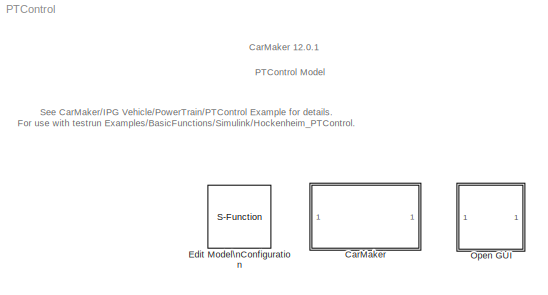
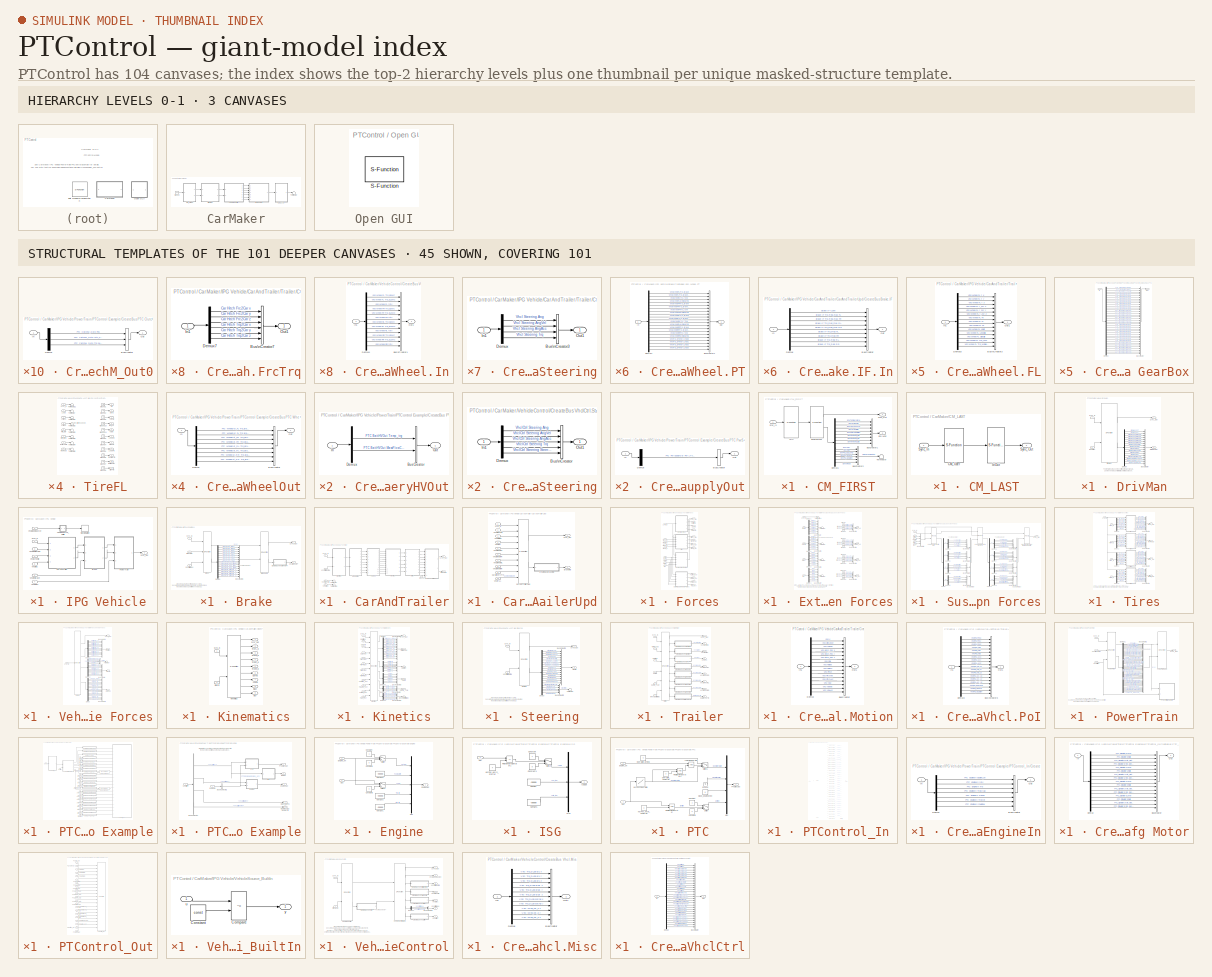
[diagram: thumbnail index - top-2 hierarchy levels (3 canvases) + 45 structural-template representatives of the remaining 101 canvases]
MODEL PTControl
KIND model
BLOCK [SubSystem] CarMaker
  Ports = []
  RequestExecContextInheritance = off
  SID = 1
  TreatAsAtomicUnit = on
BLOCK [SubSystem] CarMaker/CM_FIRST
  Ports = [1, 2]
  RequestExecContextInheritance = off
  SID = 1642
BLOCK [BusCreator] CarMaker/CM_FIRST/BusCreator1
  InheritFromInputs = on
  Inputs = 8
  Ports = [8, 1]
  SID = 1650
BLOCK [BusCreator] CarMaker/CM_FIRST/BusCreator2
  InheritFromInputs = on
  Inputs = 6
  Ports = [6, 1]
  SID = 1651
BLOCK [Demux] CarMaker/CM_FIRST/Demux1
  DisplayOption = none
  Outputs = 14
  Ports = [1, 14]
  SID = 1652
BLOCK [Outport] CarMaker/CM_FIRST/Env.Misc
  Port = 2
  SID = 1657
  VectorParamsAs1DForOutWhenUnconnected = off
BLOCK [S-Function] CarMaker/CM_FIRST/Environment
  EnableBusSupport = off
  FunctionName = CM_Sfun
  Parameters = 'Environment'
  Ports = [1, 2]
  SFcnIsStateOwnerBlock = off
  SFunctionDeploymentMode = off
  SID = 1653
BLOCK [S-Function] CarMaker/CM_FIRST/IoIn
  EnableBusSupport = off
  FunctionName = CM_Sfun
  Parameters = 'IoIn'
  Ports = [1, 1]
  SFcnIsStateOwnerBlock = off
  SFunctionDeploymentMode = off
  SID = 1654
BLOCK [Inport] CarMaker/CM_FIRST/Sync_In
  SID = 1649
BLOCK [Outport] CarMaker/CM_FIRST/Sync_Out
  SID = 1656
  VectorParamsAs1DForOutWhenUnconnected = off
BLOCK [Terminator] CarMaker/CM_FIRST/Terminator
  SID = 1655
BLOCK [SubSystem] CarMaker/CM_LAST
  Ports = [1, 1]
  RequestExecContextInheritance = off
  SID = 1643
BLOCK [S-Function] CarMaker/CM_LAST/CM_User
  EnableBusSupport = off
  FunctionName = CM_Sfun
  Parameters = 'CM_User'
  Ports = [1, 1]
  SFcnIsStateOwnerBlock = off
  SFunctionDeploymentMode = off
  SID = 1659
BLOCK [S-Function] CarMaker/CM_LAST/IoOut
  EnableBusSupport = off
  FunctionName = CM_Sfun
  Parameters = 'IoOut'
  Ports = [1, 1]
  SFcnIsStateOwnerBlock = off
  SFunctionDeploymentMode = off
  SID = 1660
BLOCK [Inport] CarMaker/CM_LAST/Sync_In
  SID = 1658
BLOCK [Outport] CarMaker/CM_LAST/Sync_Out
  SID = 1661
  VectorParamsAs1DForOutWhenUnconnected = off
BLOCK [SubSystem] CarMaker/DrivMan
  Ports = [2, 2]
  RequestExecContextInheritance = off
  SID = 1644
BLOCK [BusCreator] CarMaker/DrivMan/BusCreator
  InheritFromInputs = on
  Inputs = 17
  Ports = [17, 1]
  SID = 1664
BLOCK [Demux] CarMaker/DrivMan/Demux
  DisplayOption = none
  Outputs = 17
  Ports = [1, 17]
  SID = 1665
BLOCK [S-Function] CarMaker/DrivMan/DrivMan
  EnableBusSupport = off
  FunctionName = CM_Sfun
  Parameters = 'DrivMan'
  Ports = [2, 2]
  SFcnIsStateOwnerBlock = off
  SFunctionDeploymentMode = off
  SID = 1666
BLOCK [Outport] CarMaker/DrivMan/DrivMan.Out
  Port = 2
  SID = 1668
  VectorParamsAs1DForOutWhenUnconnected = off
BLOCK [Inport] CarMaker/DrivMan/Env.Misc
  Port = 2
  SID = 1663
BLOCK [Inport] CarMaker/DrivMan/Sync_In
  SID = 1662
BLOCK [Outport] CarMaker/DrivMan/Sync_Out
  SID = 1667
  VectorParamsAs1DForOutWhenUnconnected = off
BLOCK [Ground] CarMaker/Ground
  SID = 1645
BLOCK [SubSystem] CarMaker/IPG Vehicle
  Ports = [7, 1]
  RequestExecContextInheritance = off
  SID = 1646
BLOCK [SubSystem] CarMaker/IPG Vehicle/Brake
  Ports = [3, 2]
  RequestExecContextInheritance = off
  SID = 1677
BLOCK [S-Function] CarMaker/IPG Vehicle/Brake/Brake
  EnableBusSupport = off
  FunctionName = CM_Sfun
  Parameters = 'Brake'
  Ports = [3, 2]
  SFcnIsStateOwnerBlock = off
  SFunctionDeploymentMode = off
  SID = 1681
BLOCK [Inport] CarMaker/IPG Vehicle/Brake/Brake.IF.In
  Port = 2
  SID = 1679
BLOCK [S-Function] CarMaker/IPG Vehicle/Brake/BrakeUpd
  EnableBusSupport = off
  FunctionName = CM_Sfun
  Parameters = 'BrakeUpd'
  Ports = [2, 2]
  SFcnIsStateOwnerBlock = off
  SFunctionDeploymentMode = off
  SID = 1682
BLOCK [BusCreator] CarMaker/IPG Vehicle/Brake/BusCreator1
  InheritFromInputs = on
  Inputs = 16
  Ports = [16, 1]
  SID = 1683
BLOCK [SubSystem] CarMaker/IPG Vehicle/Brake/CreateBus Vhcl.Wheel.PT
  Ports = [1, 1]
  RequestExecContextInheritance = off
  SID = 1684
BLOCK [BusCreator] CarMaker/IPG Vehicle/Brake/CreateBus Vhcl.Wheel.PT/BusCreator1
  InheritFromInputs = on
  Inputs = 20
  Ports = [20, 1]
  SID = 1686
BLOCK [Demux] CarMaker/IPG Vehicle/Brake/CreateBus Vhcl.Wheel.PT/Demux1
  DisplayOption = none
  Outputs = 20
  Ports = [1, 20]
  SID = 1687
BLOCK [Inport] CarMaker/IPG Vehicle/Brake/CreateBus Vhcl.Wheel.PT/In
  SID = 1685
BLOCK [Outport] CarMaker/IPG Vehicle/Brake/CreateBus Vhcl.Wheel.PT/Out
  SID = 1688
  VectorParamsAs1DForOutWhenUnconnected = off
BLOCK [Demux] CarMaker/IPG Vehicle/Brake/Demux
  DisplayOption = none
  Outputs = 16
  Ports = [1, 16]
  SID = 1689
BLOCK [Inport] CarMaker/IPG Vehicle/Brake/Sync_In
  SID = 1678
BLOCK [Outport] CarMaker/IPG Vehicle/Brake/Sync_Out
  SID = 1690
  VectorParamsAs1DForOutWhenUnconnected = off
BLOCK [Outport] CarMaker/IPG Vehicle/Brake/Vhcl.Wheel.PT
  Port = 2
  SID = 1691
  VectorParamsAs1DForOutWhenUnconnected = off
BLOCK [Inport] CarMaker/IPG Vehicle/Brake/VhclCtrl.Brake
  Port = 3
  SID = 1680
BLOCK [SubSystem] CarMaker/IPG Vehicle/CarAndTrailer
  Ports = [4, 2]
  RequestExecContextInheritance = off
  SID = 1694
BLOCK [Outport] CarMaker/IPG Vehicle/CarAndTrailer/Brake.IF.In
  Port = 2
  SID = 2094
  VectorParamsAs1DForOutWhenUnconnected = off
BLOCK [SubSystem] CarMaker/IPG Vehicle/CarAndTrailer/CarAndTrailerUpd
  Ports = [10, 2]
  RequestExecContextInheritance = off
  SID = 1699
BLOCK [Outport] CarMaker/IPG Vehicle/CarAndTrailer/CarAndTrailerUpd/Brake.IF.In
  Port = 2
  SID = 1717
  VectorParamsAs1DForOutWhenUnconnected = off
BLOCK [Inport] CarMaker/IPG Vehicle/CarAndTrailer/CarAndTrailerUpd/Car.Hitch.FrcTrq
  Port = 9
  SID = 1708
BLOCK [S-Function] CarMaker/IPG Vehicle/CarAndTrailer/CarAndTrailerUpd/CarAndTrailerUpd
  EnableBusSupport = off
  FunctionName = CM_Sfun
  Parameters = 'CarAndTrUpd'
  Ports = [10, 2]
  SFcnIsStateOwnerBlock = off
  SFunctionDeploymentMode = off
  SID = 1710
BLOCK [SubSystem] CarMaker/IPG Vehicle/CarAndTrailer/CarAndTrailerUpd/CreateBus Brake.IF.In
  Ports = [1, 1]
  RequestExecContextInheritance = off
  SID = 1711
BLOCK [BusCreator] CarMaker/IPG Vehicle/CarAndTrailer/CarAndTrailerUpd/CreateBus Brake.IF.In/BusCreator
  InheritFromInputs = on
  Inputs = 9
  Ports = [9, 1]
  SID = 1713
BLOCK [Demux] CarMaker/IPG Vehicle/CarAndTrailer/CarAndTrailerUpd/CreateBus Brake.IF.In/Demux
  DisplayOption = none
  Outputs = 9
  Ports = [1, 9]
  SID = 1714
BLOCK [Inport] CarMaker/IPG Vehicle/CarAndTrailer/CarAndTrailerUpd/CreateBus Brake.IF.In/In
  SID = 1712
BLOCK [Outport] CarMaker/IPG Vehicle/CarAndTrailer/CarAndTrailerUpd/CreateBus Brake.IF.In/Out
  SID = 1715
  VectorParamsAs1DForOutWhenUnconnected = off
BLOCK [Inport] CarMaker/IPG Vehicle/CarAndTrailer/CarAndTrailerUpd/Sync_In
  SID = 1700
BLOCK [Outport] CarMaker/IPG Vehicle/CarAndTrailer/CarAndTrailerUpd/Sync_Out
  SID = 1716
  VectorParamsAs1DForOutWhenUnconnected = off
BLOCK [Inport] CarMaker/IPG Vehicle/CarAndTrailer/CarAndTrailerUpd/Vhcl.Fr1A
  Port = 10
  SID = 1709
BLOCK [Inport] CarMaker/IPG Vehicle/CarAndTrailer/CarAndTrailerUpd/Vhcl.Motion
  Port = 3
  SID = 1702
BLOCK [Inport] CarMaker/IPG Vehicle/CarAndTrailer/CarAndTrailerUpd/Vhcl.PoI
  Port = 4
  SID = 1703
BLOCK [Inport] CarMaker/IPG Vehicle/CarAndTrailer/CarAndTrailerUpd/Vhcl.Steering
  Port = 2
  SID = 1701
BLOCK [Inport] CarMaker/IPG Vehicle/CarAndTrailer/CarAndTrailerUpd/Vhcl.Wheel.FL
  Port = 5
  SID = 1704
BLOCK [Inport] CarMaker/IPG Vehicle/CarAndTrailer/CarAndTrailerUpd/Vhcl.Wheel.FR
  Port = 6
  SID = 1705
BLOCK [Inport] CarMaker/IPG Vehicle/CarAndTrailer/CarAndTrailerUpd/Vhcl.Wheel.RL
  Port = 7
  SID = 1706
BLOCK [Inport] CarMaker/IPG Vehicle/CarAndTrailer/CarAndTrailerUpd/Vhcl.Wheel.RR
  Port = 8
  SID = 1707
BLOCK [SubSystem] CarMaker/IPG Vehicle/CarAndTrailer/Forces
  Ports = [9, 12]
  RequestExecContextInheritance = off
  SID = 1718
BLOCK [Outport] CarMaker/IPG Vehicle/CarAndTrailer/Forces/Car.Aero
  Port = 3
  SID = 1969
  VectorParamsAs1DForOutWhenUnconnected = off
BLOCK [Outport] CarMaker/IPG Vehicle/CarAndTrailer/Forces/Car.Load
  Port = 4
  SID = 1970
  VectorParamsAs1DForOutWhenUnconnected = off
BLOCK [Outport] CarMaker/IPG Vehicle/CarAndTrailer/Forces/Car.Virtual
  Port = 2
  SID = 1968
  VectorParamsAs1DForOutWhenUnconnected = off
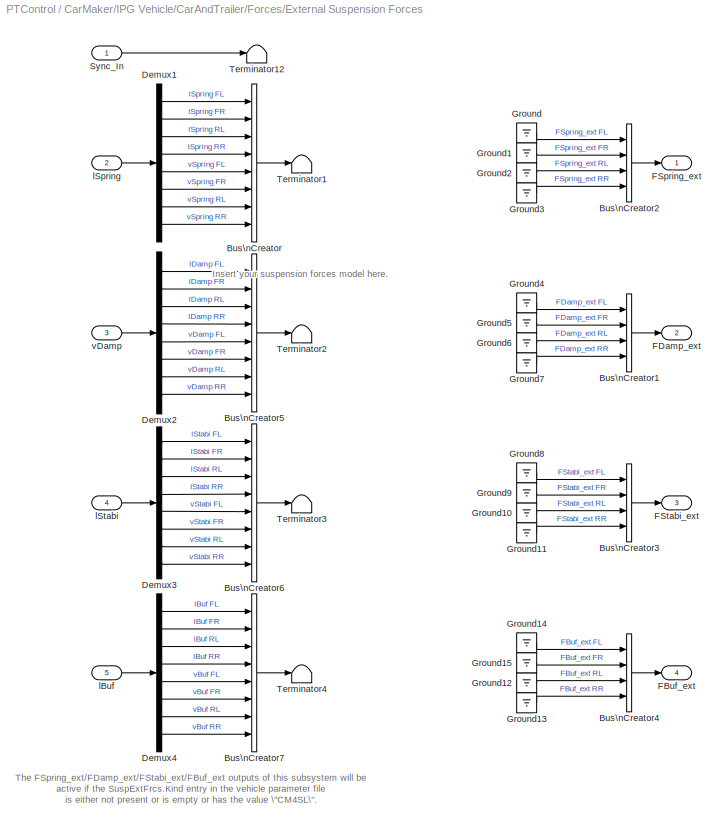
BLOCK [SubSystem] CarMaker/IPG Vehicle/CarAndTrailer/Forces/External Suspension Forces
  Ports = [5, 4]
  RequestExecContextInheritance = off
  SID = 1728
BLOCK [BusCreator] CarMaker/IPG Vehicle/CarAndTrailer/Forces/External Suspension Forces/Bus\nCreator
  DisplayOption = bar
  InheritFromInputs = on
  Inputs = 8
  Ports = [8, 1]
  SID = 1734
BLOCK [BusCreator] CarMaker/IPG Vehicle/CarAndTrailer/Forces/External Suspension Forces/Bus\nCreator1
  DisplayOption = bar
  InheritFromInputs = on
  Inputs = 4
  Ports = [4, 1]
  SID = 1735
BLOCK [BusCreator] CarMaker/IPG Vehicle/CarAndTrailer/Forces/External Suspension Forces/Bus\nCreator2
  DisplayOption = bar
  InheritFromInputs = on
  Inputs = 4
  Ports = [4, 1]
  SID = 1736
BLOCK [BusCreator] CarMaker/IPG Vehicle/CarAndTrailer/Forces/External Suspension Forces/Bus\nCreator3
  DisplayOption = bar
  InheritFromInputs = on
  Inputs = 4
  Ports = [4, 1]
  SID = 1737
BLOCK [BusCreator] CarMaker/IPG Vehicle/CarAndTrailer/Forces/External Suspension Forces/Bus\nCreator4
  DisplayOption = bar
  InheritFromInputs = on
  Inputs = 4
  Ports = [4, 1]
  SID = 1738
BLOCK [BusCreator] CarMaker/IPG Vehicle/CarAndTrailer/Forces/External Suspension Forces/Bus\nCreator5
  DisplayOption = bar
  InheritFromInputs = on
  Inputs = 8
  Ports = [8, 1]
  SID = 1739
BLOCK [BusCreator] CarMaker/IPG Vehicle/CarAndTrailer/Forces/External Suspension Forces/Bus\nCreator6
  DisplayOption = bar
  InheritFromInputs = on
  Inputs = 8
  Ports = [8, 1]
  SID = 1740
BLOCK [BusCreator] CarMaker/IPG Vehicle/CarAndTrailer/Forces/External Suspension Forces/Bus\nCreator7
  DisplayOption = bar
  InheritFromInputs = on
  Inputs = 8
  Ports = [8, 1]
  SID = 1741
BLOCK [Demux] CarMaker/IPG Vehicle/CarAndTrailer/Forces/External Suspension Forces/Demux1
  DisplayOption = none
  Outputs = 8
  Ports = [1, 8]
  SID = 1742
BLOCK [Demux] CarMaker/IPG Vehicle/CarAndTrailer/Forces/External Suspension Forces/Demux2
  DisplayOption = none
  Outputs = 8
  Ports = [1, 8]
  SID = 1743
BLOCK [Demux] CarMaker/IPG Vehicle/CarAndTrailer/Forces/External Suspension Forces/Demux3
  DisplayOption = none
  Outputs = 8
  Ports = [1, 8]
  SID = 1744
BLOCK [Demux] CarMaker/IPG Vehicle/CarAndTrailer/Forces/External Suspension Forces/Demux4
  DisplayOption = none
  Outputs = 8
  Ports = [1, 8]
  SID = 1745
BLOCK [Outport] CarMaker/IPG Vehicle/CarAndTrailer/Forces/External Suspension Forces/FBuf_ext
  Port = 4
  SID = 1770
  VectorParamsAs1DForOutWhenUnconnected = off
BLOCK [Outport] CarMaker/IPG Vehicle/CarAndTrailer/Forces/External Suspension Forces/FDamp_ext
  Port = 2
  SID = 1768
  VectorParamsAs1DForOutWhenUnconnected = off
BLOCK [Outport] CarMaker/IPG Vehicle/CarAndTrailer/Forces/External Suspension Forces/FSpring_ext
  SID = 1767
  VectorParamsAs1DForOutWhenUnconnected = off
BLOCK [Outport] CarMaker/IPG Vehicle/CarAndTrailer/Forces/External Suspension Forces/FStabi_ext
  Port = 3
  SID = 1769
  VectorParamsAs1DForOutWhenUnconnected = off
BLOCK [Ground] CarMaker/IPG Vehicle/CarAndTrailer/Forces/External Suspension Forces/Ground
  SID = 1746
BLOCK [Ground] CarMaker/IPG Vehicle/CarAndTrailer/Forces/External Suspension Forces/Ground1
  SID = 1747
BLOCK [Ground] CarMaker/IPG Vehicle/CarAndTrailer/Forces/External Suspension Forces/Ground10
  SID = 1748
BLOCK [Ground] CarMaker/IPG Vehicle/CarAndTrailer/Forces/External Suspension Forces/Ground11
  SID = 1749
BLOCK [Ground] CarMaker/IPG Vehicle/CarAndTrailer/Forces/External Suspension Forces/Ground12
  SID = 1750
BLOCK [Ground] CarMaker/IPG Vehicle/CarAndTrailer/Forces/External Suspension Forces/Ground13
  SID = 1751
BLOCK [Ground] CarMaker/IPG Vehicle/CarAndTrailer/Forces/External Suspension Forces/Ground14
  SID = 1752
BLOCK [Ground] CarMaker/IPG Vehicle/CarAndTrailer/Forces/External Suspension Forces/Ground15
  SID = 1753
BLOCK [Ground] CarMaker/IPG Vehicle/CarAndTrailer/Forces/External Suspension Forces/Ground2
  SID = 1754
BLOCK [Ground] CarMaker/IPG Vehicle/CarAndTrailer/Forces/External Suspension Forces/Ground3
  SID = 1755
BLOCK [Ground] CarMaker/IPG Vehicle/CarAndTrailer/Forces/External Suspension Forces/Ground4
  SID = 1756
BLOCK [Ground] CarMaker/IPG Vehicle/CarAndTrailer/Forces/External Suspension Forces/Ground5
  SID = 1757
BLOCK [Ground] CarMaker/IPG Vehicle/CarAndTrailer/Forces/External Suspension Forces/Ground6
  SID = 1758
BLOCK [Ground] CarMaker/IPG Vehicle/CarAndTrailer/Forces/External Suspension Forces/Ground7
  SID = 1759
BLOCK [Ground] CarMaker/IPG Vehicle/CarAndTrailer/Forces/External Suspension Forces/Ground8
  SID = 1760
BLOCK [Ground] CarMaker/IPG Vehicle/CarAndTrailer/Forces/External Suspension Forces/Ground9
  SID = 1761
BLOCK [Inport] CarMaker/IPG Vehicle/CarAndTrailer/Forces/External Suspension Forces/Sync_In
  SID = 1729
BLOCK [Terminator] CarMaker/IPG Vehicle/CarAndTrailer/Forces/External Suspension Forces/Terminator1
  SID = 1762
BLOCK [Terminator] CarMaker/IPG Vehicle/CarAndTrailer/Forces/External Suspension Forces/Terminator12
  SID = 1763
BLOCK [Terminator] CarMaker/IPG Vehicle/CarAndTrailer/Forces/External Suspension Forces/Terminator2
  SID = 1764
BLOCK [Terminator] CarMaker/IPG Vehicle/CarAndTrailer/Forces/External Suspension Forces/Terminator3
  SID = 1765
BLOCK [Terminator] CarMaker/IPG Vehicle/CarAndTrailer/Forces/External Suspension Forces/Terminator4
  SID = 1766
BLOCK [Inport] CarMaker/IPG Vehicle/CarAndTrailer/Forces/External Suspension Forces/lBuf
  Port = 5
  SID = 1733
BLOCK [Inport] CarMaker/IPG Vehicle/CarAndTrailer/Forces/External Suspension Forces/lSpring
  Port = 2
  SID = 1730
BLOCK [Inport] CarMaker/IPG Vehicle/CarAndTrailer/Forces/External Suspension Forces/lStabi
  Port = 4
  SID = 1732
BLOCK [Inport] CarMaker/IPG Vehicle/CarAndTrailer/Forces/External Suspension Forces/vDamp
  Port = 3
  SID = 1731
BLOCK [Outport] CarMaker/IPG Vehicle/CarAndTrailer/Forces/FBuf_ext
  Port = 12
  SID = 1978
  VectorParamsAs1DForOutWhenUnconnected = off
BLOCK [Outport] CarMaker/IPG Vehicle/CarAndTrailer/Forces/FDamp_ext
  Port = 10
  SID = 1976
  VectorParamsAs1DForOutWhenUnconnected = off
BLOCK [Outport] CarMaker/IPG Vehicle/CarAndTrailer/Forces/FSpring_ext
  Port = 9
  SID = 1975
  VectorParamsAs1DForOutWhenUnconnected = off
BLOCK [Outport] CarMaker/IPG Vehicle/CarAndTrailer/Forces/FStabi_ext
  Port = 11
  SID = 1977
  VectorParamsAs1DForOutWhenUnconnected = off
BLOCK [SubSystem] CarMaker/IPG Vehicle/CarAndTrailer/Forces/Suspension Forces
  Ports = [5, 1]
  RequestExecContextInheritance = off
  SID = 2643
BLOCK [BusCreator] CarMaker/IPG Vehicle/CarAndTrailer/Forces/Suspension Forces/Bus\nCreator
  DisplayOption = bar
  InheritFromInputs = on
  Inputs = 4
  Ports = [4, 1]
  SID = 2649
BLOCK [BusCreator] CarMaker/IPG Vehicle/CarAndTrailer/Forces/Suspension Forces/Bus\nCreator1
  DisplayOption = bar
  InheritFromInputs = on
  Inputs = 4
  Ports = [4, 1]
  SID = 2650
BLOCK [BusCreator] CarMaker/IPG Vehicle/CarAndTrailer/Forces/Suspension Forces/Bus\nCreator10
  DisplayOption = bar
  InheritFromInputs = on
  Inputs = 4
  Ports = [4, 1]
  SID = 2651
BLOCK [BusCreator] CarMaker/IPG Vehicle/CarAndTrailer/Forces/Suspension Forces/Bus\nCreator2
  DisplayOption = bar
  InheritFromInputs = on
  Inputs = 4
  Ports = [4, 1]
  SID = 2652
BLOCK [BusCreator] CarMaker/IPG Vehicle/CarAndTrailer/Forces/Suspension Forces/Bus\nCreator3
  DisplayOption = bar
  InheritFromInputs = on
  Inputs = 4
  Ports = [4, 1]
  SID = 2653
BLOCK [BusCreator] CarMaker/IPG Vehicle/CarAndTrailer/Forces/Suspension Forces/Bus\nCreator4
  DisplayOption = bar
  InheritFromInputs = on
  Inputs = 6
  Ports = [6, 1]
  SID = 2654
BLOCK [BusCreator] CarMaker/IPG Vehicle/CarAndTrailer/Forces/Suspension Forces/Bus\nCreator5
  DisplayOption = bar
  InheritFromInputs = on
  Inputs = 6
  Ports = [6, 1]
  SID = 2655
BLOCK [BusCreator] CarMaker/IPG Vehicle/CarAndTrailer/Forces/Suspension Forces/Bus\nCreator6
  DisplayOption = bar
  InheritFromInputs = on
  Inputs = 6
  Ports = [6, 1]
  SID = 2656
BLOCK [BusCreator] CarMaker/IPG Vehicle/CarAndTrailer/Forces/Suspension Forces/Bus\nCreator7
  DisplayOption = bar
  InheritFromInputs = on
  Inputs = 6
  Ports = [6, 1]
  SID = 2657
BLOCK [BusCreator] CarMaker/IPG Vehicle/CarAndTrailer/Forces/Suspension Forces/Bus\nCreator8
  DisplayOption = bar
  InheritFromInputs = on
  Inputs = 4
  Ports = [4, 1]
  SID = 2658
BLOCK [BusCreator] CarMaker/IPG Vehicle/CarAndTrailer/Forces/Suspension Forces/Bus\nCreator9
  DisplayOption = bar
  InheritFromInputs = on
  Inputs = 4
  Ports = [4, 1]
  SID = 2659
BLOCK [Demux] CarMaker/IPG Vehicle/CarAndTrailer/Forces/Suspension Forces/Demux
  Ports = [1, 4]
  SID = 2660
BLOCK [Demux] CarMaker/IPG Vehicle/CarAndTrailer/Forces/Suspension Forces/Demux1
  Ports = [1, 4]
  SID = 2661
BLOCK [Demux] CarMaker/IPG Vehicle/CarAndTrailer/Forces/Suspension Forces/Demux2
  Ports = [1, 4]
  SID = 2662
BLOCK [Demux] CarMaker/IPG Vehicle/CarAndTrailer/Forces/Suspension Forces/Demux3
  Ports = [1, 4]
  SID = 2663
BLOCK [Demux] CarMaker/IPG Vehicle/CarAndTrailer/Forces/Suspension Forces/Demux4
  Ports = [1, 4]
  SID = 2664
BLOCK [Demux] CarMaker/IPG Vehicle/CarAndTrailer/Forces/Suspension Forces/Demux5
  Ports = [1, 4]
  SID = 2665
BLOCK [Demux] CarMaker/IPG Vehicle/CarAndTrailer/Forces/Suspension Forces/Demux6
  Outputs = 6
  Ports = [1, 6]
  SID = 2666
BLOCK [Demux] CarMaker/IPG Vehicle/CarAndTrailer/Forces/Suspension Forces/Demux7
  Outputs = 6
  Ports = [1, 6]
  SID = 2667
BLOCK [Demux] CarMaker/IPG Vehicle/CarAndTrailer/Forces/Suspension Forces/Demux8
  Outputs = 6
  Ports = [1, 6]
  SID = 2668
BLOCK [Demux] CarMaker/IPG Vehicle/CarAndTrailer/Forces/Suspension Forces/Demux9
  Outputs = 6
  Ports = [1, 6]
  SID = 2669
BLOCK [S-Function] CarMaker/IPG Vehicle/CarAndTrailer/Forces/Suspension Forces/Suspension Control Unit
  EnableBusSupport = off
  FunctionName = CM_Sfun
  Parameters = 'ForcesSuspControl'
  Ports = [2, 2]
  SFcnIsStateOwnerBlock = off
  SFunctionDeploymentMode = off
  SID = 2670
BLOCK [S-Function] CarMaker/IPG Vehicle/CarAndTrailer/Forces/Suspension Forces/Suspension Force Elements
  EnableBusSupport = off
  FunctionName = CM_Sfun
  Parameters = 'ForcesSusp'
  Ports = [3, 2]
  SFcnIsStateOwnerBlock = off
  SFunctionDeploymentMode = off
  SID = 2671
BLOCK [S-Function] CarMaker/IPG Vehicle/CarAndTrailer/Forces/Suspension Forces/Suspension Force Elements Update
  EnableBusSupport = off
  FunctionName = CM_Sfun
  Parameters = 'ForcesSuspUpd'
  Ports = [2, 1]
  SFcnIsStateOwnerBlock = off
  SFunctionDeploymentMode = off
  SID = 2672
BLOCK [Inport] CarMaker/IPG Vehicle/CarAndTrailer/Forces/Suspension Forces/Sync_In
  SID = 2644
BLOCK [Outport] CarMaker/IPG Vehicle/CarAndTrailer/Forces/Suspension Forces/Sync_Out
  SID = 2673
  VectorParamsAs1DForOutWhenUnconnected = off
BLOCK [Inport] CarMaker/IPG Vehicle/CarAndTrailer/Forces/Suspension Forces/lBuf
  Port = 5
  SID = 2648
BLOCK [Inport] CarMaker/IPG Vehicle/CarAndTrailer/Forces/Suspension Forces/lSpring
  Port = 2
  SID = 2645
BLOCK [Inport] CarMaker/IPG Vehicle/CarAndTrailer/Forces/Suspension Forces/lStabi
  Port = 4
  SID = 2647
BLOCK [Inport] CarMaker/IPG Vehicle/CarAndTrailer/Forces/Suspension Forces/vDamp
  Port = 3
  SID = 2646
BLOCK [Inport] CarMaker/IPG Vehicle/CarAndTrailer/Forces/Sync_In
  SID = 1719
BLOCK [Outport] CarMaker/IPG Vehicle/CarAndTrailer/Forces/Sync_Out
  SID = 1967
  VectorParamsAs1DForOutWhenUnconnected = off
BLOCK [Inport] CarMaker/IPG Vehicle/CarAndTrailer/Forces/TireFL_In
  Port = 2
  SID = 1720
BLOCK [Outport] CarMaker/IPG Vehicle/CarAndTrailer/Forces/TireFL_Out
  Port = 5
  SID = 1971
  VectorParamsAs1DForOutWhenUnconnected = off
BLOCK [Inport] CarMaker/IPG Vehicle/CarAndTrailer/Forces/TireFR_In
  Port = 3
  SID = 1721
BLOCK [Outport] CarMaker/IPG Vehicle/CarAndTrailer/Forces/TireFR_Out
  Port = 6
  SID = 1972
  VectorParamsAs1DForOutWhenUnconnected = off
BLOCK [Inport] CarMaker/IPG Vehicle/CarAndTrailer/Forces/TireRL_In
  Port = 4
  SID = 1722
BLOCK [Outport] CarMaker/IPG Vehicle/CarAndTrailer/Forces/TireRL_Out
  Port = 7
  SID = 1973
  VectorParamsAs1DForOutWhenUnconnected = off
BLOCK [Inport] CarMaker/IPG Vehicle/CarAndTrailer/Forces/TireRR_In
  Port = 5
  SID = 1723
BLOCK [Outport] CarMaker/IPG Vehicle/CarAndTrailer/Forces/TireRR_Out
  Port = 8
  SID = 1974
  VectorParamsAs1DForOutWhenUnconnected = off
BLOCK [SubSystem] CarMaker/IPG Vehicle/CarAndTrailer/Forces/Tires
  Ports = [5, 4]
  RequestExecContextInheritance = off
  SID = 1773
BLOCK [BusCreator] CarMaker/IPG Vehicle/CarAndTrailer/Forces/Tires/Bus\nCreator1
  DisplayOption = bar
  InheritFromInputs = on
  Inputs = 11
  Ports = [11, 1]
  SID = 1779
BLOCK [BusCreator] CarMaker/IPG Vehicle/CarAndTrailer/Forces/Tires/Bus\nCreator2
  DisplayOption = bar
  InheritFromInputs = on
  Inputs = 11
  Ports = [11, 1]
  SID = 1780
BLOCK [BusCreator] CarMaker/IPG Vehicle/CarAndTrailer/Forces/Tires/Bus\nCreator3
  DisplayOption = bar
  InheritFromInputs = on
  Inputs = 11
  Ports = [11, 1]
  SID = 1781
BLOCK [BusCreator] CarMaker/IPG Vehicle/CarAndTrailer/Forces/Tires/Bus\nCreator4
  DisplayOption = bar
  InheritFromInputs = on
  Inputs = 11
  Ports = [11, 1]
  SID = 1782
BLOCK [Demux] CarMaker/IPG Vehicle/CarAndTrailer/Forces/Tires/Demux1
  DisplayOption = none
  Outputs = 7
  Ports = [1, 7]
  SID = 1783
BLOCK [Demux] CarMaker/IPG Vehicle/CarAndTrailer/Forces/Tires/Demux2
  DisplayOption = none
  Outputs = 7
  Ports = [1, 7]
  SID = 1784
BLOCK [Demux] CarMaker/IPG Vehicle/CarAndTrailer/Forces/Tires/Demux3
  DisplayOption = none
  Outputs = 7
  Ports = [1, 7]
  SID = 1785
BLOCK [Demux] CarMaker/IPG Vehicle/CarAndTrailer/Forces/Tires/Demux8
  DisplayOption = none
  Outputs = 7
  Ports = [1, 7]
  SID = 1786
BLOCK [Inport] CarMaker/IPG Vehicle/CarAndTrailer/Forces/Tires/Sync_In
  SID = 1774
BLOCK [SubSystem] CarMaker/IPG Vehicle/CarAndTrailer/Forces/Tires/TireFL
  Ports = [8, 11]
  RequestExecContextInheritance = off
  SID = 1787
BLOCK [Outport] CarMaker/IPG Vehicle/CarAndTrailer/Forces/Tires/TireFL/AlignTrq
  Port = 11
  SID = 1825
  VectorParamsAs1DForOutWhenUnconnected = off
BLOCK [Outport] CarMaker/IPG Vehicle/CarAndTrailer/Forces/Tires/TireFL/Alpha
  Port = 2
  SID = 1816
  VectorParamsAs1DForOutWhenUnconnected = off
BLOCK [Ground] CarMaker/IPG Vehicle/CarAndTrailer/Forces/Tires/TireFL/Ground1
  SID = 1796
BLOCK [Ground] CarMaker/IPG Vehicle/CarAndTrailer/Forces/Tires/TireFL/Ground10
  SID = 1797
BLOCK [Ground] CarMaker/IPG Vehicle/CarAndTrailer/Forces/Tires/TireFL/Ground11
  SID = 1798
BLOCK [Ground] CarMaker/IPG Vehicle/CarAndTrailer/Forces/Tires/TireFL/Ground2
  SID = 1799
BLOCK [Ground] CarMaker/IPG Vehicle/CarAndTrailer/Forces/Tires/TireFL/Ground3
  SID = 1800
BLOCK [Ground] CarMaker/IPG Vehicle/CarAndTrailer/Forces/Tires/TireFL/Ground4
  SID = 1801
BLOCK [Ground] CarMaker/IPG Vehicle/CarAndTrailer/Forces/Tires/TireFL/Ground5
  SID = 1802
BLOCK [Ground] CarMaker/IPG Vehicle/CarAndTrailer/Forces/Tires/TireFL/Ground6
  SID = 1803
BLOCK [Ground] CarMaker/IPG Vehicle/CarAndTrailer/Forces/Tires/TireFL/Ground7
  SID = 1804
BLOCK [Ground] CarMaker/IPG Vehicle/CarAndTrailer/Forces/Tires/TireFL/Ground8
  SID = 1805
BLOCK [Ground] CarMaker/IPG Vehicle/CarAndTrailer/Forces/Tires/TireFL/Ground9
  SID = 1806
BLOCK [Inport] CarMaker/IPG Vehicle/CarAndTrailer/Forces/Tires/TireFL/InclinAngle
  Port = 7
  SID = 1794
BLOCK [Inport] CarMaker/IPG Vehicle/CarAndTrailer/Forces/Tires/TireFL/Load
  Port = 2
  SID = 1789
BLOCK [Outport] CarMaker/IPG Vehicle/CarAndTrailer/Forces/Tires/TireFL/LoadFrc
  Port = 8
  SID = 1822
  VectorParamsAs1DForOutWhenUnconnected = off
BLOCK [Outport] CarMaker/IPG Vehicle/CarAndTrailer/Forces/Tires/TireFL/LongFrc
  Port = 6
  SID = 1820
  VectorParamsAs1DForOutWhenUnconnected = off
BLOCK [Outport] CarMaker/IPG Vehicle/CarAndTrailer/Forces/Tires/TireFL/OverturnTrq
  Port = 9
  SID = 1823
  VectorParamsAs1DForOutWhenUnconnected = off
BLOCK [Inport] CarMaker/IPG Vehicle/CarAndTrailer/Forces/Tires/TireFL/Rim_rotv
  Port = 5
  SID = 1792
BLOCK [Inport] CarMaker/IPG Vehicle/CarAndTrailer/Forces/Tires/TireFL/Rim_turnv
  Port = 6
  SID = 1793
BLOCK [Outport] CarMaker/IPG Vehicle/CarAndTrailer/Forces/Tires/TireFL/RollResist
  Port = 10
  SID = 1824
  VectorParamsAs1DForOutWhenUnconnected = off
BLOCK [Outport] CarMaker/IPG Vehicle/CarAndTrailer/Forces/Tires/TireFL/SideFrc
  Port = 7
  SID = 1821
  VectorParamsAs1DForOutWhenUnconnected = off
BLOCK [Outport] CarMaker/IPG Vehicle/CarAndTrailer/Forces/Tires/TireFL/Slp
  SID = 1815
  VectorParamsAs1DForOutWhenUnconnected = off
BLOCK [Inport] CarMaker/IPG Vehicle/CarAndTrailer/Forces/Tires/TireFL/Sync_In
  SID = 1788
BLOCK [Terminator] CarMaker/IPG Vehicle/CarAndTrailer/Forces/Tires/TireFL/Terminator
  SID = 1807
BLOCK [Terminator] CarMaker/IPG Vehicle/CarAndTrailer/Forces/Tires/TireFL/Terminator1
  SID = 1808
BLOCK [Terminator] CarMaker/IPG Vehicle/CarAndTrailer/Forces/Tires/TireFL/Terminator12
  SID = 1809
BLOCK [Terminator] CarMaker/IPG Vehicle/CarAndTrailer/Forces/Tires/TireFL/Terminator2
  SID = 1810
BLOCK [Terminator] CarMaker/IPG Vehicle/CarAndTrailer/Forces/Tires/TireFL/Terminator3
  SID = 1811
BLOCK [Terminator] CarMaker/IPG Vehicle/CarAndTrailer/Forces/Tires/TireFL/Terminator4
  SID = 1812
BLOCK [Terminator] CarMaker/IPG Vehicle/CarAndTrailer/Forces/Tires/TireFL/Terminator5
  SID = 1813
BLOCK [Terminator] CarMaker/IPG Vehicle/CarAndTrailer/Forces/Tires/TireFL/Terminator6
  SID = 1814
BLOCK [Outport] CarMaker/IPG Vehicle/CarAndTrailer/Forces/Tires/TireFL/TurnSlp
  Port = 3
  SID = 1817
  VectorParamsAs1DForOutWhenUnconnected = off
BLOCK [Inport] CarMaker/IPG Vehicle/CarAndTrailer/Forces/Tires/TireFL/muRoad
  Port = 8
  SID = 1795
BLOCK [Outport] CarMaker/IPG Vehicle/CarAndTrailer/Forces/Tires/TireFL/rBelt_eff
  Port = 4
  SID = 1818
  VectorParamsAs1DForOutWhenUnconnected = off
BLOCK [Outport] CarMaker/IPG Vehicle/CarAndTrailer/Forces/Tires/TireFL/vBelt
  Port = 5
  SID = 1819
  VectorParamsAs1DForOutWhenUnconnected = off
BLOCK [Inport] CarMaker/IPG Vehicle/CarAndTrailer/Forces/Tires/TireFL/vxtrans
  Port = 3
  SID = 1790
BLOCK [Inport] CarMaker/IPG Vehicle/CarAndTrailer/Forces/Tires/TireFL/vytrans
  Port = 4
  SID = 1791
BLOCK [Inport] CarMaker/IPG Vehicle/CarAndTrailer/Forces/Tires/TireFL_In
  Port = 2
  SID = 1775
BLOCK [Outport] CarMaker/IPG Vehicle/CarAndTrailer/Forces/Tires/TireFL_Out
  SID = 1947
  VectorParamsAs1DForOutWhenUnconnected = off
BLOCK [SubSystem] CarMaker/IPG Vehicle/CarAndTrailer/Forces/Tires/TireFR
  Ports = [8, 11]
  RequestExecContextInheritance = off
  SID = 1827
BLOCK [Outport] CarMaker/IPG Vehicle/CarAndTrailer/Forces/Tires/TireFR/AlignTrq
  Port = 11
  SID = 1865
  VectorParamsAs1DForOutWhenUnconnected = off
BLOCK [Outport] CarMaker/IPG Vehicle/CarAndTrailer/Forces/Tires/TireFR/Alpha
  Port = 2
  SID = 1856
  VectorParamsAs1DForOutWhenUnconnected = off
BLOCK [Ground] CarMaker/IPG Vehicle/CarAndTrailer/Forces/Tires/TireFR/Ground1
  SID = 1836
BLOCK [Ground] CarMaker/IPG Vehicle/CarAndTrailer/Forces/Tires/TireFR/Ground10
  SID = 1837
BLOCK [Ground] CarMaker/IPG Vehicle/CarAndTrailer/Forces/Tires/TireFR/Ground11
  SID = 1838
BLOCK [Ground] CarMaker/IPG Vehicle/CarAndTrailer/Forces/Tires/TireFR/Ground2
  SID = 1839
BLOCK [Ground] CarMaker/IPG Vehicle/CarAndTrailer/Forces/Tires/TireFR/Ground3
  SID = 1840
BLOCK [Ground] CarMaker/IPG Vehicle/CarAndTrailer/Forces/Tires/TireFR/Ground4
  SID = 1841
BLOCK [Ground] CarMaker/IPG Vehicle/CarAndTrailer/Forces/Tires/TireFR/Ground5
  SID = 1842
BLOCK [Ground] CarMaker/IPG Vehicle/CarAndTrailer/Forces/Tires/TireFR/Ground6
  SID = 1843
BLOCK [Ground] CarMaker/IPG Vehicle/CarAndTrailer/Forces/Tires/TireFR/Ground7
  SID = 1844
BLOCK [Ground] CarMaker/IPG Vehicle/CarAndTrailer/Forces/Tires/TireFR/Ground8
  SID = 1845
BLOCK [Ground] CarMaker/IPG Vehicle/CarAndTrailer/Forces/Tires/TireFR/Ground9
  SID = 1846
BLOCK [Inport] CarMaker/IPG Vehicle/CarAndTrailer/Forces/Tires/TireFR/InclinAngle
  Port = 7
  SID = 1834
BLOCK [Inport] CarMaker/IPG Vehicle/CarAndTrailer/Forces/Tires/TireFR/Load
  Port = 2
  SID = 1829
BLOCK [Outport] CarMaker/IPG Vehicle/CarAndTrailer/Forces/Tires/TireFR/LoadFrc
  Port = 8
  SID = 1862
  VectorParamsAs1DForOutWhenUnconnected = off
BLOCK [Outport] CarMaker/IPG Vehicle/CarAndTrailer/Forces/Tires/TireFR/LongFrc
  Port = 6
  SID = 1860
  VectorParamsAs1DForOutWhenUnconnected = off
BLOCK [Outport] CarMaker/IPG Vehicle/CarAndTrailer/Forces/Tires/TireFR/OverturnTrq
  Port = 9
  SID = 1863
  VectorParamsAs1DForOutWhenUnconnected = off
BLOCK [Inport] CarMaker/IPG Vehicle/CarAndTrailer/Forces/Tires/TireFR/Rim_rotv
  Port = 5
  SID = 1832
BLOCK [Inport] CarMaker/IPG Vehicle/CarAndTrailer/Forces/Tires/TireFR/Rim_turnv
  Port = 6
  SID = 1833
BLOCK [Outport] CarMaker/IPG Vehicle/CarAndTrailer/Forces/Tires/TireFR/RollResist
  Port = 10
  SID = 1864
  VectorParamsAs1DForOutWhenUnconnected = off
BLOCK [Outport] CarMaker/IPG Vehicle/CarAndTrailer/Forces/Tires/TireFR/SideFrc
  Port = 7
  SID = 1861
  VectorParamsAs1DForOutWhenUnconnected = off
BLOCK [Outport] CarMaker/IPG Vehicle/CarAndTrailer/Forces/Tires/TireFR/Slp
  SID = 1855
  VectorParamsAs1DForOutWhenUnconnected = off
BLOCK [Inport] CarMaker/IPG Vehicle/CarAndTrailer/Forces/Tires/TireFR/Sync_In
  SID = 1828
BLOCK [Terminator] CarMaker/IPG Vehicle/CarAndTrailer/Forces/Tires/TireFR/Terminator
  SID = 1847
BLOCK [Terminator] CarMaker/IPG Vehicle/CarAndTrailer/Forces/Tires/TireFR/Terminator1
  SID = 1848
BLOCK [Terminator] CarMaker/IPG Vehicle/CarAndTrailer/Forces/Tires/TireFR/Terminator12
  SID = 1849
BLOCK [Terminator] CarMaker/IPG Vehicle/CarAndTrailer/Forces/Tires/TireFR/Terminator2
  SID = 1850
BLOCK [Terminator] CarMaker/IPG Vehicle/CarAndTrailer/Forces/Tires/TireFR/Terminator3
  SID = 1851
BLOCK [Terminator] CarMaker/IPG Vehicle/CarAndTrailer/Forces/Tires/TireFR/Terminator4
  SID = 1852
BLOCK [Terminator] CarMaker/IPG Vehicle/CarAndTrailer/Forces/Tires/TireFR/Terminator5
  SID = 1853
BLOCK [Terminator] CarMaker/IPG Vehicle/CarAndTrailer/Forces/Tires/TireFR/Terminator6
  SID = 1854
BLOCK [Outport] CarMaker/IPG Vehicle/CarAndTrailer/Forces/Tires/TireFR/TurnSlp
  Port = 3
  SID = 1857
  VectorParamsAs1DForOutWhenUnconnected = off
BLOCK [Inport] CarMaker/IPG Vehicle/CarAndTrailer/Forces/Tires/TireFR/muRoad
  Port = 8
  SID = 1835
BLOCK [Outport] CarMaker/IPG Vehicle/CarAndTrailer/Forces/Tires/TireFR/rBelt_eff
  Port = 4
  SID = 1858
  VectorParamsAs1DForOutWhenUnconnected = off
BLOCK [Outport] CarMaker/IPG Vehicle/CarAndTrailer/Forces/Tires/TireFR/vBelt
  Port = 5
  SID = 1859
  VectorParamsAs1DForOutWhenUnconnected = off
BLOCK [Inport] CarMaker/IPG Vehicle/CarAndTrailer/Forces/Tires/TireFR/vxtrans
  Port = 3
  SID = 1830
BLOCK [Inport] CarMaker/IPG Vehicle/CarAndTrailer/Forces/Tires/TireFR/vytrans
  Port = 4
  SID = 1831
BLOCK [Inport] CarMaker/IPG Vehicle/CarAndTrailer/Forces/Tires/TireFR_In
  Port = 3
  SID = 1776
BLOCK [Outport] CarMaker/IPG Vehicle/CarAndTrailer/Forces/Tires/TireFR_Out
  Port = 2
  SID = 1948
  VectorParamsAs1DForOutWhenUnconnected = off
BLOCK [SubSystem] CarMaker/IPG Vehicle/CarAndTrailer/Forces/Tires/TireRL
  Ports = [8, 11]
  RequestExecContextInheritance = off
  SID = 1867
BLOCK [Outport] CarMaker/IPG Vehicle/CarAndTrailer/Forces/Tires/TireRL/AlignTrq
  Port = 11
  SID = 1905
  VectorParamsAs1DForOutWhenUnconnected = off
BLOCK [Outport] CarMaker/IPG Vehicle/CarAndTrailer/Forces/Tires/TireRL/Alpha
  Port = 2
  SID = 1896
  VectorParamsAs1DForOutWhenUnconnected = off
BLOCK [Ground] CarMaker/IPG Vehicle/CarAndTrailer/Forces/Tires/TireRL/Ground1
  SID = 1876
BLOCK [Ground] CarMaker/IPG Vehicle/CarAndTrailer/Forces/Tires/TireRL/Ground10
  SID = 1877
BLOCK [Ground] CarMaker/IPG Vehicle/CarAndTrailer/Forces/Tires/TireRL/Ground11
  SID = 1878
BLOCK [Ground] CarMaker/IPG Vehicle/CarAndTrailer/Forces/Tires/TireRL/Ground2
  SID = 1879
BLOCK [Ground] CarMaker/IPG Vehicle/CarAndTrailer/Forces/Tires/TireRL/Ground3
  SID = 1880
BLOCK [Ground] CarMaker/IPG Vehicle/CarAndTrailer/Forces/Tires/TireRL/Ground4
  SID = 1881
BLOCK [Ground] CarMaker/IPG Vehicle/CarAndTrailer/Forces/Tires/TireRL/Ground5
  SID = 1882
BLOCK [Ground] CarMaker/IPG Vehicle/CarAndTrailer/Forces/Tires/TireRL/Ground6
  SID = 1883
BLOCK [Ground] CarMaker/IPG Vehicle/CarAndTrailer/Forces/Tires/TireRL/Ground7
  SID = 1884
BLOCK [Ground] CarMaker/IPG Vehicle/CarAndTrailer/Forces/Tires/TireRL/Ground8
  SID = 1885
BLOCK [Ground] CarMaker/IPG Vehicle/CarAndTrailer/Forces/Tires/TireRL/Ground9
  SID = 1886
BLOCK [Inport] CarMaker/IPG Vehicle/CarAndTrailer/Forces/Tires/TireRL/InclinAngle
  Port = 7
  SID = 1874
BLOCK [Inport] CarMaker/IPG Vehicle/CarAndTrailer/Forces/Tires/TireRL/Load
  Port = 2
  SID = 1869
BLOCK [Outport] CarMaker/IPG Vehicle/CarAndTrailer/Forces/Tires/TireRL/LoadFrc
  Port = 8
  SID = 1902
  VectorParamsAs1DForOutWhenUnconnected = off
BLOCK [Outport] CarMaker/IPG Vehicle/CarAndTrailer/Forces/Tires/TireRL/LongFrc
  Port = 6
  SID = 1900
  VectorParamsAs1DForOutWhenUnconnected = off
BLOCK [Outport] CarMaker/IPG Vehicle/CarAndTrailer/Forces/Tires/TireRL/OverturnTrq
  Port = 9
  SID = 1903
  VectorParamsAs1DForOutWhenUnconnected = off
BLOCK [Inport] CarMaker/IPG Vehicle/CarAndTrailer/Forces/Tires/TireRL/Rim_rotv
  Port = 5
  SID = 1872
BLOCK [Inport] CarMaker/IPG Vehicle/CarAndTrailer/Forces/Tires/TireRL/Rim_turnv
  Port = 6
  SID = 1873
BLOCK [Outport] CarMaker/IPG Vehicle/CarAndTrailer/Forces/Tires/TireRL/RollResist
  Port = 10
  SID = 1904
  VectorParamsAs1DForOutWhenUnconnected = off
BLOCK [Outport] CarMaker/IPG Vehicle/CarAndTrailer/Forces/Tires/TireRL/SideFrc
  Port = 7
  SID = 1901
  VectorParamsAs1DForOutWhenUnconnected = off
BLOCK [Outport] CarMaker/IPG Vehicle/CarAndTrailer/Forces/Tires/TireRL/Slp
  SID = 1895
  VectorParamsAs1DForOutWhenUnconnected = off
BLOCK [Inport] CarMaker/IPG Vehicle/CarAndTrailer/Forces/Tires/TireRL/Sync_In
  SID = 1868
BLOCK [Terminator] CarMaker/IPG Vehicle/CarAndTrailer/Forces/Tires/TireRL/Terminator
  SID = 1887
BLOCK [Terminator] CarMaker/IPG Vehicle/CarAndTrailer/Forces/Tires/TireRL/Terminator1
  SID = 1888
BLOCK [Terminator] CarMaker/IPG Vehicle/CarAndTrailer/Forces/Tires/TireRL/Terminator12
  SID = 1889
BLOCK [Terminator] CarMaker/IPG Vehicle/CarAndTrailer/Forces/Tires/TireRL/Terminator2
  SID = 1890
BLOCK [Terminator] CarMaker/IPG Vehicle/CarAndTrailer/Forces/Tires/TireRL/Terminator3
  SID = 1891
BLOCK [Terminator] CarMaker/IPG Vehicle/CarAndTrailer/Forces/Tires/TireRL/Terminator4
  SID = 1892
BLOCK [Terminator] CarMaker/IPG Vehicle/CarAndTrailer/Forces/Tires/TireRL/Terminator5
  SID = 1893
BLOCK [Terminator] CarMaker/IPG Vehicle/CarAndTrailer/Forces/Tires/TireRL/Terminator6
  SID = 1894
BLOCK [Outport] CarMaker/IPG Vehicle/CarAndTrailer/Forces/Tires/TireRL/TurnSlp
  Port = 3
  SID = 1897
  VectorParamsAs1DForOutWhenUnconnected = off
BLOCK [Inport] CarMaker/IPG Vehicle/CarAndTrailer/Forces/Tires/TireRL/muRoad
  Port = 8
  SID = 1875
BLOCK [Outport] CarMaker/IPG Vehicle/CarAndTrailer/Forces/Tires/TireRL/rBelt_eff
  Port = 4
  SID = 1898
  VectorParamsAs1DForOutWhenUnconnected = off
BLOCK [Outport] CarMaker/IPG Vehicle/CarAndTrailer/Forces/Tires/TireRL/vBelt
  Port = 5
  SID = 1899
  VectorParamsAs1DForOutWhenUnconnected = off
BLOCK [Inport] CarMaker/IPG Vehicle/CarAndTrailer/Forces/Tires/TireRL/vxtrans
  Port = 3
  SID = 1870
BLOCK [Inport] CarMaker/IPG Vehicle/CarAndTrailer/Forces/Tires/TireRL/vytrans
  Port = 4
  SID = 1871
BLOCK [Inport] CarMaker/IPG Vehicle/CarAndTrailer/Forces/Tires/TireRL_In
  Port = 4
  SID = 1777
BLOCK [Outport] CarMaker/IPG Vehicle/CarAndTrailer/Forces/Tires/TireRL_Out
  Port = 3
  SID = 1949
  VectorParamsAs1DForOutWhenUnconnected = off
BLOCK [SubSystem] CarMaker/IPG Vehicle/CarAndTrailer/Forces/Tires/TireRR
  Ports = [8, 11]
  RequestExecContextInheritance = off
  SID = 1907
BLOCK [Outport] CarMaker/IPG Vehicle/CarAndTrailer/Forces/Tires/TireRR/AlignTrq
  Port = 11
  SID = 1945
  VectorParamsAs1DForOutWhenUnconnected = off
BLOCK [Outport] CarMaker/IPG Vehicle/CarAndTrailer/Forces/Tires/TireRR/Alpha
  Port = 2
  SID = 1936
  VectorParamsAs1DForOutWhenUnconnected = off
BLOCK [Ground] CarMaker/IPG Vehicle/CarAndTrailer/Forces/Tires/TireRR/Ground1
  SID = 1916
BLOCK [Ground] CarMaker/IPG Vehicle/CarAndTrailer/Forces/Tires/TireRR/Ground10
  SID = 1917
BLOCK [Ground] CarMaker/IPG Vehicle/CarAndTrailer/Forces/Tires/TireRR/Ground11
  SID = 1918
BLOCK [Ground] CarMaker/IPG Vehicle/CarAndTrailer/Forces/Tires/TireRR/Ground2
  SID = 1919
BLOCK [Ground] CarMaker/IPG Vehicle/CarAndTrailer/Forces/Tires/TireRR/Ground3
  SID = 1920
BLOCK [Ground] CarMaker/IPG Vehicle/CarAndTrailer/Forces/Tires/TireRR/Ground4
  SID = 1921
BLOCK [Ground] CarMaker/IPG Vehicle/CarAndTrailer/Forces/Tires/TireRR/Ground5
  SID = 1922
BLOCK [Ground] CarMaker/IPG Vehicle/CarAndTrailer/Forces/Tires/TireRR/Ground6
  SID = 1923
BLOCK [Ground] CarMaker/IPG Vehicle/CarAndTrailer/Forces/Tires/TireRR/Ground7
  SID = 1924
BLOCK [Ground] CarMaker/IPG Vehicle/CarAndTrailer/Forces/Tires/TireRR/Ground8
  SID = 1925
BLOCK [Ground] CarMaker/IPG Vehicle/CarAndTrailer/Forces/Tires/TireRR/Ground9
  SID = 1926
BLOCK [Inport] CarMaker/IPG Vehicle/CarAndTrailer/Forces/Tires/TireRR/InclinAngle
  Port = 7
  SID = 1914
BLOCK [Inport] CarMaker/IPG Vehicle/CarAndTrailer/Forces/Tires/TireRR/Load
  Port = 2
  SID = 1909
BLOCK [Outport] CarMaker/IPG Vehicle/CarAndTrailer/Forces/Tires/TireRR/LoadFrc
  Port = 8
  SID = 1942
  VectorParamsAs1DForOutWhenUnconnected = off
BLOCK [Outport] CarMaker/IPG Vehicle/CarAndTrailer/Forces/Tires/TireRR/LongFrc
  Port = 6
  SID = 1940
  VectorParamsAs1DForOutWhenUnconnected = off
BLOCK [Outport] CarMaker/IPG Vehicle/CarAndTrailer/Forces/Tires/TireRR/OverturnTrq
  Port = 9
  SID = 1943
  VectorParamsAs1DForOutWhenUnconnected = off
BLOCK [Inport] CarMaker/IPG Vehicle/CarAndTrailer/Forces/Tires/TireRR/Rim_rotv
  Port = 5
  SID = 1912
BLOCK [Inport] CarMaker/IPG Vehicle/CarAndTrailer/Forces/Tires/TireRR/Rim_turnv
  Port = 6
  SID = 1913
BLOCK [Outport] CarMaker/IPG Vehicle/CarAndTrailer/Forces/Tires/TireRR/RollResist
  Port = 10
  SID = 1944
  VectorParamsAs1DForOutWhenUnconnected = off
BLOCK [Outport] CarMaker/IPG Vehicle/CarAndTrailer/Forces/Tires/TireRR/SideFrc
  Port = 7
  SID = 1941
  VectorParamsAs1DForOutWhenUnconnected = off
BLOCK [Outport] CarMaker/IPG Vehicle/CarAndTrailer/Forces/Tires/TireRR/Slp
  SID = 1935
  VectorParamsAs1DForOutWhenUnconnected = off
BLOCK [Inport] CarMaker/IPG Vehicle/CarAndTrailer/Forces/Tires/TireRR/Sync_In
  SID = 1908
BLOCK [Terminator] CarMaker/IPG Vehicle/CarAndTrailer/Forces/Tires/TireRR/Terminator
  SID = 1927
BLOCK [Terminator] CarMaker/IPG Vehicle/CarAndTrailer/Forces/Tires/TireRR/Terminator1
  SID = 1928
BLOCK [Terminator] CarMaker/IPG Vehicle/CarAndTrailer/Forces/Tires/TireRR/Terminator12
  SID = 1929
BLOCK [Terminator] CarMaker/IPG Vehicle/CarAndTrailer/Forces/Tires/TireRR/Terminator2
  SID = 1930
BLOCK [Terminator] CarMaker/IPG Vehicle/CarAndTrailer/Forces/Tires/TireRR/Terminator3
  SID = 1931
BLOCK [Terminator] CarMaker/IPG Vehicle/CarAndTrailer/Forces/Tires/TireRR/Terminator4
  SID = 1932
BLOCK [Terminator] CarMaker/IPG Vehicle/CarAndTrailer/Forces/Tires/TireRR/Terminator5
  SID = 1933
BLOCK [Terminator] CarMaker/IPG Vehicle/CarAndTrailer/Forces/Tires/TireRR/Terminator6
  SID = 1934
BLOCK [Outport] CarMaker/IPG Vehicle/CarAndTrailer/Forces/Tires/TireRR/TurnSlp
  Port = 3
  SID = 1937
  VectorParamsAs1DForOutWhenUnconnected = off
BLOCK [Inport] CarMaker/IPG Vehicle/CarAndTrailer/Forces/Tires/TireRR/muRoad
  Port = 8
  SID = 1915
BLOCK [Outport] CarMaker/IPG Vehicle/CarAndTrailer/Forces/Tires/TireRR/rBelt_eff
  Port = 4
  SID = 1938
  VectorParamsAs1DForOutWhenUnconnected = off
BLOCK [Outport] CarMaker/IPG Vehicle/CarAndTrailer/Forces/Tires/TireRR/vBelt
  Port = 5
  SID = 1939
  VectorParamsAs1DForOutWhenUnconnected = off
BLOCK [Inport] CarMaker/IPG Vehicle/CarAndTrailer/Forces/Tires/TireRR/vxtrans
  Port = 3
  SID = 1910
BLOCK [Inport] CarMaker/IPG Vehicle/CarAndTrailer/Forces/Tires/TireRR/vytrans
  Port = 4
  SID = 1911
BLOCK [Inport] CarMaker/IPG Vehicle/CarAndTrailer/Forces/Tires/TireRR_In
  Port = 5
  SID = 1778
BLOCK [Outport] CarMaker/IPG Vehicle/CarAndTrailer/Forces/Tires/TireRR_Out
  Port = 4
  SID = 1950
  VectorParamsAs1DForOutWhenUnconnected = off
BLOCK [SubSystem] CarMaker/IPG Vehicle/CarAndTrailer/Forces/Vehicle Forces
  Ports = [1, 4]
  RequestExecContextInheritance = off
  SID = 1952
BLOCK [BusCreator] CarMaker/IPG Vehicle/CarAndTrailer/Forces/Vehicle Forces/BusCreator1
  InheritFromInputs = on
  Inputs = 4
  Ports = [4, 1]
  SID = 1956
BLOCK [BusCreator] CarMaker/IPG Vehicle/CarAndTrailer/Forces/Vehicle Forces/BusCreator2
  InheritFromInputs = on
  Inputs = 9
  Ports = [9, 1]
  SID = 1957
BLOCK [BusCreator] CarMaker/IPG Vehicle/CarAndTrailer/Forces/Vehicle Forces/Bus\nCreator1
  DisplayOption = bar
  InheritFromInputs = on
  Inputs = 12
  Ports = [12, 1]
  SID = 1954
BLOCK [BusCreator] CarMaker/IPG Vehicle/CarAndTrailer/Forces/Vehicle Forces/Bus\nCreator8
  DisplayOption = bar
  InheritFromInputs = on
  Inputs = 16
  Ports = [16, 1]
  SID = 1955
BLOCK [Outport] CarMaker/IPG Vehicle/CarAndTrailer/Forces/Vehicle Forces/Car.Aero
  Port = 3
  SID = 1965
  VectorParamsAs1DForOutWhenUnconnected = off
BLOCK [Outport] CarMaker/IPG Vehicle/CarAndTrailer/Forces/Vehicle Forces/Car.Load
  Port = 4
  SID = 1966
  VectorParamsAs1DForOutWhenUnconnected = off
BLOCK [Outport] CarMaker/IPG Vehicle/CarAndTrailer/Forces/Vehicle Forces/Car.Virtual
  Port = 2
  SID = 1964
  VectorParamsAs1DForOutWhenUnconnected = off
BLOCK [Demux] CarMaker/IPG Vehicle/CarAndTrailer/Forces/Vehicle Forces/Demux
  DisplayOption = none
  Outputs = 16
  Ports = [1, 16]
  SID = 1958
BLOCK [Demux] CarMaker/IPG Vehicle/CarAndTrailer/Forces/Vehicle Forces/Demux1
  DisplayOption = none
  Outputs = 12
  Ports = [1, 12]
  SID = 1959
BLOCK [Demux] CarMaker/IPG Vehicle/CarAndTrailer/Forces/Vehicle Forces/Demux2
  DisplayOption = none
  Outputs = 13
  Ports = [1, 13]
  SID = 1960
BLOCK [S-Function] CarMaker/IPG Vehicle/CarAndTrailer/Forces/Vehicle Forces/Forces
  EnableBusSupport = off
  FunctionName = CM_Sfun
  Parameters = 'Forces'
  Ports = [1, 4]
  SFcnIsStateOwnerBlock = off
  SFunctionDeploymentMode = off
  SID = 1961
BLOCK [Inport] CarMaker/IPG Vehicle/CarAndTrailer/Forces/Vehicle Forces/Sync_In
  SID = 1953
BLOCK [Outport] CarMaker/IPG Vehicle/CarAndTrailer/Forces/Vehicle Forces/Sync_Out
  SID = 1963
  VectorParamsAs1DForOutWhenUnconnected = off
BLOCK [Terminator] CarMaker/IPG Vehicle/CarAndTrailer/Forces/Vehicle Forces/Terminator
  SID = 1962
BLOCK [Inport] CarMaker/IPG Vehicle/CarAndTrailer/Forces/lBuf
  Port = 9
  SID = 1727
BLOCK [Inport] CarMaker/IPG Vehicle/CarAndTrailer/Forces/lSpring
  Port = 6
  SID = 1724
BLOCK [Inport] CarMaker/IPG Vehicle/CarAndTrailer/Forces/lStabi
  Port = 8
  SID = 1726
BLOCK [Inport] CarMaker/IPG Vehicle/CarAndTrailer/Forces/vDamp
  Port = 7
  SID = 1725
BLOCK [Ground] CarMaker/IPG Vehicle/CarAndTrailer/Ground
  SID = 1979
BLOCK [SubSystem] CarMaker/IPG Vehicle/CarAndTrailer/Kinematics
  Ports = [2, 9]
  RequestExecContextInheritance = off
  SID = 1980
BLOCK [S-Function] CarMaker/IPG Vehicle/CarAndTrailer/Kinematics/Kinematics
  EnableBusSupport = off
  FunctionName = CM_Sfun
  Parameters = 'Kinematics'
  Ports = [2, 9]
  SFcnIsStateOwnerBlock = off
  SFunctionDeploymentMode = off
  SID = 1983
BLOCK [Inport] CarMaker/IPG Vehicle/CarAndTrailer/Kinematics/Steer.IF
  Port = 2
  SID = 1982
BLOCK [Inport] CarMaker/IPG Vehicle/CarAndTrailer/Kinematics/Sync_In
  SID = 1981
BLOCK [Outport] CarMaker/IPG Vehicle/CarAndTrailer/Kinematics/Sync_Out
  SID = 1984
  VectorParamsAs1DForOutWhenUnconnected = off
BLOCK [Outport] CarMaker/IPG Vehicle/CarAndTrailer/Kinematics/TireFL_In
  Port = 2
  SID = 1985
  VectorParamsAs1DForOutWhenUnconnected = off
BLOCK [Outport] CarMaker/IPG Vehicle/CarAndTrailer/Kinematics/TireFR_In
  Port = 3
  SID = 1986
  VectorParamsAs1DForOutWhenUnconnected = off
BLOCK [Outport] CarMaker/IPG Vehicle/CarAndTrailer/Kinematics/TireRL_In
  Port = 4
  SID = 1987
  VectorParamsAs1DForOutWhenUnconnected = off
BLOCK [Outport] CarMaker/IPG Vehicle/CarAndTrailer/Kinematics/TireRR_In
  Port = 5
  SID = 1988
  VectorParamsAs1DForOutWhenUnconnected = off
BLOCK [Outport] CarMaker/IPG Vehicle/CarAndTrailer/Kinematics/lBuf
  Port = 9
  SID = 1992
  VectorParamsAs1DForOutWhenUnconnected = off
BLOCK [Outport] CarMaker/IPG Vehicle/CarAndTrailer/Kinematics/lSpring
  Port = 6
  SID = 1989
  VectorParamsAs1DForOutWhenUnconnected = off
BLOCK [Outport] CarMaker/IPG Vehicle/CarAndTrailer/Kinematics/lStabi
  Port = 8
  SID = 1991
  VectorParamsAs1DForOutWhenUnconnected = off
BLOCK [Outport] CarMaker/IPG Vehicle/CarAndTrailer/Kinematics/vDamp
  Port = 7
  SID = 1990
  VectorParamsAs1DForOutWhenUnconnected = off
BLOCK [SubSystem] CarMaker/IPG Vehicle/CarAndTrailer/Kinetics
  Ports = [12, 6]
  RequestExecContextInheritance = off
  SID = 1993
BLOCK [BusCreator] CarMaker/IPG Vehicle/CarAndTrailer/Kinetics/Bus\nCreator
  DisplayOption = bar
  InheritFromInputs = on
  Inputs = 4
  Ports = [4, 1]
  SID = 2006
BLOCK [BusCreator] CarMaker/IPG Vehicle/CarAndTrailer/Kinetics/Bus\nCreator1
  DisplayOption = bar
  InheritFromInputs = on
  Inputs = 12
  Ports = [12, 1]
  SID = 2007
BLOCK [BusCreator] CarMaker/IPG Vehicle/CarAndTrailer/Kinetics/Bus\nCreator2
  DisplayOption = bar
  InheritFromInputs = on
  Inputs = 6
  Ports = [6, 1]
  SID = 2008
BLOCK [BusCreator] CarMaker/IPG Vehicle/CarAndTrailer/Kinetics/Bus\nCreator3
  DisplayOption = bar
  InheritFromInputs = on
  Inputs = 6
  Ports = [6, 1]
  SID = 2009
BLOCK [BusCreator] CarMaker/IPG Vehicle/CarAndTrailer/Kinetics/Bus\nCreator4
  DisplayOption = bar
  InheritFromInputs = on
  Inputs = 4
  Ports = [4, 1]
  SID = 2010
BLOCK [Inport] CarMaker/IPG Vehicle/CarAndTrailer/Kinetics/Car.Aero
  Port = 3
  SID = 1996
BLOCK [Outport] CarMaker/IPG Vehicle/CarAndTrailer/Kinetics/Car.Fr1
  Port = 4
  SID = 2020
  VectorParamsAs1DForOutWhenUnconnected = off
BLOCK [Outport] CarMaker/IPG Vehicle/CarAndTrailer/Kinetics/Car.Hitch
  Port = 3
  SID = 2019
  VectorParamsAs1DForOutWhenUnconnected = off
BLOCK [Inport] CarMaker/IPG Vehicle/CarAndTrailer/Kinetics/Car.Load
  Port = 4
  SID = 1997
BLOCK [Outport] CarMaker/IPG Vehicle/CarAndTrailer/Kinetics/Car.Trq_T2W
  Port = 5
  SID = 2021
  VectorParamsAs1DForOutWhenUnconnected = off
BLOCK [Inport] CarMaker/IPG Vehicle/CarAndTrailer/Kinetics/Car.Virtual
  Port = 2
  SID = 1995
BLOCK [Demux] CarMaker/IPG Vehicle/CarAndTrailer/Kinetics/Demux
  DisplayOption = none
  Outputs = 12
  Ports = [1, 12]
  SID = 2011
BLOCK [Demux] CarMaker/IPG Vehicle/CarAndTrailer/Kinetics/Demux1
  DisplayOption = none
  Outputs = 6
  Ports = [1, 6]
  SID = 2012
BLOCK [Demux] CarMaker/IPG Vehicle/CarAndTrailer/Kinetics/Demux2
  DisplayOption = none
  Outputs = 6
  Ports = [1, 6]
  SID = 2013
BLOCK [Demux] CarMaker/IPG Vehicle/CarAndTrailer/Kinetics/Demux3
  DisplayOption = none
  Ports = [1, 4]
  SID = 2014
BLOCK [Demux] CarMaker/IPG Vehicle/CarAndTrailer/Kinetics/Demux4
  DisplayOption = none
  Ports = [1, 4]
  SID = 2015
BLOCK [Inport] CarMaker/IPG Vehicle/CarAndTrailer/Kinetics/FBuf_ext
  Port = 12
  SID = 2005
BLOCK [Inport] CarMaker/IPG Vehicle/CarAndTrailer/Kinetics/FDamp_ext
  Port = 10
  SID = 2003
BLOCK [Inport] CarMaker/IPG Vehicle/CarAndTrailer/Kinetics/FSpring_ext
  Port = 9
  SID = 2002
BLOCK [Inport] CarMaker/IPG Vehicle/CarAndTrailer/Kinetics/FStabi_ext
  Port = 11
  SID = 2004
BLOCK [S-Function] CarMaker/IPG Vehicle/CarAndTrailer/Kinetics/Kinetics
  EnableBusSupport = off
  FunctionName = CM_Sfun
  Parameters = 'Kinetics'
  Ports = [12, 6]
  SFcnIsStateOwnerBlock = off
  SFunctionDeploymentMode = off
  SID = 2016
BLOCK [Inport] CarMaker/IPG Vehicle/CarAndTrailer/Kinetics/Sync_In
  SID = 1994
BLOCK [Outport] CarMaker/IPG Vehicle/CarAndTrailer/Kinetics/Sync_Out
  SID = 2017
  VectorParamsAs1DForOutWhenUnconnected = off
BLOCK [Inport] CarMaker/IPG Vehicle/CarAndTrailer/Kinetics/TireFL.Out
  Port = 5
  SID = 1998
BLOCK [Inport] CarMaker/IPG Vehicle/CarAndTrailer/Kinetics/TireFR.Out
  Port = 6
  SID = 1999
BLOCK [Inport] CarMaker/IPG Vehicle/CarAndTrailer/Kinetics/TireRL.Out
  Port = 7
  SID = 2000
BLOCK [Inport] CarMaker/IPG Vehicle/CarAndTrailer/Kinetics/TireRR.Out
  Port = 8
  SID = 2001
BLOCK [Outport] CarMaker/IPG Vehicle/CarAndTrailer/Kinetics/Trailer.Load
  Port = 2
  SID = 2018
  VectorParamsAs1DForOutWhenUnconnected = off
BLOCK [Outport] CarMaker/IPG Vehicle/CarAndTrailer/Kinetics/WheelCarrier.Misc
  Port = 6
  SID = 2022
  VectorParamsAs1DForOutWhenUnconnected = off
BLOCK [SubSystem] CarMaker/IPG Vehicle/CarAndTrailer/Steering
  Ports = [2, 2]
  RequestExecContextInheritance = off
  SID = 2023
BLOCK [BusCreator] CarMaker/IPG Vehicle/CarAndTrailer/Steering/Bus\nCreator1
  DisplayOption = bar
  InheritFromInputs = on
  Inputs = 16
  Ports = [16, 1]
  SID = 2026
BLOCK [BusCreator] CarMaker/IPG Vehicle/CarAndTrailer/Steering/Bus\nCreator2
  DisplayOption = bar
  InheritFromInputs = on
  Inputs = 5
  Ports = [5, 1]
  SID = 2027
BLOCK [Demux] CarMaker/IPG Vehicle/CarAndTrailer/Steering/Demux
  DisplayOption = none
  Outputs = 21
  Ports = [1, 21]
  SID = 2028
BLOCK [Outport] CarMaker/IPG Vehicle/CarAndTrailer/Steering/Steer.IF
  Port = 2
  SID = 2032
  VectorParamsAs1DForOutWhenUnconnected = off
BLOCK [S-Function] CarMaker/IPG Vehicle/CarAndTrailer/Steering/Steering
  EnableBusSupport = off
  FunctionName = CM_Sfun
  Parameters = 'Steering'
  Ports = [2, 2]
  SFcnIsStateOwnerBlock = off
  SFunctionDeploymentMode = off
  SID = 2029
BLOCK [Inport] CarMaker/IPG Vehicle/CarAndTrailer/Steering/Sync_In
  SID = 2024
BLOCK [Outport] CarMaker/IPG Vehicle/CarAndTrailer/Steering/Sync_Out
  SID = 2031
  VectorParamsAs1DForOutWhenUnconnected = off
BLOCK [Terminator] CarMaker/IPG Vehicle/CarAndTrailer/Steering/Terminator
  SID = 2030
BLOCK [Inport] CarMaker/IPG Vehicle/CarAndTrailer/Steering/VhclCtrl.Steering
  Port = 2
  SID = 2025
BLOCK [Inport] CarMaker/IPG Vehicle/CarAndTrailer/Sync_In
  SID = 1695
BLOCK [Outport] CarMaker/IPG Vehicle/CarAndTrailer/Sync_Out
  SID = 2093
  VectorParamsAs1DForOutWhenUnconnected = off
BLOCK [Terminator] CarMaker/IPG Vehicle/CarAndTrailer/Terminator
  SID = 2034
BLOCK [Terminator] CarMaker/IPG Vehicle/CarAndTrailer/Terminator1
  SID = 2035
BLOCK [SubSystem] CarMaker/IPG Vehicle/CarAndTrailer/Trailer
  Ports = [6, 9]
  RequestExecContextInheritance = off
  SID = 2036
BLOCK [Inport] CarMaker/IPG Vehicle/CarAndTrailer/Trailer/Car.Fr1
  Port = 4
  SID = 2040
BLOCK [Inport] CarMaker/IPG Vehicle/CarAndTrailer/Trailer/Car.Hitch
  Port = 3
  SID = 2039
BLOCK [Outport] CarMaker/IPG Vehicle/CarAndTrailer/Trailer/Car.Hitch.FrcTrq
  Port = 9
  SID = 2092
  VectorParamsAs1DForOutWhenUnconnected = off
BLOCK [Inport] CarMaker/IPG Vehicle/CarAndTrailer/Trailer/Car.Trq_T2W
  Port = 5
  SID = 2041
BLOCK [SubSystem] CarMaker/IPG Vehicle/CarAndTrailer/Trailer/CreateBus Car.Hitch.FrcTrq
  Ports = [1, 1]
  RequestExecContextInheritance = off
  SID = 2043
BLOCK [BusCreator] CarMaker/IPG Vehicle/CarAndTrailer/Trailer/CreateBus Car.Hitch.FrcTrq/Bus\nCreator7
  DisplayOption = bar
  InheritFromInputs = on
  Inputs = 6
  Ports = [6, 1]
  SID = 2045
BLOCK [Demux] CarMaker/IPG Vehicle/CarAndTrailer/Trailer/CreateBus Car.Hitch.FrcTrq/Demux7
  DisplayOption = none
  Outputs = 6
  Ports = [1, 6]
  SID = 2046
BLOCK [Inport] CarMaker/IPG Vehicle/CarAndTrailer/Trailer/CreateBus Car.Hitch.FrcTrq/In1
  SID = 2044
BLOCK [Outport] CarMaker/IPG Vehicle/CarAndTrailer/Trailer/CreateBus Car.Hitch.FrcTrq/Out1
  SID = 2047
  VectorParamsAs1DForOutWhenUnconnected = off
BLOCK [SubSystem] CarMaker/IPG Vehicle/CarAndTrailer/Trailer/CreateBus Vhcl.Motion
  Ports = [1, 1]
  RequestExecContextInheritance = off
  SID = 2048
BLOCK [BusCreator] CarMaker/IPG Vehicle/CarAndTrailer/Trailer/CreateBus Vhcl.Motion/BusCreator
  InheritFromInputs = on
  Inputs = 15
  Ports = [15, 1]
  SID = 2050
BLOCK [Demux] CarMaker/IPG Vehicle/CarAndTrailer/Trailer/CreateBus Vhcl.Motion/Demux
  DisplayOption = none
  Outputs = 15
  Ports = [1, 15]
  SID = 2051
BLOCK [Inport] CarMaker/IPG Vehicle/CarAndTrailer/Trailer/CreateBus Vhcl.Motion/In1
  SID = 2049
BLOCK [Outport] CarMaker/IPG Vehicle/CarAndTrailer/Trailer/CreateBus Vhcl.Motion/Out1
  SID = 2052
  VectorParamsAs1DForOutWhenUnconnected = off
BLOCK [SubSystem] CarMaker/IPG Vehicle/CarAndTrailer/Trailer/CreateBus Vhcl.PoI
  Ports = [1, 1]
  RequestExecContextInheritance = off
  SID = 2053
BLOCK [BusCreator] CarMaker/IPG Vehicle/CarAndTrailer/Trailer/CreateBus Vhcl.PoI/Bus\nCreator3
  DisplayOption = bar
  InheritFromInputs = on
  Inputs = 18
  Ports = [18, 1]
  SID = 2055
BLOCK [Demux] CarMaker/IPG Vehicle/CarAndTrailer/Trailer/CreateBus Vhcl.PoI/Demux3
  DisplayOption = none
  Outputs = 18
  Ports = [1, 18]
  SID = 2056
BLOCK [Inport] CarMaker/IPG Vehicle/CarAndTrailer/Trailer/CreateBus Vhcl.PoI/In1
  SID = 2054
BLOCK [Outport] CarMaker/IPG Vehicle/CarAndTrailer/Trailer/CreateBus Vhcl.PoI/Out1
  SID = 2057
  VectorParamsAs1DForOutWhenUnconnected = off
BLOCK [SubSystem] CarMaker/IPG Vehicle/CarAndTrailer/Trailer/CreateBus Vhcl.Steering
  Ports = [1, 1]
  RequestExecContextInheritance = off
  SID = 2058
BLOCK [BusCreator] CarMaker/IPG Vehicle/CarAndTrailer/Trailer/CreateBus Vhcl.Steering/Bus\nCreator3
  DisplayOption = bar
  InheritFromInputs = on
  Inputs = 4
  Ports = [4, 1]
  SID = 2060
BLOCK [Demux] CarMaker/IPG Vehicle/CarAndTrailer/Trailer/CreateBus Vhcl.Steering/Demux
  DisplayOption = none
  Ports = [1, 4]
  SID = 2061
BLOCK [Inport] CarMaker/IPG Vehicle/CarAndTrailer/Trailer/CreateBus Vhcl.Steering/In1
  SID = 2059
BLOCK [Outport] CarMaker/IPG Vehicle/CarAndTrailer/Trailer/CreateBus Vhcl.Steering/Out1
  SID = 2062
  VectorParamsAs1DForOutWhenUnconnected = off
BLOCK [SubSystem] CarMaker/IPG Vehicle/CarAndTrailer/Trailer/CreateBus Vhcl.Wheel.FL
  Ports = [1, 1]
  RequestExecContextInheritance = off
  SID = 2063
BLOCK [BusCreator] CarMaker/IPG Vehicle/CarAndTrailer/Trailer/CreateBus Vhcl.Wheel.FL/Bus\nCreator3
  DisplayOption = bar
  InheritFromInputs = on
  Inputs = 14
  Ports = [14, 1]
  SID = 2065
BLOCK [Demux] CarMaker/IPG Vehicle/CarAndTrailer/Trailer/CreateBus Vhcl.Wheel.FL/Demux3
  DisplayOption = none
  Outputs = 14
  Ports = [1, 14]
  SID = 2066
BLOCK [Inport] CarMaker/IPG Vehicle/CarAndTrailer/Trailer/CreateBus Vhcl.Wheel.FL/In1
  SID = 2064
BLOCK [Outport] CarMaker/IPG Vehicle/CarAndTrailer/Trailer/CreateBus Vhcl.Wheel.FL/Out1
  SID = 2067
  VectorParamsAs1DForOutWhenUnconnected = off
BLOCK [SubSystem] CarMaker/IPG Vehicle/CarAndTrailer/Trailer/CreateBus Vhcl.Wheel.FR
  Ports = [1, 1]
  RequestExecContextInheritance = off
  SID = 2068
BLOCK [BusCreator] CarMaker/IPG Vehicle/CarAndTrailer/Trailer/CreateBus Vhcl.Wheel.FR/Bus\nCreator3
  DisplayOption = bar
  InheritFromInputs = on
  Inputs = 14
  Ports = [14, 1]
  SID = 2070
BLOCK [Demux] CarMaker/IPG Vehicle/CarAndTrailer/Trailer/CreateBus Vhcl.Wheel.FR/Demux3
  DisplayOption = none
  Outputs = 14
  Ports = [1, 14]
  SID = 2071
BLOCK [Inport] CarMaker/IPG Vehicle/CarAndTrailer/Trailer/CreateBus Vhcl.Wheel.FR/In1
  SID = 2069
BLOCK [Outport] CarMaker/IPG Vehicle/CarAndTrailer/Trailer/CreateBus Vhcl.Wheel.FR/Out1
  SID = 2072
  VectorParamsAs1DForOutWhenUnconnected = off
BLOCK [SubSystem] CarMaker/IPG Vehicle/CarAndTrailer/Trailer/CreateBus Vhcl.Wheel.RL
  Ports = [1, 1]
  RequestExecContextInheritance = off
  SID = 2073
BLOCK [BusCreator] CarMaker/IPG Vehicle/CarAndTrailer/Trailer/CreateBus Vhcl.Wheel.RL/Bus\nCreator3
  DisplayOption = bar
  InheritFromInputs = on
  Inputs = 14
  Ports = [14, 1]
  SID = 2075
BLOCK [Demux] CarMaker/IPG Vehicle/CarAndTrailer/Trailer/CreateBus Vhcl.Wheel.RL/Demux3
  DisplayOption = none
  Outputs = 14
  Ports = [1, 14]
  SID = 2076
BLOCK [Inport] CarMaker/IPG Vehicle/CarAndTrailer/Trailer/CreateBus Vhcl.Wheel.RL/In1
  SID = 2074
BLOCK [Outport] CarMaker/IPG Vehicle/CarAndTrailer/Trailer/CreateBus Vhcl.Wheel.RL/Out1
  SID = 2077
  VectorParamsAs1DForOutWhenUnconnected = off
BLOCK [SubSystem] CarMaker/IPG Vehicle/CarAndTrailer/Trailer/CreateBus Vhcl.Wheel.RR
  Ports = [1, 1]
  RequestExecContextInheritance = off
  SID = 2078
BLOCK [BusCreator] CarMaker/IPG Vehicle/CarAndTrailer/Trailer/CreateBus Vhcl.Wheel.RR/Bus\nCreator3
  DisplayOption = bar
  InheritFromInputs = on
  Inputs = 14
  Ports = [14, 1]
  SID = 2080
BLOCK [Demux] CarMaker/IPG Vehicle/CarAndTrailer/Trailer/CreateBus Vhcl.Wheel.RR/Demux3
  DisplayOption = none
  Outputs = 14
  Ports = [1, 14]
  SID = 2081
BLOCK [Inport] CarMaker/IPG Vehicle/CarAndTrailer/Trailer/CreateBus Vhcl.Wheel.RR/In1
  SID = 2079
BLOCK [Outport] CarMaker/IPG Vehicle/CarAndTrailer/Trailer/CreateBus Vhcl.Wheel.RR/Out1
  SID = 2082
  VectorParamsAs1DForOutWhenUnconnected = off
BLOCK [Inport] CarMaker/IPG Vehicle/CarAndTrailer/Trailer/Sync_In
  SID = 2037
BLOCK [Outport] CarMaker/IPG Vehicle/CarAndTrailer/Trailer/Sync_Out
  SID = 2084
  VectorParamsAs1DForOutWhenUnconnected = off
BLOCK [S-Function] CarMaker/IPG Vehicle/CarAndTrailer/Trailer/Trailer
  EnableBusSupport = off
  FunctionName = CM_Sfun
  Parameters = 'Trailer'
  Ports = [6, 9]
  SFcnIsStateOwnerBlock = off
  SFunctionDeploymentMode = off
  SID = 2083
BLOCK [Inport] CarMaker/IPG Vehicle/CarAndTrailer/Trailer/Trailer.Load
  Port = 2
  SID = 2038
BLOCK [Outport] CarMaker/IPG Vehicle/CarAndTrailer/Trailer/Vhcl.Motion
  Port = 3
  SID = 2086
  VectorParamsAs1DForOutWhenUnconnected = off
BLOCK [Outport] CarMaker/IPG Vehicle/CarAndTrailer/Trailer/Vhcl.PoI
  Port = 4
  SID = 2087
  VectorParamsAs1DForOutWhenUnconnected = off
BLOCK [Outport] CarMaker/IPG Vehicle/CarAndTrailer/Trailer/Vhcl.Steering
  Port = 2
  SID = 2085
  VectorParamsAs1DForOutWhenUnconnected = off
BLOCK [Outport] CarMaker/IPG Vehicle/CarAndTrailer/Trailer/Vhcl.Wheel.FL
  Port = 5
  SID = 2088
  VectorParamsAs1DForOutWhenUnconnected = off
BLOCK [Outport] CarMaker/IPG Vehicle/CarAndTrailer/Trailer/Vhcl.Wheel.FR
  Port = 6
  SID = 2089
  VectorParamsAs1DForOutWhenUnconnected = off
BLOCK [Outport] CarMaker/IPG Vehicle/CarAndTrailer/Trailer/Vhcl.Wheel.RL
  Port = 7
  SID = 2090
  VectorParamsAs1DForOutWhenUnconnected = off
BLOCK [Outport] CarMaker/IPG Vehicle/CarAndTrailer/Trailer/Vhcl.Wheel.RR
  Port = 8
  SID = 2091
  VectorParamsAs1DForOutWhenUnconnected = off
BLOCK [Inport] CarMaker/IPG Vehicle/CarAndTrailer/Trailer/WheelCarrier.Misc
  Port = 6
  SID = 2042
BLOCK [Inport] CarMaker/IPG Vehicle/CarAndTrailer/Vhcl.Misc
  Port = 4
  SID = 1698
BLOCK [Inport] CarMaker/IPG Vehicle/CarAndTrailer/Vhcl.Wheel.In
  Port = 3
  SID = 1697
BLOCK [Inport] CarMaker/IPG Vehicle/CarAndTrailer/VhclCtrl.Steering
  Port = 2
  SID = 1696
BLOCK [SubSystem] CarMaker/IPG Vehicle/PowerTrain
  Ports = [3, 1]
  RequestExecContextInheritance = off
  SID = 2095
BLOCK [BusCreator] CarMaker/IPG Vehicle/PowerTrain/BusCreator1
  InheritFromInputs = on
  Inputs = 42
  Ports = [42, 1]
  SID = 2099
BLOCK [Demux] CarMaker/IPG Vehicle/PowerTrain/Demux1
  DisplayOption = none
  Outputs = 42
  Ports = [1, 42]
  SID = 2100
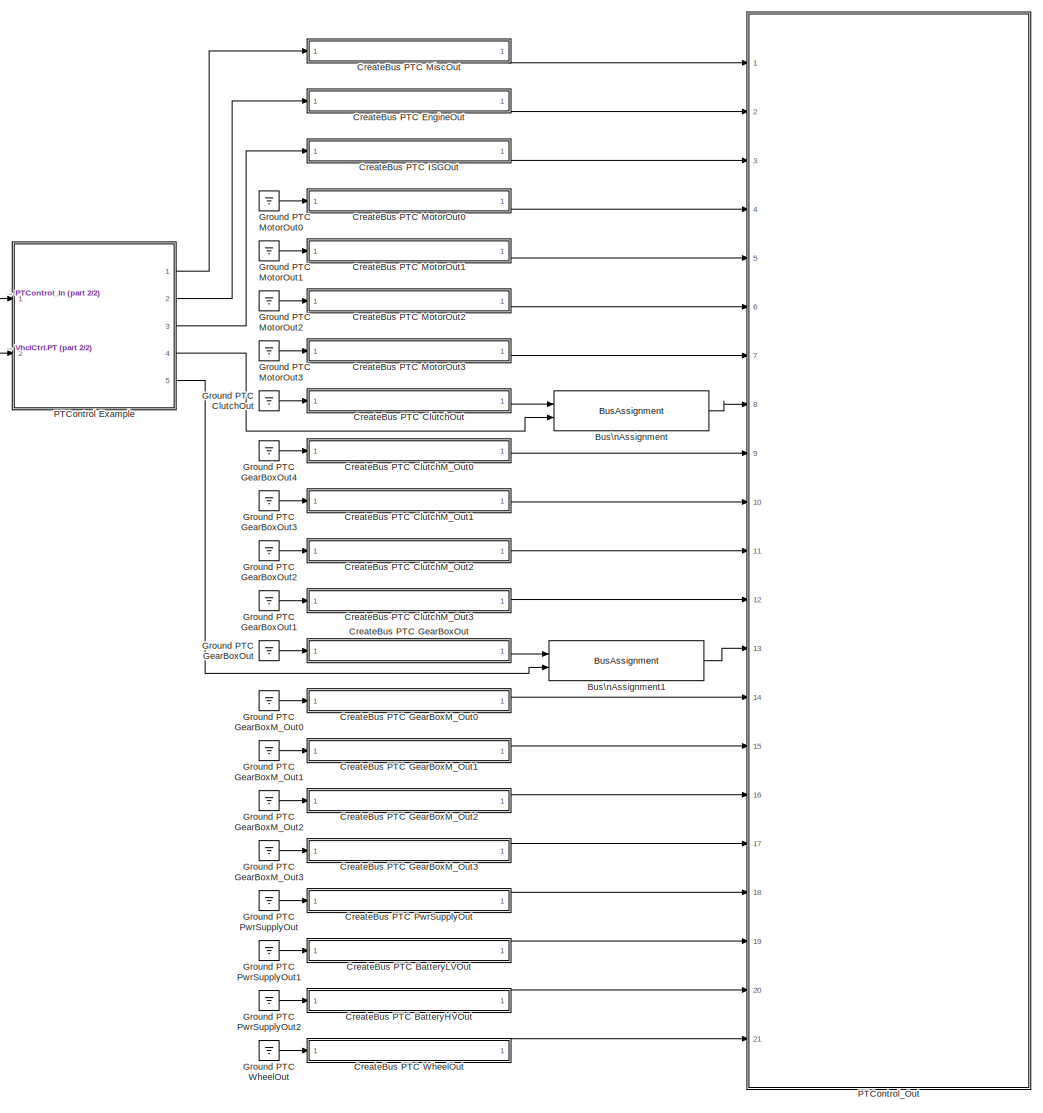
[diagram: CarMaker/IPG Vehicle/PowerTrain/PTControl Example - part 1/2, most of the canvas]
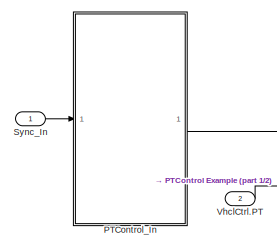
[diagram: CarMaker/IPG Vehicle/PowerTrain/PTControl Example - part 2/2, top left region]
BLOCK [SubSystem] CarMaker/IPG Vehicle/PowerTrain/PTControl Example
  Ports = [2]
  RequestExecContextInheritance = off
  SID = 2149
BLOCK [BusAssignment] CarMaker/IPG Vehicle/PowerTrain/PTControl Example/Bus\nAssignment
  AssignedSignals = PTC ClutchOut Pos
  Ports = [2, 1]
  SID = 2152
BLOCK [BusAssignment] CarMaker/IPG Vehicle/PowerTrain/PTControl Example/Bus\nAssignment1
  AssignedSignals = PTC GearBoxOut GearNoTrg
  Ports = [2, 1]
  SID = 2153
BLOCK [SubSystem] CarMaker/IPG Vehicle/PowerTrain/PTControl Example/CreateBus PTC BatteryHVOut
  Ports = [1, 1]
  RequestExecContextInheritance = off
  SID = 2732
BLOCK [BusCreator] CarMaker/IPG Vehicle/PowerTrain/PTControl Example/CreateBus PTC BatteryHVOut/BusCreator
  InheritFromInputs = on
  Inputs = 2
  Ports = [2, 1]
  SID = 2757
BLOCK [Demux] CarMaker/IPG Vehicle/PowerTrain/PTControl Example/CreateBus PTC BatteryHVOut/Demux
  DisplayOption = none
  Outputs = 2
  Ports = [1, 2]
  SID = 2758
BLOCK [Inport] CarMaker/IPG Vehicle/PowerTrain/PTControl Example/CreateBus PTC BatteryHVOut/In
  SID = 2756
BLOCK [Outport] CarMaker/IPG Vehicle/PowerTrain/PTControl Example/CreateBus PTC BatteryHVOut/Out
  SID = 2759
  VectorParamsAs1DForOutWhenUnconnected = off
BLOCK [SubSystem] CarMaker/IPG Vehicle/PowerTrain/PTControl Example/CreateBus PTC BatteryLVOut
  Ports = [1, 1]
  RequestExecContextInheritance = off
  SID = 2726
BLOCK [BusCreator] CarMaker/IPG Vehicle/PowerTrain/PTControl Example/CreateBus PTC BatteryLVOut/BusCreator
  InheritFromInputs = on
  Inputs = 2
  Ports = [2, 1]
  SID = 2728
BLOCK [Demux] CarMaker/IPG Vehicle/PowerTrain/PTControl Example/CreateBus PTC BatteryLVOut/Demux
  DisplayOption = none
  Outputs = 2
  Ports = [1, 2]
  SID = 2729
BLOCK [Inport] CarMaker/IPG Vehicle/PowerTrain/PTControl Example/CreateBus PTC BatteryLVOut/In
  SID = 2727
BLOCK [Outport] CarMaker/IPG Vehicle/PowerTrain/PTControl Example/CreateBus PTC BatteryLVOut/Out
  SID = 2730
  VectorParamsAs1DForOutWhenUnconnected = off
BLOCK [SubSystem] CarMaker/IPG Vehicle/PowerTrain/PTControl Example/CreateBus PTC ClutchM_Out0
  Ports = [1, 1]
  RequestExecContextInheritance = off
  SID = 2700
BLOCK [BusCreator] CarMaker/IPG Vehicle/PowerTrain/PTControl Example/CreateBus PTC ClutchM_Out0/BusCreator
  InheritFromInputs = on
  Inputs = 3
  Ports = [3, 1]
  SID = 2702
BLOCK [Demux] CarMaker/IPG Vehicle/PowerTrain/PTControl Example/CreateBus PTC ClutchM_Out0/Demux
  DisplayOption = none
  Outputs = 3
  Ports = [1, 3]
  SID = 2703
BLOCK [Inport] CarMaker/IPG Vehicle/PowerTrain/PTControl Example/CreateBus PTC ClutchM_Out0/In
  SID = 2701
BLOCK [Outport] CarMaker/IPG Vehicle/PowerTrain/PTControl Example/CreateBus PTC ClutchM_Out0/Out
  SID = 2704
  VectorParamsAs1DForOutWhenUnconnected = off
BLOCK [SubSystem] CarMaker/IPG Vehicle/PowerTrain/PTControl Example/CreateBus PTC ClutchM_Out1
  Ports = [1, 1]
  RequestExecContextInheritance = off
  SID = 2705
BLOCK [BusCreator] CarMaker/IPG Vehicle/PowerTrain/PTControl Example/CreateBus PTC ClutchM_Out1/BusCreator
  InheritFromInputs = on
  Inputs = 3
  Ports = [3, 1]
  SID = 2707
BLOCK [Demux] CarMaker/IPG Vehicle/PowerTrain/PTControl Example/CreateBus PTC ClutchM_Out1/Demux
  DisplayOption = none
  Outputs = 3
  Ports = [1, 3]
  SID = 2708
BLOCK [Inport] CarMaker/IPG Vehicle/PowerTrain/PTControl Example/CreateBus PTC ClutchM_Out1/In
  SID = 2706
BLOCK [Outport] CarMaker/IPG Vehicle/PowerTrain/PTControl Example/CreateBus PTC ClutchM_Out1/Out
  SID = 2709
  VectorParamsAs1DForOutWhenUnconnected = off
BLOCK [SubSystem] CarMaker/IPG Vehicle/PowerTrain/PTControl Example/CreateBus PTC ClutchM_Out2
  Ports = [1, 1]
  RequestExecContextInheritance = off
  SID = 2710
BLOCK [BusCreator] CarMaker/IPG Vehicle/PowerTrain/PTControl Example/CreateBus PTC ClutchM_Out2/BusCreator
  InheritFromInputs = on
  Inputs = 3
  Ports = [3, 1]
  SID = 2712
BLOCK [Demux] CarMaker/IPG Vehicle/PowerTrain/PTControl Example/CreateBus PTC ClutchM_Out2/Demux
  DisplayOption = none
  Outputs = 3
  Ports = [1, 3]
  SID = 2713
BLOCK [Inport] CarMaker/IPG Vehicle/PowerTrain/PTControl Example/CreateBus PTC ClutchM_Out2/In
  SID = 2711
BLOCK [Outport] CarMaker/IPG Vehicle/PowerTrain/PTControl Example/CreateBus PTC ClutchM_Out2/Out
  SID = 2714
  VectorParamsAs1DForOutWhenUnconnected = off
BLOCK [SubSystem] CarMaker/IPG Vehicle/PowerTrain/PTControl Example/CreateBus PTC ClutchM_Out3
  Ports = [1, 1]
  RequestExecContextInheritance = off
  SID = 2715
BLOCK [BusCreator] CarMaker/IPG Vehicle/PowerTrain/PTControl Example/CreateBus PTC ClutchM_Out3/BusCreator
  InheritFromInputs = on
  Inputs = 3
  Ports = [3, 1]
  SID = 2717
BLOCK [Demux] CarMaker/IPG Vehicle/PowerTrain/PTControl Example/CreateBus PTC ClutchM_Out3/Demux
  DisplayOption = none
  Outputs = 3
  Ports = [1, 3]
  SID = 2718
BLOCK [Inport] CarMaker/IPG Vehicle/PowerTrain/PTControl Example/CreateBus PTC ClutchM_Out3/In
  SID = 2716
BLOCK [Outport] CarMaker/IPG Vehicle/PowerTrain/PTControl Example/CreateBus PTC ClutchM_Out3/Out
  SID = 2719
  VectorParamsAs1DForOutWhenUnconnected = off
BLOCK [SubSystem] CarMaker/IPG Vehicle/PowerTrain/PTControl Example/CreateBus PTC ClutchOut
  Ports = [1, 1]
  RequestExecContextInheritance = off
  SID = 2154
BLOCK [BusCreator] CarMaker/IPG Vehicle/PowerTrain/PTControl Example/CreateBus PTC ClutchOut/BusCreator
  InheritFromInputs = on
  Inputs = 3
  Ports = [3, 1]
  SID = 2156
BLOCK [Demux] CarMaker/IPG Vehicle/PowerTrain/PTControl Example/CreateBus PTC ClutchOut/Demux
  DisplayOption = none
  Outputs = 3
  Ports = [1, 3]
  SID = 2157
BLOCK [Inport] CarMaker/IPG Vehicle/PowerTrain/PTControl Example/CreateBus PTC ClutchOut/In
  SID = 2155
BLOCK [Outport] CarMaker/IPG Vehicle/PowerTrain/PTControl Example/CreateBus PTC ClutchOut/Out
  SID = 2158
  VectorParamsAs1DForOutWhenUnconnected = off
BLOCK [SubSystem] CarMaker/IPG Vehicle/PowerTrain/PTControl Example/CreateBus PTC EngineOut
  Ports = [1, 1]
  RequestExecContextInheritance = off
  SID = 2159
BLOCK [BusCreator] CarMaker/IPG Vehicle/PowerTrain/PTControl Example/CreateBus PTC EngineOut/BusCreator
  InheritFromInputs = on
  Inputs = 5
  Ports = [5, 1]
  SID = 2161
BLOCK [Demux] CarMaker/IPG Vehicle/PowerTrain/PTControl Example/CreateBus PTC EngineOut/Demux
  DisplayOption = none
  Outputs = 5
  Ports = [1, 5]
  SID = 2162
BLOCK [Inport] CarMaker/IPG Vehicle/PowerTrain/PTControl Example/CreateBus PTC EngineOut/In
  SID = 2160
BLOCK [Outport] CarMaker/IPG Vehicle/PowerTrain/PTControl Example/CreateBus PTC EngineOut/Out
  SID = 2163
  VectorParamsAs1DForOutWhenUnconnected = off
BLOCK [SubSystem] CarMaker/IPG Vehicle/PowerTrain/PTControl Example/CreateBus PTC GearBoxM_Out0
  Ports = [1, 1]
  RequestExecContextInheritance = off
  SID = 2621
BLOCK [BusCreator] CarMaker/IPG Vehicle/PowerTrain/PTControl Example/CreateBus PTC GearBoxM_Out0/BusCreator
  InheritFromInputs = on
  Inputs = 12
  Ports = [12, 1]
  SID = 2623
BLOCK [Demux] CarMaker/IPG Vehicle/PowerTrain/PTControl Example/CreateBus PTC GearBoxM_Out0/Demux
  DisplayOption = none
  Outputs = 12
  Ports = [1, 12]
  SID = 2624
BLOCK [Inport] CarMaker/IPG Vehicle/PowerTrain/PTControl Example/CreateBus PTC GearBoxM_Out0/In
  SID = 2622
BLOCK [Outport] CarMaker/IPG Vehicle/PowerTrain/PTControl Example/CreateBus PTC GearBoxM_Out0/Out
  SID = 2625
  VectorParamsAs1DForOutWhenUnconnected = off
BLOCK [SubSystem] CarMaker/IPG Vehicle/PowerTrain/PTControl Example/CreateBus PTC GearBoxM_Out1
  Ports = [1, 1]
  RequestExecContextInheritance = off
  SID = 2616
BLOCK [BusCreator] CarMaker/IPG Vehicle/PowerTrain/PTControl Example/CreateBus PTC GearBoxM_Out1/BusCreator
  InheritFromInputs = on
  Inputs = 12
  Ports = [12, 1]
  SID = 2618
BLOCK [Demux] CarMaker/IPG Vehicle/PowerTrain/PTControl Example/CreateBus PTC GearBoxM_Out1/Demux
  DisplayOption = none
  Outputs = 12
  Ports = [1, 12]
  SID = 2619
BLOCK [Inport] CarMaker/IPG Vehicle/PowerTrain/PTControl Example/CreateBus PTC GearBoxM_Out1/In
  SID = 2617
BLOCK [Outport] CarMaker/IPG Vehicle/PowerTrain/PTControl Example/CreateBus PTC GearBoxM_Out1/Out
  SID = 2620
  VectorParamsAs1DForOutWhenUnconnected = off
BLOCK [SubSystem] CarMaker/IPG Vehicle/PowerTrain/PTControl Example/CreateBus PTC GearBoxM_Out2
  Ports = [1, 1]
  RequestExecContextInheritance = off
  SID = 2611
BLOCK [BusCreator] CarMaker/IPG Vehicle/PowerTrain/PTControl Example/CreateBus PTC GearBoxM_Out2/BusCreator
  InheritFromInputs = on
  Inputs = 12
  Ports = [12, 1]
  SID = 2613
BLOCK [Demux] CarMaker/IPG Vehicle/PowerTrain/PTControl Example/CreateBus PTC GearBoxM_Out2/Demux
  DisplayOption = none
  Outputs = 12
  Ports = [1, 12]
  SID = 2614
BLOCK [Inport] CarMaker/IPG Vehicle/PowerTrain/PTControl Example/CreateBus PTC GearBoxM_Out2/In
  SID = 2612
BLOCK [Outport] CarMaker/IPG Vehicle/PowerTrain/PTControl Example/CreateBus PTC GearBoxM_Out2/Out
  SID = 2615
  VectorParamsAs1DForOutWhenUnconnected = off
BLOCK [SubSystem] CarMaker/IPG Vehicle/PowerTrain/PTControl Example/CreateBus PTC GearBoxM_Out3
  Ports = [1, 1]
  RequestExecContextInheritance = off
  SID = 2606
BLOCK [BusCreator] CarMaker/IPG Vehicle/PowerTrain/PTControl Example/CreateBus PTC GearBoxM_Out3/BusCreator
  InheritFromInputs = on
  Inputs = 12
  Ports = [12, 1]
  SID = 2608
BLOCK [Demux] CarMaker/IPG Vehicle/PowerTrain/PTControl Example/CreateBus PTC GearBoxM_Out3/Demux
  DisplayOption = none
  Outputs = 12
  Ports = [1, 12]
  SID = 2609
BLOCK [Inport] CarMaker/IPG Vehicle/PowerTrain/PTControl Example/CreateBus PTC GearBoxM_Out3/In
  SID = 2607
BLOCK [Outport] CarMaker/IPG Vehicle/PowerTrain/PTControl Example/CreateBus PTC GearBoxM_Out3/Out
  SID = 2610
  VectorParamsAs1DForOutWhenUnconnected = off
BLOCK [SubSystem] CarMaker/IPG Vehicle/PowerTrain/PTControl Example/CreateBus PTC GearBoxOut
  Ports = [1, 1]
  RequestExecContextInheritance = off
  SID = 2631
BLOCK [BusCreator] CarMaker/IPG Vehicle/PowerTrain/PTControl Example/CreateBus PTC GearBoxOut/BusCreator
  InheritFromInputs = on
  Inputs = 12
  Ports = [12, 1]
  SID = 2633
BLOCK [Demux] CarMaker/IPG Vehicle/PowerTrain/PTControl Example/CreateBus PTC GearBoxOut/Demux
  DisplayOption = none
  Outputs = 12
  Ports = [1, 12]
  SID = 2634
BLOCK [Inport] CarMaker/IPG Vehicle/PowerTrain/PTControl Example/CreateBus PTC GearBoxOut/In
  SID = 2632
BLOCK [Outport] CarMaker/IPG Vehicle/PowerTrain/PTControl Example/CreateBus PTC GearBoxOut/Out
  SID = 2635
  VectorParamsAs1DForOutWhenUnconnected = off
BLOCK [SubSystem] CarMaker/IPG Vehicle/PowerTrain/PTControl Example/CreateBus PTC ISGOut
  Ports = [1, 1]
  RequestExecContextInheritance = off
  SID = 2189
BLOCK [BusCreator] CarMaker/IPG Vehicle/PowerTrain/PTControl Example/CreateBus PTC ISGOut/BusCreator
  InheritFromInputs = on
  Inputs = 3
  Ports = [3, 1]
  SID = 2191
BLOCK [Demux] CarMaker/IPG Vehicle/PowerTrain/PTControl Example/CreateBus PTC ISGOut/Demux
  DisplayOption = none
  Outputs = 3
  Ports = [1, 3]
  SID = 2192
BLOCK [Inport] CarMaker/IPG Vehicle/PowerTrain/PTControl Example/CreateBus PTC ISGOut/In
  SID = 2190
BLOCK [Outport] CarMaker/IPG Vehicle/PowerTrain/PTControl Example/CreateBus PTC ISGOut/Out
  SID = 2193
  VectorParamsAs1DForOutWhenUnconnected = off
BLOCK [SubSystem] CarMaker/IPG Vehicle/PowerTrain/PTControl Example/CreateBus PTC MiscOut
  Ports = [1, 1]
  RequestExecContextInheritance = off
  SID = 2194
BLOCK [BusCreator] CarMaker/IPG Vehicle/PowerTrain/PTControl Example/CreateBus PTC MiscOut/BusCreator
  InheritFromInputs = on
  Inputs = 4
  Ports = [4, 1]
  SID = 2196
BLOCK [Demux] CarMaker/IPG Vehicle/PowerTrain/PTControl Example/CreateBus PTC MiscOut/Demux
  DisplayOption = none
  Ports = [1, 4]
  SID = 2197
BLOCK [Inport] CarMaker/IPG Vehicle/PowerTrain/PTControl Example/CreateBus PTC MiscOut/In
  SID = 2195
BLOCK [Outport] CarMaker/IPG Vehicle/PowerTrain/PTControl Example/CreateBus PTC MiscOut/Out
  SID = 2198
  VectorParamsAs1DForOutWhenUnconnected = off
BLOCK [SubSystem] CarMaker/IPG Vehicle/PowerTrain/PTControl Example/CreateBus PTC MotorOut0
  Ports = [1, 1]
  RequestExecContextInheritance = off
  SID = 2199
BLOCK [BusCreator] CarMaker/IPG Vehicle/PowerTrain/PTControl Example/CreateBus PTC MotorOut0/BusCreator
  InheritFromInputs = on
  Inputs = 3
  Ports = [3, 1]
  SID = 2201
BLOCK [Demux] CarMaker/IPG Vehicle/PowerTrain/PTControl Example/CreateBus PTC MotorOut0/Demux
  DisplayOption = none
  Outputs = 3
  Ports = [1, 3]
  SID = 2202
BLOCK [Inport] CarMaker/IPG Vehicle/PowerTrain/PTControl Example/CreateBus PTC MotorOut0/In
  SID = 2200
BLOCK [Outport] CarMaker/IPG Vehicle/PowerTrain/PTControl Example/CreateBus PTC MotorOut0/Out
  SID = 2203
  VectorParamsAs1DForOutWhenUnconnected = off
BLOCK [SubSystem] CarMaker/IPG Vehicle/PowerTrain/PTControl Example/CreateBus PTC MotorOut1
  Ports = [1, 1]
  RequestExecContextInheritance = off
  SID = 2204
BLOCK [BusCreator] CarMaker/IPG Vehicle/PowerTrain/PTControl Example/CreateBus PTC MotorOut1/BusCreator
  InheritFromInputs = on
  Inputs = 3
  Ports = [3, 1]
  SID = 2206
BLOCK [Demux] CarMaker/IPG Vehicle/PowerTrain/PTControl Example/CreateBus PTC MotorOut1/Demux
  DisplayOption = none
  Outputs = 3
  Ports = [1, 3]
  SID = 2207
BLOCK [Inport] CarMaker/IPG Vehicle/PowerTrain/PTControl Example/CreateBus PTC MotorOut1/In
  SID = 2205
BLOCK [Outport] CarMaker/IPG Vehicle/PowerTrain/PTControl Example/CreateBus PTC MotorOut1/Out
  SID = 2208
  VectorParamsAs1DForOutWhenUnconnected = off
BLOCK [SubSystem] CarMaker/IPG Vehicle/PowerTrain/PTControl Example/CreateBus PTC MotorOut2
  Ports = [1, 1]
  RequestExecContextInheritance = off
  SID = 2209
BLOCK [BusCreator] CarMaker/IPG Vehicle/PowerTrain/PTControl Example/CreateBus PTC MotorOut2/BusCreator
  InheritFromInputs = on
  Inputs = 3
  Ports = [3, 1]
  SID = 2211
BLOCK [Demux] CarMaker/IPG Vehicle/PowerTrain/PTControl Example/CreateBus PTC MotorOut2/Demux
  DisplayOption = none
  Outputs = 3
  Ports = [1, 3]
  SID = 2212
BLOCK [Inport] CarMaker/IPG Vehicle/PowerTrain/PTControl Example/CreateBus PTC MotorOut2/In
  SID = 2210
BLOCK [Outport] CarMaker/IPG Vehicle/PowerTrain/PTControl Example/CreateBus PTC MotorOut2/Out
  SID = 2213
  VectorParamsAs1DForOutWhenUnconnected = off
BLOCK [SubSystem] CarMaker/IPG Vehicle/PowerTrain/PTControl Example/CreateBus PTC MotorOut3
  Ports = [1, 1]
  RequestExecContextInheritance = off
  SID = 2214
BLOCK [BusCreator] CarMaker/IPG Vehicle/PowerTrain/PTControl Example/CreateBus PTC MotorOut3/BusCreator
  InheritFromInputs = on
  Inputs = 3
  Ports = [3, 1]
  SID = 2216
BLOCK [Demux] CarMaker/IPG Vehicle/PowerTrain/PTControl Example/CreateBus PTC MotorOut3/Demux
  DisplayOption = none
  Outputs = 3
  Ports = [1, 3]
  SID = 2217
BLOCK [Inport] CarMaker/IPG Vehicle/PowerTrain/PTControl Example/CreateBus PTC MotorOut3/In
  SID = 2215
BLOCK [Outport] CarMaker/IPG Vehicle/PowerTrain/PTControl Example/CreateBus PTC MotorOut3/Out
  SID = 2218
  VectorParamsAs1DForOutWhenUnconnected = off
BLOCK [SubSystem] CarMaker/IPG Vehicle/PowerTrain/PTControl Example/CreateBus PTC PwrSupplyOut
  Ports = [1, 1]
  RequestExecContextInheritance = off
  SID = 2219
BLOCK [BusCreator] CarMaker/IPG Vehicle/PowerTrain/PTControl Example/CreateBus PTC PwrSupplyOut/BusCreator
  InheritFromInputs = on
  Inputs = 1
  Ports = [1, 1]
  SID = 2221
BLOCK [Demux] CarMaker/IPG Vehicle/PowerTrain/PTControl Example/CreateBus PTC PwrSupplyOut/Demux
  DisplayOption = none
  Outputs = 1
  Ports = [1, 1]
  SID = 2222
BLOCK [Inport] CarMaker/IPG Vehicle/PowerTrain/PTControl Example/CreateBus PTC PwrSupplyOut/In
  SID = 2220
BLOCK [Outport] CarMaker/IPG Vehicle/PowerTrain/PTControl Example/CreateBus PTC PwrSupplyOut/Out
  SID = 2223
  VectorParamsAs1DForOutWhenUnconnected = off
BLOCK [SubSystem] CarMaker/IPG Vehicle/PowerTrain/PTControl Example/CreateBus PTC WheelOut
  Ports = [1, 1]
  RequestExecContextInheritance = off
  SID = 2601
BLOCK [BusCreator] CarMaker/IPG Vehicle/PowerTrain/PTControl Example/CreateBus PTC WheelOut/BusCreator
  InheritFromInputs = on
  Inputs = 8
  Ports = [8, 1]
  SID = 2603
BLOCK [Demux] CarMaker/IPG Vehicle/PowerTrain/PTControl Example/CreateBus PTC WheelOut/Demux
  DisplayOption = none
  Outputs = 8
  Ports = [1, 8]
  SID = 2604
BLOCK [Inport] CarMaker/IPG Vehicle/PowerTrain/PTControl Example/CreateBus PTC WheelOut/In
  SID = 2602
BLOCK [Outport] CarMaker/IPG Vehicle/PowerTrain/PTControl Example/CreateBus PTC WheelOut/Out
  SID = 2605
  VectorParamsAs1DForOutWhenUnconnected = off
BLOCK [Ground] CarMaker/IPG Vehicle/PowerTrain/PTControl Example/Ground PTC ClutchOut
  SID = 2229
BLOCK [Ground] CarMaker/IPG Vehicle/PowerTrain/PTControl Example/Ground PTC GearBoxM_Out0
  SID = 2230
BLOCK [Ground] CarMaker/IPG Vehicle/PowerTrain/PTControl Example/Ground PTC GearBoxM_Out1
  SID = 2231
BLOCK [Ground] CarMaker/IPG Vehicle/PowerTrain/PTControl Example/Ground PTC GearBoxM_Out2
  SID = 2232
BLOCK [Ground] CarMaker/IPG Vehicle/PowerTrain/PTControl Example/Ground PTC GearBoxM_Out3
  SID = 2233
BLOCK [Ground] CarMaker/IPG Vehicle/PowerTrain/PTControl Example/Ground PTC GearBoxOut
  SID = 2234
BLOCK [Ground] CarMaker/IPG Vehicle/PowerTrain/PTControl Example/Ground PTC GearBoxOut1
  SID = 2720
BLOCK [Ground] CarMaker/IPG Vehicle/PowerTrain/PTControl Example/Ground PTC GearBoxOut2
  SID = 2721
BLOCK [Ground] CarMaker/IPG Vehicle/PowerTrain/PTControl Example/Ground PTC GearBoxOut3
  SID = 2722
BLOCK [Ground] CarMaker/IPG Vehicle/PowerTrain/PTControl Example/Ground PTC GearBoxOut4
  SID = 2723
BLOCK [Ground] CarMaker/IPG Vehicle/PowerTrain/PTControl Example/Ground PTC MotorOut0
  SID = 2235
BLOCK [Ground] CarMaker/IPG Vehicle/PowerTrain/PTControl Example/Ground PTC MotorOut1
  SID = 2236
BLOCK [Ground] CarMaker/IPG Vehicle/PowerTrain/PTControl Example/Ground PTC MotorOut2
  SID = 2237
BLOCK [Ground] CarMaker/IPG Vehicle/PowerTrain/PTControl Example/Ground PTC MotorOut3
  SID = 2238
BLOCK [Ground] CarMaker/IPG Vehicle/PowerTrain/PTControl Example/Ground PTC PwrSupplyOut
  SID = 2239
BLOCK [Ground] CarMaker/IPG Vehicle/PowerTrain/PTControl Example/Ground PTC PwrSupplyOut1
  SID = 2731
BLOCK [Ground] CarMaker/IPG Vehicle/PowerTrain/PTControl Example/Ground PTC PwrSupplyOut2
  SID = 2737
BLOCK [Ground] CarMaker/IPG Vehicle/PowerTrain/PTControl Example/Ground PTC WheelOut
  SID = 2240
BLOCK [SubSystem] CarMaker/IPG Vehicle/PowerTrain/PTControl Example/PTControl Example
  Ports = [2, 5]
  RequestExecContextInheritance = off
  SID = 2241
BLOCK [BusSelector] CarMaker/IPG Vehicle/PowerTrain/PTControl Example/PTControl Example/Bus\nSelector
  OutputSignals = VhclCtrl Key,VhclCtrl Gas,VhclCtrl Clutch,VhclCtrl GearNo
  Ports = [1, 4]
  SID = 2244
BLOCK [BusSelector] CarMaker/IPG Vehicle/PowerTrain/PTControl Example/PTControl Example/Bus\nSelector1
  OutputSignals = PTC EngineIn (signal 15).PTC EngineIn Engine_on
  Ports = [1, 1]
  SID = 2245
BLOCK [Outport] CarMaker/IPG Vehicle/PowerTrain/PTControl Example/PTControl Example/ClutchOut Pos
  Port = 4
  SID = 2291
  VectorParamsAs1DForOutWhenUnconnected = off
BLOCK [SubSystem] CarMaker/IPG Vehicle/PowerTrain/PTControl Example/PTControl Example/Engine
  Ports = [2, 1]
  RequestExecContextInheritance = off
  SID = 2246
BLOCK [Constant] CarMaker/IPG Vehicle/PowerTrain/PTControl Example/PTControl Example/Engine/Constant
  SID = 2249
BLOCK [Constant] CarMaker/IPG Vehicle/PowerTrain/PTControl Example/PTControl Example/Engine/Constant1
  SID = 2250
  Value = 0
BLOCK [Constant] CarMaker/IPG Vehicle/PowerTrain/PTControl Example/PTControl Example/Engine/Constant3
  SID = 2251
  Value = 0
BLOCK [Outport] CarMaker/IPG Vehicle/PowerTrain/PTControl Example/PTControl Example/Engine/EngineOut
  SID = 2258
  VectorParamsAs1DForOutWhenUnconnected = off
BLOCK [Inport] CarMaker/IPG Vehicle/PowerTrain/PTControl Example/PTControl Example/Engine/Engine_on
  Port = 2
  SID = 2248
BLOCK [Inport] CarMaker/IPG Vehicle/PowerTrain/PTControl Example/PTControl Example/Engine/Gas
  SID = 2247
BLOCK [Mux] CarMaker/IPG Vehicle/PowerTrain/PTControl Example/PTControl Example/Engine/Mux
  DisplayOption = bar
  Inputs = 5
  Ports = [5, 1]
  SID = 2252
BLOCK [Constant] CarMaker/IPG Vehicle/PowerTrain/PTControl Example/PTControl Example/Engine/NOTSET0
  SID = 2253
  Value = -99999
BLOCK [Constant] CarMaker/IPG Vehicle/PowerTrain/PTControl Example/PTControl Example/Engine/NOTSET1
  SID = 2254
  Value = -99999
BLOCK [Constant] CarMaker/IPG Vehicle/PowerTrain/PTControl Example/PTControl Example/Engine/NOTSET2
  SID = 2255
  Value = -99999
BLOCK [Switch] CarMaker/IPG Vehicle/PowerTrain/PTControl Example/PTControl Example/Engine/Switch
  Criteria = u2 ~= 0
  InputSameDT = off
  SID = 2256
  SaturateOnIntegerOverflow = off
BLOCK [Switch] CarMaker/IPG Vehicle/PowerTrain/PTControl Example/PTControl Example/Engine/Switch1
  Criteria = u2 ~= 0
  InputSameDT = off
  SID = 2257
  SaturateOnIntegerOverflow = off
BLOCK [Inport] CarMaker/IPG Vehicle/PowerTrain/PTControl Example/PTControl Example/EngineIn
  SID = 2242
BLOCK [Outport] CarMaker/IPG Vehicle/PowerTrain/PTControl Example/PTControl Example/EngineOut
  Port = 2
  SID = 2289
  VectorParamsAs1DForOutWhenUnconnected = off
BLOCK [Outport] CarMaker/IPG Vehicle/PowerTrain/PTControl Example/PTControl Example/GearBoxOut GearNoTrg
  Port = 5
  SID = 2292
  VectorParamsAs1DForOutWhenUnconnected = off
BLOCK [SubSystem] CarMaker/IPG Vehicle/PowerTrain/PTControl Example/PTControl Example/ISG
  Ports = [1, 1]
  RequestExecContextInheritance = off
  SID = 2259
BLOCK [Constant] CarMaker/IPG Vehicle/PowerTrain/PTControl Example/PTControl Example/ISG/Constant
  SID = 2261
BLOCK [Constant] CarMaker/IPG Vehicle/PowerTrain/PTControl Example/PTControl Example/ISG/Constant1
  SID = 2262
  Value = 0
BLOCK [Outport] CarMaker/IPG Vehicle/PowerTrain/PTControl Example/PTControl Example/ISG/ISGOut
  SID = 2269
  VectorParamsAs1DForOutWhenUnconnected = off
BLOCK [Inport] CarMaker/IPG Vehicle/PowerTrain/PTControl Example/PTControl Example/ISG/Key
  SID = 2260
BLOCK [Constant] CarMaker/IPG Vehicle/PowerTrain/PTControl Example/PTControl Example/ISG/KeyPos_KeyIn_Starter
  SID = 2263
  Value = 4
BLOCK [Mux] CarMaker/IPG Vehicle/PowerTrain/PTControl Example/PTControl Example/ISG/Mux
  DisplayOption = bar
  Inputs = 3
  Ports = [3, 1]
  SID = 2264
BLOCK [Constant] CarMaker/IPG Vehicle/PowerTrain/PTControl Example/PTControl Example/ISG/NOTSET
  SID = 2265
  Value = -99999
BLOCK [Constant] CarMaker/IPG Vehicle/PowerTrain/PTControl Example/PTControl Example/ISG/NOTSET1
  SID = 2266
  Value = -99999
BLOCK [RelationalOperator] CarMaker/IPG Vehicle/PowerTrain/PTControl Example/PTControl Example/ISG/Relational\nOperator1
  InputSameDT = off
  Operator = ==
  OutDataTypeStr = boolean
  Ports = [2, 1]
  SID = 2267
BLOCK [Switch] CarMaker/IPG Vehicle/PowerTrain/PTControl Example/PTControl Example/ISG/Switch
  Criteria = u2 ~= 0
  InputSameDT = off
  SID = 2268
  SaturateOnIntegerOverflow = off
BLOCK [Outport] CarMaker/IPG Vehicle/PowerTrain/PTControl Example/PTControl Example/ISGOut
  Port = 3
  SID = 2290
  VectorParamsAs1DForOutWhenUnconnected = off
BLOCK [SubSystem] CarMaker/IPG Vehicle/PowerTrain/PTControl Example/PTControl Example/PTC
  Ports = [2, 1]
  RequestExecContextInheritance = off
  SID = 2270
BLOCK [Outport] CarMaker/IPG Vehicle/PowerTrain/PTControl Example/PTControl Example/PTC MiscOut
  SID = 2288
  VectorParamsAs1DForOutWhenUnconnected = off
BLOCK [Constant] CarMaker/IPG Vehicle/PowerTrain/PTControl Example/PTControl Example/PTC/Constant
  SID = 2273
BLOCK [Constant] CarMaker/IPG Vehicle/PowerTrain/PTControl Example/PTControl Example/PTC/Constant1
  SID = 2274
  Value = 0
BLOCK [Inport] CarMaker/IPG Vehicle/PowerTrain/PTControl Example/PTControl Example/PTC/Engine_on
  Port = 2
  SID = 2272
BLOCK [Ground] CarMaker/IPG Vehicle/PowerTrain/PTControl Example/PTControl Example/PTC/Ground
  SID = 2275
BLOCK [Inport] CarMaker/IPG Vehicle/PowerTrain/PTControl Example/PTControl Example/PTC/Key
  SID = 2271
BLOCK [Lookup] CarMaker/IPG Vehicle/PowerTrain/PTControl Example/PTControl Example/PTC/KeyPos2OperState
  InputValues = [0 1 2 3 4 5 6 7 8 9]
  SID = 2276
  SaturateOnIntegerOverflow = off
  Table = [0 1 2 3 3 3 3 3 3 3]
BLOCK [Constant] CarMaker/IPG Vehicle/PowerTrain/PTControl Example/PTControl Example/PTC/KeyPos_KeyIn_PowerOn
  SID = 2277
  Value = 3
BLOCK [Logic] CarMaker/IPG Vehicle/PowerTrain/PTControl Example/PTControl Example/PTC/Logical\nOperator
  AllPortsSameDT = off
  OutDataTypeStr = boolean
  Ports = [2, 1]
  SID = 2278
BLOCK [Constant] CarMaker/IPG Vehicle/PowerTrain/PTControl Example/PTControl Example/PTC/Mode_EngineDrive
  SID = 2279
  Value = 8
BLOCK [Mux] CarMaker/IPG Vehicle/PowerTrain/PTControl Example/PTControl Example/PTC/Mux
  DisplayOption = bar
  Ports = [4, 1]
  SID = 2280
BLOCK [Constant] CarMaker/IPG Vehicle/PowerTrain/PTControl Example/PTControl Example/PTC/OperState_Driving
  NameLocation = top
  SID = 2281
  Value = 4
BLOCK [Constant] CarMaker/IPG Vehicle/PowerTrain/PTControl Example/PTControl Example/PTC/OperState_PowerOn
  SID = 2282
  Value = 3
BLOCK [Outport] CarMaker/IPG Vehicle/PowerTrain/PTControl Example/PTControl Example/PTC/PTC MiscOut
  SID = 2287
  VectorParamsAs1DForOutWhenUnconnected = off
BLOCK [RelationalOperator] CarMaker/IPG Vehicle/PowerTrain/PTControl Example/PTControl Example/PTC/Relational\nOperator
  InputSameDT = off
  OutDataTypeStr = boolean
  Ports = [2, 1]
  SID = 2283
BLOCK [RelationalOperator] CarMaker/IPG Vehicle/PowerTrain/PTControl Example/PTControl Example/PTC/Relational\nOperator1
  InputSameDT = off
  OutDataTypeStr = boolean
  Ports = [2, 1]
  SID = 2284
BLOCK [Switch] CarMaker/IPG Vehicle/PowerTrain/PTControl Example/PTControl Example/PTC/Switch
  Criteria = u2 ~= 0
  InputSameDT = off
  SID = 2285
  SaturateOnIntegerOverflow = off
BLOCK [Switch] CarMaker/IPG Vehicle/PowerTrain/PTControl Example/PTControl Example/PTC/Switch1
  Criteria = u2 ~= 0
  InputSameDT = off
  SID = 2286
  SaturateOnIntegerOverflow = off
BLOCK [Inport] CarMaker/IPG Vehicle/PowerTrain/PTControl Example/PTControl Example/VhclCtrl.PT
  Port = 2
  SID = 2243
BLOCK [SubSystem] CarMaker/IPG Vehicle/PowerTrain/PTControl Example/PTControl_In
  Ports = [1, 1]
  RequestExecContextInheritance = off
  SID = 2451
BLOCK [SubSystem] CarMaker/IPG Vehicle/PowerTrain/PTControl Example/PTControl_In/CreateBus PTC BatteryHVIn
  Ports = [1, 1]
  RequestExecContextInheritance = off
  SID = 2743
BLOCK [BusCreator] CarMaker/IPG Vehicle/PowerTrain/PTControl Example/PTControl_In/CreateBus PTC BatteryHVIn/BusCreator
  InheritFromInputs = on
  Inputs = 8
  Ports = [8, 1]
  SID = 2745
BLOCK [Demux] CarMaker/IPG Vehicle/PowerTrain/PTControl Example/PTControl_In/CreateBus PTC BatteryHVIn/Demux
  DisplayOption = none
  Outputs = 8
  Ports = [1, 8]
  SID = 2746
BLOCK [Inport] CarMaker/IPG Vehicle/PowerTrain/PTControl Example/PTControl_In/CreateBus PTC BatteryHVIn/In
  SID = 2744
BLOCK [Outport] CarMaker/IPG Vehicle/PowerTrain/PTControl Example/PTControl_In/CreateBus PTC BatteryHVIn/Out
  SID = 2747
  VectorParamsAs1DForOutWhenUnconnected = off
BLOCK [SubSystem] CarMaker/IPG Vehicle/PowerTrain/PTControl Example/PTControl_In/CreateBus PTC BatteryLVIn
  Ports = [1, 1]
  RequestExecContextInheritance = off
  SID = 2453
BLOCK [BusCreator] CarMaker/IPG Vehicle/PowerTrain/PTControl Example/PTControl_In/CreateBus PTC BatteryLVIn/BusCreator
  InheritFromInputs = on
  Inputs = 8
  Ports = [8, 1]
  SID = 2455
BLOCK [Demux] CarMaker/IPG Vehicle/PowerTrain/PTControl Example/PTControl_In/CreateBus PTC BatteryLVIn/Demux
  DisplayOption = none
  Outputs = 8
  Ports = [1, 8]
  SID = 2456
BLOCK [Inport] CarMaker/IPG Vehicle/PowerTrain/PTControl Example/PTControl_In/CreateBus PTC BatteryLVIn/In
  SID = 2454
BLOCK [Outport] CarMaker/IPG Vehicle/PowerTrain/PTControl Example/PTControl_In/CreateBus PTC BatteryLVIn/Out
  SID = 2457
  VectorParamsAs1DForOutWhenUnconnected = off
BLOCK [SubSystem] CarMaker/IPG Vehicle/PowerTrain/PTControl Example/PTControl_In/CreateBus PTC ClutchIn
  Ports = [1, 1]
  RequestExecContextInheritance = off
  SID = 2458
BLOCK [BusCreator] CarMaker/IPG Vehicle/PowerTrain/PTControl Example/PTControl_In/CreateBus PTC ClutchIn/BusCreator
  InheritFromInputs = on
  Inputs = 6
  Ports = [6, 1]
  SID = 2460
BLOCK [Demux] CarMaker/IPG Vehicle/PowerTrain/PTControl Example/PTControl_In/CreateBus PTC ClutchIn/Demux
  DisplayOption = none
  Outputs = 6
  Ports = [1, 6]
  SID = 2461
BLOCK [Inport] CarMaker/IPG Vehicle/PowerTrain/PTControl Example/PTControl_In/CreateBus PTC ClutchIn/In
  SID = 2459
BLOCK [Outport] CarMaker/IPG Vehicle/PowerTrain/PTControl Example/PTControl_In/CreateBus PTC ClutchIn/Out
  SID = 2462
  VectorParamsAs1DForOutWhenUnconnected = off
BLOCK [SubSystem] CarMaker/IPG Vehicle/PowerTrain/PTControl Example/PTControl_In/CreateBus PTC ClutchM_In0
  Ports = [1, 1]
  RequestExecContextInheritance = off
  SID = 2676
BLOCK [BusCreator] CarMaker/IPG Vehicle/PowerTrain/PTControl Example/PTControl_In/CreateBus PTC ClutchM_In0/BusCreator
  InheritFromInputs = on
  Inputs = 6
  Ports = [6, 1]
  SID = 2678
BLOCK [Demux] CarMaker/IPG Vehicle/PowerTrain/PTControl Example/PTControl_In/CreateBus PTC ClutchM_In0/Demux
  DisplayOption = none
  Outputs = 6
  Ports = [1, 6]
  SID = 2679
BLOCK [Inport] CarMaker/IPG Vehicle/PowerTrain/PTControl Example/PTControl_In/CreateBus PTC ClutchM_In0/In
  SID = 2677
BLOCK [Outport] CarMaker/IPG Vehicle/PowerTrain/PTControl Example/PTControl_In/CreateBus PTC ClutchM_In0/Out
  SID = 2680
  VectorParamsAs1DForOutWhenUnconnected = off
BLOCK [SubSystem] CarMaker/IPG Vehicle/PowerTrain/PTControl Example/PTControl_In/CreateBus PTC ClutchM_In1
  Ports = [1, 1]
  RequestExecContextInheritance = off
  SID = 2681
BLOCK [BusCreator] CarMaker/IPG Vehicle/PowerTrain/PTControl Example/PTControl_In/CreateBus PTC ClutchM_In1/BusCreator
  InheritFromInputs = on
  Inputs = 6
  Ports = [6, 1]
  SID = 2683
BLOCK [Demux] CarMaker/IPG Vehicle/PowerTrain/PTControl Example/PTControl_In/CreateBus PTC ClutchM_In1/Demux
  DisplayOption = none
  Outputs = 6
  Ports = [1, 6]
  SID = 2684
BLOCK [Inport] CarMaker/IPG Vehicle/PowerTrain/PTControl Example/PTControl_In/CreateBus PTC ClutchM_In1/In
  SID = 2682
BLOCK [Outport] CarMaker/IPG Vehicle/PowerTrain/PTControl Example/PTControl_In/CreateBus PTC ClutchM_In1/Out
  SID = 2685
  VectorParamsAs1DForOutWhenUnconnected = off
BLOCK [SubSystem] CarMaker/IPG Vehicle/PowerTrain/PTControl Example/PTControl_In/CreateBus PTC ClutchM_In2
  Ports = [1, 1]
  RequestExecContextInheritance = off
  SID = 2686
BLOCK [BusCreator] CarMaker/IPG Vehicle/PowerTrain/PTControl Example/PTControl_In/CreateBus PTC ClutchM_In2/BusCreator
  InheritFromInputs = on
  Inputs = 6
  Ports = [6, 1]
  SID = 2688
BLOCK [Demux] CarMaker/IPG Vehicle/PowerTrain/PTControl Example/PTControl_In/CreateBus PTC ClutchM_In2/Demux
  DisplayOption = none
  Outputs = 6
  Ports = [1, 6]
  SID = 2689
BLOCK [Inport] CarMaker/IPG Vehicle/PowerTrain/PTControl Example/PTControl_In/CreateBus PTC ClutchM_In2/In
  SID = 2687
BLOCK [Outport] CarMaker/IPG Vehicle/PowerTrain/PTControl Example/PTControl_In/CreateBus PTC ClutchM_In2/Out
  SID = 2690
  VectorParamsAs1DForOutWhenUnconnected = off
BLOCK [SubSystem] CarMaker/IPG Vehicle/PowerTrain/PTControl Example/PTControl_In/CreateBus PTC ClutchM_In3
  Ports = [1, 1]
  RequestExecContextInheritance = off
  SID = 2691
BLOCK [BusCreator] CarMaker/IPG Vehicle/PowerTrain/PTControl Example/PTControl_In/CreateBus PTC ClutchM_In3/BusCreator
  InheritFromInputs = on
  Inputs = 6
  Ports = [6, 1]
  SID = 2693
BLOCK [Demux] CarMaker/IPG Vehicle/PowerTrain/PTControl Example/PTControl_In/CreateBus PTC ClutchM_In3/Demux
  DisplayOption = none
  Outputs = 6
  Ports = [1, 6]
  SID = 2694
BLOCK [Inport] CarMaker/IPG Vehicle/PowerTrain/PTControl Example/PTControl_In/CreateBus PTC ClutchM_In3/In
  SID = 2692
BLOCK [Outport] CarMaker/IPG Vehicle/PowerTrain/PTControl Example/PTControl_In/CreateBus PTC ClutchM_In3/Out
  SID = 2695
  VectorParamsAs1DForOutWhenUnconnected = off
BLOCK [SubSystem] CarMaker/IPG Vehicle/PowerTrain/PTControl Example/PTControl_In/CreateBus PTC Control Units
  Ports = [1, 1]
  RequestExecContextInheritance = off
  SID = 2463
BLOCK [BusCreator] CarMaker/IPG Vehicle/PowerTrain/PTControl Example/PTControl_In/CreateBus PTC Control Units/BusCreator
  InheritFromInputs = on
  Inputs = 4
  Ports = [4, 1]
  SID = 2465
BLOCK [Demux] CarMaker/IPG Vehicle/PowerTrain/PTControl Example/PTControl_In/CreateBus PTC Control Units/Demux
  DisplayOption = none
  Ports = [1, 4]
  SID = 2466
BLOCK [Inport] CarMaker/IPG Vehicle/PowerTrain/PTControl Example/PTControl_In/CreateBus PTC Control Units/In
  SID = 2464
BLOCK [Outport] CarMaker/IPG Vehicle/PowerTrain/PTControl Example/PTControl_In/CreateBus PTC Control Units/Out
  SID = 2467
  VectorParamsAs1DForOutWhenUnconnected = off
BLOCK [SubSystem] CarMaker/IPG Vehicle/PowerTrain/PTControl Example/PTControl_In/CreateBus PTC DriveSrcIn
  Ports = [1, 1]
  RequestExecContextInheritance = off
  SID = 2468
BLOCK [BusCreator] CarMaker/IPG Vehicle/PowerTrain/PTControl Example/PTControl_In/CreateBus PTC DriveSrcIn/BusCreator
  InheritFromInputs = on
  Inputs = 4
  Ports = [4, 1]
  SID = 2470
BLOCK [Demux] CarMaker/IPG Vehicle/PowerTrain/PTControl Example/PTControl_In/CreateBus PTC DriveSrcIn/Demux
  DisplayOption = none
  Ports = [1, 4]
  SID = 2471
BLOCK [Inport] CarMaker/IPG Vehicle/PowerTrain/PTControl Example/PTControl_In/CreateBus PTC DriveSrcIn/In
  SID = 2469
BLOCK [Outport] CarMaker/IPG Vehicle/PowerTrain/PTControl Example/PTControl_In/CreateBus PTC DriveSrcIn/Out
  SID = 2472
  VectorParamsAs1DForOutWhenUnconnected = off
BLOCK [SubSystem] CarMaker/IPG Vehicle/PowerTrain/PTControl Example/PTControl_In/CreateBus PTC EngineIn
  Ports = [1, 1]
  RequestExecContextInheritance = off
  SID = 2473
BLOCK [BusCreator] CarMaker/IPG Vehicle/PowerTrain/PTControl Example/PTControl_In/CreateBus PTC EngineIn/BusCreator
  InheritFromInputs = on
  Inputs = 7
  Ports = [7, 1]
  SID = 2475
BLOCK [Demux] CarMaker/IPG Vehicle/PowerTrain/PTControl Example/PTControl_In/CreateBus PTC EngineIn/Demux
  DisplayOption = none
  Outputs = 7
  Ports = [1, 7]
  SID = 2476
BLOCK [Inport] CarMaker/IPG Vehicle/PowerTrain/PTControl Example/PTControl_In/CreateBus PTC EngineIn/In
  SID = 2474
BLOCK [Outport] CarMaker/IPG Vehicle/PowerTrain/PTControl Example/PTControl_In/CreateBus PTC EngineIn/Out
  SID = 2477
  VectorParamsAs1DForOutWhenUnconnected = off
BLOCK [SubSystem] CarMaker/IPG Vehicle/PowerTrain/PTControl Example/PTControl_In/CreateBus PTC GearBoxIn
  Ports = [1, 1]
  RequestExecContextInheritance = off
  SID = 2478
BLOCK [BusCreator] CarMaker/IPG Vehicle/PowerTrain/PTControl Example/PTControl_In/CreateBus PTC GearBoxIn/BusCreator
  InheritFromInputs = on
  Inputs = 20
  Ports = [20, 1]
  SID = 2480
BLOCK [Demux] CarMaker/IPG Vehicle/PowerTrain/PTControl Example/PTControl_In/CreateBus PTC GearBoxIn/Demux
  DisplayOption = none
  Outputs = 20
  Ports = [1, 20]
  SID = 2481
BLOCK [Inport] CarMaker/IPG Vehicle/PowerTrain/PTControl Example/PTControl_In/CreateBus PTC GearBoxIn/In
  SID = 2479
BLOCK [Outport] CarMaker/IPG Vehicle/PowerTrain/PTControl Example/PTControl_In/CreateBus PTC GearBoxIn/Out
  SID = 2482
  VectorParamsAs1DForOutWhenUnconnected = off
BLOCK [SubSystem] CarMaker/IPG Vehicle/PowerTrain/PTControl Example/PTControl_In/CreateBus PTC GearBoxM_In0
  Ports = [1, 1]
  RequestExecContextInheritance = off
  SID = 2483
BLOCK [BusCreator] CarMaker/IPG Vehicle/PowerTrain/PTControl Example/PTControl_In/CreateBus PTC GearBoxM_In0/BusCreator
  InheritFromInputs = on
  Inputs = 20
  Ports = [20, 1]
  SID = 2485
BLOCK [Demux] CarMaker/IPG Vehicle/PowerTrain/PTControl Example/PTControl_In/CreateBus PTC GearBoxM_In0/Demux
  DisplayOption = none
  Outputs = 20
  Ports = [1, 20]
  SID = 2486
BLOCK [Inport] CarMaker/IPG Vehicle/PowerTrain/PTControl Example/PTControl_In/CreateBus PTC GearBoxM_In0/In
  SID = 2484
BLOCK [Outport] CarMaker/IPG Vehicle/PowerTrain/PTControl Example/PTControl_In/CreateBus PTC GearBoxM_In0/Out
  SID = 2487
  VectorParamsAs1DForOutWhenUnconnected = off
BLOCK [SubSystem] CarMaker/IPG Vehicle/PowerTrain/PTControl Example/PTControl_In/CreateBus PTC GearBoxM_In1
  Ports = [1, 1]
  RequestExecContextInheritance = off
  SID = 2488
BLOCK [BusCreator] CarMaker/IPG Vehicle/PowerTrain/PTControl Example/PTControl_In/CreateBus PTC GearBoxM_In1/BusCreator
  InheritFromInputs = on
  Inputs = 20
  Ports = [20, 1]
  SID = 2490
BLOCK [Demux] CarMaker/IPG Vehicle/PowerTrain/PTControl Example/PTControl_In/CreateBus PTC GearBoxM_In1/Demux
  DisplayOption = none
  Outputs = 20
  Ports = [1, 20]
  SID = 2491
BLOCK [Inport] CarMaker/IPG Vehicle/PowerTrain/PTControl Example/PTControl_In/CreateBus PTC GearBoxM_In1/In
  SID = 2489
BLOCK [Outport] CarMaker/IPG Vehicle/PowerTrain/PTControl Example/PTControl_In/CreateBus PTC GearBoxM_In1/Out
  SID = 2492
  VectorParamsAs1DForOutWhenUnconnected = off
BLOCK [SubSystem] CarMaker/IPG Vehicle/PowerTrain/PTControl Example/PTControl_In/CreateBus PTC GearBoxM_In2
  Ports = [1, 1]
  RequestExecContextInheritance = off
  SID = 2493
BLOCK [BusCreator] CarMaker/IPG Vehicle/PowerTrain/PTControl Example/PTControl_In/CreateBus PTC GearBoxM_In2/BusCreator
  InheritFromInputs = on
  Inputs = 20
  Ports = [20, 1]
  SID = 2495
BLOCK [Demux] CarMaker/IPG Vehicle/PowerTrain/PTControl Example/PTControl_In/CreateBus PTC GearBoxM_In2/Demux
  DisplayOption = none
  Outputs = 20
  Ports = [1, 20]
  SID = 2496
BLOCK [Inport] CarMaker/IPG Vehicle/PowerTrain/PTControl Example/PTControl_In/CreateBus PTC GearBoxM_In2/In
  SID = 2494
BLOCK [Outport] CarMaker/IPG Vehicle/PowerTrain/PTControl Example/PTControl_In/CreateBus PTC GearBoxM_In2/Out
  SID = 2497
  VectorParamsAs1DForOutWhenUnconnected = off
BLOCK [SubSystem] CarMaker/IPG Vehicle/PowerTrain/PTControl Example/PTControl_In/CreateBus PTC GearBoxM_In3
  Ports = [1, 1]
  RequestExecContextInheritance = off
  SID = 2498
BLOCK [BusCreator] CarMaker/IPG Vehicle/PowerTrain/PTControl Example/PTControl_In/CreateBus PTC GearBoxM_In3/BusCreator
  InheritFromInputs = on
  Inputs = 20
  Ports = [20, 1]
  SID = 2500
BLOCK [Demux] CarMaker/IPG Vehicle/PowerTrain/PTControl Example/PTControl_In/CreateBus PTC GearBoxM_In3/Demux
  DisplayOption = none
  Outputs = 20
  Ports = [1, 20]
  SID = 2501
BLOCK [Inport] CarMaker/IPG Vehicle/PowerTrain/PTControl Example/PTControl_In/CreateBus PTC GearBoxM_In3/In
  SID = 2499
BLOCK [Outport] CarMaker/IPG Vehicle/PowerTrain/PTControl Example/PTControl_In/CreateBus PTC GearBoxM_In3/Out
  SID = 2502
  VectorParamsAs1DForOutWhenUnconnected = off
BLOCK [SubSystem] CarMaker/IPG Vehicle/PowerTrain/PTControl Example/PTControl_In/CreateBus PTC ISGIn
  Ports = [1, 1]
  RequestExecContextInheritance = off
  SID = 2503
BLOCK [BusCreator] CarMaker/IPG Vehicle/PowerTrain/PTControl Example/PTControl_In/CreateBus PTC ISGIn/BusCreator
  InheritFromInputs = on
  Inputs = 9
  Ports = [9, 1]
  SID = 2505
BLOCK [Demux] CarMaker/IPG Vehicle/PowerTrain/PTControl Example/PTControl_In/CreateBus PTC ISGIn/Demux
  DisplayOption = none
  Outputs = 9
  Ports = [1, 9]
  SID = 2506
BLOCK [Inport] CarMaker/IPG Vehicle/PowerTrain/PTControl Example/PTControl_In/CreateBus PTC ISGIn/In
  SID = 2504
BLOCK [Outport] CarMaker/IPG Vehicle/PowerTrain/PTControl Example/PTControl_In/CreateBus PTC ISGIn/Out
  SID = 2507
  VectorParamsAs1DForOutWhenUnconnected = off
BLOCK [SubSystem] CarMaker/IPG Vehicle/PowerTrain/PTControl Example/PTControl_In/CreateBus PTC MotorIn0
  Ports = [1, 1]
  RequestExecContextInheritance = off
  SID = 2508
BLOCK [BusCreator] CarMaker/IPG Vehicle/PowerTrain/PTControl Example/PTControl_In/CreateBus PTC MotorIn0/BusCreator
  InheritFromInputs = on
  Inputs = 9
  Ports = [9, 1]
  SID = 2510
BLOCK [Demux] CarMaker/IPG Vehicle/PowerTrain/PTControl Example/PTControl_In/CreateBus PTC MotorIn0/Demux
  DisplayOption = none
  Outputs = 9
  Ports = [1, 9]
  SID = 2511
BLOCK [Inport] CarMaker/IPG Vehicle/PowerTrain/PTControl Example/PTControl_In/CreateBus PTC MotorIn0/In
  SID = 2509
BLOCK [Outport] CarMaker/IPG Vehicle/PowerTrain/PTControl Example/PTControl_In/CreateBus PTC MotorIn0/Out
  SID = 2512
  VectorParamsAs1DForOutWhenUnconnected = off
BLOCK [SubSystem] CarMaker/IPG Vehicle/PowerTrain/PTControl Example/PTControl_In/CreateBus PTC MotorIn1
  Ports = [1, 1]
  RequestExecContextInheritance = off
  SID = 2513
BLOCK [BusCreator] CarMaker/IPG Vehicle/PowerTrain/PTControl Example/PTControl_In/CreateBus PTC MotorIn1/BusCreator
  InheritFromInputs = on
  Inputs = 9
  Ports = [9, 1]
  SID = 2515
BLOCK [Demux] CarMaker/IPG Vehicle/PowerTrain/PTControl Example/PTControl_In/CreateBus PTC MotorIn1/Demux
  DisplayOption = none
  Outputs = 9
  Ports = [1, 9]
  SID = 2516
BLOCK [Inport] CarMaker/IPG Vehicle/PowerTrain/PTControl Example/PTControl_In/CreateBus PTC MotorIn1/In
  SID = 2514
BLOCK [Outport] CarMaker/IPG Vehicle/PowerTrain/PTControl Example/PTControl_In/CreateBus PTC MotorIn1/Out
  SID = 2517
  VectorParamsAs1DForOutWhenUnconnected = off
BLOCK [SubSystem] CarMaker/IPG Vehicle/PowerTrain/PTControl Example/PTControl_In/CreateBus PTC MotorIn2
  Ports = [1, 1]
  RequestExecContextInheritance = off
  SID = 2518
BLOCK [BusCreator] CarMaker/IPG Vehicle/PowerTrain/PTControl Example/PTControl_In/CreateBus PTC MotorIn2/BusCreator
  InheritFromInputs = on
  Inputs = 9
  Ports = [9, 1]
  SID = 2520
BLOCK [Demux] CarMaker/IPG Vehicle/PowerTrain/PTControl Example/PTControl_In/CreateBus PTC MotorIn2/Demux
  DisplayOption = none
  Outputs = 9
  Ports = [1, 9]
  SID = 2521
BLOCK [Inport] CarMaker/IPG Vehicle/PowerTrain/PTControl Example/PTControl_In/CreateBus PTC MotorIn2/In
  SID = 2519
BLOCK [Outport] CarMaker/IPG Vehicle/PowerTrain/PTControl Example/PTControl_In/CreateBus PTC MotorIn2/Out
  SID = 2522
  VectorParamsAs1DForOutWhenUnconnected = off
BLOCK [SubSystem] CarMaker/IPG Vehicle/PowerTrain/PTControl Example/PTControl_In/CreateBus PTC MotorIn3
  Ports = [1, 1]
  RequestExecContextInheritance = off
  SID = 2523
BLOCK [BusCreator] CarMaker/IPG Vehicle/PowerTrain/PTControl Example/PTControl_In/CreateBus PTC MotorIn3/BusCreator
  InheritFromInputs = on
  Inputs = 9
  Ports = [9, 1]
  SID = 2525
BLOCK [Demux] CarMaker/IPG Vehicle/PowerTrain/PTControl Example/PTControl_In/CreateBus PTC MotorIn3/Demux
  DisplayOption = none
  Outputs = 9
  Ports = [1, 9]
  SID = 2526
BLOCK [Inport] CarMaker/IPG Vehicle/PowerTrain/PTControl Example/PTControl_In/CreateBus PTC MotorIn3/In
  SID = 2524
BLOCK [Outport] CarMaker/IPG Vehicle/PowerTrain/PTControl Example/PTControl_In/CreateBus PTC MotorIn3/Out
  SID = 2527
  VectorParamsAs1DForOutWhenUnconnected = off
BLOCK [SubSystem] CarMaker/IPG Vehicle/PowerTrain/PTControl Example/PTControl_In/CreateBus PTC PwrSupplyIn
  Ports = [1, 1]
  RequestExecContextInheritance = off
  SID = 2528
BLOCK [BusCreator] CarMaker/IPG Vehicle/PowerTrain/PTControl Example/PTControl_In/CreateBus PTC PwrSupplyIn/BusCreator
  InheritFromInputs = on
  Inputs = 12
  Ports = [12, 1]
  SID = 2530
BLOCK [Demux] CarMaker/IPG Vehicle/PowerTrain/PTControl Example/PTControl_In/CreateBus PTC PwrSupplyIn/Demux
  DisplayOption = none
  Outputs = 12
  Ports = [1, 12]
  SID = 2531
BLOCK [Inport] CarMaker/IPG Vehicle/PowerTrain/PTControl Example/PTControl_In/CreateBus PTC PwrSupplyIn/In
  SID = 2529
BLOCK [Outport] CarMaker/IPG Vehicle/PowerTrain/PTControl Example/PTControl_In/CreateBus PTC PwrSupplyIn/Out
  SID = 2532
  VectorParamsAs1DForOutWhenUnconnected = off
BLOCK [SubSystem] CarMaker/IPG Vehicle/PowerTrain/PTControl Example/PTControl_In/CreateBus PTC Vehicle Ctrl
  Ports = [1, 1]
  RequestExecContextInheritance = off
  SID = 2533
BLOCK [BusCreator] CarMaker/IPG Vehicle/PowerTrain/PTControl Example/PTControl_In/CreateBus PTC Vehicle Ctrl/BusCreator
  InheritFromInputs = on
  Inputs = 8
  Ports = [8, 1]
  SID = 2535
BLOCK [Demux] CarMaker/IPG Vehicle/PowerTrain/PTControl Example/PTControl_In/CreateBus PTC Vehicle Ctrl/Demux
  DisplayOption = none
  Outputs = 8
  Ports = [1, 8]
  SID = 2536
BLOCK [Inport] CarMaker/IPG Vehicle/PowerTrain/PTControl Example/PTControl_In/CreateBus PTC Vehicle Ctrl/In
  SID = 2534
BLOCK [Outport] CarMaker/IPG Vehicle/PowerTrain/PTControl Example/PTControl_In/CreateBus PTC Vehicle Ctrl/Out
  SID = 2537
  VectorParamsAs1DForOutWhenUnconnected = off
BLOCK [SubSystem] CarMaker/IPG Vehicle/PowerTrain/PTControl Example/PTControl_In/CreateBus PTC WheelIn
  Ports = [1, 1]
  RequestExecContextInheritance = off
  SID = 2538
BLOCK [BusCreator] CarMaker/IPG Vehicle/PowerTrain/PTControl Example/PTControl_In/CreateBus PTC WheelIn/BusCreator
  InheritFromInputs = on
  Inputs = 4
  Ports = [4, 1]
  SID = 2540
BLOCK [Demux] CarMaker/IPG Vehicle/PowerTrain/PTControl Example/PTControl_In/CreateBus PTC WheelIn/Demux
  DisplayOption = none
  Ports = [1, 4]
  SID = 2541
BLOCK [Inport] CarMaker/IPG Vehicle/PowerTrain/PTControl Example/PTControl_In/CreateBus PTC WheelIn/In
  SID = 2539
BLOCK [Outport] CarMaker/IPG Vehicle/PowerTrain/PTControl Example/PTControl_In/CreateBus PTC WheelIn/Out
  SID = 2542
  VectorParamsAs1DForOutWhenUnconnected = off
BLOCK [SubSystem] CarMaker/IPG Vehicle/PowerTrain/PTControl Example/PTControl_In/CreateBus PTC_Cfg BatteryHV
  Ports = [1, 1]
  RequestExecContextInheritance = off
  SID = 2748
BLOCK [BusCreator] CarMaker/IPG Vehicle/PowerTrain/PTControl Example/PTControl_In/CreateBus PTC_Cfg BatteryHV/BusCreator
  InheritFromInputs = on
  Inputs = 6
  Ports = [6, 1]
  SID = 2750
BLOCK [Demux] CarMaker/IPG Vehicle/PowerTrain/PTControl Example/PTControl_In/CreateBus PTC_Cfg BatteryHV/Demux
  DisplayOption = none
  Outputs = 6
  Ports = [1, 6]
  SID = 2751
BLOCK [Inport] CarMaker/IPG Vehicle/PowerTrain/PTControl Example/PTControl_In/CreateBus PTC_Cfg BatteryHV/In
  SID = 2749
BLOCK [Outport] CarMaker/IPG Vehicle/PowerTrain/PTControl Example/PTControl_In/CreateBus PTC_Cfg BatteryHV/Out
  SID = 2752
  VectorParamsAs1DForOutWhenUnconnected = off
BLOCK [SubSystem] CarMaker/IPG Vehicle/PowerTrain/PTControl Example/PTControl_In/CreateBus PTC_Cfg BatteryLV
  Ports = [1, 1]
  RequestExecContextInheritance = off
  SID = 2543
BLOCK [BusCreator] CarMaker/IPG Vehicle/PowerTrain/PTControl Example/PTControl_In/CreateBus PTC_Cfg BatteryLV/BusCreator
  InheritFromInputs = on
  Inputs = 6
  Ports = [6, 1]
  SID = 2545
BLOCK [Demux] CarMaker/IPG Vehicle/PowerTrain/PTControl Example/PTControl_In/CreateBus PTC_Cfg BatteryLV/Demux
  DisplayOption = none
  Outputs = 6
  Ports = [1, 6]
  SID = 2546
BLOCK [Inport] CarMaker/IPG Vehicle/PowerTrain/PTControl Example/PTControl_In/CreateBus PTC_Cfg BatteryLV/In
  SID = 2544
BLOCK [Outport] CarMaker/IPG Vehicle/PowerTrain/PTControl Example/PTControl_In/CreateBus PTC_Cfg BatteryLV/Out
  SID = 2547
  VectorParamsAs1DForOutWhenUnconnected = off
BLOCK [SubSystem] CarMaker/IPG Vehicle/PowerTrain/PTControl Example/PTControl_In/CreateBus PTC_Cfg Engine
  Ports = [1, 1]
  RequestExecContextInheritance = off
  SID = 2548
BLOCK [BusCreator] CarMaker/IPG Vehicle/PowerTrain/PTControl Example/PTControl_In/CreateBus PTC_Cfg Engine/BusCreator
  InheritFromInputs = on
  Inputs = 4
  Ports = [4, 1]
  SID = 2550
BLOCK [Demux] CarMaker/IPG Vehicle/PowerTrain/PTControl Example/PTControl_In/CreateBus PTC_Cfg Engine/Demux
  DisplayOption = none
  Ports = [1, 4]
  SID = 2551
BLOCK [Inport] CarMaker/IPG Vehicle/PowerTrain/PTControl Example/PTControl_In/CreateBus PTC_Cfg Engine/In
  SID = 2549
BLOCK [Outport] CarMaker/IPG Vehicle/PowerTrain/PTControl Example/PTControl_In/CreateBus PTC_Cfg Engine/Out
  SID = 2552
  VectorParamsAs1DForOutWhenUnconnected = off
BLOCK [SubSystem] CarMaker/IPG Vehicle/PowerTrain/PTControl Example/PTControl_In/CreateBus PTC_Cfg GearBox
  Ports = [1, 1]
  RequestExecContextInheritance = off
  SID = 2553
BLOCK [BusCreator] CarMaker/IPG Vehicle/PowerTrain/PTControl Example/PTControl_In/CreateBus PTC_Cfg GearBox/BusCreator
  InheritFromInputs = on
  Inputs = 38
  Ports = [38, 1]
  SID = 2555
BLOCK [Demux] CarMaker/IPG Vehicle/PowerTrain/PTControl Example/PTControl_In/CreateBus PTC_Cfg GearBox/Demux
  DisplayOption = none
  Outputs = 38
  Ports = [1, 38]
  SID = 2556
BLOCK [Inport] CarMaker/IPG Vehicle/PowerTrain/PTControl Example/PTControl_In/CreateBus PTC_Cfg GearBox/In
  SID = 2554
BLOCK [Outport] CarMaker/IPG Vehicle/PowerTrain/PTControl Example/PTControl_In/CreateBus PTC_Cfg GearBox/Out
  SID = 2557
  VectorParamsAs1DForOutWhenUnconnected = off
BLOCK [SubSystem] CarMaker/IPG Vehicle/PowerTrain/PTControl Example/PTControl_In/CreateBus PTC_Cfg GearBoxM0
  Ports = [1, 1]
  RequestExecContextInheritance = off
  SID = 2558
BLOCK [BusCreator] CarMaker/IPG Vehicle/PowerTrain/PTControl Example/PTControl_In/CreateBus PTC_Cfg GearBoxM0/BusCreator
  InheritFromInputs = on
  Inputs = 38
  Ports = [38, 1]
  SID = 2560
BLOCK [Demux] CarMaker/IPG Vehicle/PowerTrain/PTControl Example/PTControl_In/CreateBus PTC_Cfg GearBoxM0/Demux
  DisplayOption = none
  Outputs = 38
  Ports = [1, 38]
  SID = 2561
BLOCK [Inport] CarMaker/IPG Vehicle/PowerTrain/PTControl Example/PTControl_In/CreateBus PTC_Cfg GearBoxM0/In
  SID = 2559
BLOCK [Outport] CarMaker/IPG Vehicle/PowerTrain/PTControl Example/PTControl_In/CreateBus PTC_Cfg GearBoxM0/Out
  SID = 2562
  VectorParamsAs1DForOutWhenUnconnected = off
BLOCK [SubSystem] CarMaker/IPG Vehicle/PowerTrain/PTControl Example/PTControl_In/CreateBus PTC_Cfg GearBoxM1
  Ports = [1, 1]
  RequestExecContextInheritance = off
  SID = 2563
BLOCK [BusCreator] CarMaker/IPG Vehicle/PowerTrain/PTControl Example/PTControl_In/CreateBus PTC_Cfg GearBoxM1/BusCreator
  InheritFromInputs = on
  Inputs = 38
  Ports = [38, 1]
  SID = 2565
BLOCK [Demux] CarMaker/IPG Vehicle/PowerTrain/PTControl Example/PTControl_In/CreateBus PTC_Cfg GearBoxM1/Demux
  DisplayOption = none
  Outputs = 38
  Ports = [1, 38]
  SID = 2566
BLOCK [Inport] CarMaker/IPG Vehicle/PowerTrain/PTControl Example/PTControl_In/CreateBus PTC_Cfg GearBoxM1/In
  SID = 2564
BLOCK [Outport] CarMaker/IPG Vehicle/PowerTrain/PTControl Example/PTControl_In/CreateBus PTC_Cfg GearBoxM1/Out
  SID = 2567
  VectorParamsAs1DForOutWhenUnconnected = off
BLOCK [SubSystem] CarMaker/IPG Vehicle/PowerTrain/PTControl Example/PTControl_In/CreateBus PTC_Cfg GearBoxM2
  Ports = [1, 1]
  RequestExecContextInheritance = off
  SID = 2568
BLOCK [BusCreator] CarMaker/IPG Vehicle/PowerTrain/PTControl Example/PTControl_In/CreateBus PTC_Cfg GearBoxM2/BusCreator
  InheritFromInputs = on
  Inputs = 38
  Ports = [38, 1]
  SID = 2570
BLOCK [Demux] CarMaker/IPG Vehicle/PowerTrain/PTControl Example/PTControl_In/CreateBus PTC_Cfg GearBoxM2/Demux
  DisplayOption = none
  Outputs = 38
  Ports = [1, 38]
  SID = 2571
BLOCK [Inport] CarMaker/IPG Vehicle/PowerTrain/PTControl Example/PTControl_In/CreateBus PTC_Cfg GearBoxM2/In
  SID = 2569
BLOCK [Outport] CarMaker/IPG Vehicle/PowerTrain/PTControl Example/PTControl_In/CreateBus PTC_Cfg GearBoxM2/Out
  SID = 2572
  VectorParamsAs1DForOutWhenUnconnected = off
BLOCK [SubSystem] CarMaker/IPG Vehicle/PowerTrain/PTControl Example/PTControl_In/CreateBus PTC_Cfg GearBoxM3
  Ports = [1, 1]
  RequestExecContextInheritance = off
  SID = 2573
BLOCK [BusCreator] CarMaker/IPG Vehicle/PowerTrain/PTControl Example/PTControl_In/CreateBus PTC_Cfg GearBoxM3/BusCreator
  InheritFromInputs = on
  Inputs = 38
  Ports = [38, 1]
  SID = 2575
BLOCK [Demux] CarMaker/IPG Vehicle/PowerTrain/PTControl Example/PTControl_In/CreateBus PTC_Cfg GearBoxM3/Demux
  DisplayOption = none
  Outputs = 38
  Ports = [1, 38]
  SID = 2576
BLOCK [Inport] CarMaker/IPG Vehicle/PowerTrain/PTControl Example/PTControl_In/CreateBus PTC_Cfg GearBoxM3/In
  SID = 2574
BLOCK [Outport] CarMaker/IPG Vehicle/PowerTrain/PTControl Example/PTControl_In/CreateBus PTC_Cfg GearBoxM3/Out
  SID = 2577
  VectorParamsAs1DForOutWhenUnconnected = off
BLOCK [SubSystem] CarMaker/IPG Vehicle/PowerTrain/PTControl Example/PTControl_In/CreateBus PTC_Cfg ISG
  Ports = [1, 1]
  RequestExecContextInheritance = off
  SID = 2578
BLOCK [BusCreator] CarMaker/IPG Vehicle/PowerTrain/PTControl Example/PTControl_In/CreateBus PTC_Cfg ISG/BusCreator
  InheritFromInputs = on
  Inputs = 4
  Ports = [4, 1]
  SID = 2580
BLOCK [Demux] CarMaker/IPG Vehicle/PowerTrain/PTControl Example/PTControl_In/CreateBus PTC_Cfg ISG/Demux
  DisplayOption = none
  Ports = [1, 4]
  SID = 2581
BLOCK [Inport] CarMaker/IPG Vehicle/PowerTrain/PTControl Example/PTControl_In/CreateBus PTC_Cfg ISG/In
  SID = 2579
BLOCK [Outport] CarMaker/IPG Vehicle/PowerTrain/PTControl Example/PTControl_In/CreateBus PTC_Cfg ISG/Out
  SID = 2582
  VectorParamsAs1DForOutWhenUnconnected = off
BLOCK [SubSystem] CarMaker/IPG Vehicle/PowerTrain/PTControl Example/PTControl_In/CreateBus PTC_Cfg Misc
  Ports = [1, 1]
  RequestExecContextInheritance = off
  SID = 2583
BLOCK [BusCreator] CarMaker/IPG Vehicle/PowerTrain/PTControl Example/PTControl_In/CreateBus PTC_Cfg Misc/BusCreator
  InheritFromInputs = on
  Inputs = 14
  Ports = [14, 1]
  SID = 2585
BLOCK [Demux] CarMaker/IPG Vehicle/PowerTrain/PTControl Example/PTControl_In/CreateBus PTC_Cfg Misc/Demux
  DisplayOption = none
  Outputs = 14
  Ports = [1, 14]
  SID = 2586
BLOCK [Inport] CarMaker/IPG Vehicle/PowerTrain/PTControl Example/PTControl_In/CreateBus PTC_Cfg Misc/In
  SID = 2584
BLOCK [Outport] CarMaker/IPG Vehicle/PowerTrain/PTControl Example/PTControl_In/CreateBus PTC_Cfg Misc/Out
  SID = 2587
  VectorParamsAs1DForOutWhenUnconnected = off
BLOCK [SubSystem] CarMaker/IPG Vehicle/PowerTrain/PTControl Example/PTControl_In/CreateBus PTC_Cfg Motor
  Ports = [1, 1]
  RequestExecContextInheritance = off
  SID = 2588
BLOCK [BusCreator] CarMaker/IPG Vehicle/PowerTrain/PTControl Example/PTControl_In/CreateBus PTC_Cfg Motor/BusCreator
  InheritFromInputs = on
  Inputs = 16
  Ports = [16, 1]
  SID = 2590
BLOCK [Demux] CarMaker/IPG Vehicle/PowerTrain/PTControl Example/PTControl_In/CreateBus PTC_Cfg Motor/Demux
  DisplayOption = none
  Outputs = 16
  Ports = [1, 16]
  SID = 2591
BLOCK [Inport] CarMaker/IPG Vehicle/PowerTrain/PTControl Example/PTControl_In/CreateBus PTC_Cfg Motor/In
  SID = 2589
BLOCK [Outport] CarMaker/IPG Vehicle/PowerTrain/PTControl Example/PTControl_In/CreateBus PTC_Cfg Motor/Out
  SID = 2592
  VectorParamsAs1DForOutWhenUnconnected = off
BLOCK [SubSystem] CarMaker/IPG Vehicle/PowerTrain/PTControl Example/PTControl_In/CreateBus PTC_Cfg PlanetGear
  Ports = [1, 1]
  RequestExecContextInheritance = off
  SID = 2593
BLOCK [BusCreator] CarMaker/IPG Vehicle/PowerTrain/PTControl Example/PTControl_In/CreateBus PTC_Cfg PlanetGear/BusCreator
  InheritFromInputs = on
  Inputs = 1
  Ports = [1, 1]
  SID = 2595
BLOCK [Demux] CarMaker/IPG Vehicle/PowerTrain/PTControl Example/PTControl_In/CreateBus PTC_Cfg PlanetGear/Demux
  DisplayOption = none
  Outputs = 1
  Ports = [1, 1]
  SID = 2596
BLOCK [Inport] CarMaker/IPG Vehicle/PowerTrain/PTControl Example/PTControl_In/CreateBus PTC_Cfg PlanetGear/In
  SID = 2594
BLOCK [Outport] CarMaker/IPG Vehicle/PowerTrain/PTControl Example/PTControl_In/CreateBus PTC_Cfg PlanetGear/Out
  SID = 2597
  VectorParamsAs1DForOutWhenUnconnected = off
BLOCK [BusCreator] CarMaker/IPG Vehicle/PowerTrain/PTControl Example/PTControl_In/CreateBus PTControl_In
  InheritFromInputs = on
  Inputs = 35
  Ports = [35, 1]
  SID = 2598
BLOCK [Outport] CarMaker/IPG Vehicle/PowerTrain/PTControl Example/PTControl_In/PTControl_In
  SID = 2600
  VectorParamsAs1DForOutWhenUnconnected = off
BLOCK [S-Function] CarMaker/IPG Vehicle/PowerTrain/PTControl Example/PTControl_In/S-Function
  EnableBusSupport = off
  FunctionName = cm_ptcontrol_in
  Ports = [1, 35]
  SFcnIsStateOwnerBlock = off
  SFunctionDeploymentMode = off
  SID = 2599
BLOCK [Inport] CarMaker/IPG Vehicle/PowerTrain/PTControl Example/PTControl_In/Sync_In
  SID = 2452
BLOCK [SubSystem] CarMaker/IPG Vehicle/PowerTrain/PTControl Example/PTControl_Out
  Ports = [21]
  RequestExecContextInheritance = off
  SID = 2434
BLOCK [Inport] CarMaker/IPG Vehicle/PowerTrain/PTControl Example/PTControl_Out/PTC BattHV_Out
  Port = 20
  SID = 2725
BLOCK [Inport] CarMaker/IPG Vehicle/PowerTrain/PTControl Example/PTControl_Out/PTC BattLV_Out
  Port = 19
  SID = 2724
BLOCK [Inport] CarMaker/IPG Vehicle/PowerTrain/PTControl Example/PTControl_Out/PTC ClutchM_Out0
  Port = 9
  SID = 2696
BLOCK [Inport] CarMaker/IPG Vehicle/PowerTrain/PTControl Example/PTControl_Out/PTC ClutchM_Out1
  Port = 10
  SID = 2699
BLOCK [Inport] CarMaker/IPG Vehicle/PowerTrain/PTControl Example/PTControl_Out/PTC ClutchM_Out2
  Port = 11
  SID = 2697
BLOCK [Inport] CarMaker/IPG Vehicle/PowerTrain/PTControl Example/PTControl_Out/PTC ClutchM_Out3
  Port = 12
  SID = 2698
BLOCK [Inport] CarMaker/IPG Vehicle/PowerTrain/PTControl Example/PTControl_Out/PTC ClutchOut
  Port = 8
  SID = 2442
BLOCK [Inport] CarMaker/IPG Vehicle/PowerTrain/PTControl Example/PTControl_Out/PTC EngineOut
  Port = 2
  SID = 2436
BLOCK [Inport] CarMaker/IPG Vehicle/PowerTrain/PTControl Example/PTControl_Out/PTC GearBoxM_Out0
  Port = 14
  SID = 2444
BLOCK [Inport] CarMaker/IPG Vehicle/PowerTrain/PTControl Example/PTControl_Out/PTC GearBoxM_Out1
  Port = 15
  SID = 2445
BLOCK [Inport] CarMaker/IPG Vehicle/PowerTrain/PTControl Example/PTControl_Out/PTC GearBoxM_Out2
  Port = 16
  SID = 2446
BLOCK [Inport] CarMaker/IPG Vehicle/PowerTrain/PTControl Example/PTControl_Out/PTC GearBoxM_Out3
  Port = 17
  SID = 2447
BLOCK [Inport] CarMaker/IPG Vehicle/PowerTrain/PTControl Example/PTControl_Out/PTC GearBoxOut
  Port = 13
  SID = 2443
BLOCK [Inport] CarMaker/IPG Vehicle/PowerTrain/PTControl Example/PTControl_Out/PTC ISGOut
  Port = 3
  SID = 2437
BLOCK [Inport] CarMaker/IPG Vehicle/PowerTrain/PTControl Example/PTControl_Out/PTC MiscOut
  SID = 2435
BLOCK [Inport] CarMaker/IPG Vehicle/PowerTrain/PTControl Example/PTControl_Out/PTC MotorOut0
  Port = 4
  SID = 2438
BLOCK [Inport] CarMaker/IPG Vehicle/PowerTrain/PTControl Example/PTControl_Out/PTC MotorOut1
  Port = 5
  SID = 2439
BLOCK [Inport] CarMaker/IPG Vehicle/PowerTrain/PTControl Example/PTControl_Out/PTC MotorOut2
  Port = 6
  SID = 2440
BLOCK [Inport] CarMaker/IPG Vehicle/PowerTrain/PTControl Example/PTControl_Out/PTC MotorOut3
  Port = 7
  SID = 2441
BLOCK [Inport] CarMaker/IPG Vehicle/PowerTrain/PTControl Example/PTControl_Out/PTC PwrSupplyOut
  Port = 18
  SID = 2448
BLOCK [Inport] CarMaker/IPG Vehicle/PowerTrain/PTControl Example/PTControl_Out/PTC WheelOut
  Port = 21
  SID = 2449
BLOCK [S-Function] CarMaker/IPG Vehicle/PowerTrain/PTControl Example/PTControl_Out/PTControl_Out
  EnableBusSupport = off
  FunctionName = cm_ptcontrol_out
  Ports = [21]
  SFcnIsStateOwnerBlock = off
  SFunctionDeploymentMode = off
  SID = 2450
BLOCK [Inport] CarMaker/IPG Vehicle/PowerTrain/PTControl Example/Sync_In
  SID = 2150
BLOCK [Inport] CarMaker/IPG Vehicle/PowerTrain/PTControl Example/VhclCtrl.PT
  Port = 2
  SID = 2151
BLOCK [S-Function] CarMaker/IPG Vehicle/PowerTrain/PowerTrain
  EnableBusSupport = off
  FunctionName = CM_Sfun
  Parameters = 'PowerTrain'
  Ports = [3, 2]
  SFcnIsStateOwnerBlock = off
  SFunctionDeploymentMode = off
  SID = 2101
BLOCK [S-Function] CarMaker/IPG Vehicle/PowerTrain/PowerTrainUpd
  EnableBusSupport = off
  FunctionName = CM_Sfun
  Parameters = 'PowerTrainUpd'
  Ports = [2, 1]
  SFcnIsStateOwnerBlock = off
  SFunctionDeploymentMode = off
  SID = 2102
BLOCK [Inport] CarMaker/IPG Vehicle/PowerTrain/Sync_In
  SID = 2096
BLOCK [Outport] CarMaker/IPG Vehicle/PowerTrain/Sync_Out
  SID = 2103
  VectorParamsAs1DForOutWhenUnconnected = off
BLOCK [Inport] CarMaker/IPG Vehicle/PowerTrain/Vhcl.Wheel.PT
  Port = 2
  SID = 2097
BLOCK [Inport] CarMaker/IPG Vehicle/PowerTrain/VhclCtrl.PT
  Port = 3
  SID = 2098
BLOCK [Stop] CarMaker/IPG Vehicle/Stop Simulation
  SID = 2106
BLOCK [Inport] CarMaker/IPG Vehicle/Sync_In
  SID = 1670
BLOCK [Outport] CarMaker/IPG Vehicle/Sync_Out
  SID = 2108
  VectorParamsAs1DForOutWhenUnconnected = off
BLOCK [SubSystem] CarMaker/IPG Vehicle/VehicleSource_BuiltIn
  Ports = [1, 1]
  RequestExecContextInheritance = off
  SID = 2107
BLOCK [RelationalOperator] CarMaker/IPG Vehicle/VehicleSource_BuiltIn/Compare
  Operator = ~=
  OutDataTypeStr = boolean
  Ports = [2, 1]
  SID = 2107:2
  ZeroCross = off
BLOCK [Constant] CarMaker/IPG Vehicle/VehicleSource_BuiltIn/Constant
  DisableCoverage = on
  OutDataTypeStr = Inherit: Inherit via back propagation
  SID = 2107:3
  Value = const
BLOCK [Inport] CarMaker/IPG Vehicle/VehicleSource_BuiltIn/u
  SID = 2107:1
BLOCK [Outport] CarMaker/IPG Vehicle/VehicleSource_BuiltIn/y
  SID = 2107:4
  VectorParamsAs1DForOutWhenUnconnected = off
BLOCK [Inport] CarMaker/IPG Vehicle/Vhcl.Misc
  Port = 5
  SID = 1674
BLOCK [Inport] CarMaker/IPG Vehicle/Vhcl.Model.Source
  Port = 2
  SID = 1671
BLOCK [Inport] CarMaker/IPG Vehicle/Vhcl.Wheel.In
  Port = 4
  SID = 1673
BLOCK [Inport] CarMaker/IPG Vehicle/VhclCtrl.Brake
  Port = 6
  SID = 1675
BLOCK [Inport] CarMaker/IPG Vehicle/VhclCtrl.PT
  Port = 7
  SID = 1676
BLOCK [Inport] CarMaker/IPG Vehicle/VhclCtrl.Steering
  Port = 3
  SID = 1672
BLOCK [Terminator] CarMaker/Terminator
  SID = 1647
BLOCK [SubSystem] CarMaker/VehicleControl
  Ports = [2, 7]
  RequestExecContextInheritance = off
  SID = 1648
BLOCK [BusCreator] CarMaker/VehicleControl/Bus\nCreator2
  DisplayOption = bar
  InheritFromInputs = on
  Inputs = 2
  Ports = [2, 1]
  SID = 2111
BLOCK [SubSystem] CarMaker/VehicleControl/CreateBus Vhcl.Misc
  Ports = [1, 1]
  RequestExecContextInheritance = off
  SID = 2112
BLOCK [BusCreator] CarMaker/VehicleControl/CreateBus Vhcl.Misc/BusCreator
  InheritFromInputs = on
  Inputs = 11
  Ports = [11, 1]
  SID = 2114
BLOCK [Demux] CarMaker/VehicleControl/CreateBus Vhcl.Misc/Demux
  DisplayOption = none
  Outputs = 11
  Ports = [1, 11]
  SID = 2115
BLOCK [Inport] CarMaker/VehicleControl/CreateBus Vhcl.Misc/In1
  SID = 2113
BLOCK [Outport] CarMaker/VehicleControl/CreateBus Vhcl.Misc/Out1
  SID = 2116
  VectorParamsAs1DForOutWhenUnconnected = off
BLOCK [SubSystem] CarMaker/VehicleControl/CreateBus Vhcl.Wheel.In
  Ports = [1, 1]
  RequestExecContextInheritance = off
  SID = 2117
BLOCK [BusCreator] CarMaker/VehicleControl/CreateBus Vhcl.Wheel.In/Bus\nCreator1
  DisplayOption = bar
  InheritFromInputs = on
  Inputs = 12
  Ports = [12, 1]
  SID = 2119
BLOCK [Demux] CarMaker/VehicleControl/CreateBus Vhcl.Wheel.In/Demux1
  DisplayOption = none
  Outputs = 12
  Ports = [1, 12]
  SID = 2120
BLOCK [Inport] CarMaker/VehicleControl/CreateBus Vhcl.Wheel.In/In1
  SID = 2118
BLOCK [Outport] CarMaker/VehicleControl/CreateBus Vhcl.Wheel.In/Out1
  SID = 2121
  VectorParamsAs1DForOutWhenUnconnected = off
BLOCK [SubSystem] CarMaker/VehicleControl/CreateBus VhclCtrl
  Ports = [1, 1]
  RequestExecContextInheritance = off
  SID = 2122
BLOCK [SubSystem] CarMaker/VehicleControl/CreateBus VhclCtrl.PT
  Ports = [1, 1]
  RequestExecContextInheritance = off
  SID = 2127
BLOCK [BusCreator] CarMaker/VehicleControl/CreateBus VhclCtrl.PT/BusCreator1
  InheritFromInputs = on
  Inputs = 12
  Ports = [12, 1]
  SID = 2129
BLOCK [Demux] CarMaker/VehicleControl/CreateBus VhclCtrl.PT/Demux1
  DisplayOption = none
  Outputs = 12
  Ports = [1, 12]
  SID = 2130
BLOCK [Inport] CarMaker/VehicleControl/CreateBus VhclCtrl.PT/In1
  SID = 2128
BLOCK [Outport] CarMaker/VehicleControl/CreateBus VhclCtrl.PT/Out1
  SID = 2131
  VectorParamsAs1DForOutWhenUnconnected = off
BLOCK [SubSystem] CarMaker/VehicleControl/CreateBus VhclCtrl.Steering
  Ports = [1, 1]
  RequestExecContextInheritance = off
  SID = 2132
BLOCK [BusCreator] CarMaker/VehicleControl/CreateBus VhclCtrl.Steering/Bus\nCreator
  DisplayOption = bar
  InheritFromInputs = on
  Inputs = 5
  Ports = [5, 1]
  SID = 2134
BLOCK [Demux] CarMaker/VehicleControl/CreateBus VhclCtrl.Steering/Demux
  DisplayOption = none
  Outputs = 5
  Ports = [1, 5]
  SID = 2135
BLOCK [Inport] CarMaker/VehicleControl/CreateBus VhclCtrl.Steering/In1
  SID = 2133
BLOCK [Outport] CarMaker/VehicleControl/CreateBus VhclCtrl.Steering/Out1
  SID = 2136
  VectorParamsAs1DForOutWhenUnconnected = off
BLOCK [BusCreator] CarMaker/VehicleControl/CreateBus VhclCtrl/BusCreator
  InheritFromInputs = on
  Inputs = 29
  Ports = [29, 1]
  SID = 2124
BLOCK [Demux] CarMaker/VehicleControl/CreateBus VhclCtrl/Demux
  DisplayOption = none
  Outputs = 29
  Ports = [1, 29]
  SID = 2125
BLOCK [Inport] CarMaker/VehicleControl/CreateBus VhclCtrl/In
  SID = 2123
BLOCK [Outport] CarMaker/VehicleControl/CreateBus VhclCtrl/Out
  SID = 2126
  VectorParamsAs1DForOutWhenUnconnected = off
BLOCK [Demux] CarMaker/VehicleControl/Demux2
  DisplayOption = none
  Outputs = 2
  Ports = [1, 2]
  SID = 2137
BLOCK [Inport] CarMaker/VehicleControl/DrivMan.In
  Port = 2
  SID = 2110
BLOCK [Inport] CarMaker/VehicleControl/Sync_In
  SID = 2109
BLOCK [Outport] CarMaker/VehicleControl/Sync_Out
  SID = 2140
  VectorParamsAs1DForOutWhenUnconnected = off
BLOCK [S-Function] CarMaker/VehicleControl/VehicleControl
  EnableBusSupport = off
  FunctionName = CM_Sfun
  Parameters = 'VehicleControl'
  Ports = [2, 2]
  SFcnIsStateOwnerBlock = off
  SFunctionDeploymentMode = off
  SID = 2138
BLOCK [S-Function] CarMaker/VehicleControl/VehicleControlUpd
  EnableBusSupport = off
  FunctionName = CM_Sfun
  Parameters = 'VehicleControlUpd'
  Ports = [2, 7]
  SFcnIsStateOwnerBlock = off
  SFunctionDeploymentMode = off
  SID = 2139
BLOCK [Outport] CarMaker/VehicleControl/Vhcl.Misc
  Port = 5
  SID = 2144
  VectorParamsAs1DForOutWhenUnconnected = off
BLOCK [Outport] CarMaker/VehicleControl/Vhcl.Model.Source
  Port = 2
  SID = 2141
  VectorParamsAs1DForOutWhenUnconnected = off
BLOCK [Outport] CarMaker/VehicleControl/Vhcl.Wheel.In
  Port = 4
  SID = 2143
  VectorParamsAs1DForOutWhenUnconnected = off
BLOCK [Outport] CarMaker/VehicleControl/VhclCtrl.Brake
  Port = 6
  SID = 2145
  VectorParamsAs1DForOutWhenUnconnected = off
BLOCK [Outport] CarMaker/VehicleControl/VhclCtrl.PT
  Port = 7
  SID = 2146
  VectorParamsAs1DForOutWhenUnconnected = off
BLOCK [Outport] CarMaker/VehicleControl/VhclCtrl.Steering
  Port = 3
  SID = 2142
  VectorParamsAs1DForOutWhenUnconnected = off
BLOCK [S-Function] Edit Model\nConfiguration
  EnableBusSupport = off
  FunctionName = cm_gui
  OpenFcn = cmmodelconf('edit');
  Ports = []
  SFcnIsStateOwnerBlock = off
  SFunctionDeploymentMode = off
  SID = 792
  UserDataPersistent = on
BLOCK [SubSystem] Open GUI
  LoadFcn = if ~length(which('cmself')), cmenv; end
  OpenFcn = cmblockmagic('gui_fix_display'); CM_Simulink
  Ports = []
  RequestExecContextInheritance = off
  SID = 793
BLOCK [S-Function] Open GUI/S-Function
  EnableBusSupport = off
  FunctionName = cm_gui
  Ports = []
  SFcnIsStateOwnerBlock = off
  SFunctionDeploymentMode = off
  SID = 794
ANNOTATION (root): CarMaker 12.0.1
ANNOTATION (root): PTControl Model
ANNOTATION (root): See CarMaker/IPG Vehicle/PowerTrain/PTControl Example for details.\nFor use with testrun Examples/BasicFunctions/Simulink/Hockenheim_PTControl.
ANNOTATION CarMaker/DrivMan: There's rarely a reason to override DrivMan signals.\nUse the VehicleControl interface for this purpose.
ANNOTATION CarMaker/IPG Vehicle/Brake: When replacing the entire braking system,\nbe sure to disable the IPG brake model by using the brake\nmodel 'Model Manager off' in the vehicle GUI.
ANNOTATION CarMaker/IPG Vehicle/CarAndTrailer/Forces/External Suspension Forces: Insert your suspension forces model here.
ANNOTATION CarMaker/IPG Vehicle/CarAndTrailer/Forces/External Suspension Forces: The FSpring_ext/FDamp_ext/FStabi_ext/FBuf_ext outputs of this subsystem will be\nactive if the SuspExtFrcs.Kind entry in the vehicle parameter file\nis either not present or is empty or has the value \"CM4SL\".
ANNOTATION CarMaker/IPG Vehicle/CarAndTrailer/Forces/Tires: The TireXX_Out signals will only be used if FileIdent is \"CarMaker-Tire-CM4SL\" in the tire parameter file!\nAn example parameter file can be found in Data/Tire/DT_CM4SL_UserTire.
ANNOTATION CarMaker/IPG Vehicle/CarAndTrailer/Forces/Tires/TireFL: Insert your tire model here.
ANNOTATION CarMaker/IPG Vehicle/CarAndTrailer/Forces/Tires/TireFR: Insert your tire model here.
ANNOTATION CarMaker/IPG Vehicle/CarAndTrailer/Forces/Tires/TireRL: Insert your tire model here.
ANNOTATION CarMaker/IPG Vehicle/CarAndTrailer/Forces/Tires/TireRR: Insert your tire model here.
ANNOTATION CarMaker/IPG Vehicle/CarAndTrailer/Steering: When replacing the entire steering system,\nbe sure to disable the IPG steering model by using the steering\nmodel 'Model Manager off' in the vehicle GUI.
ANNOTATION CarMaker/IPG Vehicle/PowerTrain: When replacing the entire powertrain,\nbe sure to disable the IPG powertrain model by using the powertrain\nmodel 'Model Manager off' in the vehicle GUI.
ANNOTATION CarMaker/IPG Vehicle/PowerTrain/PTControl Example/PTControl Example: Minimalistic PTControl example model, that only works with \nthe 'Generic' powertrain and the 'Manual' gearbox.
ANNOTATION CarMaker/VehicleControl: When implementing a vehicle control model,\nbe sure to add '-disablevehiclecontrol' to the command line arguments\nin the CarMaker Model Configuration block.\nOtherwise your model will possibly not see the original DrivMan signals\non its inputs, but those of a currently activated C-coded vehicle control model instead.
LINE CarMaker/CM_FIRST/BusCreator1:1 -> CarMaker/CM_FIRST/Env.Misc:1
LINE CarMaker/CM_FIRST/BusCreator2:1 -> CarMaker/CM_FIRST/Terminator:1
LINE CarMaker/CM_FIRST/Demux1:1 -> CarMaker/CM_FIRST/BusCreator1:1
LINE CarMaker/CM_FIRST/Demux1:10 -> CarMaker/CM_FIRST/BusCreator2:2
LINE CarMaker/CM_FIRST/Demux1:11 -> CarMaker/CM_FIRST/BusCreator2:3
LINE CarMaker/CM_FIRST/Demux1:12 -> CarMaker/CM_FIRST/BusCreator2:4
LINE CarMaker/CM_FIRST/Demux1:13 -> CarMaker/CM_FIRST/BusCreator2:5
LINE CarMaker/CM_FIRST/Demux1:14 -> CarMaker/CM_FIRST/BusCreator2:6
LINE CarMaker/CM_FIRST/Demux1:2 -> CarMaker/CM_FIRST/BusCreator1:2
LINE CarMaker/CM_FIRST/Demux1:3 -> CarMaker/CM_FIRST/BusCreator1:3
LINE CarMaker/CM_FIRST/Demux1:4 -> CarMaker/CM_FIRST/BusCreator1:4
LINE CarMaker/CM_FIRST/Demux1:5 -> CarMaker/CM_FIRST/BusCreator1:5
LINE CarMaker/CM_FIRST/Demux1:6 -> CarMaker/CM_FIRST/BusCreator1:6
LINE CarMaker/CM_FIRST/Demux1:7 -> CarMaker/CM_FIRST/BusCreator1:7
LINE CarMaker/CM_FIRST/Demux1:8 -> CarMaker/CM_FIRST/BusCreator1:8
LINE CarMaker/CM_FIRST/Demux1:9 -> CarMaker/CM_FIRST/BusCreator2:1
LINE CarMaker/CM_FIRST/Environment:1 -> CarMaker/CM_FIRST/Sync_Out:1
LINE CarMaker/CM_FIRST/Environment:2 -> CarMaker/CM_FIRST/Demux1:1
LINE CarMaker/CM_FIRST/IoIn:1 -> CarMaker/CM_FIRST/Environment:1
LINE CarMaker/CM_FIRST/Sync_In:1 -> CarMaker/CM_FIRST/IoIn:1
LINE CarMaker/CM_FIRST:1 -> CarMaker/DrivMan:1
LINE CarMaker/CM_FIRST:2 -> CarMaker/DrivMan:2
LINE CarMaker/CM_LAST/CM_User:1 -> CarMaker/CM_LAST/IoOut:1
LINE CarMaker/CM_LAST/IoOut:1 -> CarMaker/CM_LAST/Sync_Out:1
LINE CarMaker/CM_LAST/Sync_In:1 -> CarMaker/CM_LAST/CM_User:1
LINE CarMaker/CM_LAST:1 -> CarMaker/Terminator:1
LINE CarMaker/DrivMan/BusCreator:1 -> CarMaker/DrivMan/DrivMan.Out:1
LINE CarMaker/DrivMan/Demux:1 -> CarMaker/DrivMan/BusCreator:1
LINE CarMaker/DrivMan/Demux:10 -> CarMaker/DrivMan/BusCreator:10
LINE CarMaker/DrivMan/Demux:11 -> CarMaker/DrivMan/BusCreator:11
LINE CarMaker/DrivMan/Demux:12 -> CarMaker/DrivMan/BusCreator:12
LINE CarMaker/DrivMan/Demux:13 -> CarMaker/DrivMan/BusCreator:13
LINE CarMaker/DrivMan/Demux:14 -> CarMaker/DrivMan/BusCreator:14
LINE CarMaker/DrivMan/Demux:15 -> CarMaker/DrivMan/BusCreator:15
LINE CarMaker/DrivMan/Demux:16 -> CarMaker/DrivMan/BusCreator:16
LINE CarMaker/DrivMan/Demux:17 -> CarMaker/DrivMan/BusCreator:17
LINE CarMaker/DrivMan/Demux:2 -> CarMaker/DrivMan/BusCreator:2
LINE CarMaker/DrivMan/Demux:3 -> CarMaker/DrivMan/BusCreator:3
LINE CarMaker/DrivMan/Demux:4 -> CarMaker/DrivMan/BusCreator:4
LINE CarMaker/DrivMan/Demux:5 -> CarMaker/DrivMan/BusCreator:5
LINE CarMaker/DrivMan/Demux:6 -> CarMaker/DrivMan/BusCreator:6
LINE CarMaker/DrivMan/Demux:7 -> CarMaker/DrivMan/BusCreator:7
LINE CarMaker/DrivMan/Demux:8 -> CarMaker/DrivMan/BusCreator:8
LINE CarMaker/DrivMan/Demux:9 -> CarMaker/DrivMan/BusCreator:9
LINE CarMaker/DrivMan/DrivMan:1 -> CarMaker/DrivMan/Sync_Out:1
LINE CarMaker/DrivMan/DrivMan:2 -> CarMaker/DrivMan/Demux:1
LINE CarMaker/DrivMan/Env.Misc:1 -> CarMaker/DrivMan/DrivMan:2
LINE CarMaker/DrivMan/Sync_In:1 -> CarMaker/DrivMan/DrivMan:1
LINE CarMaker/DrivMan:1 -> CarMaker/VehicleControl:1
LINE CarMaker/DrivMan:2 -> CarMaker/VehicleControl:2
LINE CarMaker/Ground:1 -> CarMaker/CM_FIRST:1
LINE CarMaker/IPG Vehicle/Brake/Brake.IF.In:1 -> CarMaker/IPG Vehicle/Brake/Brake:2
LINE CarMaker/IPG Vehicle/Brake/Brake:1 -> CarMaker/IPG Vehicle/Brake/BrakeUpd:1
LINE CarMaker/IPG Vehicle/Brake/Brake:2 -> CarMaker/IPG Vehicle/Brake/Demux:1
LINE CarMaker/IPG Vehicle/Brake/BrakeUpd:1 -> CarMaker/IPG Vehicle/Brake/Sync_Out:1
LINE CarMaker/IPG Vehicle/Brake/BrakeUpd:2 -> CarMaker/IPG Vehicle/Brake/CreateBus Vhcl.Wheel.PT:1
LINE CarMaker/IPG Vehicle/Brake/BusCreator1:1 -> CarMaker/IPG Vehicle/Brake/BrakeUpd:2
LINE CarMaker/IPG Vehicle/Brake/CreateBus Vhcl.Wheel.PT/BusCreator1:1 -> CarMaker/IPG Vehicle/Brake/CreateBus Vhcl.Wheel.PT/Out:1
LINE CarMaker/IPG Vehicle/Brake/CreateBus Vhcl.Wheel.PT/Demux1:1 -> CarMaker/IPG Vehicle/Brake/CreateBus Vhcl.Wheel.PT/BusCreator1:1
LINE CarMaker/IPG Vehicle/Brake/CreateBus Vhcl.Wheel.PT/Demux1:10 -> CarMaker/IPG Vehicle/Brake/CreateBus Vhcl.Wheel.PT/BusCreator1:10
LINE CarMaker/IPG Vehicle/Brake/CreateBus Vhcl.Wheel.PT/Demux1:11 -> CarMaker/IPG Vehicle/Brake/CreateBus Vhcl.Wheel.PT/BusCreator1:11
LINE CarMaker/IPG Vehicle/Brake/CreateBus Vhcl.Wheel.PT/Demux1:12 -> CarMaker/IPG Vehicle/Brake/CreateBus Vhcl.Wheel.PT/BusCreator1:12
LINE CarMaker/IPG Vehicle/Brake/CreateBus Vhcl.Wheel.PT/Demux1:13 -> CarMaker/IPG Vehicle/Brake/CreateBus Vhcl.Wheel.PT/BusCreator1:13
LINE CarMaker/IPG Vehicle/Brake/CreateBus Vhcl.Wheel.PT/Demux1:14 -> CarMaker/IPG Vehicle/Brake/CreateBus Vhcl.Wheel.PT/BusCreator1:14
LINE CarMaker/IPG Vehicle/Brake/CreateBus Vhcl.Wheel.PT/Demux1:15 -> CarMaker/IPG Vehicle/Brake/CreateBus Vhcl.Wheel.PT/BusCreator1:15
LINE CarMaker/IPG Vehicle/Brake/CreateBus Vhcl.Wheel.PT/Demux1:16 -> CarMaker/IPG Vehicle/Brake/CreateBus Vhcl.Wheel.PT/BusCreator1:16
LINE CarMaker/IPG Vehicle/Brake/CreateBus Vhcl.Wheel.PT/Demux1:17 -> CarMaker/IPG Vehicle/Brake/CreateBus Vhcl.Wheel.PT/BusCreator1:17
LINE CarMaker/IPG Vehicle/Brake/CreateBus Vhcl.Wheel.PT/Demux1:18 -> CarMaker/IPG Vehicle/Brake/CreateBus Vhcl.Wheel.PT/BusCreator1:18
LINE CarMaker/IPG Vehicle/Brake/CreateBus Vhcl.Wheel.PT/Demux1:19 -> CarMaker/IPG Vehicle/Brake/CreateBus Vhcl.Wheel.PT/BusCreator1:19
LINE CarMaker/IPG Vehicle/Brake/CreateBus Vhcl.Wheel.PT/Demux1:2 -> CarMaker/IPG Vehicle/Brake/CreateBus Vhcl.Wheel.PT/BusCreator1:2
LINE CarMaker/IPG Vehicle/Brake/CreateBus Vhcl.Wheel.PT/Demux1:20 -> CarMaker/IPG Vehicle/Brake/CreateBus Vhcl.Wheel.PT/BusCreator1:20
LINE CarMaker/IPG Vehicle/Brake/CreateBus Vhcl.Wheel.PT/Demux1:3 -> CarMaker/IPG Vehicle/Brake/CreateBus Vhcl.Wheel.PT/BusCreator1:3
LINE CarMaker/IPG Vehicle/Brake/CreateBus Vhcl.Wheel.PT/Demux1:4 -> CarMaker/IPG Vehicle/Brake/CreateBus Vhcl.Wheel.PT/BusCreator1:4
LINE CarMaker/IPG Vehicle/Brake/CreateBus Vhcl.Wheel.PT/Demux1:5 -> CarMaker/IPG Vehicle/Brake/CreateBus Vhcl.Wheel.PT/BusCreator1:5
LINE CarMaker/IPG Vehicle/Brake/CreateBus Vhcl.Wheel.PT/Demux1:6 -> CarMaker/IPG Vehicle/Brake/CreateBus Vhcl.Wheel.PT/BusCreator1:6
LINE CarMaker/IPG Vehicle/Brake/CreateBus Vhcl.Wheel.PT/Demux1:7 -> CarMaker/IPG Vehicle/Brake/CreateBus Vhcl.Wheel.PT/BusCreator1:7
LINE CarMaker/IPG Vehicle/Brake/CreateBus Vhcl.Wheel.PT/Demux1:8 -> CarMaker/IPG Vehicle/Brake/CreateBus Vhcl.Wheel.PT/BusCreator1:8
LINE CarMaker/IPG Vehicle/Brake/CreateBus Vhcl.Wheel.PT/Demux1:9 -> CarMaker/IPG Vehicle/Brake/CreateBus Vhcl.Wheel.PT/BusCreator1:9
LINE CarMaker/IPG Vehicle/Brake/CreateBus Vhcl.Wheel.PT/In:1 -> CarMaker/IPG Vehicle/Brake/CreateBus Vhcl.Wheel.PT/Demux1:1
LINE CarMaker/IPG Vehicle/Brake/CreateBus Vhcl.Wheel.PT:1 -> CarMaker/IPG Vehicle/Brake/Vhcl.Wheel.PT:1
LINE CarMaker/IPG Vehicle/Brake/Demux:1 -> CarMaker/IPG Vehicle/Brake/BusCreator1:1
LINE CarMaker/IPG Vehicle/Brake/Demux:10 -> CarMaker/IPG Vehicle/Brake/BusCreator1:10
LINE CarMaker/IPG Vehicle/Brake/Demux:11 -> CarMaker/IPG Vehicle/Brake/BusCreator1:11
LINE CarMaker/IPG Vehicle/Brake/Demux:12 -> CarMaker/IPG Vehicle/Brake/BusCreator1:12
LINE CarMaker/IPG Vehicle/Brake/Demux:13 -> CarMaker/IPG Vehicle/Brake/BusCreator1:13
LINE CarMaker/IPG Vehicle/Brake/Demux:14 -> CarMaker/IPG Vehicle/Brake/BusCreator1:14
LINE CarMaker/IPG Vehicle/Brake/Demux:15 -> CarMaker/IPG Vehicle/Brake/BusCreator1:15
LINE CarMaker/IPG Vehicle/Brake/Demux:16 -> CarMaker/IPG Vehicle/Brake/BusCreator1:16
LINE CarMaker/IPG Vehicle/Brake/Demux:2 -> CarMaker/IPG Vehicle/Brake/BusCreator1:2
LINE CarMaker/IPG Vehicle/Brake/Demux:3 -> CarMaker/IPG Vehicle/Brake/BusCreator1:3
LINE CarMaker/IPG Vehicle/Brake/Demux:4 -> CarMaker/IPG Vehicle/Brake/BusCreator1:4
LINE CarMaker/IPG Vehicle/Brake/Demux:5 -> CarMaker/IPG Vehicle/Brake/BusCreator1:5
LINE CarMaker/IPG Vehicle/Brake/Demux:6 -> CarMaker/IPG Vehicle/Brake/BusCreator1:6
LINE CarMaker/IPG Vehicle/Brake/Demux:7 -> CarMaker/IPG Vehicle/Brake/BusCreator1:7
LINE CarMaker/IPG Vehicle/Brake/Demux:8 -> CarMaker/IPG Vehicle/Brake/BusCreator1:8
LINE CarMaker/IPG Vehicle/Brake/Demux:9 -> CarMaker/IPG Vehicle/Brake/BusCreator1:9
LINE CarMaker/IPG Vehicle/Brake/Sync_In:1 -> CarMaker/IPG Vehicle/Brake/Brake:1
LINE CarMaker/IPG Vehicle/Brake/VhclCtrl.Brake:1 -> CarMaker/IPG Vehicle/Brake/Brake:3
LINE CarMaker/IPG Vehicle/Brake:1 -> CarMaker/IPG Vehicle/PowerTrain:1
LINE CarMaker/IPG Vehicle/Brake:2 -> CarMaker/IPG Vehicle/PowerTrain:2
LINE CarMaker/IPG Vehicle/CarAndTrailer/CarAndTrailerUpd/Car.Hitch.FrcTrq:1 -> CarMaker/IPG Vehicle/CarAndTrailer/CarAndTrailerUpd/CarAndTrailerUpd:9
LINE CarMaker/IPG Vehicle/CarAndTrailer/CarAndTrailerUpd/CarAndTrailerUpd:1 -> CarMaker/IPG Vehicle/CarAndTrailer/CarAndTrailerUpd/Sync_Out:1
LINE CarMaker/IPG Vehicle/CarAndTrailer/CarAndTrailerUpd/CarAndTrailerUpd:2 -> CarMaker/IPG Vehicle/CarAndTrailer/CarAndTrailerUpd/CreateBus Brake.IF.In:1
LINE CarMaker/IPG Vehicle/CarAndTrailer/CarAndTrailerUpd/CreateBus Brake.IF.In/BusCreator:1 -> CarMaker/IPG Vehicle/CarAndTrailer/CarAndTrailerUpd/CreateBus Brake.IF.In/Out:1
LINE CarMaker/IPG Vehicle/CarAndTrailer/CarAndTrailerUpd/CreateBus Brake.IF.In/Demux:1 -> CarMaker/IPG Vehicle/CarAndTrailer/CarAndTrailerUpd/CreateBus Brake.IF.In/BusCreator:1
LINE CarMaker/IPG Vehicle/CarAndTrailer/CarAndTrailerUpd/CreateBus Brake.IF.In/Demux:2 -> CarMaker/IPG Vehicle/CarAndTrailer/CarAndTrailerUpd/CreateBus Brake.IF.In/BusCreator:2
LINE CarMaker/IPG Vehicle/CarAndTrailer/CarAndTrailerUpd/CreateBus Brake.IF.In/Demux:3 -> CarMaker/IPG Vehicle/CarAndTrailer/CarAndTrailerUpd/CreateBus Brake.IF.In/BusCreator:3
LINE CarMaker/IPG Vehicle/CarAndTrailer/CarAndTrailerUpd/CreateBus Brake.IF.In/Demux:4 -> CarMaker/IPG Vehicle/CarAndTrailer/CarAndTrailerUpd/CreateBus Brake.IF.In/BusCreator:4
LINE CarMaker/IPG Vehicle/CarAndTrailer/CarAndTrailerUpd/CreateBus Brake.IF.In/Demux:5 -> CarMaker/IPG Vehicle/CarAndTrailer/CarAndTrailerUpd/CreateBus Brake.IF.In/BusCreator:5
LINE CarMaker/IPG Vehicle/CarAndTrailer/CarAndTrailerUpd/CreateBus Brake.IF.In/Demux:6 -> CarMaker/IPG Vehicle/CarAndTrailer/CarAndTrailerUpd/CreateBus Brake.IF.In/BusCreator:6
LINE CarMaker/IPG Vehicle/CarAndTrailer/CarAndTrailerUpd/CreateBus Brake.IF.In/Demux:7 -> CarMaker/IPG Vehicle/CarAndTrailer/CarAndTrailerUpd/CreateBus Brake.IF.In/BusCreator:7
LINE CarMaker/IPG Vehicle/CarAndTrailer/CarAndTrailerUpd/CreateBus Brake.IF.In/Demux:8 -> CarMaker/IPG Vehicle/CarAndTrailer/CarAndTrailerUpd/CreateBus Brake.IF.In/BusCreator:8
LINE CarMaker/IPG Vehicle/CarAndTrailer/CarAndTrailerUpd/CreateBus Brake.IF.In/Demux:9 -> CarMaker/IPG Vehicle/CarAndTrailer/CarAndTrailerUpd/CreateBus Brake.IF.In/BusCreator:9
LINE CarMaker/IPG Vehicle/CarAndTrailer/CarAndTrailerUpd/CreateBus Brake.IF.In/In:1 -> CarMaker/IPG Vehicle/CarAndTrailer/CarAndTrailerUpd/CreateBus Brake.IF.In/Demux:1
LINE CarMaker/IPG Vehicle/CarAndTrailer/CarAndTrailerUpd/CreateBus Brake.IF.In:1 -> CarMaker/IPG Vehicle/CarAndTrailer/CarAndTrailerUpd/Brake.IF.In:1
LINE CarMaker/IPG Vehicle/CarAndTrailer/CarAndTrailerUpd/Sync_In:1 -> CarMaker/IPG Vehicle/CarAndTrailer/CarAndTrailerUpd/CarAndTrailerUpd:1
LINE CarMaker/IPG Vehicle/CarAndTrailer/CarAndTrailerUpd/Vhcl.Fr1A:1 -> CarMaker/IPG Vehicle/CarAndTrailer/CarAndTrailerUpd/CarAndTrailerUpd:10
LINE CarMaker/IPG Vehicle/CarAndTrailer/CarAndTrailerUpd/Vhcl.Motion:1 -> CarMaker/IPG Vehicle/CarAndTrailer/CarAndTrailerUpd/CarAndTrailerUpd:3
LINE CarMaker/IPG Vehicle/CarAndTrailer/CarAndTrailerUpd/Vhcl.PoI:1 -> CarMaker/IPG Vehicle/CarAndTrailer/CarAndTrailerUpd/CarAndTrailerUpd:4
LINE CarMaker/IPG Vehicle/CarAndTrailer/CarAndTrailerUpd/Vhcl.Steering:1 -> CarMaker/IPG Vehicle/CarAndTrailer/CarAndTrailerUpd/CarAndTrailerUpd:2
LINE CarMaker/IPG Vehicle/CarAndTrailer/CarAndTrailerUpd/Vhcl.Wheel.FL:1 -> CarMaker/IPG Vehicle/CarAndTrailer/CarAndTrailerUpd/CarAndTrailerUpd:5
LINE CarMaker/IPG Vehicle/CarAndTrailer/CarAndTrailerUpd/Vhcl.Wheel.FR:1 -> CarMaker/IPG Vehicle/CarAndTrailer/CarAndTrailerUpd/CarAndTrailerUpd:6
LINE CarMaker/IPG Vehicle/CarAndTrailer/CarAndTrailerUpd/Vhcl.Wheel.RL:1 -> CarMaker/IPG Vehicle/CarAndTrailer/CarAndTrailerUpd/CarAndTrailerUpd:7
LINE CarMaker/IPG Vehicle/CarAndTrailer/CarAndTrailerUpd/Vhcl.Wheel.RR:1 -> CarMaker/IPG Vehicle/CarAndTrailer/CarAndTrailerUpd/CarAndTrailerUpd:8
LINE CarMaker/IPG Vehicle/CarAndTrailer/CarAndTrailerUpd:1 -> CarMaker/IPG Vehicle/CarAndTrailer/Sync_Out:1
LINE CarMaker/IPG Vehicle/CarAndTrailer/CarAndTrailerUpd:2 -> CarMaker/IPG Vehicle/CarAndTrailer/Brake.IF.In:1
LINE CarMaker/IPG Vehicle/CarAndTrailer/Forces/External Suspension Forces/Bus\nCreator1:1 -> CarMaker/IPG Vehicle/CarAndTrailer/Forces/External Suspension Forces/FDamp_ext:1
LINE CarMaker/IPG Vehicle/CarAndTrailer/Forces/External Suspension Forces/Bus\nCreator2:1 -> CarMaker/IPG Vehicle/CarAndTrailer/Forces/External Suspension Forces/FSpring_ext:1
LINE CarMaker/IPG Vehicle/CarAndTrailer/Forces/External Suspension Forces/Bus\nCreator3:1 -> CarMaker/IPG Vehicle/CarAndTrailer/Forces/External Suspension Forces/FStabi_ext:1
LINE CarMaker/IPG Vehicle/CarAndTrailer/Forces/External Suspension Forces/Bus\nCreator4:1 -> CarMaker/IPG Vehicle/CarAndTrailer/Forces/External Suspension Forces/FBuf_ext:1
LINE CarMaker/IPG Vehicle/CarAndTrailer/Forces/External Suspension Forces/Bus\nCreator5:1 -> CarMaker/IPG Vehicle/CarAndTrailer/Forces/External Suspension Forces/Terminator2:1
LINE CarMaker/IPG Vehicle/CarAndTrailer/Forces/External Suspension Forces/Bus\nCreator6:1 -> CarMaker/IPG Vehicle/CarAndTrailer/Forces/External Suspension Forces/Terminator3:1
LINE CarMaker/IPG Vehicle/CarAndTrailer/Forces/External Suspension Forces/Bus\nCreator7:1 -> CarMaker/IPG Vehicle/CarAndTrailer/Forces/External Suspension Forces/Terminator4:1
LINE CarMaker/IPG Vehicle/CarAndTrailer/Forces/External Suspension Forces/Bus\nCreator:1 -> CarMaker/IPG Vehicle/CarAndTrailer/Forces/External Suspension Forces/Terminator1:1
LINE CarMaker/IPG Vehicle/CarAndTrailer/Forces/External Suspension Forces/Demux1:1 -> CarMaker/IPG Vehicle/CarAndTrailer/Forces/External Suspension Forces/Bus\nCreator:1
LINE CarMaker/IPG Vehicle/CarAndTrailer/Forces/External Suspension Forces/Demux1:2 -> CarMaker/IPG Vehicle/CarAndTrailer/Forces/External Suspension Forces/Bus\nCreator:2
LINE CarMaker/IPG Vehicle/CarAndTrailer/Forces/External Suspension Forces/Demux1:3 -> CarMaker/IPG Vehicle/CarAndTrailer/Forces/External Suspension Forces/Bus\nCreator:3
LINE CarMaker/IPG Vehicle/CarAndTrailer/Forces/External Suspension Forces/Demux1:4 -> CarMaker/IPG Vehicle/CarAndTrailer/Forces/External Suspension Forces/Bus\nCreator:4
LINE CarMaker/IPG Vehicle/CarAndTrailer/Forces/External Suspension Forces/Demux1:5 -> CarMaker/IPG Vehicle/CarAndTrailer/Forces/External Suspension Forces/Bus\nCreator:5
LINE CarMaker/IPG Vehicle/CarAndTrailer/Forces/External Suspension Forces/Demux1:6 -> CarMaker/IPG Vehicle/CarAndTrailer/Forces/External Suspension Forces/Bus\nCreator:6
LINE CarMaker/IPG Vehicle/CarAndTrailer/Forces/External Suspension Forces/Demux1:7 -> CarMaker/IPG Vehicle/CarAndTrailer/Forces/External Suspension Forces/Bus\nCreator:7
LINE CarMaker/IPG Vehicle/CarAndTrailer/Forces/External Suspension Forces/Demux1:8 -> CarMaker/IPG Vehicle/CarAndTrailer/Forces/External Suspension Forces/Bus\nCreator:8
LINE CarMaker/IPG Vehicle/CarAndTrailer/Forces/External Suspension Forces/Demux2:1 -> CarMaker/IPG Vehicle/CarAndTrailer/Forces/External Suspension Forces/Bus\nCreator5:1
LINE CarMaker/IPG Vehicle/CarAndTrailer/Forces/External Suspension Forces/Demux2:2 -> CarMaker/IPG Vehicle/CarAndTrailer/Forces/External Suspension Forces/Bus\nCreator5:2
LINE CarMaker/IPG Vehicle/CarAndTrailer/Forces/External Suspension Forces/Demux2:3 -> CarMaker/IPG Vehicle/CarAndTrailer/Forces/External Suspension Forces/Bus\nCreator5:3
LINE CarMaker/IPG Vehicle/CarAndTrailer/Forces/External Suspension Forces/Demux2:4 -> CarMaker/IPG Vehicle/CarAndTrailer/Forces/External Suspension Forces/Bus\nCreator5:4
LINE CarMaker/IPG Vehicle/CarAndTrailer/Forces/External Suspension Forces/Demux2:5 -> CarMaker/IPG Vehicle/CarAndTrailer/Forces/External Suspension Forces/Bus\nCreator5:5
LINE CarMaker/IPG Vehicle/CarAndTrailer/Forces/External Suspension Forces/Demux2:6 -> CarMaker/IPG Vehicle/CarAndTrailer/Forces/External Suspension Forces/Bus\nCreator5:6
LINE CarMaker/IPG Vehicle/CarAndTrailer/Forces/External Suspension Forces/Demux2:7 -> CarMaker/IPG Vehicle/CarAndTrailer/Forces/External Suspension Forces/Bus\nCreator5:7
LINE CarMaker/IPG Vehicle/CarAndTrailer/Forces/External Suspension Forces/Demux2:8 -> CarMaker/IPG Vehicle/CarAndTrailer/Forces/External Suspension Forces/Bus\nCreator5:8
LINE CarMaker/IPG Vehicle/CarAndTrailer/Forces/External Suspension Forces/Demux3:1 -> CarMaker/IPG Vehicle/CarAndTrailer/Forces/External Suspension Forces/Bus\nCreator6:1
LINE CarMaker/IPG Vehicle/CarAndTrailer/Forces/External Suspension Forces/Demux3:2 -> CarMaker/IPG Vehicle/CarAndTrailer/Forces/External Suspension Forces/Bus\nCreator6:2
LINE CarMaker/IPG Vehicle/CarAndTrailer/Forces/External Suspension Forces/Demux3:3 -> CarMaker/IPG Vehicle/CarAndTrailer/Forces/External Suspension Forces/Bus\nCreator6:3
LINE CarMaker/IPG Vehicle/CarAndTrailer/Forces/External Suspension Forces/Demux3:4 -> CarMaker/IPG Vehicle/CarAndTrailer/Forces/External Suspension Forces/Bus\nCreator6:4
LINE CarMaker/IPG Vehicle/CarAndTrailer/Forces/External Suspension Forces/Demux3:5 -> CarMaker/IPG Vehicle/CarAndTrailer/Forces/External Suspension Forces/Bus\nCreator6:5
LINE CarMaker/IPG Vehicle/CarAndTrailer/Forces/External Suspension Forces/Demux3:6 -> CarMaker/IPG Vehicle/CarAndTrailer/Forces/External Suspension Forces/Bus\nCreator6:6
LINE CarMaker/IPG Vehicle/CarAndTrailer/Forces/External Suspension Forces/Demux3:7 -> CarMaker/IPG Vehicle/CarAndTrailer/Forces/External Suspension Forces/Bus\nCreator6:7
LINE CarMaker/IPG Vehicle/CarAndTrailer/Forces/External Suspension Forces/Demux3:8 -> CarMaker/IPG Vehicle/CarAndTrailer/Forces/External Suspension Forces/Bus\nCreator6:8
LINE CarMaker/IPG Vehicle/CarAndTrailer/Forces/External Suspension Forces/Demux4:1 -> CarMaker/IPG Vehicle/CarAndTrailer/Forces/External Suspension Forces/Bus\nCreator7:1
LINE CarMaker/IPG Vehicle/CarAndTrailer/Forces/External Suspension Forces/Demux4:2 -> CarMaker/IPG Vehicle/CarAndTrailer/Forces/External Suspension Forces/Bus\nCreator7:2
LINE CarMaker/IPG Vehicle/CarAndTrailer/Forces/External Suspension Forces/Demux4:3 -> CarMaker/IPG Vehicle/CarAndTrailer/Forces/External Suspension Forces/Bus\nCreator7:3
LINE CarMaker/IPG Vehicle/CarAndTrailer/Forces/External Suspension Forces/Demux4:4 -> CarMaker/IPG Vehicle/CarAndTrailer/Forces/External Suspension Forces/Bus\nCreator7:4
LINE CarMaker/IPG Vehicle/CarAndTrailer/Forces/External Suspension Forces/Demux4:5 -> CarMaker/IPG Vehicle/CarAndTrailer/Forces/External Suspension Forces/Bus\nCreator7:5
LINE CarMaker/IPG Vehicle/CarAndTrailer/Forces/External Suspension Forces/Demux4:6 -> CarMaker/IPG Vehicle/CarAndTrailer/Forces/External Suspension Forces/Bus\nCreator7:6
LINE CarMaker/IPG Vehicle/CarAndTrailer/Forces/External Suspension Forces/Demux4:7 -> CarMaker/IPG Vehicle/CarAndTrailer/Forces/External Suspension Forces/Bus\nCreator7:7
LINE CarMaker/IPG Vehicle/CarAndTrailer/Forces/External Suspension Forces/Demux4:8 -> CarMaker/IPG Vehicle/CarAndTrailer/Forces/External Suspension Forces/Bus\nCreator7:8
LINE CarMaker/IPG Vehicle/CarAndTrailer/Forces/External Suspension Forces/Ground10:1 -> CarMaker/IPG Vehicle/CarAndTrailer/Forces/External Suspension Forces/Bus\nCreator3:3
LINE CarMaker/IPG Vehicle/CarAndTrailer/Forces/External Suspension Forces/Ground11:1 -> CarMaker/IPG Vehicle/CarAndTrailer/Forces/External Suspension Forces/Bus\nCreator3:4
LINE CarMaker/IPG Vehicle/CarAndTrailer/Forces/External Suspension Forces/Ground12:1 -> CarMaker/IPG Vehicle/CarAndTrailer/Forces/External Suspension Forces/Bus\nCreator4:3
LINE CarMaker/IPG Vehicle/CarAndTrailer/Forces/External Suspension Forces/Ground13:1 -> CarMaker/IPG Vehicle/CarAndTrailer/Forces/External Suspension Forces/Bus\nCreator4:4
LINE CarMaker/IPG Vehicle/CarAndTrailer/Forces/External Suspension Forces/Ground14:1 -> CarMaker/IPG Vehicle/CarAndTrailer/Forces/External Suspension Forces/Bus\nCreator4:1
LINE CarMaker/IPG Vehicle/CarAndTrailer/Forces/External Suspension Forces/Ground15:1 -> CarMaker/IPG Vehicle/CarAndTrailer/Forces/External Suspension Forces/Bus\nCreator4:2
LINE CarMaker/IPG Vehicle/CarAndTrailer/Forces/External Suspension Forces/Ground1:1 -> CarMaker/IPG Vehicle/CarAndTrailer/Forces/External Suspension Forces/Bus\nCreator2:2
LINE CarMaker/IPG Vehicle/CarAndTrailer/Forces/External Suspension Forces/Ground2:1 -> CarMaker/IPG Vehicle/CarAndTrailer/Forces/External Suspension Forces/Bus\nCreator2:3
LINE CarMaker/IPG Vehicle/CarAndTrailer/Forces/External Suspension Forces/Ground3:1 -> CarMaker/IPG Vehicle/CarAndTrailer/Forces/External Suspension Forces/Bus\nCreator2:4
LINE CarMaker/IPG Vehicle/CarAndTrailer/Forces/External Suspension Forces/Ground4:1 -> CarMaker/IPG Vehicle/CarAndTrailer/Forces/External Suspension Forces/Bus\nCreator1:1
LINE CarMaker/IPG Vehicle/CarAndTrailer/Forces/External Suspension Forces/Ground5:1 -> CarMaker/IPG Vehicle/CarAndTrailer/Forces/External Suspension Forces/Bus\nCreator1:2
LINE CarMaker/IPG Vehicle/CarAndTrailer/Forces/External Suspension Forces/Ground6:1 -> CarMaker/IPG Vehicle/CarAndTrailer/Forces/External Suspension Forces/Bus\nCreator1:3
LINE CarMaker/IPG Vehicle/CarAndTrailer/Forces/External Suspension Forces/Ground7:1 -> CarMaker/IPG Vehicle/CarAndTrailer/Forces/External Suspension Forces/Bus\nCreator1:4
LINE CarMaker/IPG Vehicle/CarAndTrailer/Forces/External Suspension Forces/Ground8:1 -> CarMaker/IPG Vehicle/CarAndTrailer/Forces/External Suspension Forces/Bus\nCreator3:1
LINE CarMaker/IPG Vehicle/CarAndTrailer/Forces/External Suspension Forces/Ground9:1 -> CarMaker/IPG Vehicle/CarAndTrailer/Forces/External Suspension Forces/Bus\nCreator3:2
LINE CarMaker/IPG Vehicle/CarAndTrailer/Forces/External Suspension Forces/Ground:1 -> CarMaker/IPG Vehicle/CarAndTrailer/Forces/External Suspension Forces/Bus\nCreator2:1
LINE CarMaker/IPG Vehicle/CarAndTrailer/Forces/External Suspension Forces/Sync_In:1 -> CarMaker/IPG Vehicle/CarAndTrailer/Forces/External Suspension Forces/Terminator12:1
LINE CarMaker/IPG Vehicle/CarAndTrailer/Forces/External Suspension Forces/lBuf:1 -> CarMaker/IPG Vehicle/CarAndTrailer/Forces/External Suspension Forces/Demux4:1
LINE CarMaker/IPG Vehicle/CarAndTrailer/Forces/External Suspension Forces/lSpring:1 -> CarMaker/IPG Vehicle/CarAndTrailer/Forces/External Suspension Forces/Demux1:1
LINE CarMaker/IPG Vehicle/CarAndTrailer/Forces/External Suspension Forces/lStabi:1 -> CarMaker/IPG Vehicle/CarAndTrailer/Forces/External Suspension Forces/Demux3:1
LINE CarMaker/IPG Vehicle/CarAndTrailer/Forces/External Suspension Forces/vDamp:1 -> CarMaker/IPG Vehicle/CarAndTrailer/Forces/External Suspension Forces/Demux2:1
LINE CarMaker/IPG Vehicle/CarAndTrailer/Forces/External Suspension Forces:1 -> CarMaker/IPG Vehicle/CarAndTrailer/Forces/FSpring_ext:1
LINE CarMaker/IPG Vehicle/CarAndTrailer/Forces/External Suspension Forces:2 -> CarMaker/IPG Vehicle/CarAndTrailer/Forces/FDamp_ext:1
LINE CarMaker/IPG Vehicle/CarAndTrailer/Forces/External Suspension Forces:3 -> CarMaker/IPG Vehicle/CarAndTrailer/Forces/FStabi_ext:1
LINE CarMaker/IPG Vehicle/CarAndTrailer/Forces/External Suspension Forces:4 -> CarMaker/IPG Vehicle/CarAndTrailer/Forces/FBuf_ext:1
LINE CarMaker/IPG Vehicle/CarAndTrailer/Forces/Suspension Forces/Bus\nCreator10:1 -> CarMaker/IPG Vehicle/CarAndTrailer/Forces/Suspension Forces/Suspension Force Elements Update:2
LINE CarMaker/IPG Vehicle/CarAndTrailer/Forces/Suspension Forces/Bus\nCreator1:1 -> CarMaker/IPG Vehicle/CarAndTrailer/Forces/Suspension Forces/Bus\nCreator9:2
LINE CarMaker/IPG Vehicle/CarAndTrailer/Forces/Suspension Forces/Bus\nCreator2:1 -> CarMaker/IPG Vehicle/CarAndTrailer/Forces/Suspension Forces/Bus\nCreator9:3
LINE CarMaker/IPG Vehicle/CarAndTrailer/Forces/Suspension Forces/Bus\nCreator3:1 -> CarMaker/IPG Vehicle/CarAndTrailer/Forces/Suspension Forces/Bus\nCreator9:4
LINE CarMaker/IPG Vehicle/CarAndTrailer/Forces/Suspension Forces/Bus\nCreator4:1 -> CarMaker/IPG Vehicle/CarAndTrailer/Forces/Suspension Forces/Bus\nCreator10:1
LINE CarMaker/IPG Vehicle/CarAndTrailer/Forces/Suspension Forces/Bus\nCreator5:1 -> CarMaker/IPG Vehicle/CarAndTrailer/Forces/Suspension Forces/Bus\nCreator10:2
LINE CarMaker/IPG Vehicle/CarAndTrailer/Forces/Suspension Forces/Bus\nCreator6:1 -> CarMaker/IPG Vehicle/CarAndTrailer/Forces/Suspension Forces/Bus\nCreator10:3
LINE CarMaker/IPG Vehicle/CarAndTrailer/Forces/Suspension Forces/Bus\nCreator7:1 -> CarMaker/IPG Vehicle/CarAndTrailer/Forces/Suspension Forces/Bus\nCreator10:4
NET CarMaker/IPG Vehicle/CarAndTrailer/Forces/Suspension Forces/Bus\nCreator8:1 -> CarMaker/IPG Vehicle/CarAndTrailer/Forces/Suspension Forces/Suspension Control Unit:2, CarMaker/IPG Vehicle/CarAndTrailer/Forces/Suspension Forces/Suspension Force Elements:2
LINE CarMaker/IPG Vehicle/CarAndTrailer/Forces/Suspension Forces/Bus\nCreator9:1 -> CarMaker/IPG Vehicle/CarAndTrailer/Forces/Suspension Forces/Suspension Force Elements:3
LINE CarMaker/IPG Vehicle/CarAndTrailer/Forces/Suspension Forces/Bus\nCreator:1 -> CarMaker/IPG Vehicle/CarAndTrailer/Forces/Suspension Forces/Bus\nCreator9:1
LINE CarMaker/IPG Vehicle/CarAndTrailer/Forces/Suspension Forces/Demux1:1 -> CarMaker/IPG Vehicle/CarAndTrailer/Forces/Suspension Forces/Demux6:1
LINE CarMaker/IPG Vehicle/CarAndTrailer/Forces/Suspension Forces/Demux1:2 -> CarMaker/IPG Vehicle/CarAndTrailer/Forces/Suspension Forces/Demux7:1
LINE CarMaker/IPG Vehicle/CarAndTrailer/Forces/Suspension Forces/Demux1:3 -> CarMaker/IPG Vehicle/CarAndTrailer/Forces/Suspension Forces/Demux8:1
LINE CarMaker/IPG Vehicle/CarAndTrailer/Forces/Suspension Forces/Demux1:4 -> CarMaker/IPG Vehicle/CarAndTrailer/Forces/Suspension Forces/Demux9:1
LINE CarMaker/IPG Vehicle/CarAndTrailer/Forces/Suspension Forces/Demux2:1 -> CarMaker/IPG Vehicle/CarAndTrailer/Forces/Suspension Forces/Bus\nCreator:1
LINE CarMaker/IPG Vehicle/CarAndTrailer/Forces/Suspension Forces/Demux2:2 -> CarMaker/IPG Vehicle/CarAndTrailer/Forces/Suspension Forces/Bus\nCreator:2
LINE CarMaker/IPG Vehicle/CarAndTrailer/Forces/Suspension Forces/Demux2:3 -> CarMaker/IPG Vehicle/CarAndTrailer/Forces/Suspension Forces/Bus\nCreator:3
LINE CarMaker/IPG Vehicle/CarAndTrailer/Forces/Suspension Forces/Demux2:4 -> CarMaker/IPG Vehicle/CarAndTrailer/Forces/Suspension Forces/Bus\nCreator:4
LINE CarMaker/IPG Vehicle/CarAndTrailer/Forces/Suspension Forces/Demux3:1 -> CarMaker/IPG Vehicle/CarAndTrailer/Forces/Suspension Forces/Bus\nCreator1:1
LINE CarMaker/IPG Vehicle/CarAndTrailer/Forces/Suspension Forces/Demux3:2 -> CarMaker/IPG Vehicle/CarAndTrailer/Forces/Suspension Forces/Bus\nCreator1:2
LINE CarMaker/IPG Vehicle/CarAndTrailer/Forces/Suspension Forces/Demux3:3 -> CarMaker/IPG Vehicle/CarAndTrailer/Forces/Suspension Forces/Bus\nCreator1:3
LINE CarMaker/IPG Vehicle/CarAndTrailer/Forces/Suspension Forces/Demux3:4 -> CarMaker/IPG Vehicle/CarAndTrailer/Forces/Suspension Forces/Bus\nCreator1:4
LINE CarMaker/IPG Vehicle/CarAndTrailer/Forces/Suspension Forces/Demux4:1 -> CarMaker/IPG Vehicle/CarAndTrailer/Forces/Suspension Forces/Bus\nCreator2:1
LINE CarMaker/IPG Vehicle/CarAndTrailer/Forces/Suspension Forces/Demux4:2 -> CarMaker/IPG Vehicle/CarAndTrailer/Forces/Suspension Forces/Bus\nCreator2:2
LINE CarMaker/IPG Vehicle/CarAndTrailer/Forces/Suspension Forces/Demux4:3 -> CarMaker/IPG Vehicle/CarAndTrailer/Forces/Suspension Forces/Bus\nCreator2:3
LINE CarMaker/IPG Vehicle/CarAndTrailer/Forces/Suspension Forces/Demux4:4 -> CarMaker/IPG Vehicle/CarAndTrailer/Forces/Suspension Forces/Bus\nCreator2:4
LINE CarMaker/IPG Vehicle/CarAndTrailer/Forces/Suspension Forces/Demux5:1 -> CarMaker/IPG Vehicle/CarAndTrailer/Forces/Suspension Forces/Bus\nCreator3:1
LINE CarMaker/IPG Vehicle/CarAndTrailer/Forces/Suspension Forces/Demux5:2 -> CarMaker/IPG Vehicle/CarAndTrailer/Forces/Suspension Forces/Bus\nCreator3:2
LINE CarMaker/IPG Vehicle/CarAndTrailer/Forces/Suspension Forces/Demux5:3 -> CarMaker/IPG Vehicle/CarAndTrailer/Forces/Suspension Forces/Bus\nCreator3:3
LINE CarMaker/IPG Vehicle/CarAndTrailer/Forces/Suspension Forces/Demux5:4 -> CarMaker/IPG Vehicle/CarAndTrailer/Forces/Suspension Forces/Bus\nCreator3:4
LINE CarMaker/IPG Vehicle/CarAndTrailer/Forces/Suspension Forces/Demux6:1 -> CarMaker/IPG Vehicle/CarAndTrailer/Forces/Suspension Forces/Bus\nCreator4:1
LINE CarMaker/IPG Vehicle/CarAndTrailer/Forces/Suspension Forces/Demux6:2 -> CarMaker/IPG Vehicle/CarAndTrailer/Forces/Suspension Forces/Bus\nCreator4:2
LINE CarMaker/IPG Vehicle/CarAndTrailer/Forces/Suspension Forces/Demux6:3 -> CarMaker/IPG Vehicle/CarAndTrailer/Forces/Suspension Forces/Bus\nCreator4:3
LINE CarMaker/IPG Vehicle/CarAndTrailer/Forces/Suspension Forces/Demux6:4 -> CarMaker/IPG Vehicle/CarAndTrailer/Forces/Suspension Forces/Bus\nCreator4:4
LINE CarMaker/IPG Vehicle/CarAndTrailer/Forces/Suspension Forces/Demux6:5 -> CarMaker/IPG Vehicle/CarAndTrailer/Forces/Suspension Forces/Bus\nCreator4:5
LINE CarMaker/IPG Vehicle/CarAndTrailer/Forces/Suspension Forces/Demux6:6 -> CarMaker/IPG Vehicle/CarAndTrailer/Forces/Suspension Forces/Bus\nCreator4:6
LINE CarMaker/IPG Vehicle/CarAndTrailer/Forces/Suspension Forces/Demux7:1 -> CarMaker/IPG Vehicle/CarAndTrailer/Forces/Suspension Forces/Bus\nCreator5:1
LINE CarMaker/IPG Vehicle/CarAndTrailer/Forces/Suspension Forces/Demux7:2 -> CarMaker/IPG Vehicle/CarAndTrailer/Forces/Suspension Forces/Bus\nCreator5:2
LINE CarMaker/IPG Vehicle/CarAndTrailer/Forces/Suspension Forces/Demux7:3 -> CarMaker/IPG Vehicle/CarAndTrailer/Forces/Suspension Forces/Bus\nCreator5:3
LINE CarMaker/IPG Vehicle/CarAndTrailer/Forces/Suspension Forces/Demux7:4 -> CarMaker/IPG Vehicle/CarAndTrailer/Forces/Suspension Forces/Bus\nCreator5:4
LINE CarMaker/IPG Vehicle/CarAndTrailer/Forces/Suspension Forces/Demux7:5 -> CarMaker/IPG Vehicle/CarAndTrailer/Forces/Suspension Forces/Bus\nCreator5:5
LINE CarMaker/IPG Vehicle/CarAndTrailer/Forces/Suspension Forces/Demux7:6 -> CarMaker/IPG Vehicle/CarAndTrailer/Forces/Suspension Forces/Bus\nCreator5:6
LINE CarMaker/IPG Vehicle/CarAndTrailer/Forces/Suspension Forces/Demux8:1 -> CarMaker/IPG Vehicle/CarAndTrailer/Forces/Suspension Forces/Bus\nCreator6:1
LINE CarMaker/IPG Vehicle/CarAndTrailer/Forces/Suspension Forces/Demux8:2 -> CarMaker/IPG Vehicle/CarAndTrailer/Forces/Suspension Forces/Bus\nCreator6:2
LINE CarMaker/IPG Vehicle/CarAndTrailer/Forces/Suspension Forces/Demux8:3 -> CarMaker/IPG Vehicle/CarAndTrailer/Forces/Suspension Forces/Bus\nCreator6:3
LINE CarMaker/IPG Vehicle/CarAndTrailer/Forces/Suspension Forces/Demux8:4 -> CarMaker/IPG Vehicle/CarAndTrailer/Forces/Suspension Forces/Bus\nCreator6:4
LINE CarMaker/IPG Vehicle/CarAndTrailer/Forces/Suspension Forces/Demux8:5 -> CarMaker/IPG Vehicle/CarAndTrailer/Forces/Suspension Forces/Bus\nCreator6:5
LINE CarMaker/IPG Vehicle/CarAndTrailer/Forces/Suspension Forces/Demux8:6 -> CarMaker/IPG Vehicle/CarAndTrailer/Forces/Suspension Forces/Bus\nCreator6:6
LINE CarMaker/IPG Vehicle/CarAndTrailer/Forces/Suspension Forces/Demux9:1 -> CarMaker/IPG Vehicle/CarAndTrailer/Forces/Suspension Forces/Bus\nCreator7:1
LINE CarMaker/IPG Vehicle/CarAndTrailer/Forces/Suspension Forces/Demux9:2 -> CarMaker/IPG Vehicle/CarAndTrailer/Forces/Suspension Forces/Bus\nCreator7:2
LINE CarMaker/IPG Vehicle/CarAndTrailer/Forces/Suspension Forces/Demux9:3 -> CarMaker/IPG Vehicle/CarAndTrailer/Forces/Suspension Forces/Bus\nCreator7:3
LINE CarMaker/IPG Vehicle/CarAndTrailer/Forces/Suspension Forces/Demux9:4 -> CarMaker/IPG Vehicle/CarAndTrailer/Forces/Suspension Forces/Bus\nCreator7:4
LINE CarMaker/IPG Vehicle/CarAndTrailer/Forces/Suspension Forces/Demux9:5 -> CarMaker/IPG Vehicle/CarAndTrailer/Forces/Suspension Forces/Bus\nCreator7:5
LINE CarMaker/IPG Vehicle/CarAndTrailer/Forces/Suspension Forces/Demux9:6 -> CarMaker/IPG Vehicle/CarAndTrailer/Forces/Suspension Forces/Bus\nCreator7:6
LINE CarMaker/IPG Vehicle/CarAndTrailer/Forces/Suspension Forces/Demux:1 -> CarMaker/IPG Vehicle/CarAndTrailer/Forces/Suspension Forces/Demux2:1
LINE CarMaker/IPG Vehicle/CarAndTrailer/Forces/Suspension Forces/Demux:2 -> CarMaker/IPG Vehicle/CarAndTrailer/Forces/Suspension Forces/Demux3:1
LINE CarMaker/IPG Vehicle/CarAndTrailer/Forces/Suspension Forces/Demux:3 -> CarMaker/IPG Vehicle/CarAndTrailer/Forces/Suspension Forces/Demux4:1
LINE CarMaker/IPG Vehicle/CarAndTrailer/Forces/Suspension Forces/Demux:4 -> CarMaker/IPG Vehicle/CarAndTrailer/Forces/Suspension Forces/Demux5:1
LINE CarMaker/IPG Vehicle/CarAndTrailer/Forces/Suspension Forces/Suspension Control Unit:1 -> CarMaker/IPG Vehicle/CarAndTrailer/Forces/Suspension Forces/Suspension Force Elements:1
LINE CarMaker/IPG Vehicle/CarAndTrailer/Forces/Suspension Forces/Suspension Control Unit:2 -> CarMaker/IPG Vehicle/CarAndTrailer/Forces/Suspension Forces/Demux:1
LINE CarMaker/IPG Vehicle/CarAndTrailer/Forces/Suspension Forces/Suspension Force Elements Update:1 -> CarMaker/IPG Vehicle/CarAndTrailer/Forces/Suspension Forces/Sync_Out:1
LINE CarMaker/IPG Vehicle/CarAndTrailer/Forces/Suspension Forces/Suspension Force Elements:1 -> CarMaker/IPG Vehicle/CarAndTrailer/Forces/Suspension Forces/Suspension Force Elements Update:1
LINE CarMaker/IPG Vehicle/CarAndTrailer/Forces/Suspension Forces/Suspension Force Elements:2 -> CarMaker/IPG Vehicle/CarAndTrailer/Forces/Suspension Forces/Demux1:1
LINE CarMaker/IPG Vehicle/CarAndTrailer/Forces/Suspension Forces/Sync_In:1 -> CarMaker/IPG Vehicle/CarAndTrailer/Forces/Suspension Forces/Suspension Control Unit:1
LINE CarMaker/IPG Vehicle/CarAndTrailer/Forces/Suspension Forces/lBuf:1 -> CarMaker/IPG Vehicle/CarAndTrailer/Forces/Suspension Forces/Bus\nCreator8:4
LINE CarMaker/IPG Vehicle/CarAndTrailer/Forces/Suspension Forces/lSpring:1 -> CarMaker/IPG Vehicle/CarAndTrailer/Forces/Suspension Forces/Bus\nCreator8:1
LINE CarMaker/IPG Vehicle/CarAndTrailer/Forces/Suspension Forces/lStabi:1 -> CarMaker/IPG Vehicle/CarAndTrailer/Forces/Suspension Forces/Bus\nCreator8:3
LINE CarMaker/IPG Vehicle/CarAndTrailer/Forces/Suspension Forces/vDamp:1 -> CarMaker/IPG Vehicle/CarAndTrailer/Forces/Suspension Forces/Bus\nCreator8:2
LINE CarMaker/IPG Vehicle/CarAndTrailer/Forces/Suspension Forces:1 -> CarMaker/IPG Vehicle/CarAndTrailer/Forces/Sync_Out:1
NET CarMaker/IPG Vehicle/CarAndTrailer/Forces/Sync_In:1 -> CarMaker/IPG Vehicle/CarAndTrailer/Forces/External Suspension Forces:1, CarMaker/IPG Vehicle/CarAndTrailer/Forces/Tires:1, CarMaker/IPG Vehicle/CarAndTrailer/Forces/Vehicle Forces:1
LINE CarMaker/IPG Vehicle/CarAndTrailer/Forces/TireFL_In:1 -> CarMaker/IPG Vehicle/CarAndTrailer/Forces/Tires:2
LINE CarMaker/IPG Vehicle/CarAndTrailer/Forces/TireFR_In:1 -> CarMaker/IPG Vehicle/CarAndTrailer/Forces/Tires:3
LINE CarMaker/IPG Vehicle/CarAndTrailer/Forces/TireRL_In:1 -> CarMaker/IPG Vehicle/CarAndTrailer/Forces/Tires:4
LINE CarMaker/IPG Vehicle/CarAndTrailer/Forces/TireRR_In:1 -> CarMaker/IPG Vehicle/CarAndTrailer/Forces/Tires:5
LINE CarMaker/IPG Vehicle/CarAndTrailer/Forces/Tires/Bus\nCreator1:1 -> CarMaker/IPG Vehicle/CarAndTrailer/Forces/Tires/TireFR_Out:1
LINE CarMaker/IPG Vehicle/CarAndTrailer/Forces/Tires/Bus\nCreator2:1 -> CarMaker/IPG Vehicle/CarAndTrailer/Forces/Tires/TireRL_Out:1
LINE CarMaker/IPG Vehicle/CarAndTrailer/Forces/Tires/Bus\nCreator3:1 -> CarMaker/IPG Vehicle/CarAndTrailer/Forces/Tires/TireFL_Out:1
LINE CarMaker/IPG Vehicle/CarAndTrailer/Forces/Tires/Bus\nCreator4:1 -> CarMaker/IPG Vehicle/CarAndTrailer/Forces/Tires/TireRR_Out:1
LINE CarMaker/IPG Vehicle/CarAndTrailer/Forces/Tires/Demux1:1 -> CarMaker/IPG Vehicle/CarAndTrailer/Forces/Tires/TireFR:2
LINE CarMaker/IPG Vehicle/CarAndTrailer/Forces/Tires/Demux1:2 -> CarMaker/IPG Vehicle/CarAndTrailer/Forces/Tires/TireFR:3
LINE CarMaker/IPG Vehicle/CarAndTrailer/Forces/Tires/Demux1:3 -> CarMaker/IPG Vehicle/CarAndTrailer/Forces/Tires/TireFR:4
LINE CarMaker/IPG Vehicle/CarAndTrailer/Forces/Tires/Demux1:4 -> CarMaker/IPG Vehicle/CarAndTrailer/Forces/Tires/TireFR:5
LINE CarMaker/IPG Vehicle/CarAndTrailer/Forces/Tires/Demux1:5 -> CarMaker/IPG Vehicle/CarAndTrailer/Forces/Tires/TireFR:6
LINE CarMaker/IPG Vehicle/CarAndTrailer/Forces/Tires/Demux1:6 -> CarMaker/IPG Vehicle/CarAndTrailer/Forces/Tires/TireFR:7
LINE CarMaker/IPG Vehicle/CarAndTrailer/Forces/Tires/Demux1:7 -> CarMaker/IPG Vehicle/CarAndTrailer/Forces/Tires/TireFR:8
LINE CarMaker/IPG Vehicle/CarAndTrailer/Forces/Tires/Demux2:1 -> CarMaker/IPG Vehicle/CarAndTrailer/Forces/Tires/TireRL:2
LINE CarMaker/IPG Vehicle/CarAndTrailer/Forces/Tires/Demux2:2 -> CarMaker/IPG Vehicle/CarAndTrailer/Forces/Tires/TireRL:3
LINE CarMaker/IPG Vehicle/CarAndTrailer/Forces/Tires/Demux2:3 -> CarMaker/IPG Vehicle/CarAndTrailer/Forces/Tires/TireRL:4
LINE CarMaker/IPG Vehicle/CarAndTrailer/Forces/Tires/Demux2:4 -> CarMaker/IPG Vehicle/CarAndTrailer/Forces/Tires/TireRL:5
LINE CarMaker/IPG Vehicle/CarAndTrailer/Forces/Tires/Demux2:5 -> CarMaker/IPG Vehicle/CarAndTrailer/Forces/Tires/TireRL:6
LINE CarMaker/IPG Vehicle/CarAndTrailer/Forces/Tires/Demux2:6 -> CarMaker/IPG Vehicle/CarAndTrailer/Forces/Tires/TireRL:7
LINE CarMaker/IPG Vehicle/CarAndTrailer/Forces/Tires/Demux2:7 -> CarMaker/IPG Vehicle/CarAndTrailer/Forces/Tires/TireRL:8
LINE CarMaker/IPG Vehicle/CarAndTrailer/Forces/Tires/Demux3:1 -> CarMaker/IPG Vehicle/CarAndTrailer/Forces/Tires/TireRR:2
LINE CarMaker/IPG Vehicle/CarAndTrailer/Forces/Tires/Demux3:2 -> CarMaker/IPG Vehicle/CarAndTrailer/Forces/Tires/TireRR:3
LINE CarMaker/IPG Vehicle/CarAndTrailer/Forces/Tires/Demux3:3 -> CarMaker/IPG Vehicle/CarAndTrailer/Forces/Tires/TireRR:4
LINE CarMaker/IPG Vehicle/CarAndTrailer/Forces/Tires/Demux3:4 -> CarMaker/IPG Vehicle/CarAndTrailer/Forces/Tires/TireRR:5
LINE CarMaker/IPG Vehicle/CarAndTrailer/Forces/Tires/Demux3:5 -> CarMaker/IPG Vehicle/CarAndTrailer/Forces/Tires/TireRR:6
LINE CarMaker/IPG Vehicle/CarAndTrailer/Forces/Tires/Demux3:6 -> CarMaker/IPG Vehicle/CarAndTrailer/Forces/Tires/TireRR:7
LINE CarMaker/IPG Vehicle/CarAndTrailer/Forces/Tires/Demux3:7 -> CarMaker/IPG Vehicle/CarAndTrailer/Forces/Tires/TireRR:8
LINE CarMaker/IPG Vehicle/CarAndTrailer/Forces/Tires/Demux8:1 -> CarMaker/IPG Vehicle/CarAndTrailer/Forces/Tires/TireFL:2
LINE CarMaker/IPG Vehicle/CarAndTrailer/Forces/Tires/Demux8:2 -> CarMaker/IPG Vehicle/CarAndTrailer/Forces/Tires/TireFL:3
LINE CarMaker/IPG Vehicle/CarAndTrailer/Forces/Tires/Demux8:3 -> CarMaker/IPG Vehicle/CarAndTrailer/Forces/Tires/TireFL:4
LINE CarMaker/IPG Vehicle/CarAndTrailer/Forces/Tires/Demux8:4 -> CarMaker/IPG Vehicle/CarAndTrailer/Forces/Tires/TireFL:5
LINE CarMaker/IPG Vehicle/CarAndTrailer/Forces/Tires/Demux8:5 -> CarMaker/IPG Vehicle/CarAndTrailer/Forces/Tires/TireFL:6
LINE CarMaker/IPG Vehicle/CarAndTrailer/Forces/Tires/Demux8:6 -> CarMaker/IPG Vehicle/CarAndTrailer/Forces/Tires/TireFL:7
LINE CarMaker/IPG Vehicle/CarAndTrailer/Forces/Tires/Demux8:7 -> CarMaker/IPG Vehicle/CarAndTrailer/Forces/Tires/TireFL:8
NET CarMaker/IPG Vehicle/CarAndTrailer/Forces/Tires/Sync_In:1 -> CarMaker/IPG Vehicle/CarAndTrailer/Forces/Tires/TireFL:1, CarMaker/IPG Vehicle/CarAndTrailer/Forces/Tires/TireFR:1, CarMaker/IPG Vehicle/CarAndTrailer/Forces/Tires/TireRL:1, CarMaker/IPG Vehicle/CarAndTrailer/Forces/Tires/TireRR:1
LINE CarMaker/IPG Vehicle/CarAndTrailer/Forces/Tires/TireFL/Ground10:1 -> CarMaker/IPG Vehicle/CarAndTrailer/Forces/Tires/TireFL/rBelt_eff:1
LINE CarMaker/IPG Vehicle/CarAndTrailer/Forces/Tires/TireFL/Ground11:1 -> CarMaker/IPG Vehicle/CarAndTrailer/Forces/Tires/TireFL/vBelt:1
LINE CarMaker/IPG Vehicle/CarAndTrailer/Forces/Tires/TireFL/Ground1:1 -> CarMaker/IPG Vehicle/CarAndTrailer/Forces/Tires/TireFL/Slp:1
LINE CarMaker/IPG Vehicle/CarAndTrailer/Forces/Tires/TireFL/Ground2:1 -> CarMaker/IPG Vehicle/CarAndTrailer/Forces/Tires/TireFL/Alpha:1
LINE CarMaker/IPG Vehicle/CarAndTrailer/Forces/Tires/TireFL/Ground3:1 -> CarMaker/IPG Vehicle/CarAndTrailer/Forces/Tires/TireFL/LongFrc:1
LINE CarMaker/IPG Vehicle/CarAndTrailer/Forces/Tires/TireFL/Ground4:1 -> CarMaker/IPG Vehicle/CarAndTrailer/Forces/Tires/TireFL/SideFrc:1
LINE CarMaker/IPG Vehicle/CarAndTrailer/Forces/Tires/TireFL/Ground5:1 -> CarMaker/IPG Vehicle/CarAndTrailer/Forces/Tires/TireFL/OverturnTrq:1
LINE CarMaker/IPG Vehicle/CarAndTrailer/Forces/Tires/TireFL/Ground6:1 -> CarMaker/IPG Vehicle/CarAndTrailer/Forces/Tires/TireFL/LoadFrc:1
LINE CarMaker/IPG Vehicle/CarAndTrailer/Forces/Tires/TireFL/Ground7:1 -> CarMaker/IPG Vehicle/CarAndTrailer/Forces/Tires/TireFL/RollResist:1
LINE CarMaker/IPG Vehicle/CarAndTrailer/Forces/Tires/TireFL/Ground8:1 -> CarMaker/IPG Vehicle/CarAndTrailer/Forces/Tires/TireFL/AlignTrq:1
LINE CarMaker/IPG Vehicle/CarAndTrailer/Forces/Tires/TireFL/Ground9:1 -> CarMaker/IPG Vehicle/CarAndTrailer/Forces/Tires/TireFL/TurnSlp:1
LINE CarMaker/IPG Vehicle/CarAndTrailer/Forces/Tires/TireFL/InclinAngle:1 -> CarMaker/IPG Vehicle/CarAndTrailer/Forces/Tires/TireFL/Terminator4:1
LINE CarMaker/IPG Vehicle/CarAndTrailer/Forces/Tires/TireFL/Load:1 -> CarMaker/IPG Vehicle/CarAndTrailer/Forces/Tires/TireFL/Terminator:1
LINE CarMaker/IPG Vehicle/CarAndTrailer/Forces/Tires/TireFL/Rim_rotv:1 -> CarMaker/IPG Vehicle/CarAndTrailer/Forces/Tires/TireFL/Terminator3:1
LINE CarMaker/IPG Vehicle/CarAndTrailer/Forces/Tires/TireFL/Rim_turnv:1 -> CarMaker/IPG Vehicle/CarAndTrailer/Forces/Tires/TireFL/Terminator6:1
LINE CarMaker/IPG Vehicle/CarAndTrailer/Forces/Tires/TireFL/Sync_In:1 -> CarMaker/IPG Vehicle/CarAndTrailer/Forces/Tires/TireFL/Terminator12:1
LINE CarMaker/IPG Vehicle/CarAndTrailer/Forces/Tires/TireFL/muRoad:1 -> CarMaker/IPG Vehicle/CarAndTrailer/Forces/Tires/TireFL/Terminator5:1
LINE CarMaker/IPG Vehicle/CarAndTrailer/Forces/Tires/TireFL/vxtrans:1 -> CarMaker/IPG Vehicle/CarAndTrailer/Forces/Tires/TireFL/Terminator1:1
LINE CarMaker/IPG Vehicle/CarAndTrailer/Forces/Tires/TireFL/vytrans:1 -> CarMaker/IPG Vehicle/CarAndTrailer/Forces/Tires/TireFL/Terminator2:1
LINE CarMaker/IPG Vehicle/CarAndTrailer/Forces/Tires/TireFL:1 -> CarMaker/IPG Vehicle/CarAndTrailer/Forces/Tires/Bus\nCreator3:1
LINE CarMaker/IPG Vehicle/CarAndTrailer/Forces/Tires/TireFL:10 -> CarMaker/IPG Vehicle/CarAndTrailer/Forces/Tires/Bus\nCreator3:10
LINE CarMaker/IPG Vehicle/CarAndTrailer/Forces/Tires/TireFL:11 -> CarMaker/IPG Vehicle/CarAndTrailer/Forces/Tires/Bus\nCreator3:11
LINE CarMaker/IPG Vehicle/CarAndTrailer/Forces/Tires/TireFL:2 -> CarMaker/IPG Vehicle/CarAndTrailer/Forces/Tires/Bus\nCreator3:2
LINE CarMaker/IPG Vehicle/CarAndTrailer/Forces/Tires/TireFL:3 -> CarMaker/IPG Vehicle/CarAndTrailer/Forces/Tires/Bus\nCreator3:3
LINE CarMaker/IPG Vehicle/CarAndTrailer/Forces/Tires/TireFL:4 -> CarMaker/IPG Vehicle/CarAndTrailer/Forces/Tires/Bus\nCreator3:4
LINE CarMaker/IPG Vehicle/CarAndTrailer/Forces/Tires/TireFL:5 -> CarMaker/IPG Vehicle/CarAndTrailer/Forces/Tires/Bus\nCreator3:5
LINE CarMaker/IPG Vehicle/CarAndTrailer/Forces/Tires/TireFL:6 -> CarMaker/IPG Vehicle/CarAndTrailer/Forces/Tires/Bus\nCreator3:6
LINE CarMaker/IPG Vehicle/CarAndTrailer/Forces/Tires/TireFL:7 -> CarMaker/IPG Vehicle/CarAndTrailer/Forces/Tires/Bus\nCreator3:7
LINE CarMaker/IPG Vehicle/CarAndTrailer/Forces/Tires/TireFL:8 -> CarMaker/IPG Vehicle/CarAndTrailer/Forces/Tires/Bus\nCreator3:8
LINE CarMaker/IPG Vehicle/CarAndTrailer/Forces/Tires/TireFL:9 -> CarMaker/IPG Vehicle/CarAndTrailer/Forces/Tires/Bus\nCreator3:9
LINE CarMaker/IPG Vehicle/CarAndTrailer/Forces/Tires/TireFL_In:1 -> CarMaker/IPG Vehicle/CarAndTrailer/Forces/Tires/Demux8:1
LINE CarMaker/IPG Vehicle/CarAndTrailer/Forces/Tires/TireFR/Ground10:1 -> CarMaker/IPG Vehicle/CarAndTrailer/Forces/Tires/TireFR/rBelt_eff:1
LINE CarMaker/IPG Vehicle/CarAndTrailer/Forces/Tires/TireFR/Ground11:1 -> CarMaker/IPG Vehicle/CarAndTrailer/Forces/Tires/TireFR/vBelt:1
LINE CarMaker/IPG Vehicle/CarAndTrailer/Forces/Tires/TireFR/Ground1:1 -> CarMaker/IPG Vehicle/CarAndTrailer/Forces/Tires/TireFR/Slp:1
LINE CarMaker/IPG Vehicle/CarAndTrailer/Forces/Tires/TireFR/Ground2:1 -> CarMaker/IPG Vehicle/CarAndTrailer/Forces/Tires/TireFR/Alpha:1
LINE CarMaker/IPG Vehicle/CarAndTrailer/Forces/Tires/TireFR/Ground3:1 -> CarMaker/IPG Vehicle/CarAndTrailer/Forces/Tires/TireFR/LongFrc:1
LINE CarMaker/IPG Vehicle/CarAndTrailer/Forces/Tires/TireFR/Ground4:1 -> CarMaker/IPG Vehicle/CarAndTrailer/Forces/Tires/TireFR/SideFrc:1
LINE CarMaker/IPG Vehicle/CarAndTrailer/Forces/Tires/TireFR/Ground5:1 -> CarMaker/IPG Vehicle/CarAndTrailer/Forces/Tires/TireFR/OverturnTrq:1
LINE CarMaker/IPG Vehicle/CarAndTrailer/Forces/Tires/TireFR/Ground6:1 -> CarMaker/IPG Vehicle/CarAndTrailer/Forces/Tires/TireFR/LoadFrc:1
LINE CarMaker/IPG Vehicle/CarAndTrailer/Forces/Tires/TireFR/Ground7:1 -> CarMaker/IPG Vehicle/CarAndTrailer/Forces/Tires/TireFR/RollResist:1
LINE CarMaker/IPG Vehicle/CarAndTrailer/Forces/Tires/TireFR/Ground8:1 -> CarMaker/IPG Vehicle/CarAndTrailer/Forces/Tires/TireFR/AlignTrq:1
LINE CarMaker/IPG Vehicle/CarAndTrailer/Forces/Tires/TireFR/Ground9:1 -> CarMaker/IPG Vehicle/CarAndTrailer/Forces/Tires/TireFR/TurnSlp:1
LINE CarMaker/IPG Vehicle/CarAndTrailer/Forces/Tires/TireFR/InclinAngle:1 -> CarMaker/IPG Vehicle/CarAndTrailer/Forces/Tires/TireFR/Terminator4:1
LINE CarMaker/IPG Vehicle/CarAndTrailer/Forces/Tires/TireFR/Load:1 -> CarMaker/IPG Vehicle/CarAndTrailer/Forces/Tires/TireFR/Terminator:1
LINE CarMaker/IPG Vehicle/CarAndTrailer/Forces/Tires/TireFR/Rim_rotv:1 -> CarMaker/IPG Vehicle/CarAndTrailer/Forces/Tires/TireFR/Terminator3:1
LINE CarMaker/IPG Vehicle/CarAndTrailer/Forces/Tires/TireFR/Rim_turnv:1 -> CarMaker/IPG Vehicle/CarAndTrailer/Forces/Tires/TireFR/Terminator6:1
LINE CarMaker/IPG Vehicle/CarAndTrailer/Forces/Tires/TireFR/Sync_In:1 -> CarMaker/IPG Vehicle/CarAndTrailer/Forces/Tires/TireFR/Terminator12:1
LINE CarMaker/IPG Vehicle/CarAndTrailer/Forces/Tires/TireFR/muRoad:1 -> CarMaker/IPG Vehicle/CarAndTrailer/Forces/Tires/TireFR/Terminator5:1
LINE CarMaker/IPG Vehicle/CarAndTrailer/Forces/Tires/TireFR/vxtrans:1 -> CarMaker/IPG Vehicle/CarAndTrailer/Forces/Tires/TireFR/Terminator1:1
LINE CarMaker/IPG Vehicle/CarAndTrailer/Forces/Tires/TireFR/vytrans:1 -> CarMaker/IPG Vehicle/CarAndTrailer/Forces/Tires/TireFR/Terminator2:1
LINE CarMaker/IPG Vehicle/CarAndTrailer/Forces/Tires/TireFR:1 -> CarMaker/IPG Vehicle/CarAndTrailer/Forces/Tires/Bus\nCreator1:1
LINE CarMaker/IPG Vehicle/CarAndTrailer/Forces/Tires/TireFR:10 -> CarMaker/IPG Vehicle/CarAndTrailer/Forces/Tires/Bus\nCreator1:10
LINE CarMaker/IPG Vehicle/CarAndTrailer/Forces/Tires/TireFR:11 -> CarMaker/IPG Vehicle/CarAndTrailer/Forces/Tires/Bus\nCreator1:11
LINE CarMaker/IPG Vehicle/CarAndTrailer/Forces/Tires/TireFR:2 -> CarMaker/IPG Vehicle/CarAndTrailer/Forces/Tires/Bus\nCreator1:2
LINE CarMaker/IPG Vehicle/CarAndTrailer/Forces/Tires/TireFR:3 -> CarMaker/IPG Vehicle/CarAndTrailer/Forces/Tires/Bus\nCreator1:3
LINE CarMaker/IPG Vehicle/CarAndTrailer/Forces/Tires/TireFR:4 -> CarMaker/IPG Vehicle/CarAndTrailer/Forces/Tires/Bus\nCreator1:4
LINE CarMaker/IPG Vehicle/CarAndTrailer/Forces/Tires/TireFR:5 -> CarMaker/IPG Vehicle/CarAndTrailer/Forces/Tires/Bus\nCreator1:5
LINE CarMaker/IPG Vehicle/CarAndTrailer/Forces/Tires/TireFR:6 -> CarMaker/IPG Vehicle/CarAndTrailer/Forces/Tires/Bus\nCreator1:6
LINE CarMaker/IPG Vehicle/CarAndTrailer/Forces/Tires/TireFR:7 -> CarMaker/IPG Vehicle/CarAndTrailer/Forces/Tires/Bus\nCreator1:7
LINE CarMaker/IPG Vehicle/CarAndTrailer/Forces/Tires/TireFR:8 -> CarMaker/IPG Vehicle/CarAndTrailer/Forces/Tires/Bus\nCreator1:8
LINE CarMaker/IPG Vehicle/CarAndTrailer/Forces/Tires/TireFR:9 -> CarMaker/IPG Vehicle/CarAndTrailer/Forces/Tires/Bus\nCreator1:9
LINE CarMaker/IPG Vehicle/CarAndTrailer/Forces/Tires/TireFR_In:1 -> CarMaker/IPG Vehicle/CarAndTrailer/Forces/Tires/Demux1:1
LINE CarMaker/IPG Vehicle/CarAndTrailer/Forces/Tires/TireRL/Ground10:1 -> CarMaker/IPG Vehicle/CarAndTrailer/Forces/Tires/TireRL/rBelt_eff:1
LINE CarMaker/IPG Vehicle/CarAndTrailer/Forces/Tires/TireRL/Ground11:1 -> CarMaker/IPG Vehicle/CarAndTrailer/Forces/Tires/TireRL/vBelt:1
LINE CarMaker/IPG Vehicle/CarAndTrailer/Forces/Tires/TireRL/Ground1:1 -> CarMaker/IPG Vehicle/CarAndTrailer/Forces/Tires/TireRL/Slp:1
LINE CarMaker/IPG Vehicle/CarAndTrailer/Forces/Tires/TireRL/Ground2:1 -> CarMaker/IPG Vehicle/CarAndTrailer/Forces/Tires/TireRL/Alpha:1
LINE CarMaker/IPG Vehicle/CarAndTrailer/Forces/Tires/TireRL/Ground3:1 -> CarMaker/IPG Vehicle/CarAndTrailer/Forces/Tires/TireRL/LongFrc:1
LINE CarMaker/IPG Vehicle/CarAndTrailer/Forces/Tires/TireRL/Ground4:1 -> CarMaker/IPG Vehicle/CarAndTrailer/Forces/Tires/TireRL/SideFrc:1
LINE CarMaker/IPG Vehicle/CarAndTrailer/Forces/Tires/TireRL/Ground5:1 -> CarMaker/IPG Vehicle/CarAndTrailer/Forces/Tires/TireRL/OverturnTrq:1
LINE CarMaker/IPG Vehicle/CarAndTrailer/Forces/Tires/TireRL/Ground6:1 -> CarMaker/IPG Vehicle/CarAndTrailer/Forces/Tires/TireRL/LoadFrc:1
LINE CarMaker/IPG Vehicle/CarAndTrailer/Forces/Tires/TireRL/Ground7:1 -> CarMaker/IPG Vehicle/CarAndTrailer/Forces/Tires/TireRL/RollResist:1
LINE CarMaker/IPG Vehicle/CarAndTrailer/Forces/Tires/TireRL/Ground8:1 -> CarMaker/IPG Vehicle/CarAndTrailer/Forces/Tires/TireRL/AlignTrq:1
LINE CarMaker/IPG Vehicle/CarAndTrailer/Forces/Tires/TireRL/Ground9:1 -> CarMaker/IPG Vehicle/CarAndTrailer/Forces/Tires/TireRL/TurnSlp:1
LINE CarMaker/IPG Vehicle/CarAndTrailer/Forces/Tires/TireRL/InclinAngle:1 -> CarMaker/IPG Vehicle/CarAndTrailer/Forces/Tires/TireRL/Terminator4:1
LINE CarMaker/IPG Vehicle/CarAndTrailer/Forces/Tires/TireRL/Load:1 -> CarMaker/IPG Vehicle/CarAndTrailer/Forces/Tires/TireRL/Terminator:1
LINE CarMaker/IPG Vehicle/CarAndTrailer/Forces/Tires/TireRL/Rim_rotv:1 -> CarMaker/IPG Vehicle/CarAndTrailer/Forces/Tires/TireRL/Terminator3:1
LINE CarMaker/IPG Vehicle/CarAndTrailer/Forces/Tires/TireRL/Rim_turnv:1 -> CarMaker/IPG Vehicle/CarAndTrailer/Forces/Tires/TireRL/Terminator6:1
LINE CarMaker/IPG Vehicle/CarAndTrailer/Forces/Tires/TireRL/Sync_In:1 -> CarMaker/IPG Vehicle/CarAndTrailer/Forces/Tires/TireRL/Terminator12:1
LINE CarMaker/IPG Vehicle/CarAndTrailer/Forces/Tires/TireRL/muRoad:1 -> CarMaker/IPG Vehicle/CarAndTrailer/Forces/Tires/TireRL/Terminator5:1
LINE CarMaker/IPG Vehicle/CarAndTrailer/Forces/Tires/TireRL/vxtrans:1 -> CarMaker/IPG Vehicle/CarAndTrailer/Forces/Tires/TireRL/Terminator1:1
LINE CarMaker/IPG Vehicle/CarAndTrailer/Forces/Tires/TireRL/vytrans:1 -> CarMaker/IPG Vehicle/CarAndTrailer/Forces/Tires/TireRL/Terminator2:1
LINE CarMaker/IPG Vehicle/CarAndTrailer/Forces/Tires/TireRL:1 -> CarMaker/IPG Vehicle/CarAndTrailer/Forces/Tires/Bus\nCreator2:1
LINE CarMaker/IPG Vehicle/CarAndTrailer/Forces/Tires/TireRL:10 -> CarMaker/IPG Vehicle/CarAndTrailer/Forces/Tires/Bus\nCreator2:10
LINE CarMaker/IPG Vehicle/CarAndTrailer/Forces/Tires/TireRL:11 -> CarMaker/IPG Vehicle/CarAndTrailer/Forces/Tires/Bus\nCreator2:11
LINE CarMaker/IPG Vehicle/CarAndTrailer/Forces/Tires/TireRL:2 -> CarMaker/IPG Vehicle/CarAndTrailer/Forces/Tires/Bus\nCreator2:2
LINE CarMaker/IPG Vehicle/CarAndTrailer/Forces/Tires/TireRL:3 -> CarMaker/IPG Vehicle/CarAndTrailer/Forces/Tires/Bus\nCreator2:3
LINE CarMaker/IPG Vehicle/CarAndTrailer/Forces/Tires/TireRL:4 -> CarMaker/IPG Vehicle/CarAndTrailer/Forces/Tires/Bus\nCreator2:4
LINE CarMaker/IPG Vehicle/CarAndTrailer/Forces/Tires/TireRL:5 -> CarMaker/IPG Vehicle/CarAndTrailer/Forces/Tires/Bus\nCreator2:5
LINE CarMaker/IPG Vehicle/CarAndTrailer/Forces/Tires/TireRL:6 -> CarMaker/IPG Vehicle/CarAndTrailer/Forces/Tires/Bus\nCreator2:6
LINE CarMaker/IPG Vehicle/CarAndTrailer/Forces/Tires/TireRL:7 -> CarMaker/IPG Vehicle/CarAndTrailer/Forces/Tires/Bus\nCreator2:7
LINE CarMaker/IPG Vehicle/CarAndTrailer/Forces/Tires/TireRL:8 -> CarMaker/IPG Vehicle/CarAndTrailer/Forces/Tires/Bus\nCreator2:8
LINE CarMaker/IPG Vehicle/CarAndTrailer/Forces/Tires/TireRL:9 -> CarMaker/IPG Vehicle/CarAndTrailer/Forces/Tires/Bus\nCreator2:9
LINE CarMaker/IPG Vehicle/CarAndTrailer/Forces/Tires/TireRL_In:1 -> CarMaker/IPG Vehicle/CarAndTrailer/Forces/Tires/Demux2:1
LINE CarMaker/IPG Vehicle/CarAndTrailer/Forces/Tires/TireRR/Ground10:1 -> CarMaker/IPG Vehicle/CarAndTrailer/Forces/Tires/TireRR/rBelt_eff:1
LINE CarMaker/IPG Vehicle/CarAndTrailer/Forces/Tires/TireRR/Ground11:1 -> CarMaker/IPG Vehicle/CarAndTrailer/Forces/Tires/TireRR/vBelt:1
LINE CarMaker/IPG Vehicle/CarAndTrailer/Forces/Tires/TireRR/Ground1:1 -> CarMaker/IPG Vehicle/CarAndTrailer/Forces/Tires/TireRR/Slp:1
LINE CarMaker/IPG Vehicle/CarAndTrailer/Forces/Tires/TireRR/Ground2:1 -> CarMaker/IPG Vehicle/CarAndTrailer/Forces/Tires/TireRR/Alpha:1
LINE CarMaker/IPG Vehicle/CarAndTrailer/Forces/Tires/TireRR/Ground3:1 -> CarMaker/IPG Vehicle/CarAndTrailer/Forces/Tires/TireRR/LongFrc:1
LINE CarMaker/IPG Vehicle/CarAndTrailer/Forces/Tires/TireRR/Ground4:1 -> CarMaker/IPG Vehicle/CarAndTrailer/Forces/Tires/TireRR/SideFrc:1
LINE CarMaker/IPG Vehicle/CarAndTrailer/Forces/Tires/TireRR/Ground5:1 -> CarMaker/IPG Vehicle/CarAndTrailer/Forces/Tires/TireRR/OverturnTrq:1
LINE CarMaker/IPG Vehicle/CarAndTrailer/Forces/Tires/TireRR/Ground6:1 -> CarMaker/IPG Vehicle/CarAndTrailer/Forces/Tires/TireRR/LoadFrc:1
LINE CarMaker/IPG Vehicle/CarAndTrailer/Forces/Tires/TireRR/Ground7:1 -> CarMaker/IPG Vehicle/CarAndTrailer/Forces/Tires/TireRR/RollResist:1
LINE CarMaker/IPG Vehicle/CarAndTrailer/Forces/Tires/TireRR/Ground8:1 -> CarMaker/IPG Vehicle/CarAndTrailer/Forces/Tires/TireRR/AlignTrq:1
LINE CarMaker/IPG Vehicle/CarAndTrailer/Forces/Tires/TireRR/Ground9:1 -> CarMaker/IPG Vehicle/CarAndTrailer/Forces/Tires/TireRR/TurnSlp:1
LINE CarMaker/IPG Vehicle/CarAndTrailer/Forces/Tires/TireRR/InclinAngle:1 -> CarMaker/IPG Vehicle/CarAndTrailer/Forces/Tires/TireRR/Terminator4:1
LINE CarMaker/IPG Vehicle/CarAndTrailer/Forces/Tires/TireRR/Load:1 -> CarMaker/IPG Vehicle/CarAndTrailer/Forces/Tires/TireRR/Terminator:1
LINE CarMaker/IPG Vehicle/CarAndTrailer/Forces/Tires/TireRR/Rim_rotv:1 -> CarMaker/IPG Vehicle/CarAndTrailer/Forces/Tires/TireRR/Terminator3:1
LINE CarMaker/IPG Vehicle/CarAndTrailer/Forces/Tires/TireRR/Rim_turnv:1 -> CarMaker/IPG Vehicle/CarAndTrailer/Forces/Tires/TireRR/Terminator6:1
LINE CarMaker/IPG Vehicle/CarAndTrailer/Forces/Tires/TireRR/Sync_In:1 -> CarMaker/IPG Vehicle/CarAndTrailer/Forces/Tires/TireRR/Terminator12:1
LINE CarMaker/IPG Vehicle/CarAndTrailer/Forces/Tires/TireRR/muRoad:1 -> CarMaker/IPG Vehicle/CarAndTrailer/Forces/Tires/TireRR/Terminator5:1
LINE CarMaker/IPG Vehicle/CarAndTrailer/Forces/Tires/TireRR/vxtrans:1 -> CarMaker/IPG Vehicle/CarAndTrailer/Forces/Tires/TireRR/Terminator1:1
LINE CarMaker/IPG Vehicle/CarAndTrailer/Forces/Tires/TireRR/vytrans:1 -> CarMaker/IPG Vehicle/CarAndTrailer/Forces/Tires/TireRR/Terminator2:1
LINE CarMaker/IPG Vehicle/CarAndTrailer/Forces/Tires/TireRR:1 -> CarMaker/IPG Vehicle/CarAndTrailer/Forces/Tires/Bus\nCreator4:1
LINE CarMaker/IPG Vehicle/CarAndTrailer/Forces/Tires/TireRR:10 -> CarMaker/IPG Vehicle/CarAndTrailer/Forces/Tires/Bus\nCreator4:10
LINE CarMaker/IPG Vehicle/CarAndTrailer/Forces/Tires/TireRR:11 -> CarMaker/IPG Vehicle/CarAndTrailer/Forces/Tires/Bus\nCreator4:11
LINE CarMaker/IPG Vehicle/CarAndTrailer/Forces/Tires/TireRR:2 -> CarMaker/IPG Vehicle/CarAndTrailer/Forces/Tires/Bus\nCreator4:2
LINE CarMaker/IPG Vehicle/CarAndTrailer/Forces/Tires/TireRR:3 -> CarMaker/IPG Vehicle/CarAndTrailer/Forces/Tires/Bus\nCreator4:3
LINE CarMaker/IPG Vehicle/CarAndTrailer/Forces/Tires/TireRR:4 -> CarMaker/IPG Vehicle/CarAndTrailer/Forces/Tires/Bus\nCreator4:4
LINE CarMaker/IPG Vehicle/CarAndTrailer/Forces/Tires/TireRR:5 -> CarMaker/IPG Vehicle/CarAndTrailer/Forces/Tires/Bus\nCreator4:5
LINE CarMaker/IPG Vehicle/CarAndTrailer/Forces/Tires/TireRR:6 -> CarMaker/IPG Vehicle/CarAndTrailer/Forces/Tires/Bus\nCreator4:6
LINE CarMaker/IPG Vehicle/CarAndTrailer/Forces/Tires/TireRR:7 -> CarMaker/IPG Vehicle/CarAndTrailer/Forces/Tires/Bus\nCreator4:7
LINE CarMaker/IPG Vehicle/CarAndTrailer/Forces/Tires/TireRR:8 -> CarMaker/IPG Vehicle/CarAndTrailer/Forces/Tires/Bus\nCreator4:8
LINE CarMaker/IPG Vehicle/CarAndTrailer/Forces/Tires/TireRR:9 -> CarMaker/IPG Vehicle/CarAndTrailer/Forces/Tires/Bus\nCreator4:9
LINE CarMaker/IPG Vehicle/CarAndTrailer/Forces/Tires/TireRR_In:1 -> CarMaker/IPG Vehicle/CarAndTrailer/Forces/Tires/Demux3:1
LINE CarMaker/IPG Vehicle/CarAndTrailer/Forces/Tires:1 -> CarMaker/IPG Vehicle/CarAndTrailer/Forces/TireFL_Out:1
LINE CarMaker/IPG Vehicle/CarAndTrailer/Forces/Tires:2 -> CarMaker/IPG Vehicle/CarAndTrailer/Forces/TireFR_Out:1
LINE CarMaker/IPG Vehicle/CarAndTrailer/Forces/Tires:3 -> CarMaker/IPG Vehicle/CarAndTrailer/Forces/TireRL_Out:1
LINE CarMaker/IPG Vehicle/CarAndTrailer/Forces/Tires:4 -> CarMaker/IPG Vehicle/CarAndTrailer/Forces/TireRR_Out:1
LINE CarMaker/IPG Vehicle/CarAndTrailer/Forces/Vehicle Forces/BusCreator1:1 -> CarMaker/IPG Vehicle/CarAndTrailer/Forces/Vehicle Forces/Terminator:1
LINE CarMaker/IPG Vehicle/CarAndTrailer/Forces/Vehicle Forces/BusCreator2:1 -> CarMaker/IPG Vehicle/CarAndTrailer/Forces/Vehicle Forces/Car.Aero:1
LINE CarMaker/IPG Vehicle/CarAndTrailer/Forces/Vehicle Forces/Bus\nCreator1:1 -> CarMaker/IPG Vehicle/CarAndTrailer/Forces/Vehicle Forces/Car.Virtual:1
LINE CarMaker/IPG Vehicle/CarAndTrailer/Forces/Vehicle Forces/Bus\nCreator8:1 -> CarMaker/IPG Vehicle/CarAndTrailer/Forces/Vehicle Forces/Car.Load:1
LINE CarMaker/IPG Vehicle/CarAndTrailer/Forces/Vehicle Forces/Demux1:1 -> CarMaker/IPG Vehicle/CarAndTrailer/Forces/Vehicle Forces/Bus\nCreator1:1
LINE CarMaker/IPG Vehicle/CarAndTrailer/Forces/Vehicle Forces/Demux1:10 -> CarMaker/IPG Vehicle/CarAndTrailer/Forces/Vehicle Forces/Bus\nCreator1:10
LINE CarMaker/IPG Vehicle/CarAndTrailer/Forces/Vehicle Forces/Demux1:11 -> CarMaker/IPG Vehicle/CarAndTrailer/Forces/Vehicle Forces/Bus\nCreator1:11
LINE CarMaker/IPG Vehicle/CarAndTrailer/Forces/Vehicle Forces/Demux1:12 -> CarMaker/IPG Vehicle/CarAndTrailer/Forces/Vehicle Forces/Bus\nCreator1:12
LINE CarMaker/IPG Vehicle/CarAndTrailer/Forces/Vehicle Forces/Demux1:2 -> CarMaker/IPG Vehicle/CarAndTrailer/Forces/Vehicle Forces/Bus\nCreator1:2
LINE CarMaker/IPG Vehicle/CarAndTrailer/Forces/Vehicle Forces/Demux1:3 -> CarMaker/IPG Vehicle/CarAndTrailer/Forces/Vehicle Forces/Bus\nCreator1:3
LINE CarMaker/IPG Vehicle/CarAndTrailer/Forces/Vehicle Forces/Demux1:4 -> CarMaker/IPG Vehicle/CarAndTrailer/Forces/Vehicle Forces/Bus\nCreator1:4
LINE CarMaker/IPG Vehicle/CarAndTrailer/Forces/Vehicle Forces/Demux1:5 -> CarMaker/IPG Vehicle/CarAndTrailer/Forces/Vehicle Forces/Bus\nCreator1:5
LINE CarMaker/IPG Vehicle/CarAndTrailer/Forces/Vehicle Forces/Demux1:6 -> CarMaker/IPG Vehicle/CarAndTrailer/Forces/Vehicle Forces/Bus\nCreator1:6
LINE CarMaker/IPG Vehicle/CarAndTrailer/Forces/Vehicle Forces/Demux1:7 -> CarMaker/IPG Vehicle/CarAndTrailer/Forces/Vehicle Forces/Bus\nCreator1:7
LINE CarMaker/IPG Vehicle/CarAndTrailer/Forces/Vehicle Forces/Demux1:8 -> CarMaker/IPG Vehicle/CarAndTrailer/Forces/Vehicle Forces/Bus\nCreator1:8
LINE CarMaker/IPG Vehicle/CarAndTrailer/Forces/Vehicle Forces/Demux1:9 -> CarMaker/IPG Vehicle/CarAndTrailer/Forces/Vehicle Forces/Bus\nCreator1:9
LINE CarMaker/IPG Vehicle/CarAndTrailer/Forces/Vehicle Forces/Demux2:1 -> CarMaker/IPG Vehicle/CarAndTrailer/Forces/Vehicle Forces/BusCreator1:1
LINE CarMaker/IPG Vehicle/CarAndTrailer/Forces/Vehicle Forces/Demux2:10 -> CarMaker/IPG Vehicle/CarAndTrailer/Forces/Vehicle Forces/BusCreator2:6
LINE CarMaker/IPG Vehicle/CarAndTrailer/Forces/Vehicle Forces/Demux2:11 -> CarMaker/IPG Vehicle/CarAndTrailer/Forces/Vehicle Forces/BusCreator2:7
LINE CarMaker/IPG Vehicle/CarAndTrailer/Forces/Vehicle Forces/Demux2:12 -> CarMaker/IPG Vehicle/CarAndTrailer/Forces/Vehicle Forces/BusCreator2:8
LINE CarMaker/IPG Vehicle/CarAndTrailer/Forces/Vehicle Forces/Demux2:13 -> CarMaker/IPG Vehicle/CarAndTrailer/Forces/Vehicle Forces/BusCreator2:9
LINE CarMaker/IPG Vehicle/CarAndTrailer/Forces/Vehicle Forces/Demux2:2 -> CarMaker/IPG Vehicle/CarAndTrailer/Forces/Vehicle Forces/BusCreator1:2
LINE CarMaker/IPG Vehicle/CarAndTrailer/Forces/Vehicle Forces/Demux2:3 -> CarMaker/IPG Vehicle/CarAndTrailer/Forces/Vehicle Forces/BusCreator1:3
LINE CarMaker/IPG Vehicle/CarAndTrailer/Forces/Vehicle Forces/Demux2:4 -> CarMaker/IPG Vehicle/CarAndTrailer/Forces/Vehicle Forces/BusCreator1:4
LINE CarMaker/IPG Vehicle/CarAndTrailer/Forces/Vehicle Forces/Demux2:5 -> CarMaker/IPG Vehicle/CarAndTrailer/Forces/Vehicle Forces/BusCreator2:1
LINE CarMaker/IPG Vehicle/CarAndTrailer/Forces/Vehicle Forces/Demux2:6 -> CarMaker/IPG Vehicle/CarAndTrailer/Forces/Vehicle Forces/BusCreator2:2
LINE CarMaker/IPG Vehicle/CarAndTrailer/Forces/Vehicle Forces/Demux2:7 -> CarMaker/IPG Vehicle/CarAndTrailer/Forces/Vehicle Forces/BusCreator2:3
LINE CarMaker/IPG Vehicle/CarAndTrailer/Forces/Vehicle Forces/Demux2:8 -> CarMaker/IPG Vehicle/CarAndTrailer/Forces/Vehicle Forces/BusCreator2:4
LINE CarMaker/IPG Vehicle/CarAndTrailer/Forces/Vehicle Forces/Demux2:9 -> CarMaker/IPG Vehicle/CarAndTrailer/Forces/Vehicle Forces/BusCreator2:5
LINE CarMaker/IPG Vehicle/CarAndTrailer/Forces/Vehicle Forces/Demux:1 -> CarMaker/IPG Vehicle/CarAndTrailer/Forces/Vehicle Forces/Bus\nCreator8:1
LINE CarMaker/IPG Vehicle/CarAndTrailer/Forces/Vehicle Forces/Demux:10 -> CarMaker/IPG Vehicle/CarAndTrailer/Forces/Vehicle Forces/Bus\nCreator8:10
LINE CarMaker/IPG Vehicle/CarAndTrailer/Forces/Vehicle Forces/Demux:11 -> CarMaker/IPG Vehicle/CarAndTrailer/Forces/Vehicle Forces/Bus\nCreator8:11
LINE CarMaker/IPG Vehicle/CarAndTrailer/Forces/Vehicle Forces/Demux:12 -> CarMaker/IPG Vehicle/CarAndTrailer/Forces/Vehicle Forces/Bus\nCreator8:12
LINE CarMaker/IPG Vehicle/CarAndTrailer/Forces/Vehicle Forces/Demux:13 -> CarMaker/IPG Vehicle/CarAndTrailer/Forces/Vehicle Forces/Bus\nCreator8:13
LINE CarMaker/IPG Vehicle/CarAndTrailer/Forces/Vehicle Forces/Demux:14 -> CarMaker/IPG Vehicle/CarAndTrailer/Forces/Vehicle Forces/Bus\nCreator8:14
LINE CarMaker/IPG Vehicle/CarAndTrailer/Forces/Vehicle Forces/Demux:15 -> CarMaker/IPG Vehicle/CarAndTrailer/Forces/Vehicle Forces/Bus\nCreator8:15
LINE CarMaker/IPG Vehicle/CarAndTrailer/Forces/Vehicle Forces/Demux:16 -> CarMaker/IPG Vehicle/CarAndTrailer/Forces/Vehicle Forces/Bus\nCreator8:16
LINE CarMaker/IPG Vehicle/CarAndTrailer/Forces/Vehicle Forces/Demux:2 -> CarMaker/IPG Vehicle/CarAndTrailer/Forces/Vehicle Forces/Bus\nCreator8:2
LINE CarMaker/IPG Vehicle/CarAndTrailer/Forces/Vehicle Forces/Demux:3 -> CarMaker/IPG Vehicle/CarAndTrailer/Forces/Vehicle Forces/Bus\nCreator8:3
LINE CarMaker/IPG Vehicle/CarAndTrailer/Forces/Vehicle Forces/Demux:4 -> CarMaker/IPG Vehicle/CarAndTrailer/Forces/Vehicle Forces/Bus\nCreator8:4
LINE CarMaker/IPG Vehicle/CarAndTrailer/Forces/Vehicle Forces/Demux:5 -> CarMaker/IPG Vehicle/CarAndTrailer/Forces/Vehicle Forces/Bus\nCreator8:5
LINE CarMaker/IPG Vehicle/CarAndTrailer/Forces/Vehicle Forces/Demux:6 -> CarMaker/IPG Vehicle/CarAndTrailer/Forces/Vehicle Forces/Bus\nCreator8:6
LINE CarMaker/IPG Vehicle/CarAndTrailer/Forces/Vehicle Forces/Demux:7 -> CarMaker/IPG Vehicle/CarAndTrailer/Forces/Vehicle Forces/Bus\nCreator8:7
LINE CarMaker/IPG Vehicle/CarAndTrailer/Forces/Vehicle Forces/Demux:8 -> CarMaker/IPG Vehicle/CarAndTrailer/Forces/Vehicle Forces/Bus\nCreator8:8
LINE CarMaker/IPG Vehicle/CarAndTrailer/Forces/Vehicle Forces/Demux:9 -> CarMaker/IPG Vehicle/CarAndTrailer/Forces/Vehicle Forces/Bus\nCreator8:9
LINE CarMaker/IPG Vehicle/CarAndTrailer/Forces/Vehicle Forces/Forces:1 -> CarMaker/IPG Vehicle/CarAndTrailer/Forces/Vehicle Forces/Sync_Out:1
LINE CarMaker/IPG Vehicle/CarAndTrailer/Forces/Vehicle Forces/Forces:2 -> CarMaker/IPG Vehicle/CarAndTrailer/Forces/Vehicle Forces/Demux1:1
LINE CarMaker/IPG Vehicle/CarAndTrailer/Forces/Vehicle Forces/Forces:3 -> CarMaker/IPG Vehicle/CarAndTrailer/Forces/Vehicle Forces/Demux2:1
LINE CarMaker/IPG Vehicle/CarAndTrailer/Forces/Vehicle Forces/Forces:4 -> CarMaker/IPG Vehicle/CarAndTrailer/Forces/Vehicle Forces/Demux:1
LINE CarMaker/IPG Vehicle/CarAndTrailer/Forces/Vehicle Forces/Sync_In:1 -> CarMaker/IPG Vehicle/CarAndTrailer/Forces/Vehicle Forces/Forces:1
LINE CarMaker/IPG Vehicle/CarAndTrailer/Forces/Vehicle Forces:1 -> CarMaker/IPG Vehicle/CarAndTrailer/Forces/Suspension Forces:1
LINE CarMaker/IPG Vehicle/CarAndTrailer/Forces/Vehicle Forces:2 -> CarMaker/IPG Vehicle/CarAndTrailer/Forces/Car.Virtual:1
LINE CarMaker/IPG Vehicle/CarAndTrailer/Forces/Vehicle Forces:3 -> CarMaker/IPG Vehicle/CarAndTrailer/Forces/Car.Aero:1
LINE CarMaker/IPG Vehicle/CarAndTrailer/Forces/Vehicle Forces:4 -> CarMaker/IPG Vehicle/CarAndTrailer/Forces/Car.Load:1
NET CarMaker/IPG Vehicle/CarAndTrailer/Forces/lBuf:1 -> CarMaker/IPG Vehicle/CarAndTrailer/Forces/External Suspension Forces:5, CarMaker/IPG Vehicle/CarAndTrailer/Forces/Suspension Forces:5
NET CarMaker/IPG Vehicle/CarAndTrailer/Forces/lSpring:1 -> CarMaker/IPG Vehicle/CarAndTrailer/Forces/External Suspension Forces:2, CarMaker/IPG Vehicle/CarAndTrailer/Forces/Suspension Forces:2
NET CarMaker/IPG Vehicle/CarAndTrailer/Forces/lStabi:1 -> CarMaker/IPG Vehicle/CarAndTrailer/Forces/External Suspension Forces:4, CarMaker/IPG Vehicle/CarAndTrailer/Forces/Suspension Forces:4
NET CarMaker/IPG Vehicle/CarAndTrailer/Forces/vDamp:1 -> CarMaker/IPG Vehicle/CarAndTrailer/Forces/External Suspension Forces:3, CarMaker/IPG Vehicle/CarAndTrailer/Forces/Suspension Forces:3
LINE CarMaker/IPG Vehicle/CarAndTrailer/Forces:1 -> CarMaker/IPG Vehicle/CarAndTrailer/Kinetics:1
LINE CarMaker/IPG Vehicle/CarAndTrailer/Forces:10 -> CarMaker/IPG Vehicle/CarAndTrailer/Kinetics:10
LINE CarMaker/IPG Vehicle/CarAndTrailer/Forces:11 -> CarMaker/IPG Vehicle/CarAndTrailer/Kinetics:11
LINE CarMaker/IPG Vehicle/CarAndTrailer/Forces:12 -> CarMaker/IPG Vehicle/CarAndTrailer/Kinetics:12
LINE CarMaker/IPG Vehicle/CarAndTrailer/Forces:2 -> CarMaker/IPG Vehicle/CarAndTrailer/Kinetics:2
LINE CarMaker/IPG Vehicle/CarAndTrailer/Forces:3 -> CarMaker/IPG Vehicle/CarAndTrailer/Kinetics:3
LINE CarMaker/IPG Vehicle/CarAndTrailer/Forces:4 -> CarMaker/IPG Vehicle/CarAndTrailer/Kinetics:4
LINE CarMaker/IPG Vehicle/CarAndTrailer/Forces:5 -> CarMaker/IPG Vehicle/CarAndTrailer/Kinetics:5
LINE CarMaker/IPG Vehicle/CarAndTrailer/Forces:6 -> CarMaker/IPG Vehicle/CarAndTrailer/Kinetics:6
LINE CarMaker/IPG Vehicle/CarAndTrailer/Forces:7 -> CarMaker/IPG Vehicle/CarAndTrailer/Kinetics:7
LINE CarMaker/IPG Vehicle/CarAndTrailer/Forces:8 -> CarMaker/IPG Vehicle/CarAndTrailer/Kinetics:8
LINE CarMaker/IPG Vehicle/CarAndTrailer/Forces:9 -> CarMaker/IPG Vehicle/CarAndTrailer/Kinetics:9
LINE CarMaker/IPG Vehicle/CarAndTrailer/Ground:1 -> CarMaker/IPG Vehicle/CarAndTrailer/CarAndTrailerUpd:10
LINE CarMaker/IPG Vehicle/CarAndTrailer/Kinematics/Kinematics:1 -> CarMaker/IPG Vehicle/CarAndTrailer/Kinematics/Sync_Out:1
LINE CarMaker/IPG Vehicle/CarAndTrailer/Kinematics/Kinematics:2 -> CarMaker/IPG Vehicle/CarAndTrailer/Kinematics/TireFL_In:1
LINE CarMaker/IPG Vehicle/CarAndTrailer/Kinematics/Kinematics:3 -> CarMaker/IPG Vehicle/CarAndTrailer/Kinematics/TireFR_In:1
LINE CarMaker/IPG Vehicle/CarAndTrailer/Kinematics/Kinematics:4 -> CarMaker/IPG Vehicle/CarAndTrailer/Kinematics/TireRL_In:1
LINE CarMaker/IPG Vehicle/CarAndTrailer/Kinematics/Kinematics:5 -> CarMaker/IPG Vehicle/CarAndTrailer/Kinematics/TireRR_In:1
LINE CarMaker/IPG Vehicle/CarAndTrailer/Kinematics/Kinematics:6 -> CarMaker/IPG Vehicle/CarAndTrailer/Kinematics/lSpring:1
LINE CarMaker/IPG Vehicle/CarAndTrailer/Kinematics/Kinematics:7 -> CarMaker/IPG Vehicle/CarAndTrailer/Kinematics/vDamp:1
LINE CarMaker/IPG Vehicle/CarAndTrailer/Kinematics/Kinematics:8 -> CarMaker/IPG Vehicle/CarAndTrailer/Kinematics/lStabi:1
LINE CarMaker/IPG Vehicle/CarAndTrailer/Kinematics/Kinematics:9 -> CarMaker/IPG Vehicle/CarAndTrailer/Kinematics/lBuf:1
LINE CarMaker/IPG Vehicle/CarAndTrailer/Kinematics/Steer.IF:1 -> CarMaker/IPG Vehicle/CarAndTrailer/Kinematics/Kinematics:2
LINE CarMaker/IPG Vehicle/CarAndTrailer/Kinematics/Sync_In:1 -> CarMaker/IPG Vehicle/CarAndTrailer/Kinematics/Kinematics:1
LINE CarMaker/IPG Vehicle/CarAndTrailer/Kinematics:1 -> CarMaker/IPG Vehicle/CarAndTrailer/Forces:1
LINE CarMaker/IPG Vehicle/CarAndTrailer/Kinematics:2 -> CarMaker/IPG Vehicle/CarAndTrailer/Forces:2
LINE CarMaker/IPG Vehicle/CarAndTrailer/Kinematics:3 -> CarMaker/IPG Vehicle/CarAndTrailer/Forces:3
LINE CarMaker/IPG Vehicle/CarAndTrailer/Kinematics:4 -> CarMaker/IPG Vehicle/CarAndTrailer/Forces:4
LINE CarMaker/IPG Vehicle/CarAndTrailer/Kinematics:5 -> CarMaker/IPG Vehicle/CarAndTrailer/Forces:5
LINE CarMaker/IPG Vehicle/CarAndTrailer/Kinematics:6 -> CarMaker/IPG Vehicle/CarAndTrailer/Forces:6
LINE CarMaker/IPG Vehicle/CarAndTrailer/Kinematics:7 -> CarMaker/IPG Vehicle/CarAndTrailer/Forces:7
LINE CarMaker/IPG Vehicle/CarAndTrailer/Kinematics:8 -> CarMaker/IPG Vehicle/CarAndTrailer/Forces:8
LINE CarMaker/IPG Vehicle/CarAndTrailer/Kinematics:9 -> CarMaker/IPG Vehicle/CarAndTrailer/Forces:9
LINE CarMaker/IPG Vehicle/CarAndTrailer/Kinetics/Bus\nCreator1:1 -> CarMaker/IPG Vehicle/CarAndTrailer/Kinetics/Trailer.Load:1
LINE CarMaker/IPG Vehicle/CarAndTrailer/Kinetics/Bus\nCreator2:1 -> CarMaker/IPG Vehicle/CarAndTrailer/Kinetics/Car.Hitch:1
LINE CarMaker/IPG Vehicle/CarAndTrailer/Kinetics/Bus\nCreator3:1 -> CarMaker/IPG Vehicle/CarAndTrailer/Kinetics/Car.Fr1:1
LINE CarMaker/IPG Vehicle/CarAndTrailer/Kinetics/Bus\nCreator4:1 -> CarMaker/IPG Vehicle/CarAndTrailer/Kinetics/WheelCarrier.Misc:1
LINE CarMaker/IPG Vehicle/CarAndTrailer/Kinetics/Bus\nCreator:1 -> CarMaker/IPG Vehicle/CarAndTrailer/Kinetics/Car.Trq_T2W:1
LINE CarMaker/IPG Vehicle/CarAndTrailer/Kinetics/Car.Aero:1 -> CarMaker/IPG Vehicle/CarAndTrailer/Kinetics/Kinetics:3
LINE CarMaker/IPG Vehicle/CarAndTrailer/Kinetics/Car.Load:1 -> CarMaker/IPG Vehicle/CarAndTrailer/Kinetics/Kinetics:4
LINE CarMaker/IPG Vehicle/CarAndTrailer/Kinetics/Car.Virtual:1 -> CarMaker/IPG Vehicle/CarAndTrailer/Kinetics/Kinetics:2
LINE CarMaker/IPG Vehicle/CarAndTrailer/Kinetics/Demux1:1 -> CarMaker/IPG Vehicle/CarAndTrailer/Kinetics/Bus\nCreator2:1
LINE CarMaker/IPG Vehicle/CarAndTrailer/Kinetics/Demux1:2 -> CarMaker/IPG Vehicle/CarAndTrailer/Kinetics/Bus\nCreator2:2
LINE CarMaker/IPG Vehicle/CarAndTrailer/Kinetics/Demux1:3 -> CarMaker/IPG Vehicle/CarAndTrailer/Kinetics/Bus\nCreator2:3
LINE CarMaker/IPG Vehicle/CarAndTrailer/Kinetics/Demux1:4 -> CarMaker/IPG Vehicle/CarAndTrailer/Kinetics/Bus\nCreator2:4
LINE CarMaker/IPG Vehicle/CarAndTrailer/Kinetics/Demux1:5 -> CarMaker/IPG Vehicle/CarAndTrailer/Kinetics/Bus\nCreator2:5
LINE CarMaker/IPG Vehicle/CarAndTrailer/Kinetics/Demux1:6 -> CarMaker/IPG Vehicle/CarAndTrailer/Kinetics/Bus\nCreator2:6
LINE CarMaker/IPG Vehicle/CarAndTrailer/Kinetics/Demux2:1 -> CarMaker/IPG Vehicle/CarAndTrailer/Kinetics/Bus\nCreator3:1
LINE CarMaker/IPG Vehicle/CarAndTrailer/Kinetics/Demux2:2 -> CarMaker/IPG Vehicle/CarAndTrailer/Kinetics/Bus\nCreator3:2
LINE CarMaker/IPG Vehicle/CarAndTrailer/Kinetics/Demux2:3 -> CarMaker/IPG Vehicle/CarAndTrailer/Kinetics/Bus\nCreator3:3
LINE CarMaker/IPG Vehicle/CarAndTrailer/Kinetics/Demux2:4 -> CarMaker/IPG Vehicle/CarAndTrailer/Kinetics/Bus\nCreator3:4
LINE CarMaker/IPG Vehicle/CarAndTrailer/Kinetics/Demux2:5 -> CarMaker/IPG Vehicle/CarAndTrailer/Kinetics/Bus\nCreator3:5
LINE CarMaker/IPG Vehicle/CarAndTrailer/Kinetics/Demux2:6 -> CarMaker/IPG Vehicle/CarAndTrailer/Kinetics/Bus\nCreator3:6
LINE CarMaker/IPG Vehicle/CarAndTrailer/Kinetics/Demux3:1 -> CarMaker/IPG Vehicle/CarAndTrailer/Kinetics/Bus\nCreator4:1
LINE CarMaker/IPG Vehicle/CarAndTrailer/Kinetics/Demux3:2 -> CarMaker/IPG Vehicle/CarAndTrailer/Kinetics/Bus\nCreator4:2
LINE CarMaker/IPG Vehicle/CarAndTrailer/Kinetics/Demux3:3 -> CarMaker/IPG Vehicle/CarAndTrailer/Kinetics/Bus\nCreator4:3
LINE CarMaker/IPG Vehicle/CarAndTrailer/Kinetics/Demux3:4 -> CarMaker/IPG Vehicle/CarAndTrailer/Kinetics/Bus\nCreator4:4
LINE CarMaker/IPG Vehicle/CarAndTrailer/Kinetics/Demux4:1 -> CarMaker/IPG Vehicle/CarAndTrailer/Kinetics/Bus\nCreator:1
LINE CarMaker/IPG Vehicle/CarAndTrailer/Kinetics/Demux4:2 -> CarMaker/IPG Vehicle/CarAndTrailer/Kinetics/Bus\nCreator:2
LINE CarMaker/IPG Vehicle/CarAndTrailer/Kinetics/Demux4:3 -> CarMaker/IPG Vehicle/CarAndTrailer/Kinetics/Bus\nCreator:3
LINE CarMaker/IPG Vehicle/CarAndTrailer/Kinetics/Demux4:4 -> CarMaker/IPG Vehicle/CarAndTrailer/Kinetics/Bus\nCreator:4
LINE CarMaker/IPG Vehicle/CarAndTrailer/Kinetics/Demux:1 -> CarMaker/IPG Vehicle/CarAndTrailer/Kinetics/Bus\nCreator1:1
LINE CarMaker/IPG Vehicle/CarAndTrailer/Kinetics/Demux:10 -> CarMaker/IPG Vehicle/CarAndTrailer/Kinetics/Bus\nCreator1:10
LINE CarMaker/IPG Vehicle/CarAndTrailer/Kinetics/Demux:11 -> CarMaker/IPG Vehicle/CarAndTrailer/Kinetics/Bus\nCreator1:11
LINE CarMaker/IPG Vehicle/CarAndTrailer/Kinetics/Demux:12 -> CarMaker/IPG Vehicle/CarAndTrailer/Kinetics/Bus\nCreator1:12
LINE CarMaker/IPG Vehicle/CarAndTrailer/Kinetics/Demux:2 -> CarMaker/IPG Vehicle/CarAndTrailer/Kinetics/Bus\nCreator1:2
LINE CarMaker/IPG Vehicle/CarAndTrailer/Kinetics/Demux:3 -> CarMaker/IPG Vehicle/CarAndTrailer/Kinetics/Bus\nCreator1:3
LINE CarMaker/IPG Vehicle/CarAndTrailer/Kinetics/Demux:4 -> CarMaker/IPG Vehicle/CarAndTrailer/Kinetics/Bus\nCreator1:4
LINE CarMaker/IPG Vehicle/CarAndTrailer/Kinetics/Demux:5 -> CarMaker/IPG Vehicle/CarAndTrailer/Kinetics/Bus\nCreator1:5
LINE CarMaker/IPG Vehicle/CarAndTrailer/Kinetics/Demux:6 -> CarMaker/IPG Vehicle/CarAndTrailer/Kinetics/Bus\nCreator1:6
LINE CarMaker/IPG Vehicle/CarAndTrailer/Kinetics/Demux:7 -> CarMaker/IPG Vehicle/CarAndTrailer/Kinetics/Bus\nCreator1:7
LINE CarMaker/IPG Vehicle/CarAndTrailer/Kinetics/Demux:8 -> CarMaker/IPG Vehicle/CarAndTrailer/Kinetics/Bus\nCreator1:8
LINE CarMaker/IPG Vehicle/CarAndTrailer/Kinetics/Demux:9 -> CarMaker/IPG Vehicle/CarAndTrailer/Kinetics/Bus\nCreator1:9
LINE CarMaker/IPG Vehicle/CarAndTrailer/Kinetics/FBuf_ext:1 -> CarMaker/IPG Vehicle/CarAndTrailer/Kinetics/Kinetics:12
LINE CarMaker/IPG Vehicle/CarAndTrailer/Kinetics/FDamp_ext:1 -> CarMaker/IPG Vehicle/CarAndTrailer/Kinetics/Kinetics:10
LINE CarMaker/IPG Vehicle/CarAndTrailer/Kinetics/FSpring_ext:1 -> CarMaker/IPG Vehicle/CarAndTrailer/Kinetics/Kinetics:9
LINE CarMaker/IPG Vehicle/CarAndTrailer/Kinetics/FStabi_ext:1 -> CarMaker/IPG Vehicle/CarAndTrailer/Kinetics/Kinetics:11
LINE CarMaker/IPG Vehicle/CarAndTrailer/Kinetics/Kinetics:1 -> CarMaker/IPG Vehicle/CarAndTrailer/Kinetics/Sync_Out:1
LINE CarMaker/IPG Vehicle/CarAndTrailer/Kinetics/Kinetics:2 -> CarMaker/IPG Vehicle/CarAndTrailer/Kinetics/Demux:1
LINE CarMaker/IPG Vehicle/CarAndTrailer/Kinetics/Kinetics:3 -> CarMaker/IPG Vehicle/CarAndTrailer/Kinetics/Demux1:1
LINE CarMaker/IPG Vehicle/CarAndTrailer/Kinetics/Kinetics:4 -> CarMaker/IPG Vehicle/CarAndTrailer/Kinetics/Demux2:1
LINE CarMaker/IPG Vehicle/CarAndTrailer/Kinetics/Kinetics:5 -> CarMaker/IPG Vehicle/CarAndTrailer/Kinetics/Demux4:1
LINE CarMaker/IPG Vehicle/CarAndTrailer/Kinetics/Kinetics:6 -> CarMaker/IPG Vehicle/CarAndTrailer/Kinetics/Demux3:1
LINE CarMaker/IPG Vehicle/CarAndTrailer/Kinetics/Sync_In:1 -> CarMaker/IPG Vehicle/CarAndTrailer/Kinetics/Kinetics:1
LINE CarMaker/IPG Vehicle/CarAndTrailer/Kinetics/TireFL.Out:1 -> CarMaker/IPG Vehicle/CarAndTrailer/Kinetics/Kinetics:5
LINE CarMaker/IPG Vehicle/CarAndTrailer/Kinetics/TireFR.Out:1 -> CarMaker/IPG Vehicle/CarAndTrailer/Kinetics/Kinetics:6
LINE CarMaker/IPG Vehicle/CarAndTrailer/Kinetics/TireRL.Out:1 -> CarMaker/IPG Vehicle/CarAndTrailer/Kinetics/Kinetics:7
LINE CarMaker/IPG Vehicle/CarAndTrailer/Kinetics/TireRR.Out:1 -> CarMaker/IPG Vehicle/CarAndTrailer/Kinetics/Kinetics:8
LINE CarMaker/IPG Vehicle/CarAndTrailer/Kinetics:1 -> CarMaker/IPG Vehicle/CarAndTrailer/Trailer:1
LINE CarMaker/IPG Vehicle/CarAndTrailer/Kinetics:2 -> CarMaker/IPG Vehicle/CarAndTrailer/Trailer:2
LINE CarMaker/IPG Vehicle/CarAndTrailer/Kinetics:3 -> CarMaker/IPG Vehicle/CarAndTrailer/Trailer:3
LINE CarMaker/IPG Vehicle/CarAndTrailer/Kinetics:4 -> CarMaker/IPG Vehicle/CarAndTrailer/Trailer:4
LINE CarMaker/IPG Vehicle/CarAndTrailer/Kinetics:5 -> CarMaker/IPG Vehicle/CarAndTrailer/Trailer:5
LINE CarMaker/IPG Vehicle/CarAndTrailer/Kinetics:6 -> CarMaker/IPG Vehicle/CarAndTrailer/Trailer:6
LINE CarMaker/IPG Vehicle/CarAndTrailer/Steering/Bus\nCreator1:1 -> CarMaker/IPG Vehicle/CarAndTrailer/Steering/Steer.IF:1
LINE CarMaker/IPG Vehicle/CarAndTrailer/Steering/Bus\nCreator2:1 -> CarMaker/IPG Vehicle/CarAndTrailer/Steering/Terminator:1
LINE CarMaker/IPG Vehicle/CarAndTrailer/Steering/Demux:1 -> CarMaker/IPG Vehicle/CarAndTrailer/Steering/Bus\nCreator1:1
LINE CarMaker/IPG Vehicle/CarAndTrailer/Steering/Demux:10 -> CarMaker/IPG Vehicle/CarAndTrailer/Steering/Bus\nCreator1:10
LINE CarMaker/IPG Vehicle/CarAndTrailer/Steering/Demux:11 -> CarMaker/IPG Vehicle/CarAndTrailer/Steering/Bus\nCreator1:11
LINE CarMaker/IPG Vehicle/CarAndTrailer/Steering/Demux:12 -> CarMaker/IPG Vehicle/CarAndTrailer/Steering/Bus\nCreator1:12
LINE CarMaker/IPG Vehicle/CarAndTrailer/Steering/Demux:13 -> CarMaker/IPG Vehicle/CarAndTrailer/Steering/Bus\nCreator1:13
LINE CarMaker/IPG Vehicle/CarAndTrailer/Steering/Demux:14 -> CarMaker/IPG Vehicle/CarAndTrailer/Steering/Bus\nCreator1:14
LINE CarMaker/IPG Vehicle/CarAndTrailer/Steering/Demux:15 -> CarMaker/IPG Vehicle/CarAndTrailer/Steering/Bus\nCreator1:15
LINE CarMaker/IPG Vehicle/CarAndTrailer/Steering/Demux:16 -> CarMaker/IPG Vehicle/CarAndTrailer/Steering/Bus\nCreator1:16
LINE CarMaker/IPG Vehicle/CarAndTrailer/Steering/Demux:17 -> CarMaker/IPG Vehicle/CarAndTrailer/Steering/Bus\nCreator2:1
LINE CarMaker/IPG Vehicle/CarAndTrailer/Steering/Demux:18 -> CarMaker/IPG Vehicle/CarAndTrailer/Steering/Bus\nCreator2:2
LINE CarMaker/IPG Vehicle/CarAndTrailer/Steering/Demux:19 -> CarMaker/IPG Vehicle/CarAndTrailer/Steering/Bus\nCreator2:3
LINE CarMaker/IPG Vehicle/CarAndTrailer/Steering/Demux:2 -> CarMaker/IPG Vehicle/CarAndTrailer/Steering/Bus\nCreator1:2
LINE CarMaker/IPG Vehicle/CarAndTrailer/Steering/Demux:20 -> CarMaker/IPG Vehicle/CarAndTrailer/Steering/Bus\nCreator2:4
LINE CarMaker/IPG Vehicle/CarAndTrailer/Steering/Demux:21 -> CarMaker/IPG Vehicle/CarAndTrailer/Steering/Bus\nCreator2:5
LINE CarMaker/IPG Vehicle/CarAndTrailer/Steering/Demux:3 -> CarMaker/IPG Vehicle/CarAndTrailer/Steering/Bus\nCreator1:3
LINE CarMaker/IPG Vehicle/CarAndTrailer/Steering/Demux:4 -> CarMaker/IPG Vehicle/CarAndTrailer/Steering/Bus\nCreator1:4
LINE CarMaker/IPG Vehicle/CarAndTrailer/Steering/Demux:5 -> CarMaker/IPG Vehicle/CarAndTrailer/Steering/Bus\nCreator1:5
LINE CarMaker/IPG Vehicle/CarAndTrailer/Steering/Demux:6 -> CarMaker/IPG Vehicle/CarAndTrailer/Steering/Bus\nCreator1:6
LINE CarMaker/IPG Vehicle/CarAndTrailer/Steering/Demux:7 -> CarMaker/IPG Vehicle/CarAndTrailer/Steering/Bus\nCreator1:7
LINE CarMaker/IPG Vehicle/CarAndTrailer/Steering/Demux:8 -> CarMaker/IPG Vehicle/CarAndTrailer/Steering/Bus\nCreator1:8
LINE CarMaker/IPG Vehicle/CarAndTrailer/Steering/Demux:9 -> CarMaker/IPG Vehicle/CarAndTrailer/Steering/Bus\nCreator1:9
LINE CarMaker/IPG Vehicle/CarAndTrailer/Steering/Steering:1 -> CarMaker/IPG Vehicle/CarAndTrailer/Steering/Sync_Out:1
LINE CarMaker/IPG Vehicle/CarAndTrailer/Steering/Steering:2 -> CarMaker/IPG Vehicle/CarAndTrailer/Steering/Demux:1
LINE CarMaker/IPG Vehicle/CarAndTrailer/Steering/Sync_In:1 -> CarMaker/IPG Vehicle/CarAndTrailer/Steering/Steering:1
LINE CarMaker/IPG Vehicle/CarAndTrailer/Steering/VhclCtrl.Steering:1 -> CarMaker/IPG Vehicle/CarAndTrailer/Steering/Steering:2
LINE CarMaker/IPG Vehicle/CarAndTrailer/Steering:1 -> CarMaker/IPG Vehicle/CarAndTrailer/Kinematics:1
LINE CarMaker/IPG Vehicle/CarAndTrailer/Steering:2 -> CarMaker/IPG Vehicle/CarAndTrailer/Kinematics:2
LINE CarMaker/IPG Vehicle/CarAndTrailer/Sync_In:1 -> CarMaker/IPG Vehicle/CarAndTrailer/Steering:1
LINE CarMaker/IPG Vehicle/CarAndTrailer/Trailer/Car.Fr1:1 -> CarMaker/IPG Vehicle/CarAndTrailer/Trailer/Trailer:4
LINE CarMaker/IPG Vehicle/CarAndTrailer/Trailer/Car.Hitch:1 -> CarMaker/IPG Vehicle/CarAndTrailer/Trailer/Trailer:3
LINE CarMaker/IPG Vehicle/CarAndTrailer/Trailer/Car.Trq_T2W:1 -> CarMaker/IPG Vehicle/CarAndTrailer/Trailer/Trailer:5
LINE CarMaker/IPG Vehicle/CarAndTrailer/Trailer/CreateBus Car.Hitch.FrcTrq/Bus\nCreator7:1 -> CarMaker/IPG Vehicle/CarAndTrailer/Trailer/CreateBus Car.Hitch.FrcTrq/Out1:1
LINE CarMaker/IPG Vehicle/CarAndTrailer/Trailer/CreateBus Car.Hitch.FrcTrq/Demux7:1 -> CarMaker/IPG Vehicle/CarAndTrailer/Trailer/CreateBus Car.Hitch.FrcTrq/Bus\nCreator7:1
LINE CarMaker/IPG Vehicle/CarAndTrailer/Trailer/CreateBus Car.Hitch.FrcTrq/Demux7:2 -> CarMaker/IPG Vehicle/CarAndTrailer/Trailer/CreateBus Car.Hitch.FrcTrq/Bus\nCreator7:2
LINE CarMaker/IPG Vehicle/CarAndTrailer/Trailer/CreateBus Car.Hitch.FrcTrq/Demux7:3 -> CarMaker/IPG Vehicle/CarAndTrailer/Trailer/CreateBus Car.Hitch.FrcTrq/Bus\nCreator7:3
LINE CarMaker/IPG Vehicle/CarAndTrailer/Trailer/CreateBus Car.Hitch.FrcTrq/Demux7:4 -> CarMaker/IPG Vehicle/CarAndTrailer/Trailer/CreateBus Car.Hitch.FrcTrq/Bus\nCreator7:4
LINE CarMaker/IPG Vehicle/CarAndTrailer/Trailer/CreateBus Car.Hitch.FrcTrq/Demux7:5 -> CarMaker/IPG Vehicle/CarAndTrailer/Trailer/CreateBus Car.Hitch.FrcTrq/Bus\nCreator7:5
LINE CarMaker/IPG Vehicle/CarAndTrailer/Trailer/CreateBus Car.Hitch.FrcTrq/Demux7:6 -> CarMaker/IPG Vehicle/CarAndTrailer/Trailer/CreateBus Car.Hitch.FrcTrq/Bus\nCreator7:6
LINE CarMaker/IPG Vehicle/CarAndTrailer/Trailer/CreateBus Car.Hitch.FrcTrq/In1:1 -> CarMaker/IPG Vehicle/CarAndTrailer/Trailer/CreateBus Car.Hitch.FrcTrq/Demux7:1
LINE CarMaker/IPG Vehicle/CarAndTrailer/Trailer/CreateBus Car.Hitch.FrcTrq:1 -> CarMaker/IPG Vehicle/CarAndTrailer/Trailer/Car.Hitch.FrcTrq:1
LINE CarMaker/IPG Vehicle/CarAndTrailer/Trailer/CreateBus Vhcl.Motion/BusCreator:1 -> CarMaker/IPG Vehicle/CarAndTrailer/Trailer/CreateBus Vhcl.Motion/Out1:1
LINE CarMaker/IPG Vehicle/CarAndTrailer/Trailer/CreateBus Vhcl.Motion/Demux:1 -> CarMaker/IPG Vehicle/CarAndTrailer/Trailer/CreateBus Vhcl.Motion/BusCreator:1
LINE CarMaker/IPG Vehicle/CarAndTrailer/Trailer/CreateBus Vhcl.Motion/Demux:10 -> CarMaker/IPG Vehicle/CarAndTrailer/Trailer/CreateBus Vhcl.Motion/BusCreator:10
LINE CarMaker/IPG Vehicle/CarAndTrailer/Trailer/CreateBus Vhcl.Motion/Demux:11 -> CarMaker/IPG Vehicle/CarAndTrailer/Trailer/CreateBus Vhcl.Motion/BusCreator:11
LINE CarMaker/IPG Vehicle/CarAndTrailer/Trailer/CreateBus Vhcl.Motion/Demux:12 -> CarMaker/IPG Vehicle/CarAndTrailer/Trailer/CreateBus Vhcl.Motion/BusCreator:12
LINE CarMaker/IPG Vehicle/CarAndTrailer/Trailer/CreateBus Vhcl.Motion/Demux:13 -> CarMaker/IPG Vehicle/CarAndTrailer/Trailer/CreateBus Vhcl.Motion/BusCreator:13
LINE CarMaker/IPG Vehicle/CarAndTrailer/Trailer/CreateBus Vhcl.Motion/Demux:14 -> CarMaker/IPG Vehicle/CarAndTrailer/Trailer/CreateBus Vhcl.Motion/BusCreator:14
LINE CarMaker/IPG Vehicle/CarAndTrailer/Trailer/CreateBus Vhcl.Motion/Demux:15 -> CarMaker/IPG Vehicle/CarAndTrailer/Trailer/CreateBus Vhcl.Motion/BusCreator:15
LINE CarMaker/IPG Vehicle/CarAndTrailer/Trailer/CreateBus Vhcl.Motion/Demux:2 -> CarMaker/IPG Vehicle/CarAndTrailer/Trailer/CreateBus Vhcl.Motion/BusCreator:2
LINE CarMaker/IPG Vehicle/CarAndTrailer/Trailer/CreateBus Vhcl.Motion/Demux:3 -> CarMaker/IPG Vehicle/CarAndTrailer/Trailer/CreateBus Vhcl.Motion/BusCreator:3
LINE CarMaker/IPG Vehicle/CarAndTrailer/Trailer/CreateBus Vhcl.Motion/Demux:4 -> CarMaker/IPG Vehicle/CarAndTrailer/Trailer/CreateBus Vhcl.Motion/BusCreator:4
LINE CarMaker/IPG Vehicle/CarAndTrailer/Trailer/CreateBus Vhcl.Motion/Demux:5 -> CarMaker/IPG Vehicle/CarAndTrailer/Trailer/CreateBus Vhcl.Motion/BusCreator:5
LINE CarMaker/IPG Vehicle/CarAndTrailer/Trailer/CreateBus Vhcl.Motion/Demux:6 -> CarMaker/IPG Vehicle/CarAndTrailer/Trailer/CreateBus Vhcl.Motion/BusCreator:6
LINE CarMaker/IPG Vehicle/CarAndTrailer/Trailer/CreateBus Vhcl.Motion/Demux:7 -> CarMaker/IPG Vehicle/CarAndTrailer/Trailer/CreateBus Vhcl.Motion/BusCreator:7
LINE CarMaker/IPG Vehicle/CarAndTrailer/Trailer/CreateBus Vhcl.Motion/Demux:8 -> CarMaker/IPG Vehicle/CarAndTrailer/Trailer/CreateBus Vhcl.Motion/BusCreator:8
LINE CarMaker/IPG Vehicle/CarAndTrailer/Trailer/CreateBus Vhcl.Motion/Demux:9 -> CarMaker/IPG Vehicle/CarAndTrailer/Trailer/CreateBus Vhcl.Motion/BusCreator:9
LINE CarMaker/IPG Vehicle/CarAndTrailer/Trailer/CreateBus Vhcl.Motion/In1:1 -> CarMaker/IPG Vehicle/CarAndTrailer/Trailer/CreateBus Vhcl.Motion/Demux:1
LINE CarMaker/IPG Vehicle/CarAndTrailer/Trailer/CreateBus Vhcl.Motion:1 -> CarMaker/IPG Vehicle/CarAndTrailer/Trailer/Vhcl.Motion:1
LINE CarMaker/IPG Vehicle/CarAndTrailer/Trailer/CreateBus Vhcl.PoI/Bus\nCreator3:1 -> CarMaker/IPG Vehicle/CarAndTrailer/Trailer/CreateBus Vhcl.PoI/Out1:1
LINE CarMaker/IPG Vehicle/CarAndTrailer/Trailer/CreateBus Vhcl.PoI/Demux3:1 -> CarMaker/IPG Vehicle/CarAndTrailer/Trailer/CreateBus Vhcl.PoI/Bus\nCreator3:1
LINE CarMaker/IPG Vehicle/CarAndTrailer/Trailer/CreateBus Vhcl.PoI/Demux3:10 -> CarMaker/IPG Vehicle/CarAndTrailer/Trailer/CreateBus Vhcl.PoI/Bus\nCreator3:10
LINE CarMaker/IPG Vehicle/CarAndTrailer/Trailer/CreateBus Vhcl.PoI/Demux3:11 -> CarMaker/IPG Vehicle/CarAndTrailer/Trailer/CreateBus Vhcl.PoI/Bus\nCreator3:11
LINE CarMaker/IPG Vehicle/CarAndTrailer/Trailer/CreateBus Vhcl.PoI/Demux3:12 -> CarMaker/IPG Vehicle/CarAndTrailer/Trailer/CreateBus Vhcl.PoI/Bus\nCreator3:12
LINE CarMaker/IPG Vehicle/CarAndTrailer/Trailer/CreateBus Vhcl.PoI/Demux3:13 -> CarMaker/IPG Vehicle/CarAndTrailer/Trailer/CreateBus Vhcl.PoI/Bus\nCreator3:13
LINE CarMaker/IPG Vehicle/CarAndTrailer/Trailer/CreateBus Vhcl.PoI/Demux3:14 -> CarMaker/IPG Vehicle/CarAndTrailer/Trailer/CreateBus Vhcl.PoI/Bus\nCreator3:14
LINE CarMaker/IPG Vehicle/CarAndTrailer/Trailer/CreateBus Vhcl.PoI/Demux3:15 -> CarMaker/IPG Vehicle/CarAndTrailer/Trailer/CreateBus Vhcl.PoI/Bus\nCreator3:15
LINE CarMaker/IPG Vehicle/CarAndTrailer/Trailer/CreateBus Vhcl.PoI/Demux3:16 -> CarMaker/IPG Vehicle/CarAndTrailer/Trailer/CreateBus Vhcl.PoI/Bus\nCreator3:16
LINE CarMaker/IPG Vehicle/CarAndTrailer/Trailer/CreateBus Vhcl.PoI/Demux3:17 -> CarMaker/IPG Vehicle/CarAndTrailer/Trailer/CreateBus Vhcl.PoI/Bus\nCreator3:17
LINE CarMaker/IPG Vehicle/CarAndTrailer/Trailer/CreateBus Vhcl.PoI/Demux3:18 -> CarMaker/IPG Vehicle/CarAndTrailer/Trailer/CreateBus Vhcl.PoI/Bus\nCreator3:18
LINE CarMaker/IPG Vehicle/CarAndTrailer/Trailer/CreateBus Vhcl.PoI/Demux3:2 -> CarMaker/IPG Vehicle/CarAndTrailer/Trailer/CreateBus Vhcl.PoI/Bus\nCreator3:2
LINE CarMaker/IPG Vehicle/CarAndTrailer/Trailer/CreateBus Vhcl.PoI/Demux3:3 -> CarMaker/IPG Vehicle/CarAndTrailer/Trailer/CreateBus Vhcl.PoI/Bus\nCreator3:3
LINE CarMaker/IPG Vehicle/CarAndTrailer/Trailer/CreateBus Vhcl.PoI/Demux3:4 -> CarMaker/IPG Vehicle/CarAndTrailer/Trailer/CreateBus Vhcl.PoI/Bus\nCreator3:4
LINE CarMaker/IPG Vehicle/CarAndTrailer/Trailer/CreateBus Vhcl.PoI/Demux3:5 -> CarMaker/IPG Vehicle/CarAndTrailer/Trailer/CreateBus Vhcl.PoI/Bus\nCreator3:5
LINE CarMaker/IPG Vehicle/CarAndTrailer/Trailer/CreateBus Vhcl.PoI/Demux3:6 -> CarMaker/IPG Vehicle/CarAndTrailer/Trailer/CreateBus Vhcl.PoI/Bus\nCreator3:6
LINE CarMaker/IPG Vehicle/CarAndTrailer/Trailer/CreateBus Vhcl.PoI/Demux3:7 -> CarMaker/IPG Vehicle/CarAndTrailer/Trailer/CreateBus Vhcl.PoI/Bus\nCreator3:7
LINE CarMaker/IPG Vehicle/CarAndTrailer/Trailer/CreateBus Vhcl.PoI/Demux3:8 -> CarMaker/IPG Vehicle/CarAndTrailer/Trailer/CreateBus Vhcl.PoI/Bus\nCreator3:8
LINE CarMaker/IPG Vehicle/CarAndTrailer/Trailer/CreateBus Vhcl.PoI/Demux3:9 -> CarMaker/IPG Vehicle/CarAndTrailer/Trailer/CreateBus Vhcl.PoI/Bus\nCreator3:9
LINE CarMaker/IPG Vehicle/CarAndTrailer/Trailer/CreateBus Vhcl.PoI/In1:1 -> CarMaker/IPG Vehicle/CarAndTrailer/Trailer/CreateBus Vhcl.PoI/Demux3:1
LINE CarMaker/IPG Vehicle/CarAndTrailer/Trailer/CreateBus Vhcl.PoI:1 -> CarMaker/IPG Vehicle/CarAndTrailer/Trailer/Vhcl.PoI:1
LINE CarMaker/IPG Vehicle/CarAndTrailer/Trailer/CreateBus Vhcl.Steering/Bus\nCreator3:1 -> CarMaker/IPG Vehicle/CarAndTrailer/Trailer/CreateBus Vhcl.Steering/Out1:1
LINE CarMaker/IPG Vehicle/CarAndTrailer/Trailer/CreateBus Vhcl.Steering/Demux:1 -> CarMaker/IPG Vehicle/CarAndTrailer/Trailer/CreateBus Vhcl.Steering/Bus\nCreator3:1
LINE CarMaker/IPG Vehicle/CarAndTrailer/Trailer/CreateBus Vhcl.Steering/Demux:2 -> CarMaker/IPG Vehicle/CarAndTrailer/Trailer/CreateBus Vhcl.Steering/Bus\nCreator3:2
LINE CarMaker/IPG Vehicle/CarAndTrailer/Trailer/CreateBus Vhcl.Steering/Demux:3 -> CarMaker/IPG Vehicle/CarAndTrailer/Trailer/CreateBus Vhcl.Steering/Bus\nCreator3:3
LINE CarMaker/IPG Vehicle/CarAndTrailer/Trailer/CreateBus Vhcl.Steering/Demux:4 -> CarMaker/IPG Vehicle/CarAndTrailer/Trailer/CreateBus Vhcl.Steering/Bus\nCreator3:4
LINE CarMaker/IPG Vehicle/CarAndTrailer/Trailer/CreateBus Vhcl.Steering/In1:1 -> CarMaker/IPG Vehicle/CarAndTrailer/Trailer/CreateBus Vhcl.Steering/Demux:1
LINE CarMaker/IPG Vehicle/CarAndTrailer/Trailer/CreateBus Vhcl.Steering:1 -> CarMaker/IPG Vehicle/CarAndTrailer/Trailer/Vhcl.Steering:1
LINE CarMaker/IPG Vehicle/CarAndTrailer/Trailer/CreateBus Vhcl.Wheel.FL/Bus\nCreator3:1 -> CarMaker/IPG Vehicle/CarAndTrailer/Trailer/CreateBus Vhcl.Wheel.FL/Out1:1
LINE CarMaker/IPG Vehicle/CarAndTrailer/Trailer/CreateBus Vhcl.Wheel.FL/Demux3:1 -> CarMaker/IPG Vehicle/CarAndTrailer/Trailer/CreateBus Vhcl.Wheel.FL/Bus\nCreator3:1
LINE CarMaker/IPG Vehicle/CarAndTrailer/Trailer/CreateBus Vhcl.Wheel.FL/Demux3:10 -> CarMaker/IPG Vehicle/CarAndTrailer/Trailer/CreateBus Vhcl.Wheel.FL/Bus\nCreator3:10
LINE CarMaker/IPG Vehicle/CarAndTrailer/Trailer/CreateBus Vhcl.Wheel.FL/Demux3:11 -> CarMaker/IPG Vehicle/CarAndTrailer/Trailer/CreateBus Vhcl.Wheel.FL/Bus\nCreator3:11
LINE CarMaker/IPG Vehicle/CarAndTrailer/Trailer/CreateBus Vhcl.Wheel.FL/Demux3:12 -> CarMaker/IPG Vehicle/CarAndTrailer/Trailer/CreateBus Vhcl.Wheel.FL/Bus\nCreator3:12
LINE CarMaker/IPG Vehicle/CarAndTrailer/Trailer/CreateBus Vhcl.Wheel.FL/Demux3:13 -> CarMaker/IPG Vehicle/CarAndTrailer/Trailer/CreateBus Vhcl.Wheel.FL/Bus\nCreator3:13
LINE CarMaker/IPG Vehicle/CarAndTrailer/Trailer/CreateBus Vhcl.Wheel.FL/Demux3:14 -> CarMaker/IPG Vehicle/CarAndTrailer/Trailer/CreateBus Vhcl.Wheel.FL/Bus\nCreator3:14
LINE CarMaker/IPG Vehicle/CarAndTrailer/Trailer/CreateBus Vhcl.Wheel.FL/Demux3:2 -> CarMaker/IPG Vehicle/CarAndTrailer/Trailer/CreateBus Vhcl.Wheel.FL/Bus\nCreator3:2
LINE CarMaker/IPG Vehicle/CarAndTrailer/Trailer/CreateBus Vhcl.Wheel.FL/Demux3:3 -> CarMaker/IPG Vehicle/CarAndTrailer/Trailer/CreateBus Vhcl.Wheel.FL/Bus\nCreator3:3
LINE CarMaker/IPG Vehicle/CarAndTrailer/Trailer/CreateBus Vhcl.Wheel.FL/Demux3:4 -> CarMaker/IPG Vehicle/CarAndTrailer/Trailer/CreateBus Vhcl.Wheel.FL/Bus\nCreator3:4
LINE CarMaker/IPG Vehicle/CarAndTrailer/Trailer/CreateBus Vhcl.Wheel.FL/Demux3:5 -> CarMaker/IPG Vehicle/CarAndTrailer/Trailer/CreateBus Vhcl.Wheel.FL/Bus\nCreator3:5
LINE CarMaker/IPG Vehicle/CarAndTrailer/Trailer/CreateBus Vhcl.Wheel.FL/Demux3:6 -> CarMaker/IPG Vehicle/CarAndTrailer/Trailer/CreateBus Vhcl.Wheel.FL/Bus\nCreator3:6
LINE CarMaker/IPG Vehicle/CarAndTrailer/Trailer/CreateBus Vhcl.Wheel.FL/Demux3:7 -> CarMaker/IPG Vehicle/CarAndTrailer/Trailer/CreateBus Vhcl.Wheel.FL/Bus\nCreator3:7
LINE CarMaker/IPG Vehicle/CarAndTrailer/Trailer/CreateBus Vhcl.Wheel.FL/Demux3:8 -> CarMaker/IPG Vehicle/CarAndTrailer/Trailer/CreateBus Vhcl.Wheel.FL/Bus\nCreator3:8
LINE CarMaker/IPG Vehicle/CarAndTrailer/Trailer/CreateBus Vhcl.Wheel.FL/Demux3:9 -> CarMaker/IPG Vehicle/CarAndTrailer/Trailer/CreateBus Vhcl.Wheel.FL/Bus\nCreator3:9
LINE CarMaker/IPG Vehicle/CarAndTrailer/Trailer/CreateBus Vhcl.Wheel.FL/In1:1 -> CarMaker/IPG Vehicle/CarAndTrailer/Trailer/CreateBus Vhcl.Wheel.FL/Demux3:1
LINE CarMaker/IPG Vehicle/CarAndTrailer/Trailer/CreateBus Vhcl.Wheel.FL:1 -> CarMaker/IPG Vehicle/CarAndTrailer/Trailer/Vhcl.Wheel.FL:1
LINE CarMaker/IPG Vehicle/CarAndTrailer/Trailer/CreateBus Vhcl.Wheel.FR/Bus\nCreator3:1 -> CarMaker/IPG Vehicle/CarAndTrailer/Trailer/CreateBus Vhcl.Wheel.FR/Out1:1
LINE CarMaker/IPG Vehicle/CarAndTrailer/Trailer/CreateBus Vhcl.Wheel.FR/Demux3:1 -> CarMaker/IPG Vehicle/CarAndTrailer/Trailer/CreateBus Vhcl.Wheel.FR/Bus\nCreator3:1
LINE CarMaker/IPG Vehicle/CarAndTrailer/Trailer/CreateBus Vhcl.Wheel.FR/Demux3:10 -> CarMaker/IPG Vehicle/CarAndTrailer/Trailer/CreateBus Vhcl.Wheel.FR/Bus\nCreator3:10
LINE CarMaker/IPG Vehicle/CarAndTrailer/Trailer/CreateBus Vhcl.Wheel.FR/Demux3:11 -> CarMaker/IPG Vehicle/CarAndTrailer/Trailer/CreateBus Vhcl.Wheel.FR/Bus\nCreator3:11
LINE CarMaker/IPG Vehicle/CarAndTrailer/Trailer/CreateBus Vhcl.Wheel.FR/Demux3:12 -> CarMaker/IPG Vehicle/CarAndTrailer/Trailer/CreateBus Vhcl.Wheel.FR/Bus\nCreator3:12
LINE CarMaker/IPG Vehicle/CarAndTrailer/Trailer/CreateBus Vhcl.Wheel.FR/Demux3:13 -> CarMaker/IPG Vehicle/CarAndTrailer/Trailer/CreateBus Vhcl.Wheel.FR/Bus\nCreator3:13
LINE CarMaker/IPG Vehicle/CarAndTrailer/Trailer/CreateBus Vhcl.Wheel.FR/Demux3:14 -> CarMaker/IPG Vehicle/CarAndTrailer/Trailer/CreateBus Vhcl.Wheel.FR/Bus\nCreator3:14
LINE CarMaker/IPG Vehicle/CarAndTrailer/Trailer/CreateBus Vhcl.Wheel.FR/Demux3:2 -> CarMaker/IPG Vehicle/CarAndTrailer/Trailer/CreateBus Vhcl.Wheel.FR/Bus\nCreator3:2
LINE CarMaker/IPG Vehicle/CarAndTrailer/Trailer/CreateBus Vhcl.Wheel.FR/Demux3:3 -> CarMaker/IPG Vehicle/CarAndTrailer/Trailer/CreateBus Vhcl.Wheel.FR/Bus\nCreator3:3
LINE CarMaker/IPG Vehicle/CarAndTrailer/Trailer/CreateBus Vhcl.Wheel.FR/Demux3:4 -> CarMaker/IPG Vehicle/CarAndTrailer/Trailer/CreateBus Vhcl.Wheel.FR/Bus\nCreator3:4
LINE CarMaker/IPG Vehicle/CarAndTrailer/Trailer/CreateBus Vhcl.Wheel.FR/Demux3:5 -> CarMaker/IPG Vehicle/CarAndTrailer/Trailer/CreateBus Vhcl.Wheel.FR/Bus\nCreator3:5
LINE CarMaker/IPG Vehicle/CarAndTrailer/Trailer/CreateBus Vhcl.Wheel.FR/Demux3:6 -> CarMaker/IPG Vehicle/CarAndTrailer/Trailer/CreateBus Vhcl.Wheel.FR/Bus\nCreator3:6
LINE CarMaker/IPG Vehicle/CarAndTrailer/Trailer/CreateBus Vhcl.Wheel.FR/Demux3:7 -> CarMaker/IPG Vehicle/CarAndTrailer/Trailer/CreateBus Vhcl.Wheel.FR/Bus\nCreator3:7
LINE CarMaker/IPG Vehicle/CarAndTrailer/Trailer/CreateBus Vhcl.Wheel.FR/Demux3:8 -> CarMaker/IPG Vehicle/CarAndTrailer/Trailer/CreateBus Vhcl.Wheel.FR/Bus\nCreator3:8
LINE CarMaker/IPG Vehicle/CarAndTrailer/Trailer/CreateBus Vhcl.Wheel.FR/Demux3:9 -> CarMaker/IPG Vehicle/CarAndTrailer/Trailer/CreateBus Vhcl.Wheel.FR/Bus\nCreator3:9
LINE CarMaker/IPG Vehicle/CarAndTrailer/Trailer/CreateBus Vhcl.Wheel.FR/In1:1 -> CarMaker/IPG Vehicle/CarAndTrailer/Trailer/CreateBus Vhcl.Wheel.FR/Demux3:1
LINE CarMaker/IPG Vehicle/CarAndTrailer/Trailer/CreateBus Vhcl.Wheel.FR:1 -> CarMaker/IPG Vehicle/CarAndTrailer/Trailer/Vhcl.Wheel.FR:1
LINE CarMaker/IPG Vehicle/CarAndTrailer/Trailer/CreateBus Vhcl.Wheel.RL/Bus\nCreator3:1 -> CarMaker/IPG Vehicle/CarAndTrailer/Trailer/CreateBus Vhcl.Wheel.RL/Out1:1
LINE CarMaker/IPG Vehicle/CarAndTrailer/Trailer/CreateBus Vhcl.Wheel.RL/Demux3:1 -> CarMaker/IPG Vehicle/CarAndTrailer/Trailer/CreateBus Vhcl.Wheel.RL/Bus\nCreator3:1
LINE CarMaker/IPG Vehicle/CarAndTrailer/Trailer/CreateBus Vhcl.Wheel.RL/Demux3:10 -> CarMaker/IPG Vehicle/CarAndTrailer/Trailer/CreateBus Vhcl.Wheel.RL/Bus\nCreator3:10
LINE CarMaker/IPG Vehicle/CarAndTrailer/Trailer/CreateBus Vhcl.Wheel.RL/Demux3:11 -> CarMaker/IPG Vehicle/CarAndTrailer/Trailer/CreateBus Vhcl.Wheel.RL/Bus\nCreator3:11
LINE CarMaker/IPG Vehicle/CarAndTrailer/Trailer/CreateBus Vhcl.Wheel.RL/Demux3:12 -> CarMaker/IPG Vehicle/CarAndTrailer/Trailer/CreateBus Vhcl.Wheel.RL/Bus\nCreator3:12
LINE CarMaker/IPG Vehicle/CarAndTrailer/Trailer/CreateBus Vhcl.Wheel.RL/Demux3:13 -> CarMaker/IPG Vehicle/CarAndTrailer/Trailer/CreateBus Vhcl.Wheel.RL/Bus\nCreator3:13
LINE CarMaker/IPG Vehicle/CarAndTrailer/Trailer/CreateBus Vhcl.Wheel.RL/Demux3:14 -> CarMaker/IPG Vehicle/CarAndTrailer/Trailer/CreateBus Vhcl.Wheel.RL/Bus\nCreator3:14
LINE CarMaker/IPG Vehicle/CarAndTrailer/Trailer/CreateBus Vhcl.Wheel.RL/Demux3:2 -> CarMaker/IPG Vehicle/CarAndTrailer/Trailer/CreateBus Vhcl.Wheel.RL/Bus\nCreator3:2
LINE CarMaker/IPG Vehicle/CarAndTrailer/Trailer/CreateBus Vhcl.Wheel.RL/Demux3:3 -> CarMaker/IPG Vehicle/CarAndTrailer/Trailer/CreateBus Vhcl.Wheel.RL/Bus\nCreator3:3
LINE CarMaker/IPG Vehicle/CarAndTrailer/Trailer/CreateBus Vhcl.Wheel.RL/Demux3:4 -> CarMaker/IPG Vehicle/CarAndTrailer/Trailer/CreateBus Vhcl.Wheel.RL/Bus\nCreator3:4
LINE CarMaker/IPG Vehicle/CarAndTrailer/Trailer/CreateBus Vhcl.Wheel.RL/Demux3:5 -> CarMaker/IPG Vehicle/CarAndTrailer/Trailer/CreateBus Vhcl.Wheel.RL/Bus\nCreator3:5
LINE CarMaker/IPG Vehicle/CarAndTrailer/Trailer/CreateBus Vhcl.Wheel.RL/Demux3:6 -> CarMaker/IPG Vehicle/CarAndTrailer/Trailer/CreateBus Vhcl.Wheel.RL/Bus\nCreator3:6
LINE CarMaker/IPG Vehicle/CarAndTrailer/Trailer/CreateBus Vhcl.Wheel.RL/Demux3:7 -> CarMaker/IPG Vehicle/CarAndTrailer/Trailer/CreateBus Vhcl.Wheel.RL/Bus\nCreator3:7
LINE CarMaker/IPG Vehicle/CarAndTrailer/Trailer/CreateBus Vhcl.Wheel.RL/Demux3:8 -> CarMaker/IPG Vehicle/CarAndTrailer/Trailer/CreateBus Vhcl.Wheel.RL/Bus\nCreator3:8
LINE CarMaker/IPG Vehicle/CarAndTrailer/Trailer/CreateBus Vhcl.Wheel.RL/Demux3:9 -> CarMaker/IPG Vehicle/CarAndTrailer/Trailer/CreateBus Vhcl.Wheel.RL/Bus\nCreator3:9
LINE CarMaker/IPG Vehicle/CarAndTrailer/Trailer/CreateBus Vhcl.Wheel.RL/In1:1 -> CarMaker/IPG Vehicle/CarAndTrailer/Trailer/CreateBus Vhcl.Wheel.RL/Demux3:1
LINE CarMaker/IPG Vehicle/CarAndTrailer/Trailer/CreateBus Vhcl.Wheel.RL:1 -> CarMaker/IPG Vehicle/CarAndTrailer/Trailer/Vhcl.Wheel.RL:1
LINE CarMaker/IPG Vehicle/CarAndTrailer/Trailer/CreateBus Vhcl.Wheel.RR/Bus\nCreator3:1 -> CarMaker/IPG Vehicle/CarAndTrailer/Trailer/CreateBus Vhcl.Wheel.RR/Out1:1
LINE CarMaker/IPG Vehicle/CarAndTrailer/Trailer/CreateBus Vhcl.Wheel.RR/Demux3:1 -> CarMaker/IPG Vehicle/CarAndTrailer/Trailer/CreateBus Vhcl.Wheel.RR/Bus\nCreator3:1
LINE CarMaker/IPG Vehicle/CarAndTrailer/Trailer/CreateBus Vhcl.Wheel.RR/Demux3:10 -> CarMaker/IPG Vehicle/CarAndTrailer/Trailer/CreateBus Vhcl.Wheel.RR/Bus\nCreator3:10
LINE CarMaker/IPG Vehicle/CarAndTrailer/Trailer/CreateBus Vhcl.Wheel.RR/Demux3:11 -> CarMaker/IPG Vehicle/CarAndTrailer/Trailer/CreateBus Vhcl.Wheel.RR/Bus\nCreator3:11
LINE CarMaker/IPG Vehicle/CarAndTrailer/Trailer/CreateBus Vhcl.Wheel.RR/Demux3:12 -> CarMaker/IPG Vehicle/CarAndTrailer/Trailer/CreateBus Vhcl.Wheel.RR/Bus\nCreator3:12
LINE CarMaker/IPG Vehicle/CarAndTrailer/Trailer/CreateBus Vhcl.Wheel.RR/Demux3:13 -> CarMaker/IPG Vehicle/CarAndTrailer/Trailer/CreateBus Vhcl.Wheel.RR/Bus\nCreator3:13
LINE CarMaker/IPG Vehicle/CarAndTrailer/Trailer/CreateBus Vhcl.Wheel.RR/Demux3:14 -> CarMaker/IPG Vehicle/CarAndTrailer/Trailer/CreateBus Vhcl.Wheel.RR/Bus\nCreator3:14
LINE CarMaker/IPG Vehicle/CarAndTrailer/Trailer/CreateBus Vhcl.Wheel.RR/Demux3:2 -> CarMaker/IPG Vehicle/CarAndTrailer/Trailer/CreateBus Vhcl.Wheel.RR/Bus\nCreator3:2
LINE CarMaker/IPG Vehicle/CarAndTrailer/Trailer/CreateBus Vhcl.Wheel.RR/Demux3:3 -> CarMaker/IPG Vehicle/CarAndTrailer/Trailer/CreateBus Vhcl.Wheel.RR/Bus\nCreator3:3
LINE CarMaker/IPG Vehicle/CarAndTrailer/Trailer/CreateBus Vhcl.Wheel.RR/Demux3:4 -> CarMaker/IPG Vehicle/CarAndTrailer/Trailer/CreateBus Vhcl.Wheel.RR/Bus\nCreator3:4
LINE CarMaker/IPG Vehicle/CarAndTrailer/Trailer/CreateBus Vhcl.Wheel.RR/Demux3:5 -> CarMaker/IPG Vehicle/CarAndTrailer/Trailer/CreateBus Vhcl.Wheel.RR/Bus\nCreator3:5
LINE CarMaker/IPG Vehicle/CarAndTrailer/Trailer/CreateBus Vhcl.Wheel.RR/Demux3:6 -> CarMaker/IPG Vehicle/CarAndTrailer/Trailer/CreateBus Vhcl.Wheel.RR/Bus\nCreator3:6
LINE CarMaker/IPG Vehicle/CarAndTrailer/Trailer/CreateBus Vhcl.Wheel.RR/Demux3:7 -> CarMaker/IPG Vehicle/CarAndTrailer/Trailer/CreateBus Vhcl.Wheel.RR/Bus\nCreator3:7
LINE CarMaker/IPG Vehicle/CarAndTrailer/Trailer/CreateBus Vhcl.Wheel.RR/Demux3:8 -> CarMaker/IPG Vehicle/CarAndTrailer/Trailer/CreateBus Vhcl.Wheel.RR/Bus\nCreator3:8
LINE CarMaker/IPG Vehicle/CarAndTrailer/Trailer/CreateBus Vhcl.Wheel.RR/Demux3:9 -> CarMaker/IPG Vehicle/CarAndTrailer/Trailer/CreateBus Vhcl.Wheel.RR/Bus\nCreator3:9
LINE CarMaker/IPG Vehicle/CarAndTrailer/Trailer/CreateBus Vhcl.Wheel.RR/In1:1 -> CarMaker/IPG Vehicle/CarAndTrailer/Trailer/CreateBus Vhcl.Wheel.RR/Demux3:1
LINE CarMaker/IPG Vehicle/CarAndTrailer/Trailer/CreateBus Vhcl.Wheel.RR:1 -> CarMaker/IPG Vehicle/CarAndTrailer/Trailer/Vhcl.Wheel.RR:1
LINE CarMaker/IPG Vehicle/CarAndTrailer/Trailer/Sync_In:1 -> CarMaker/IPG Vehicle/CarAndTrailer/Trailer/Trailer:1
LINE CarMaker/IPG Vehicle/CarAndTrailer/Trailer/Trailer.Load:1 -> CarMaker/IPG Vehicle/CarAndTrailer/Trailer/Trailer:2
LINE CarMaker/IPG Vehicle/CarAndTrailer/Trailer/Trailer:1 -> CarMaker/IPG Vehicle/CarAndTrailer/Trailer/Sync_Out:1
LINE CarMaker/IPG Vehicle/CarAndTrailer/Trailer/Trailer:2 -> CarMaker/IPG Vehicle/CarAndTrailer/Trailer/CreateBus Vhcl.Steering:1
LINE CarMaker/IPG Vehicle/CarAndTrailer/Trailer/Trailer:3 -> CarMaker/IPG Vehicle/CarAndTrailer/Trailer/CreateBus Vhcl.Motion:1
LINE CarMaker/IPG Vehicle/CarAndTrailer/Trailer/Trailer:4 -> CarMaker/IPG Vehicle/CarAndTrailer/Trailer/CreateBus Vhcl.PoI:1
LINE CarMaker/IPG Vehicle/CarAndTrailer/Trailer/Trailer:5 -> CarMaker/IPG Vehicle/CarAndTrailer/Trailer/CreateBus Vhcl.Wheel.FL:1
LINE CarMaker/IPG Vehicle/CarAndTrailer/Trailer/Trailer:6 -> CarMaker/IPG Vehicle/CarAndTrailer/Trailer/CreateBus Vhcl.Wheel.FR:1
LINE CarMaker/IPG Vehicle/CarAndTrailer/Trailer/Trailer:7 -> CarMaker/IPG Vehicle/CarAndTrailer/Trailer/CreateBus Vhcl.Wheel.RL:1
LINE CarMaker/IPG Vehicle/CarAndTrailer/Trailer/Trailer:8 -> CarMaker/IPG Vehicle/CarAndTrailer/Trailer/CreateBus Vhcl.Wheel.RR:1
LINE CarMaker/IPG Vehicle/CarAndTrailer/Trailer/Trailer:9 -> CarMaker/IPG Vehicle/CarAndTrailer/Trailer/CreateBus Car.Hitch.FrcTrq:1
LINE CarMaker/IPG Vehicle/CarAndTrailer/Trailer/WheelCarrier.Misc:1 -> CarMaker/IPG Vehicle/CarAndTrailer/Trailer/Trailer:6
LINE CarMaker/IPG Vehicle/CarAndTrailer/Trailer:1 -> CarMaker/IPG Vehicle/CarAndTrailer/CarAndTrailerUpd:1
LINE CarMaker/IPG Vehicle/CarAndTrailer/Trailer:2 -> CarMaker/IPG Vehicle/CarAndTrailer/CarAndTrailerUpd:2
LINE CarMaker/IPG Vehicle/CarAndTrailer/Trailer:3 -> CarMaker/IPG Vehicle/CarAndTrailer/CarAndTrailerUpd:3
LINE CarMaker/IPG Vehicle/CarAndTrailer/Trailer:4 -> CarMaker/IPG Vehicle/CarAndTrailer/CarAndTrailerUpd:4
LINE CarMaker/IPG Vehicle/CarAndTrailer/Trailer:5 -> CarMaker/IPG Vehicle/CarAndTrailer/CarAndTrailerUpd:5
LINE CarMaker/IPG Vehicle/CarAndTrailer/Trailer:6 -> CarMaker/IPG Vehicle/CarAndTrailer/CarAndTrailerUpd:6
LINE CarMaker/IPG Vehicle/CarAndTrailer/Trailer:7 -> CarMaker/IPG Vehicle/CarAndTrailer/CarAndTrailerUpd:7
LINE CarMaker/IPG Vehicle/CarAndTrailer/Trailer:8 -> CarMaker/IPG Vehicle/CarAndTrailer/CarAndTrailerUpd:8
LINE CarMaker/IPG Vehicle/CarAndTrailer/Trailer:9 -> CarMaker/IPG Vehicle/CarAndTrailer/CarAndTrailerUpd:9
LINE CarMaker/IPG Vehicle/CarAndTrailer/Vhcl.Misc:1 -> CarMaker/IPG Vehicle/CarAndTrailer/Terminator1:1
LINE CarMaker/IPG Vehicle/CarAndTrailer/Vhcl.Wheel.In:1 -> CarMaker/IPG Vehicle/CarAndTrailer/Terminator:1
LINE CarMaker/IPG Vehicle/CarAndTrailer/VhclCtrl.Steering:1 -> CarMaker/IPG Vehicle/CarAndTrailer/Steering:2
LINE CarMaker/IPG Vehicle/CarAndTrailer:1 -> CarMaker/IPG Vehicle/Brake:1
LINE CarMaker/IPG Vehicle/CarAndTrailer:2 -> CarMaker/IPG Vehicle/Brake:2
LINE CarMaker/IPG Vehicle/PowerTrain/BusCreator1:1 -> CarMaker/IPG Vehicle/PowerTrain/PowerTrainUpd:2
LINE CarMaker/IPG Vehicle/PowerTrain/Demux1:1 -> CarMaker/IPG Vehicle/PowerTrain/BusCreator1:1
LINE CarMaker/IPG Vehicle/PowerTrain/Demux1:10 -> CarMaker/IPG Vehicle/PowerTrain/BusCreator1:10
LINE CarMaker/IPG Vehicle/PowerTrain/Demux1:11 -> CarMaker/IPG Vehicle/PowerTrain/BusCreator1:11
LINE CarMaker/IPG Vehicle/PowerTrain/Demux1:12 -> CarMaker/IPG Vehicle/PowerTrain/BusCreator1:12
LINE CarMaker/IPG Vehicle/PowerTrain/Demux1:13 -> CarMaker/IPG Vehicle/PowerTrain/BusCreator1:13
LINE CarMaker/IPG Vehicle/PowerTrain/Demux1:14 -> CarMaker/IPG Vehicle/PowerTrain/BusCreator1:14
LINE CarMaker/IPG Vehicle/PowerTrain/Demux1:15 -> CarMaker/IPG Vehicle/PowerTrain/BusCreator1:15
LINE CarMaker/IPG Vehicle/PowerTrain/Demux1:16 -> CarMaker/IPG Vehicle/PowerTrain/BusCreator1:16
LINE CarMaker/IPG Vehicle/PowerTrain/Demux1:17 -> CarMaker/IPG Vehicle/PowerTrain/BusCreator1:17
LINE CarMaker/IPG Vehicle/PowerTrain/Demux1:18 -> CarMaker/IPG Vehicle/PowerTrain/BusCreator1:18
LINE CarMaker/IPG Vehicle/PowerTrain/Demux1:19 -> CarMaker/IPG Vehicle/PowerTrain/BusCreator1:19
LINE CarMaker/IPG Vehicle/PowerTrain/Demux1:2 -> CarMaker/IPG Vehicle/PowerTrain/BusCreator1:2
LINE CarMaker/IPG Vehicle/PowerTrain/Demux1:20 -> CarMaker/IPG Vehicle/PowerTrain/BusCreator1:20
LINE CarMaker/IPG Vehicle/PowerTrain/Demux1:21 -> CarMaker/IPG Vehicle/PowerTrain/BusCreator1:21
LINE CarMaker/IPG Vehicle/PowerTrain/Demux1:22 -> CarMaker/IPG Vehicle/PowerTrain/BusCreator1:22
LINE CarMaker/IPG Vehicle/PowerTrain/Demux1:23 -> CarMaker/IPG Vehicle/PowerTrain/BusCreator1:23
LINE CarMaker/IPG Vehicle/PowerTrain/Demux1:24 -> CarMaker/IPG Vehicle/PowerTrain/BusCreator1:24
LINE CarMaker/IPG Vehicle/PowerTrain/Demux1:25 -> CarMaker/IPG Vehicle/PowerTrain/BusCreator1:25
LINE CarMaker/IPG Vehicle/PowerTrain/Demux1:26 -> CarMaker/IPG Vehicle/PowerTrain/BusCreator1:26
LINE CarMaker/IPG Vehicle/PowerTrain/Demux1:27 -> CarMaker/IPG Vehicle/PowerTrain/BusCreator1:27
LINE CarMaker/IPG Vehicle/PowerTrain/Demux1:28 -> CarMaker/IPG Vehicle/PowerTrain/BusCreator1:28
LINE CarMaker/IPG Vehicle/PowerTrain/Demux1:29 -> CarMaker/IPG Vehicle/PowerTrain/BusCreator1:29
LINE CarMaker/IPG Vehicle/PowerTrain/Demux1:3 -> CarMaker/IPG Vehicle/PowerTrain/BusCreator1:3
LINE CarMaker/IPG Vehicle/PowerTrain/Demux1:30 -> CarMaker/IPG Vehicle/PowerTrain/BusCreator1:30
LINE CarMaker/IPG Vehicle/PowerTrain/Demux1:31 -> CarMaker/IPG Vehicle/PowerTrain/BusCreator1:31
LINE CarMaker/IPG Vehicle/PowerTrain/Demux1:32 -> CarMaker/IPG Vehicle/PowerTrain/BusCreator1:32
LINE CarMaker/IPG Vehicle/PowerTrain/Demux1:33 -> CarMaker/IPG Vehicle/PowerTrain/BusCreator1:33
LINE CarMaker/IPG Vehicle/PowerTrain/Demux1:34 -> CarMaker/IPG Vehicle/PowerTrain/BusCreator1:34
LINE CarMaker/IPG Vehicle/PowerTrain/Demux1:35 -> CarMaker/IPG Vehicle/PowerTrain/BusCreator1:35
LINE CarMaker/IPG Vehicle/PowerTrain/Demux1:36 -> CarMaker/IPG Vehicle/PowerTrain/BusCreator1:36
LINE CarMaker/IPG Vehicle/PowerTrain/Demux1:37 -> CarMaker/IPG Vehicle/PowerTrain/BusCreator1:37
LINE CarMaker/IPG Vehicle/PowerTrain/Demux1:38 -> CarMaker/IPG Vehicle/PowerTrain/BusCreator1:38
LINE CarMaker/IPG Vehicle/PowerTrain/Demux1:39 -> CarMaker/IPG Vehicle/PowerTrain/BusCreator1:39
LINE CarMaker/IPG Vehicle/PowerTrain/Demux1:4 -> CarMaker/IPG Vehicle/PowerTrain/BusCreator1:4
LINE CarMaker/IPG Vehicle/PowerTrain/Demux1:40 -> CarMaker/IPG Vehicle/PowerTrain/BusCreator1:40
LINE CarMaker/IPG Vehicle/PowerTrain/Demux1:41 -> CarMaker/IPG Vehicle/PowerTrain/BusCreator1:41
LINE CarMaker/IPG Vehicle/PowerTrain/Demux1:42 -> CarMaker/IPG Vehicle/PowerTrain/BusCreator1:42
LINE CarMaker/IPG Vehicle/PowerTrain/Demux1:5 -> CarMaker/IPG Vehicle/PowerTrain/BusCreator1:5
LINE CarMaker/IPG Vehicle/PowerTrain/Demux1:6 -> CarMaker/IPG Vehicle/PowerTrain/BusCreator1:6
LINE CarMaker/IPG Vehicle/PowerTrain/Demux1:7 -> CarMaker/IPG Vehicle/PowerTrain/BusCreator1:7
LINE CarMaker/IPG Vehicle/PowerTrain/Demux1:8 -> CarMaker/IPG Vehicle/PowerTrain/BusCreator1:8
LINE CarMaker/IPG Vehicle/PowerTrain/Demux1:9 -> CarMaker/IPG Vehicle/PowerTrain/BusCreator1:9
LINE CarMaker/IPG Vehicle/PowerTrain/PTControl Example/Bus\nAssignment1:1 -> CarMaker/IPG Vehicle/PowerTrain/PTControl Example/PTControl_Out:13
LINE CarMaker/IPG Vehicle/PowerTrain/PTControl Example/Bus\nAssignment:1 -> CarMaker/IPG Vehicle/PowerTrain/PTControl Example/PTControl_Out:8
LINE CarMaker/IPG Vehicle/PowerTrain/PTControl Example/CreateBus PTC BatteryHVOut/BusCreator:1 -> CarMaker/IPG Vehicle/PowerTrain/PTControl Example/CreateBus PTC BatteryHVOut/Out:1
LINE CarMaker/IPG Vehicle/PowerTrain/PTControl Example/CreateBus PTC BatteryHVOut/Demux:1 -> CarMaker/IPG Vehicle/PowerTrain/PTControl Example/CreateBus PTC BatteryHVOut/BusCreator:1
LINE CarMaker/IPG Vehicle/PowerTrain/PTControl Example/CreateBus PTC BatteryHVOut/Demux:2 -> CarMaker/IPG Vehicle/PowerTrain/PTControl Example/CreateBus PTC BatteryHVOut/BusCreator:2
LINE CarMaker/IPG Vehicle/PowerTrain/PTControl Example/CreateBus PTC BatteryHVOut/In:1 -> CarMaker/IPG Vehicle/PowerTrain/PTControl Example/CreateBus PTC BatteryHVOut/Demux:1
LINE CarMaker/IPG Vehicle/PowerTrain/PTControl Example/CreateBus PTC BatteryHVOut:1 -> CarMaker/IPG Vehicle/PowerTrain/PTControl Example/PTControl_Out:20
LINE CarMaker/IPG Vehicle/PowerTrain/PTControl Example/CreateBus PTC BatteryLVOut/BusCreator:1 -> CarMaker/IPG Vehicle/PowerTrain/PTControl Example/CreateBus PTC BatteryLVOut/Out:1
LINE CarMaker/IPG Vehicle/PowerTrain/PTControl Example/CreateBus PTC BatteryLVOut/Demux:1 -> CarMaker/IPG Vehicle/PowerTrain/PTControl Example/CreateBus PTC BatteryLVOut/BusCreator:1
LINE CarMaker/IPG Vehicle/PowerTrain/PTControl Example/CreateBus PTC BatteryLVOut/Demux:2 -> CarMaker/IPG Vehicle/PowerTrain/PTControl Example/CreateBus PTC BatteryLVOut/BusCreator:2
LINE CarMaker/IPG Vehicle/PowerTrain/PTControl Example/CreateBus PTC BatteryLVOut/In:1 -> CarMaker/IPG Vehicle/PowerTrain/PTControl Example/CreateBus PTC BatteryLVOut/Demux:1
LINE CarMaker/IPG Vehicle/PowerTrain/PTControl Example/CreateBus PTC BatteryLVOut:1 -> CarMaker/IPG Vehicle/PowerTrain/PTControl Example/PTControl_Out:19
LINE CarMaker/IPG Vehicle/PowerTrain/PTControl Example/CreateBus PTC ClutchM_Out0/BusCreator:1 -> CarMaker/IPG Vehicle/PowerTrain/PTControl Example/CreateBus PTC ClutchM_Out0/Out:1
LINE CarMaker/IPG Vehicle/PowerTrain/PTControl Example/CreateBus PTC ClutchM_Out0/Demux:1 -> CarMaker/IPG Vehicle/PowerTrain/PTControl Example/CreateBus PTC ClutchM_Out0/BusCreator:1
LINE CarMaker/IPG Vehicle/PowerTrain/PTControl Example/CreateBus PTC ClutchM_Out0/Demux:2 -> CarMaker/IPG Vehicle/PowerTrain/PTControl Example/CreateBus PTC ClutchM_Out0/BusCreator:2
LINE CarMaker/IPG Vehicle/PowerTrain/PTControl Example/CreateBus PTC ClutchM_Out0/Demux:3 -> CarMaker/IPG Vehicle/PowerTrain/PTControl Example/CreateBus PTC ClutchM_Out0/BusCreator:3
LINE CarMaker/IPG Vehicle/PowerTrain/PTControl Example/CreateBus PTC ClutchM_Out0/In:1 -> CarMaker/IPG Vehicle/PowerTrain/PTControl Example/CreateBus PTC ClutchM_Out0/Demux:1
LINE CarMaker/IPG Vehicle/PowerTrain/PTControl Example/CreateBus PTC ClutchM_Out0:1 -> CarMaker/IPG Vehicle/PowerTrain/PTControl Example/PTControl_Out:9
LINE CarMaker/IPG Vehicle/PowerTrain/PTControl Example/CreateBus PTC ClutchM_Out1/BusCreator:1 -> CarMaker/IPG Vehicle/PowerTrain/PTControl Example/CreateBus PTC ClutchM_Out1/Out:1
LINE CarMaker/IPG Vehicle/PowerTrain/PTControl Example/CreateBus PTC ClutchM_Out1/Demux:1 -> CarMaker/IPG Vehicle/PowerTrain/PTControl Example/CreateBus PTC ClutchM_Out1/BusCreator:1
LINE CarMaker/IPG Vehicle/PowerTrain/PTControl Example/CreateBus PTC ClutchM_Out1/Demux:2 -> CarMaker/IPG Vehicle/PowerTrain/PTControl Example/CreateBus PTC ClutchM_Out1/BusCreator:2
LINE CarMaker/IPG Vehicle/PowerTrain/PTControl Example/CreateBus PTC ClutchM_Out1/Demux:3 -> CarMaker/IPG Vehicle/PowerTrain/PTControl Example/CreateBus PTC ClutchM_Out1/BusCreator:3
LINE CarMaker/IPG Vehicle/PowerTrain/PTControl Example/CreateBus PTC ClutchM_Out1/In:1 -> CarMaker/IPG Vehicle/PowerTrain/PTControl Example/CreateBus PTC ClutchM_Out1/Demux:1
LINE CarMaker/IPG Vehicle/PowerTrain/PTControl Example/CreateBus PTC ClutchM_Out1:1 -> CarMaker/IPG Vehicle/PowerTrain/PTControl Example/PTControl_Out:10
LINE CarMaker/IPG Vehicle/PowerTrain/PTControl Example/CreateBus PTC ClutchM_Out2/BusCreator:1 -> CarMaker/IPG Vehicle/PowerTrain/PTControl Example/CreateBus PTC ClutchM_Out2/Out:1
LINE CarMaker/IPG Vehicle/PowerTrain/PTControl Example/CreateBus PTC ClutchM_Out2/Demux:1 -> CarMaker/IPG Vehicle/PowerTrain/PTControl Example/CreateBus PTC ClutchM_Out2/BusCreator:1
LINE CarMaker/IPG Vehicle/PowerTrain/PTControl Example/CreateBus PTC ClutchM_Out2/Demux:2 -> CarMaker/IPG Vehicle/PowerTrain/PTControl Example/CreateBus PTC ClutchM_Out2/BusCreator:2
LINE CarMaker/IPG Vehicle/PowerTrain/PTControl Example/CreateBus PTC ClutchM_Out2/Demux:3 -> CarMaker/IPG Vehicle/PowerTrain/PTControl Example/CreateBus PTC ClutchM_Out2/BusCreator:3
LINE CarMaker/IPG Vehicle/PowerTrain/PTControl Example/CreateBus PTC ClutchM_Out2/In:1 -> CarMaker/IPG Vehicle/PowerTrain/PTControl Example/CreateBus PTC ClutchM_Out2/Demux:1
LINE CarMaker/IPG Vehicle/PowerTrain/PTControl Example/CreateBus PTC ClutchM_Out2:1 -> CarMaker/IPG Vehicle/PowerTrain/PTControl Example/PTControl_Out:11
LINE CarMaker/IPG Vehicle/PowerTrain/PTControl Example/CreateBus PTC ClutchM_Out3/BusCreator:1 -> CarMaker/IPG Vehicle/PowerTrain/PTControl Example/CreateBus PTC ClutchM_Out3/Out:1
LINE CarMaker/IPG Vehicle/PowerTrain/PTControl Example/CreateBus PTC ClutchM_Out3/Demux:1 -> CarMaker/IPG Vehicle/PowerTrain/PTControl Example/CreateBus PTC ClutchM_Out3/BusCreator:1
LINE CarMaker/IPG Vehicle/PowerTrain/PTControl Example/CreateBus PTC ClutchM_Out3/Demux:2 -> CarMaker/IPG Vehicle/PowerTrain/PTControl Example/CreateBus PTC ClutchM_Out3/BusCreator:2
LINE CarMaker/IPG Vehicle/PowerTrain/PTControl Example/CreateBus PTC ClutchM_Out3/Demux:3 -> CarMaker/IPG Vehicle/PowerTrain/PTControl Example/CreateBus PTC ClutchM_Out3/BusCreator:3
LINE CarMaker/IPG Vehicle/PowerTrain/PTControl Example/CreateBus PTC ClutchM_Out3/In:1 -> CarMaker/IPG Vehicle/PowerTrain/PTControl Example/CreateBus PTC ClutchM_Out3/Demux:1
LINE CarMaker/IPG Vehicle/PowerTrain/PTControl Example/CreateBus PTC ClutchM_Out3:1 -> CarMaker/IPG Vehicle/PowerTrain/PTControl Example/PTControl_Out:12
LINE CarMaker/IPG Vehicle/PowerTrain/PTControl Example/CreateBus PTC ClutchOut/BusCreator:1 -> CarMaker/IPG Vehicle/PowerTrain/PTControl Example/CreateBus PTC ClutchOut/Out:1
LINE CarMaker/IPG Vehicle/PowerTrain/PTControl Example/CreateBus PTC ClutchOut/Demux:1 -> CarMaker/IPG Vehicle/PowerTrain/PTControl Example/CreateBus PTC ClutchOut/BusCreator:1
LINE CarMaker/IPG Vehicle/PowerTrain/PTControl Example/CreateBus PTC ClutchOut/Demux:2 -> CarMaker/IPG Vehicle/PowerTrain/PTControl Example/CreateBus PTC ClutchOut/BusCreator:2
LINE CarMaker/IPG Vehicle/PowerTrain/PTControl Example/CreateBus PTC ClutchOut/Demux:3 -> CarMaker/IPG Vehicle/PowerTrain/PTControl Example/CreateBus PTC ClutchOut/BusCreator:3
LINE CarMaker/IPG Vehicle/PowerTrain/PTControl Example/CreateBus PTC ClutchOut/In:1 -> CarMaker/IPG Vehicle/PowerTrain/PTControl Example/CreateBus PTC ClutchOut/Demux:1
LINE CarMaker/IPG Vehicle/PowerTrain/PTControl Example/CreateBus PTC ClutchOut:1 -> CarMaker/IPG Vehicle/PowerTrain/PTControl Example/Bus\nAssignment:1
LINE CarMaker/IPG Vehicle/PowerTrain/PTControl Example/CreateBus PTC EngineOut/BusCreator:1 -> CarMaker/IPG Vehicle/PowerTrain/PTControl Example/CreateBus PTC EngineOut/Out:1
LINE CarMaker/IPG Vehicle/PowerTrain/PTControl Example/CreateBus PTC EngineOut/Demux:1 -> CarMaker/IPG Vehicle/PowerTrain/PTControl Example/CreateBus PTC EngineOut/BusCreator:1
LINE CarMaker/IPG Vehicle/PowerTrain/PTControl Example/CreateBus PTC EngineOut/Demux:2 -> CarMaker/IPG Vehicle/PowerTrain/PTControl Example/CreateBus PTC EngineOut/BusCreator:2
LINE CarMaker/IPG Vehicle/PowerTrain/PTControl Example/CreateBus PTC EngineOut/Demux:3 -> CarMaker/IPG Vehicle/PowerTrain/PTControl Example/CreateBus PTC EngineOut/BusCreator:3
LINE CarMaker/IPG Vehicle/PowerTrain/PTControl Example/CreateBus PTC EngineOut/Demux:4 -> CarMaker/IPG Vehicle/PowerTrain/PTControl Example/CreateBus PTC EngineOut/BusCreator:4
LINE CarMaker/IPG Vehicle/PowerTrain/PTControl Example/CreateBus PTC EngineOut/Demux:5 -> CarMaker/IPG Vehicle/PowerTrain/PTControl Example/CreateBus PTC EngineOut/BusCreator:5
LINE CarMaker/IPG Vehicle/PowerTrain/PTControl Example/CreateBus PTC EngineOut/In:1 -> CarMaker/IPG Vehicle/PowerTrain/PTControl Example/CreateBus PTC EngineOut/Demux:1
LINE CarMaker/IPG Vehicle/PowerTrain/PTControl Example/CreateBus PTC EngineOut:1 -> CarMaker/IPG Vehicle/PowerTrain/PTControl Example/PTControl_Out:2
LINE CarMaker/IPG Vehicle/PowerTrain/PTControl Example/CreateBus PTC GearBoxM_Out0/BusCreator:1 -> CarMaker/IPG Vehicle/PowerTrain/PTControl Example/CreateBus PTC GearBoxM_Out0/Out:1
LINE CarMaker/IPG Vehicle/PowerTrain/PTControl Example/CreateBus PTC GearBoxM_Out0/Demux:1 -> CarMaker/IPG Vehicle/PowerTrain/PTControl Example/CreateBus PTC GearBoxM_Out0/BusCreator:1
LINE CarMaker/IPG Vehicle/PowerTrain/PTControl Example/CreateBus PTC GearBoxM_Out0/Demux:10 -> CarMaker/IPG Vehicle/PowerTrain/PTControl Example/CreateBus PTC GearBoxM_Out0/BusCreator:10
LINE CarMaker/IPG Vehicle/PowerTrain/PTControl Example/CreateBus PTC GearBoxM_Out0/Demux:11 -> CarMaker/IPG Vehicle/PowerTrain/PTControl Example/CreateBus PTC GearBoxM_Out0/BusCreator:11
LINE CarMaker/IPG Vehicle/PowerTrain/PTControl Example/CreateBus PTC GearBoxM_Out0/Demux:12 -> CarMaker/IPG Vehicle/PowerTrain/PTControl Example/CreateBus PTC GearBoxM_Out0/BusCreator:12
LINE CarMaker/IPG Vehicle/PowerTrain/PTControl Example/CreateBus PTC GearBoxM_Out0/Demux:2 -> CarMaker/IPG Vehicle/PowerTrain/PTControl Example/CreateBus PTC GearBoxM_Out0/BusCreator:2
LINE CarMaker/IPG Vehicle/PowerTrain/PTControl Example/CreateBus PTC GearBoxM_Out0/Demux:3 -> CarMaker/IPG Vehicle/PowerTrain/PTControl Example/CreateBus PTC GearBoxM_Out0/BusCreator:3
LINE CarMaker/IPG Vehicle/PowerTrain/PTControl Example/CreateBus PTC GearBoxM_Out0/Demux:4 -> CarMaker/IPG Vehicle/PowerTrain/PTControl Example/CreateBus PTC GearBoxM_Out0/BusCreator:4
LINE CarMaker/IPG Vehicle/PowerTrain/PTControl Example/CreateBus PTC GearBoxM_Out0/Demux:5 -> CarMaker/IPG Vehicle/PowerTrain/PTControl Example/CreateBus PTC GearBoxM_Out0/BusCreator:5
LINE CarMaker/IPG Vehicle/PowerTrain/PTControl Example/CreateBus PTC GearBoxM_Out0/Demux:6 -> CarMaker/IPG Vehicle/PowerTrain/PTControl Example/CreateBus PTC GearBoxM_Out0/BusCreator:6
LINE CarMaker/IPG Vehicle/PowerTrain/PTControl Example/CreateBus PTC GearBoxM_Out0/Demux:7 -> CarMaker/IPG Vehicle/PowerTrain/PTControl Example/CreateBus PTC GearBoxM_Out0/BusCreator:7
LINE CarMaker/IPG Vehicle/PowerTrain/PTControl Example/CreateBus PTC GearBoxM_Out0/Demux:8 -> CarMaker/IPG Vehicle/PowerTrain/PTControl Example/CreateBus PTC GearBoxM_Out0/BusCreator:8
LINE CarMaker/IPG Vehicle/PowerTrain/PTControl Example/CreateBus PTC GearBoxM_Out0/Demux:9 -> CarMaker/IPG Vehicle/PowerTrain/PTControl Example/CreateBus PTC GearBoxM_Out0/BusCreator:9
LINE CarMaker/IPG Vehicle/PowerTrain/PTControl Example/CreateBus PTC GearBoxM_Out0/In:1 -> CarMaker/IPG Vehicle/PowerTrain/PTControl Example/CreateBus PTC GearBoxM_Out0/Demux:1
LINE CarMaker/IPG Vehicle/PowerTrain/PTControl Example/CreateBus PTC GearBoxM_Out0:1 -> CarMaker/IPG Vehicle/PowerTrain/PTControl Example/PTControl_Out:14
LINE CarMaker/IPG Vehicle/PowerTrain/PTControl Example/CreateBus PTC GearBoxM_Out1/BusCreator:1 -> CarMaker/IPG Vehicle/PowerTrain/PTControl Example/CreateBus PTC GearBoxM_Out1/Out:1
LINE CarMaker/IPG Vehicle/PowerTrain/PTControl Example/CreateBus PTC GearBoxM_Out1/Demux:1 -> CarMaker/IPG Vehicle/PowerTrain/PTControl Example/CreateBus PTC GearBoxM_Out1/BusCreator:1
LINE CarMaker/IPG Vehicle/PowerTrain/PTControl Example/CreateBus PTC GearBoxM_Out1/Demux:10 -> CarMaker/IPG Vehicle/PowerTrain/PTControl Example/CreateBus PTC GearBoxM_Out1/BusCreator:10
LINE CarMaker/IPG Vehicle/PowerTrain/PTControl Example/CreateBus PTC GearBoxM_Out1/Demux:11 -> CarMaker/IPG Vehicle/PowerTrain/PTControl Example/CreateBus PTC GearBoxM_Out1/BusCreator:11
LINE CarMaker/IPG Vehicle/PowerTrain/PTControl Example/CreateBus PTC GearBoxM_Out1/Demux:12 -> CarMaker/IPG Vehicle/PowerTrain/PTControl Example/CreateBus PTC GearBoxM_Out1/BusCreator:12
LINE CarMaker/IPG Vehicle/PowerTrain/PTControl Example/CreateBus PTC GearBoxM_Out1/Demux:2 -> CarMaker/IPG Vehicle/PowerTrain/PTControl Example/CreateBus PTC GearBoxM_Out1/BusCreator:2
LINE CarMaker/IPG Vehicle/PowerTrain/PTControl Example/CreateBus PTC GearBoxM_Out1/Demux:3 -> CarMaker/IPG Vehicle/PowerTrain/PTControl Example/CreateBus PTC GearBoxM_Out1/BusCreator:3
LINE CarMaker/IPG Vehicle/PowerTrain/PTControl Example/CreateBus PTC GearBoxM_Out1/Demux:4 -> CarMaker/IPG Vehicle/PowerTrain/PTControl Example/CreateBus PTC GearBoxM_Out1/BusCreator:4
LINE CarMaker/IPG Vehicle/PowerTrain/PTControl Example/CreateBus PTC GearBoxM_Out1/Demux:5 -> CarMaker/IPG Vehicle/PowerTrain/PTControl Example/CreateBus PTC GearBoxM_Out1/BusCreator:5
LINE CarMaker/IPG Vehicle/PowerTrain/PTControl Example/CreateBus PTC GearBoxM_Out1/Demux:6 -> CarMaker/IPG Vehicle/PowerTrain/PTControl Example/CreateBus PTC GearBoxM_Out1/BusCreator:6
LINE CarMaker/IPG Vehicle/PowerTrain/PTControl Example/CreateBus PTC GearBoxM_Out1/Demux:7 -> CarMaker/IPG Vehicle/PowerTrain/PTControl Example/CreateBus PTC GearBoxM_Out1/BusCreator:7
LINE CarMaker/IPG Vehicle/PowerTrain/PTControl Example/CreateBus PTC GearBoxM_Out1/Demux:8 -> CarMaker/IPG Vehicle/PowerTrain/PTControl Example/CreateBus PTC GearBoxM_Out1/BusCreator:8
LINE CarMaker/IPG Vehicle/PowerTrain/PTControl Example/CreateBus PTC GearBoxM_Out1/Demux:9 -> CarMaker/IPG Vehicle/PowerTrain/PTControl Example/CreateBus PTC GearBoxM_Out1/BusCreator:9
LINE CarMaker/IPG Vehicle/PowerTrain/PTControl Example/CreateBus PTC GearBoxM_Out1/In:1 -> CarMaker/IPG Vehicle/PowerTrain/PTControl Example/CreateBus PTC GearBoxM_Out1/Demux:1
LINE CarMaker/IPG Vehicle/PowerTrain/PTControl Example/CreateBus PTC GearBoxM_Out1:1 -> CarMaker/IPG Vehicle/PowerTrain/PTControl Example/PTControl_Out:15
LINE CarMaker/IPG Vehicle/PowerTrain/PTControl Example/CreateBus PTC GearBoxM_Out2/BusCreator:1 -> CarMaker/IPG Vehicle/PowerTrain/PTControl Example/CreateBus PTC GearBoxM_Out2/Out:1
LINE CarMaker/IPG Vehicle/PowerTrain/PTControl Example/CreateBus PTC GearBoxM_Out2/Demux:1 -> CarMaker/IPG Vehicle/PowerTrain/PTControl Example/CreateBus PTC GearBoxM_Out2/BusCreator:1
LINE CarMaker/IPG Vehicle/PowerTrain/PTControl Example/CreateBus PTC GearBoxM_Out2/Demux:10 -> CarMaker/IPG Vehicle/PowerTrain/PTControl Example/CreateBus PTC GearBoxM_Out2/BusCreator:10
LINE CarMaker/IPG Vehicle/PowerTrain/PTControl Example/CreateBus PTC GearBoxM_Out2/Demux:11 -> CarMaker/IPG Vehicle/PowerTrain/PTControl Example/CreateBus PTC GearBoxM_Out2/BusCreator:11
LINE CarMaker/IPG Vehicle/PowerTrain/PTControl Example/CreateBus PTC GearBoxM_Out2/Demux:12 -> CarMaker/IPG Vehicle/PowerTrain/PTControl Example/CreateBus PTC GearBoxM_Out2/BusCreator:12
LINE CarMaker/IPG Vehicle/PowerTrain/PTControl Example/CreateBus PTC GearBoxM_Out2/Demux:2 -> CarMaker/IPG Vehicle/PowerTrain/PTControl Example/CreateBus PTC GearBoxM_Out2/BusCreator:2
LINE CarMaker/IPG Vehicle/PowerTrain/PTControl Example/CreateBus PTC GearBoxM_Out2/Demux:3 -> CarMaker/IPG Vehicle/PowerTrain/PTControl Example/CreateBus PTC GearBoxM_Out2/BusCreator:3
LINE CarMaker/IPG Vehicle/PowerTrain/PTControl Example/CreateBus PTC GearBoxM_Out2/Demux:4 -> CarMaker/IPG Vehicle/PowerTrain/PTControl Example/CreateBus PTC GearBoxM_Out2/BusCreator:4
LINE CarMaker/IPG Vehicle/PowerTrain/PTControl Example/CreateBus PTC GearBoxM_Out2/Demux:5 -> CarMaker/IPG Vehicle/PowerTrain/PTControl Example/CreateBus PTC GearBoxM_Out2/BusCreator:5
LINE CarMaker/IPG Vehicle/PowerTrain/PTControl Example/CreateBus PTC GearBoxM_Out2/Demux:6 -> CarMaker/IPG Vehicle/PowerTrain/PTControl Example/CreateBus PTC GearBoxM_Out2/BusCreator:6
LINE CarMaker/IPG Vehicle/PowerTrain/PTControl Example/CreateBus PTC GearBoxM_Out2/Demux:7 -> CarMaker/IPG Vehicle/PowerTrain/PTControl Example/CreateBus PTC GearBoxM_Out2/BusCreator:7
LINE CarMaker/IPG Vehicle/PowerTrain/PTControl Example/CreateBus PTC GearBoxM_Out2/Demux:8 -> CarMaker/IPG Vehicle/PowerTrain/PTControl Example/CreateBus PTC GearBoxM_Out2/BusCreator:8
LINE CarMaker/IPG Vehicle/PowerTrain/PTControl Example/CreateBus PTC GearBoxM_Out2/Demux:9 -> CarMaker/IPG Vehicle/PowerTrain/PTControl Example/CreateBus PTC GearBoxM_Out2/BusCreator:9
LINE CarMaker/IPG Vehicle/PowerTrain/PTControl Example/CreateBus PTC GearBoxM_Out2/In:1 -> CarMaker/IPG Vehicle/PowerTrain/PTControl Example/CreateBus PTC GearBoxM_Out2/Demux:1
LINE CarMaker/IPG Vehicle/PowerTrain/PTControl Example/CreateBus PTC GearBoxM_Out2:1 -> CarMaker/IPG Vehicle/PowerTrain/PTControl Example/PTControl_Out:16
LINE CarMaker/IPG Vehicle/PowerTrain/PTControl Example/CreateBus PTC GearBoxM_Out3/BusCreator:1 -> CarMaker/IPG Vehicle/PowerTrain/PTControl Example/CreateBus PTC GearBoxM_Out3/Out:1
LINE CarMaker/IPG Vehicle/PowerTrain/PTControl Example/CreateBus PTC GearBoxM_Out3/Demux:1 -> CarMaker/IPG Vehicle/PowerTrain/PTControl Example/CreateBus PTC GearBoxM_Out3/BusCreator:1
LINE CarMaker/IPG Vehicle/PowerTrain/PTControl Example/CreateBus PTC GearBoxM_Out3/Demux:10 -> CarMaker/IPG Vehicle/PowerTrain/PTControl Example/CreateBus PTC GearBoxM_Out3/BusCreator:10
LINE CarMaker/IPG Vehicle/PowerTrain/PTControl Example/CreateBus PTC GearBoxM_Out3/Demux:11 -> CarMaker/IPG Vehicle/PowerTrain/PTControl Example/CreateBus PTC GearBoxM_Out3/BusCreator:11
LINE CarMaker/IPG Vehicle/PowerTrain/PTControl Example/CreateBus PTC GearBoxM_Out3/Demux:12 -> CarMaker/IPG Vehicle/PowerTrain/PTControl Example/CreateBus PTC GearBoxM_Out3/BusCreator:12
LINE CarMaker/IPG Vehicle/PowerTrain/PTControl Example/CreateBus PTC GearBoxM_Out3/Demux:2 -> CarMaker/IPG Vehicle/PowerTrain/PTControl Example/CreateBus PTC GearBoxM_Out3/BusCreator:2
LINE CarMaker/IPG Vehicle/PowerTrain/PTControl Example/CreateBus PTC GearBoxM_Out3/Demux:3 -> CarMaker/IPG Vehicle/PowerTrain/PTControl Example/CreateBus PTC GearBoxM_Out3/BusCreator:3
LINE CarMaker/IPG Vehicle/PowerTrain/PTControl Example/CreateBus PTC GearBoxM_Out3/Demux:4 -> CarMaker/IPG Vehicle/PowerTrain/PTControl Example/CreateBus PTC GearBoxM_Out3/BusCreator:4
LINE CarMaker/IPG Vehicle/PowerTrain/PTControl Example/CreateBus PTC GearBoxM_Out3/Demux:5 -> CarMaker/IPG Vehicle/PowerTrain/PTControl Example/CreateBus PTC GearBoxM_Out3/BusCreator:5
LINE CarMaker/IPG Vehicle/PowerTrain/PTControl Example/CreateBus PTC GearBoxM_Out3/Demux:6 -> CarMaker/IPG Vehicle/PowerTrain/PTControl Example/CreateBus PTC GearBoxM_Out3/BusCreator:6
LINE CarMaker/IPG Vehicle/PowerTrain/PTControl Example/CreateBus PTC GearBoxM_Out3/Demux:7 -> CarMaker/IPG Vehicle/PowerTrain/PTControl Example/CreateBus PTC GearBoxM_Out3/BusCreator:7
LINE CarMaker/IPG Vehicle/PowerTrain/PTControl Example/CreateBus PTC GearBoxM_Out3/Demux:8 -> CarMaker/IPG Vehicle/PowerTrain/PTControl Example/CreateBus PTC GearBoxM_Out3/BusCreator:8
LINE CarMaker/IPG Vehicle/PowerTrain/PTControl Example/CreateBus PTC GearBoxM_Out3/Demux:9 -> CarMaker/IPG Vehicle/PowerTrain/PTControl Example/CreateBus PTC GearBoxM_Out3/BusCreator:9
LINE CarMaker/IPG Vehicle/PowerTrain/PTControl Example/CreateBus PTC GearBoxM_Out3/In:1 -> CarMaker/IPG Vehicle/PowerTrain/PTControl Example/CreateBus PTC GearBoxM_Out3/Demux:1
LINE CarMaker/IPG Vehicle/PowerTrain/PTControl Example/CreateBus PTC GearBoxM_Out3:1 -> CarMaker/IPG Vehicle/PowerTrain/PTControl Example/PTControl_Out:17
LINE CarMaker/IPG Vehicle/PowerTrain/PTControl Example/CreateBus PTC GearBoxOut/BusCreator:1 -> CarMaker/IPG Vehicle/PowerTrain/PTControl Example/CreateBus PTC GearBoxOut/Out:1
LINE CarMaker/IPG Vehicle/PowerTrain/PTControl Example/CreateBus PTC GearBoxOut/Demux:1 -> CarMaker/IPG Vehicle/PowerTrain/PTControl Example/CreateBus PTC GearBoxOut/BusCreator:1
LINE CarMaker/IPG Vehicle/PowerTrain/PTControl Example/CreateBus PTC GearBoxOut/Demux:10 -> CarMaker/IPG Vehicle/PowerTrain/PTControl Example/CreateBus PTC GearBoxOut/BusCreator:10
LINE CarMaker/IPG Vehicle/PowerTrain/PTControl Example/CreateBus PTC GearBoxOut/Demux:11 -> CarMaker/IPG Vehicle/PowerTrain/PTControl Example/CreateBus PTC GearBoxOut/BusCreator:11
LINE CarMaker/IPG Vehicle/PowerTrain/PTControl Example/CreateBus PTC GearBoxOut/Demux:12 -> CarMaker/IPG Vehicle/PowerTrain/PTControl Example/CreateBus PTC GearBoxOut/BusCreator:12
LINE CarMaker/IPG Vehicle/PowerTrain/PTControl Example/CreateBus PTC GearBoxOut/Demux:2 -> CarMaker/IPG Vehicle/PowerTrain/PTControl Example/CreateBus PTC GearBoxOut/BusCreator:2
LINE CarMaker/IPG Vehicle/PowerTrain/PTControl Example/CreateBus PTC GearBoxOut/Demux:3 -> CarMaker/IPG Vehicle/PowerTrain/PTControl Example/CreateBus PTC GearBoxOut/BusCreator:3
LINE CarMaker/IPG Vehicle/PowerTrain/PTControl Example/CreateBus PTC GearBoxOut/Demux:4 -> CarMaker/IPG Vehicle/PowerTrain/PTControl Example/CreateBus PTC GearBoxOut/BusCreator:4
LINE CarMaker/IPG Vehicle/PowerTrain/PTControl Example/CreateBus PTC GearBoxOut/Demux:5 -> CarMaker/IPG Vehicle/PowerTrain/PTControl Example/CreateBus PTC GearBoxOut/BusCreator:5
LINE CarMaker/IPG Vehicle/PowerTrain/PTControl Example/CreateBus PTC GearBoxOut/Demux:6 -> CarMaker/IPG Vehicle/PowerTrain/PTControl Example/CreateBus PTC GearBoxOut/BusCreator:6
LINE CarMaker/IPG Vehicle/PowerTrain/PTControl Example/CreateBus PTC GearBoxOut/Demux:7 -> CarMaker/IPG Vehicle/PowerTrain/PTControl Example/CreateBus PTC GearBoxOut/BusCreator:7
LINE CarMaker/IPG Vehicle/PowerTrain/PTControl Example/CreateBus PTC GearBoxOut/Demux:8 -> CarMaker/IPG Vehicle/PowerTrain/PTControl Example/CreateBus PTC GearBoxOut/BusCreator:8
LINE CarMaker/IPG Vehicle/PowerTrain/PTControl Example/CreateBus PTC GearBoxOut/Demux:9 -> CarMaker/IPG Vehicle/PowerTrain/PTControl Example/CreateBus PTC GearBoxOut/BusCreator:9
LINE CarMaker/IPG Vehicle/PowerTrain/PTControl Example/CreateBus PTC GearBoxOut/In:1 -> CarMaker/IPG Vehicle/PowerTrain/PTControl Example/CreateBus PTC GearBoxOut/Demux:1
LINE CarMaker/IPG Vehicle/PowerTrain/PTControl Example/CreateBus PTC GearBoxOut:1 -> CarMaker/IPG Vehicle/PowerTrain/PTControl Example/Bus\nAssignment1:1
LINE CarMaker/IPG Vehicle/PowerTrain/PTControl Example/CreateBus PTC ISGOut/BusCreator:1 -> CarMaker/IPG Vehicle/PowerTrain/PTControl Example/CreateBus PTC ISGOut/Out:1
LINE CarMaker/IPG Vehicle/PowerTrain/PTControl Example/CreateBus PTC ISGOut/Demux:1 -> CarMaker/IPG Vehicle/PowerTrain/PTControl Example/CreateBus PTC ISGOut/BusCreator:1
LINE CarMaker/IPG Vehicle/PowerTrain/PTControl Example/CreateBus PTC ISGOut/Demux:2 -> CarMaker/IPG Vehicle/PowerTrain/PTControl Example/CreateBus PTC ISGOut/BusCreator:2
LINE CarMaker/IPG Vehicle/PowerTrain/PTControl Example/CreateBus PTC ISGOut/Demux:3 -> CarMaker/IPG Vehicle/PowerTrain/PTControl Example/CreateBus PTC ISGOut/BusCreator:3
LINE CarMaker/IPG Vehicle/PowerTrain/PTControl Example/CreateBus PTC ISGOut/In:1 -> CarMaker/IPG Vehicle/PowerTrain/PTControl Example/CreateBus PTC ISGOut/Demux:1
LINE CarMaker/IPG Vehicle/PowerTrain/PTControl Example/CreateBus PTC ISGOut:1 -> CarMaker/IPG Vehicle/PowerTrain/PTControl Example/PTControl_Out:3
LINE CarMaker/IPG Vehicle/PowerTrain/PTControl Example/CreateBus PTC MiscOut/BusCreator:1 -> CarMaker/IPG Vehicle/PowerTrain/PTControl Example/CreateBus PTC MiscOut/Out:1
LINE CarMaker/IPG Vehicle/PowerTrain/PTControl Example/CreateBus PTC MiscOut/Demux:1 -> CarMaker/IPG Vehicle/PowerTrain/PTControl Example/CreateBus PTC MiscOut/BusCreator:1
LINE CarMaker/IPG Vehicle/PowerTrain/PTControl Example/CreateBus PTC MiscOut/Demux:2 -> CarMaker/IPG Vehicle/PowerTrain/PTControl Example/CreateBus PTC MiscOut/BusCreator:2
LINE CarMaker/IPG Vehicle/PowerTrain/PTControl Example/CreateBus PTC MiscOut/Demux:3 -> CarMaker/IPG Vehicle/PowerTrain/PTControl Example/CreateBus PTC MiscOut/BusCreator:3
LINE CarMaker/IPG Vehicle/PowerTrain/PTControl Example/CreateBus PTC MiscOut/Demux:4 -> CarMaker/IPG Vehicle/PowerTrain/PTControl Example/CreateBus PTC MiscOut/BusCreator:4
LINE CarMaker/IPG Vehicle/PowerTrain/PTControl Example/CreateBus PTC MiscOut/In:1 -> CarMaker/IPG Vehicle/PowerTrain/PTControl Example/CreateBus PTC MiscOut/Demux:1
LINE CarMaker/IPG Vehicle/PowerTrain/PTControl Example/CreateBus PTC MiscOut:1 -> CarMaker/IPG Vehicle/PowerTrain/PTControl Example/PTControl_Out:1
LINE CarMaker/IPG Vehicle/PowerTrain/PTControl Example/CreateBus PTC MotorOut0/BusCreator:1 -> CarMaker/IPG Vehicle/PowerTrain/PTControl Example/CreateBus PTC MotorOut0/Out:1
LINE CarMaker/IPG Vehicle/PowerTrain/PTControl Example/CreateBus PTC MotorOut0/Demux:1 -> CarMaker/IPG Vehicle/PowerTrain/PTControl Example/CreateBus PTC MotorOut0/BusCreator:1
LINE CarMaker/IPG Vehicle/PowerTrain/PTControl Example/CreateBus PTC MotorOut0/Demux:2 -> CarMaker/IPG Vehicle/PowerTrain/PTControl Example/CreateBus PTC MotorOut0/BusCreator:2
LINE CarMaker/IPG Vehicle/PowerTrain/PTControl Example/CreateBus PTC MotorOut0/Demux:3 -> CarMaker/IPG Vehicle/PowerTrain/PTControl Example/CreateBus PTC MotorOut0/BusCreator:3
LINE CarMaker/IPG Vehicle/PowerTrain/PTControl Example/CreateBus PTC MotorOut0/In:1 -> CarMaker/IPG Vehicle/PowerTrain/PTControl Example/CreateBus PTC MotorOut0/Demux:1
LINE CarMaker/IPG Vehicle/PowerTrain/PTControl Example/CreateBus PTC MotorOut0:1 -> CarMaker/IPG Vehicle/PowerTrain/PTControl Example/PTControl_Out:4
LINE CarMaker/IPG Vehicle/PowerTrain/PTControl Example/CreateBus PTC MotorOut1/BusCreator:1 -> CarMaker/IPG Vehicle/PowerTrain/PTControl Example/CreateBus PTC MotorOut1/Out:1
LINE CarMaker/IPG Vehicle/PowerTrain/PTControl Example/CreateBus PTC MotorOut1/Demux:1 -> CarMaker/IPG Vehicle/PowerTrain/PTControl Example/CreateBus PTC MotorOut1/BusCreator:1
LINE CarMaker/IPG Vehicle/PowerTrain/PTControl Example/CreateBus PTC MotorOut1/Demux:2 -> CarMaker/IPG Vehicle/PowerTrain/PTControl Example/CreateBus PTC MotorOut1/BusCreator:2
LINE CarMaker/IPG Vehicle/PowerTrain/PTControl Example/CreateBus PTC MotorOut1/Demux:3 -> CarMaker/IPG Vehicle/PowerTrain/PTControl Example/CreateBus PTC MotorOut1/BusCreator:3
LINE CarMaker/IPG Vehicle/PowerTrain/PTControl Example/CreateBus PTC MotorOut1/In:1 -> CarMaker/IPG Vehicle/PowerTrain/PTControl Example/CreateBus PTC MotorOut1/Demux:1
LINE CarMaker/IPG Vehicle/PowerTrain/PTControl Example/CreateBus PTC MotorOut1:1 -> CarMaker/IPG Vehicle/PowerTrain/PTControl Example/PTControl_Out:5
LINE CarMaker/IPG Vehicle/PowerTrain/PTControl Example/CreateBus PTC MotorOut2/BusCreator:1 -> CarMaker/IPG Vehicle/PowerTrain/PTControl Example/CreateBus PTC MotorOut2/Out:1
LINE CarMaker/IPG Vehicle/PowerTrain/PTControl Example/CreateBus PTC MotorOut2/Demux:1 -> CarMaker/IPG Vehicle/PowerTrain/PTControl Example/CreateBus PTC MotorOut2/BusCreator:1
LINE CarMaker/IPG Vehicle/PowerTrain/PTControl Example/CreateBus PTC MotorOut2/Demux:2 -> CarMaker/IPG Vehicle/PowerTrain/PTControl Example/CreateBus PTC MotorOut2/BusCreator:2
LINE CarMaker/IPG Vehicle/PowerTrain/PTControl Example/CreateBus PTC MotorOut2/Demux:3 -> CarMaker/IPG Vehicle/PowerTrain/PTControl Example/CreateBus PTC MotorOut2/BusCreator:3
LINE CarMaker/IPG Vehicle/PowerTrain/PTControl Example/CreateBus PTC MotorOut2/In:1 -> CarMaker/IPG Vehicle/PowerTrain/PTControl Example/CreateBus PTC MotorOut2/Demux:1
LINE CarMaker/IPG Vehicle/PowerTrain/PTControl Example/CreateBus PTC MotorOut2:1 -> CarMaker/IPG Vehicle/PowerTrain/PTControl Example/PTControl_Out:6
LINE CarMaker/IPG Vehicle/PowerTrain/PTControl Example/CreateBus PTC MotorOut3/BusCreator:1 -> CarMaker/IPG Vehicle/PowerTrain/PTControl Example/CreateBus PTC MotorOut3/Out:1
LINE CarMaker/IPG Vehicle/PowerTrain/PTControl Example/CreateBus PTC MotorOut3/Demux:1 -> CarMaker/IPG Vehicle/PowerTrain/PTControl Example/CreateBus PTC MotorOut3/BusCreator:1
LINE CarMaker/IPG Vehicle/PowerTrain/PTControl Example/CreateBus PTC MotorOut3/Demux:2 -> CarMaker/IPG Vehicle/PowerTrain/PTControl Example/CreateBus PTC MotorOut3/BusCreator:2
LINE CarMaker/IPG Vehicle/PowerTrain/PTControl Example/CreateBus PTC MotorOut3/Demux:3 -> CarMaker/IPG Vehicle/PowerTrain/PTControl Example/CreateBus PTC MotorOut3/BusCreator:3
LINE CarMaker/IPG Vehicle/PowerTrain/PTControl Example/CreateBus PTC MotorOut3/In:1 -> CarMaker/IPG Vehicle/PowerTrain/PTControl Example/CreateBus PTC MotorOut3/Demux:1
LINE CarMaker/IPG Vehicle/PowerTrain/PTControl Example/CreateBus PTC MotorOut3:1 -> CarMaker/IPG Vehicle/PowerTrain/PTControl Example/PTControl_Out:7
LINE CarMaker/IPG Vehicle/PowerTrain/PTControl Example/CreateBus PTC PwrSupplyOut/BusCreator:1 -> CarMaker/IPG Vehicle/PowerTrain/PTControl Example/CreateBus PTC PwrSupplyOut/Out:1
LINE CarMaker/IPG Vehicle/PowerTrain/PTControl Example/CreateBus PTC PwrSupplyOut/Demux:1 -> CarMaker/IPG Vehicle/PowerTrain/PTControl Example/CreateBus PTC PwrSupplyOut/BusCreator:1
LINE CarMaker/IPG Vehicle/PowerTrain/PTControl Example/CreateBus PTC PwrSupplyOut/In:1 -> CarMaker/IPG Vehicle/PowerTrain/PTControl Example/CreateBus PTC PwrSupplyOut/Demux:1
LINE CarMaker/IPG Vehicle/PowerTrain/PTControl Example/CreateBus PTC PwrSupplyOut:1 -> CarMaker/IPG Vehicle/PowerTrain/PTControl Example/PTControl_Out:18
LINE CarMaker/IPG Vehicle/PowerTrain/PTControl Example/CreateBus PTC WheelOut/BusCreator:1 -> CarMaker/IPG Vehicle/PowerTrain/PTControl Example/CreateBus PTC WheelOut/Out:1
LINE CarMaker/IPG Vehicle/PowerTrain/PTControl Example/CreateBus PTC WheelOut/Demux:1 -> CarMaker/IPG Vehicle/PowerTrain/PTControl Example/CreateBus PTC WheelOut/BusCreator:1
LINE CarMaker/IPG Vehicle/PowerTrain/PTControl Example/CreateBus PTC WheelOut/Demux:2 -> CarMaker/IPG Vehicle/PowerTrain/PTControl Example/CreateBus PTC WheelOut/BusCreator:2
LINE CarMaker/IPG Vehicle/PowerTrain/PTControl Example/CreateBus PTC WheelOut/Demux:3 -> CarMaker/IPG Vehicle/PowerTrain/PTControl Example/CreateBus PTC WheelOut/BusCreator:3
LINE CarMaker/IPG Vehicle/PowerTrain/PTControl Example/CreateBus PTC WheelOut/Demux:4 -> CarMaker/IPG Vehicle/PowerTrain/PTControl Example/CreateBus PTC WheelOut/BusCreator:4
LINE CarMaker/IPG Vehicle/PowerTrain/PTControl Example/CreateBus PTC WheelOut/Demux:5 -> CarMaker/IPG Vehicle/PowerTrain/PTControl Example/CreateBus PTC WheelOut/BusCreator:5
LINE CarMaker/IPG Vehicle/PowerTrain/PTControl Example/CreateBus PTC WheelOut/Demux:6 -> CarMaker/IPG Vehicle/PowerTrain/PTControl Example/CreateBus PTC WheelOut/BusCreator:6
LINE CarMaker/IPG Vehicle/PowerTrain/PTControl Example/CreateBus PTC WheelOut/Demux:7 -> CarMaker/IPG Vehicle/PowerTrain/PTControl Example/CreateBus PTC WheelOut/BusCreator:7
LINE CarMaker/IPG Vehicle/PowerTrain/PTControl Example/CreateBus PTC WheelOut/Demux:8 -> CarMaker/IPG Vehicle/PowerTrain/PTControl Example/CreateBus PTC WheelOut/BusCreator:8
LINE CarMaker/IPG Vehicle/PowerTrain/PTControl Example/CreateBus PTC WheelOut/In:1 -> CarMaker/IPG Vehicle/PowerTrain/PTControl Example/CreateBus PTC WheelOut/Demux:1
LINE CarMaker/IPG Vehicle/PowerTrain/PTControl Example/CreateBus PTC WheelOut:1 -> CarMaker/IPG Vehicle/PowerTrain/PTControl Example/PTControl_Out:21
LINE CarMaker/IPG Vehicle/PowerTrain/PTControl Example/Ground PTC ClutchOut:1 -> CarMaker/IPG Vehicle/PowerTrain/PTControl Example/CreateBus PTC ClutchOut:1
LINE CarMaker/IPG Vehicle/PowerTrain/PTControl Example/Ground PTC GearBoxM_Out0:1 -> CarMaker/IPG Vehicle/PowerTrain/PTControl Example/CreateBus PTC GearBoxM_Out0:1
LINE CarMaker/IPG Vehicle/PowerTrain/PTControl Example/Ground PTC GearBoxM_Out1:1 -> CarMaker/IPG Vehicle/PowerTrain/PTControl Example/CreateBus PTC GearBoxM_Out1:1
LINE CarMaker/IPG Vehicle/PowerTrain/PTControl Example/Ground PTC GearBoxM_Out2:1 -> CarMaker/IPG Vehicle/PowerTrain/PTControl Example/CreateBus PTC GearBoxM_Out2:1
LINE CarMaker/IPG Vehicle/PowerTrain/PTControl Example/Ground PTC GearBoxM_Out3:1 -> CarMaker/IPG Vehicle/PowerTrain/PTControl Example/CreateBus PTC GearBoxM_Out3:1
LINE CarMaker/IPG Vehicle/PowerTrain/PTControl Example/Ground PTC GearBoxOut1:1 -> CarMaker/IPG Vehicle/PowerTrain/PTControl Example/CreateBus PTC ClutchM_Out3:1
LINE CarMaker/IPG Vehicle/PowerTrain/PTControl Example/Ground PTC GearBoxOut2:1 -> CarMaker/IPG Vehicle/PowerTrain/PTControl Example/CreateBus PTC ClutchM_Out2:1
LINE CarMaker/IPG Vehicle/PowerTrain/PTControl Example/Ground PTC GearBoxOut3:1 -> CarMaker/IPG Vehicle/PowerTrain/PTControl Example/CreateBus PTC ClutchM_Out1:1
LINE CarMaker/IPG Vehicle/PowerTrain/PTControl Example/Ground PTC GearBoxOut4:1 -> CarMaker/IPG Vehicle/PowerTrain/PTControl Example/CreateBus PTC ClutchM_Out0:1
LINE CarMaker/IPG Vehicle/PowerTrain/PTControl Example/Ground PTC GearBoxOut:1 -> CarMaker/IPG Vehicle/PowerTrain/PTControl Example/CreateBus PTC GearBoxOut:1
LINE CarMaker/IPG Vehicle/PowerTrain/PTControl Example/Ground PTC MotorOut0:1 -> CarMaker/IPG Vehicle/PowerTrain/PTControl Example/CreateBus PTC MotorOut0:1
LINE CarMaker/IPG Vehicle/PowerTrain/PTControl Example/Ground PTC MotorOut1:1 -> CarMaker/IPG Vehicle/PowerTrain/PTControl Example/CreateBus PTC MotorOut1:1
LINE CarMaker/IPG Vehicle/PowerTrain/PTControl Example/Ground PTC MotorOut2:1 -> CarMaker/IPG Vehicle/PowerTrain/PTControl Example/CreateBus PTC MotorOut2:1
LINE CarMaker/IPG Vehicle/PowerTrain/PTControl Example/Ground PTC MotorOut3:1 -> CarMaker/IPG Vehicle/PowerTrain/PTControl Example/CreateBus PTC MotorOut3:1
LINE CarMaker/IPG Vehicle/PowerTrain/PTControl Example/Ground PTC PwrSupplyOut1:1 -> CarMaker/IPG Vehicle/PowerTrain/PTControl Example/CreateBus PTC BatteryLVOut:1
LINE CarMaker/IPG Vehicle/PowerTrain/PTControl Example/Ground PTC PwrSupplyOut2:1 -> CarMaker/IPG Vehicle/PowerTrain/PTControl Example/CreateBus PTC BatteryHVOut:1
LINE CarMaker/IPG Vehicle/PowerTrain/PTControl Example/Ground PTC PwrSupplyOut:1 -> CarMaker/IPG Vehicle/PowerTrain/PTControl Example/CreateBus PTC PwrSupplyOut:1
LINE CarMaker/IPG Vehicle/PowerTrain/PTControl Example/Ground PTC WheelOut:1 -> CarMaker/IPG Vehicle/PowerTrain/PTControl Example/CreateBus PTC WheelOut:1
NET CarMaker/IPG Vehicle/PowerTrain/PTControl Example/PTControl Example/Bus\nSelector1:1 -> CarMaker/IPG Vehicle/PowerTrain/PTControl Example/PTControl Example/Engine:2, CarMaker/IPG Vehicle/PowerTrain/PTControl Example/PTControl Example/PTC:2
NET CarMaker/IPG Vehicle/PowerTrain/PTControl Example/PTControl Example/Bus\nSelector:1 -> CarMaker/IPG Vehicle/PowerTrain/PTControl Example/PTControl Example/ISG:1, CarMaker/IPG Vehicle/PowerTrain/PTControl Example/PTControl Example/PTC:1
LINE CarMaker/IPG Vehicle/PowerTrain/PTControl Example/PTControl Example/Bus\nSelector:2 -> CarMaker/IPG Vehicle/PowerTrain/PTControl Example/PTControl Example/Engine:1
LINE CarMaker/IPG Vehicle/PowerTrain/PTControl Example/PTControl Example/Bus\nSelector:3 -> CarMaker/IPG Vehicle/PowerTrain/PTControl Example/PTControl Example/ClutchOut Pos:1
LINE CarMaker/IPG Vehicle/PowerTrain/PTControl Example/PTControl Example/Bus\nSelector:4 -> CarMaker/IPG Vehicle/PowerTrain/PTControl Example/PTControl Example/GearBoxOut GearNoTrg:1
LINE CarMaker/IPG Vehicle/PowerTrain/PTControl Example/PTControl Example/Engine/Constant1:1 -> CarMaker/IPG Vehicle/PowerTrain/PTControl Example/PTControl Example/Engine/Switch:3
LINE CarMaker/IPG Vehicle/PowerTrain/PTControl Example/PTControl Example/Engine/Constant3:1 -> CarMaker/IPG Vehicle/PowerTrain/PTControl Example/PTControl Example/Engine/Switch1:3
LINE CarMaker/IPG Vehicle/PowerTrain/PTControl Example/PTControl Example/Engine/Constant:1 -> CarMaker/IPG Vehicle/PowerTrain/PTControl Example/PTControl Example/Engine/Switch:1
NET CarMaker/IPG Vehicle/PowerTrain/PTControl Example/PTControl Example/Engine/Engine_on:1 -> CarMaker/IPG Vehicle/PowerTrain/PTControl Example/PTControl Example/Engine/Switch1:2, CarMaker/IPG Vehicle/PowerTrain/PTControl Example/PTControl Example/Engine/Switch:2
LINE CarMaker/IPG Vehicle/PowerTrain/PTControl Example/PTControl Example/Engine/Gas:1 -> CarMaker/IPG Vehicle/PowerTrain/PTControl Example/PTControl Example/Engine/Switch1:1
LINE CarMaker/IPG Vehicle/PowerTrain/PTControl Example/PTControl Example/Engine/Mux:1 -> CarMaker/IPG Vehicle/PowerTrain/PTControl Example/PTControl Example/Engine/EngineOut:1
LINE CarMaker/IPG Vehicle/PowerTrain/PTControl Example/PTControl Example/Engine/NOTSET0:1 -> CarMaker/IPG Vehicle/PowerTrain/PTControl Example/PTControl Example/Engine/Mux:2
LINE CarMaker/IPG Vehicle/PowerTrain/PTControl Example/PTControl Example/Engine/NOTSET1:1 -> CarMaker/IPG Vehicle/PowerTrain/PTControl Example/PTControl Example/Engine/Mux:5
LINE CarMaker/IPG Vehicle/PowerTrain/PTControl Example/PTControl Example/Engine/NOTSET2:1 -> CarMaker/IPG Vehicle/PowerTrain/PTControl Example/PTControl Example/Engine/Mux:4
LINE CarMaker/IPG Vehicle/PowerTrain/PTControl Example/PTControl Example/Engine/Switch1:1 -> CarMaker/IPG Vehicle/PowerTrain/PTControl Example/PTControl Example/Engine/Mux:3
LINE CarMaker/IPG Vehicle/PowerTrain/PTControl Example/PTControl Example/Engine/Switch:1 -> CarMaker/IPG Vehicle/PowerTrain/PTControl Example/PTControl Example/Engine/Mux:1
LINE CarMaker/IPG Vehicle/PowerTrain/PTControl Example/PTControl Example/Engine:1 -> CarMaker/IPG Vehicle/PowerTrain/PTControl Example/PTControl Example/EngineOut:1
LINE CarMaker/IPG Vehicle/PowerTrain/PTControl Example/PTControl Example/EngineIn:1 -> CarMaker/IPG Vehicle/PowerTrain/PTControl Example/PTControl Example/Bus\nSelector1:1
LINE CarMaker/IPG Vehicle/PowerTrain/PTControl Example/PTControl Example/ISG/Constant1:1 -> CarMaker/IPG Vehicle/PowerTrain/PTControl Example/PTControl Example/ISG/Switch:3
LINE CarMaker/IPG Vehicle/PowerTrain/PTControl Example/PTControl Example/ISG/Constant:1 -> CarMaker/IPG Vehicle/PowerTrain/PTControl Example/PTControl Example/ISG/Switch:1
LINE CarMaker/IPG Vehicle/PowerTrain/PTControl Example/PTControl Example/ISG/Key:1 -> CarMaker/IPG Vehicle/PowerTrain/PTControl Example/PTControl Example/ISG/Relational\nOperator1:1
LINE CarMaker/IPG Vehicle/PowerTrain/PTControl Example/PTControl Example/ISG/KeyPos_KeyIn_Starter:1 -> CarMaker/IPG Vehicle/PowerTrain/PTControl Example/PTControl Example/ISG/Relational\nOperator1:2
LINE CarMaker/IPG Vehicle/PowerTrain/PTControl Example/PTControl Example/ISG/Mux:1 -> CarMaker/IPG Vehicle/PowerTrain/PTControl Example/PTControl Example/ISG/ISGOut:1
LINE CarMaker/IPG Vehicle/PowerTrain/PTControl Example/PTControl Example/ISG/NOTSET1:1 -> CarMaker/IPG Vehicle/PowerTrain/PTControl Example/PTControl Example/ISG/Mux:3
LINE CarMaker/IPG Vehicle/PowerTrain/PTControl Example/PTControl Example/ISG/NOTSET:1 -> CarMaker/IPG Vehicle/PowerTrain/PTControl Example/PTControl Example/ISG/Mux:2
LINE CarMaker/IPG Vehicle/PowerTrain/PTControl Example/PTControl Example/ISG/Relational\nOperator1:1 -> CarMaker/IPG Vehicle/PowerTrain/PTControl Example/PTControl Example/ISG/Switch:2
LINE CarMaker/IPG Vehicle/PowerTrain/PTControl Example/PTControl Example/ISG/Switch:1 -> CarMaker/IPG Vehicle/PowerTrain/PTControl Example/PTControl Example/ISG/Mux:1
LINE CarMaker/IPG Vehicle/PowerTrain/PTControl Example/PTControl Example/ISG:1 -> CarMaker/IPG Vehicle/PowerTrain/PTControl Example/PTControl Example/ISGOut:1
LINE CarMaker/IPG Vehicle/PowerTrain/PTControl Example/PTControl Example/PTC/Constant1:1 -> CarMaker/IPG Vehicle/PowerTrain/PTControl Example/PTControl Example/PTC/Switch:3
LINE CarMaker/IPG Vehicle/PowerTrain/PTControl Example/PTControl Example/PTC/Constant:1 -> CarMaker/IPG Vehicle/PowerTrain/PTControl Example/PTControl Example/PTC/Switch:1
LINE CarMaker/IPG Vehicle/PowerTrain/PTControl Example/PTControl Example/PTC/Engine_on:1 -> CarMaker/IPG Vehicle/PowerTrain/PTControl Example/PTControl Example/PTC/Logical\nOperator:1
LINE CarMaker/IPG Vehicle/PowerTrain/PTControl Example/PTControl Example/PTC/Ground:1 -> CarMaker/IPG Vehicle/PowerTrain/PTControl Example/PTControl Example/PTC/Mux:2
NET CarMaker/IPG Vehicle/PowerTrain/PTControl Example/PTControl Example/PTC/Key:1 -> CarMaker/IPG Vehicle/PowerTrain/PTControl Example/PTControl Example/PTC/KeyPos2OperState:1, CarMaker/IPG Vehicle/PowerTrain/PTControl Example/PTControl Example/PTC/Relational\nOperator:1
NET CarMaker/IPG Vehicle/PowerTrain/PTControl Example/PTControl Example/PTC/KeyPos2OperState:1 -> CarMaker/IPG Vehicle/PowerTrain/PTControl Example/PTControl Example/PTC/Relational\nOperator1:1, CarMaker/IPG Vehicle/PowerTrain/PTControl Example/PTControl Example/PTC/Switch1:3
LINE CarMaker/IPG Vehicle/PowerTrain/PTControl Example/PTControl Example/PTC/KeyPos_KeyIn_PowerOn:1 -> CarMaker/IPG Vehicle/PowerTrain/PTControl Example/PTControl Example/PTC/Relational\nOperator:2
LINE CarMaker/IPG Vehicle/PowerTrain/PTControl Example/PTControl Example/PTC/Logical\nOperator:1 -> CarMaker/IPG Vehicle/PowerTrain/PTControl Example/PTControl Example/PTC/Switch1:2
LINE CarMaker/IPG Vehicle/PowerTrain/PTControl Example/PTControl Example/PTC/Mode_EngineDrive:1 -> CarMaker/IPG Vehicle/PowerTrain/PTControl Example/PTControl Example/PTC/Mux:3
LINE CarMaker/IPG Vehicle/PowerTrain/PTControl Example/PTControl Example/PTC/Mux:1 -> CarMaker/IPG Vehicle/PowerTrain/PTControl Example/PTControl Example/PTC/PTC MiscOut:1
LINE CarMaker/IPG Vehicle/PowerTrain/PTControl Example/PTControl Example/PTC/OperState_Driving:1 -> CarMaker/IPG Vehicle/PowerTrain/PTControl Example/PTControl Example/PTC/Switch1:1
LINE CarMaker/IPG Vehicle/PowerTrain/PTControl Example/PTControl Example/PTC/OperState_PowerOn:1 -> CarMaker/IPG Vehicle/PowerTrain/PTControl Example/PTControl Example/PTC/Relational\nOperator1:2
LINE CarMaker/IPG Vehicle/PowerTrain/PTControl Example/PTControl Example/PTC/Relational\nOperator1:1 -> CarMaker/IPG Vehicle/PowerTrain/PTControl Example/PTControl Example/PTC/Logical\nOperator:2
LINE CarMaker/IPG Vehicle/PowerTrain/PTControl Example/PTControl Example/PTC/Relational\nOperator:1 -> CarMaker/IPG Vehicle/PowerTrain/PTControl Example/PTControl Example/PTC/Switch:2
LINE CarMaker/IPG Vehicle/PowerTrain/PTControl Example/PTControl Example/PTC/Switch1:1 -> CarMaker/IPG Vehicle/PowerTrain/PTControl Example/PTControl Example/PTC/Mux:1
LINE CarMaker/IPG Vehicle/PowerTrain/PTControl Example/PTControl Example/PTC/Switch:1 -> CarMaker/IPG Vehicle/PowerTrain/PTControl Example/PTControl Example/PTC/Mux:4
LINE CarMaker/IPG Vehicle/PowerTrain/PTControl Example/PTControl Example/PTC:1 -> CarMaker/IPG Vehicle/PowerTrain/PTControl Example/PTControl Example/PTC MiscOut:1
LINE CarMaker/IPG Vehicle/PowerTrain/PTControl Example/PTControl Example/VhclCtrl.PT:1 -> CarMaker/IPG Vehicle/PowerTrain/PTControl Example/PTControl Example/Bus\nSelector:1
LINE CarMaker/IPG Vehicle/PowerTrain/PTControl Example/PTControl Example:1 -> CarMaker/IPG Vehicle/PowerTrain/PTControl Example/CreateBus PTC MiscOut:1
LINE CarMaker/IPG Vehicle/PowerTrain/PTControl Example/PTControl Example:2 -> CarMaker/IPG Vehicle/PowerTrain/PTControl Example/CreateBus PTC EngineOut:1
LINE CarMaker/IPG Vehicle/PowerTrain/PTControl Example/PTControl Example:3 -> CarMaker/IPG Vehicle/PowerTrain/PTControl Example/CreateBus PTC ISGOut:1
LINE CarMaker/IPG Vehicle/PowerTrain/PTControl Example/PTControl Example:4 -> CarMaker/IPG Vehicle/PowerTrain/PTControl Example/Bus\nAssignment:2
LINE CarMaker/IPG Vehicle/PowerTrain/PTControl Example/PTControl Example:5 -> CarMaker/IPG Vehicle/PowerTrain/PTControl Example/Bus\nAssignment1:2
LINE CarMaker/IPG Vehicle/PowerTrain/PTControl Example/PTControl_In/CreateBus PTC BatteryHVIn/BusCreator:1 -> CarMaker/IPG Vehicle/PowerTrain/PTControl Example/PTControl_In/CreateBus PTC BatteryHVIn/Out:1
LINE CarMaker/IPG Vehicle/PowerTrain/PTControl Example/PTControl_In/CreateBus PTC BatteryHVIn/Demux:1 -> CarMaker/IPG Vehicle/PowerTrain/PTControl Example/PTControl_In/CreateBus PTC BatteryHVIn/BusCreator:1
LINE CarMaker/IPG Vehicle/PowerTrain/PTControl Example/PTControl_In/CreateBus PTC BatteryHVIn/Demux:2 -> CarMaker/IPG Vehicle/PowerTrain/PTControl Example/PTControl_In/CreateBus PTC BatteryHVIn/BusCreator:2
LINE CarMaker/IPG Vehicle/PowerTrain/PTControl Example/PTControl_In/CreateBus PTC BatteryHVIn/Demux:3 -> CarMaker/IPG Vehicle/PowerTrain/PTControl Example/PTControl_In/CreateBus PTC BatteryHVIn/BusCreator:3
LINE CarMaker/IPG Vehicle/PowerTrain/PTControl Example/PTControl_In/CreateBus PTC BatteryHVIn/Demux:4 -> CarMaker/IPG Vehicle/PowerTrain/PTControl Example/PTControl_In/CreateBus PTC BatteryHVIn/BusCreator:4
LINE CarMaker/IPG Vehicle/PowerTrain/PTControl Example/PTControl_In/CreateBus PTC BatteryHVIn/Demux:5 -> CarMaker/IPG Vehicle/PowerTrain/PTControl Example/PTControl_In/CreateBus PTC BatteryHVIn/BusCreator:5
LINE CarMaker/IPG Vehicle/PowerTrain/PTControl Example/PTControl_In/CreateBus PTC BatteryHVIn/Demux:6 -> CarMaker/IPG Vehicle/PowerTrain/PTControl Example/PTControl_In/CreateBus PTC BatteryHVIn/BusCreator:6
LINE CarMaker/IPG Vehicle/PowerTrain/PTControl Example/PTControl_In/CreateBus PTC BatteryHVIn/Demux:7 -> CarMaker/IPG Vehicle/PowerTrain/PTControl Example/PTControl_In/CreateBus PTC BatteryHVIn/BusCreator:7
LINE CarMaker/IPG Vehicle/PowerTrain/PTControl Example/PTControl_In/CreateBus PTC BatteryHVIn/Demux:8 -> CarMaker/IPG Vehicle/PowerTrain/PTControl Example/PTControl_In/CreateBus PTC BatteryHVIn/BusCreator:8
LINE CarMaker/IPG Vehicle/PowerTrain/PTControl Example/PTControl_In/CreateBus PTC BatteryHVIn/In:1 -> CarMaker/IPG Vehicle/PowerTrain/PTControl Example/PTControl_In/CreateBus PTC BatteryHVIn/Demux:1
LINE CarMaker/IPG Vehicle/PowerTrain/PTControl Example/PTControl_In/CreateBus PTC BatteryHVIn:1 -> CarMaker/IPG Vehicle/PowerTrain/PTControl Example/PTControl_In/CreateBus PTControl_In:33
LINE CarMaker/IPG Vehicle/PowerTrain/PTControl Example/PTControl_In/CreateBus PTC BatteryLVIn/BusCreator:1 -> CarMaker/IPG Vehicle/PowerTrain/PTControl Example/PTControl_In/CreateBus PTC BatteryLVIn/Out:1
LINE CarMaker/IPG Vehicle/PowerTrain/PTControl Example/PTControl_In/CreateBus PTC BatteryLVIn/Demux:1 -> CarMaker/IPG Vehicle/PowerTrain/PTControl Example/PTControl_In/CreateBus PTC BatteryLVIn/BusCreator:1
LINE CarMaker/IPG Vehicle/PowerTrain/PTControl Example/PTControl_In/CreateBus PTC BatteryLVIn/Demux:2 -> CarMaker/IPG Vehicle/PowerTrain/PTControl Example/PTControl_In/CreateBus PTC BatteryLVIn/BusCreator:2
LINE CarMaker/IPG Vehicle/PowerTrain/PTControl Example/PTControl_In/CreateBus PTC BatteryLVIn/Demux:3 -> CarMaker/IPG Vehicle/PowerTrain/PTControl Example/PTControl_In/CreateBus PTC BatteryLVIn/BusCreator:3
LINE CarMaker/IPG Vehicle/PowerTrain/PTControl Example/PTControl_In/CreateBus PTC BatteryLVIn/Demux:4 -> CarMaker/IPG Vehicle/PowerTrain/PTControl Example/PTControl_In/CreateBus PTC BatteryLVIn/BusCreator:4
LINE CarMaker/IPG Vehicle/PowerTrain/PTControl Example/PTControl_In/CreateBus PTC BatteryLVIn/Demux:5 -> CarMaker/IPG Vehicle/PowerTrain/PTControl Example/PTControl_In/CreateBus PTC BatteryLVIn/BusCreator:5
LINE CarMaker/IPG Vehicle/PowerTrain/PTControl Example/PTControl_In/CreateBus PTC BatteryLVIn/Demux:6 -> CarMaker/IPG Vehicle/PowerTrain/PTControl Example/PTControl_In/CreateBus PTC BatteryLVIn/BusCreator:6
LINE CarMaker/IPG Vehicle/PowerTrain/PTControl Example/PTControl_In/CreateBus PTC BatteryLVIn/Demux:7 -> CarMaker/IPG Vehicle/PowerTrain/PTControl Example/PTControl_In/CreateBus PTC BatteryLVIn/BusCreator:7
LINE CarMaker/IPG Vehicle/PowerTrain/PTControl Example/PTControl_In/CreateBus PTC BatteryLVIn/Demux:8 -> CarMaker/IPG Vehicle/PowerTrain/PTControl Example/PTControl_In/CreateBus PTC BatteryLVIn/BusCreator:8
LINE CarMaker/IPG Vehicle/PowerTrain/PTControl Example/PTControl_In/CreateBus PTC BatteryLVIn/In:1 -> CarMaker/IPG Vehicle/PowerTrain/PTControl Example/PTControl_In/CreateBus PTC BatteryLVIn/Demux:1
LINE CarMaker/IPG Vehicle/PowerTrain/PTControl Example/PTControl_In/CreateBus PTC BatteryLVIn:1 -> CarMaker/IPG Vehicle/PowerTrain/PTControl Example/PTControl_In/CreateBus PTControl_In:32
LINE CarMaker/IPG Vehicle/PowerTrain/PTControl Example/PTControl_In/CreateBus PTC ClutchIn/BusCreator:1 -> CarMaker/IPG Vehicle/PowerTrain/PTControl Example/PTControl_In/CreateBus PTC ClutchIn/Out:1
LINE CarMaker/IPG Vehicle/PowerTrain/PTControl Example/PTControl_In/CreateBus PTC ClutchIn/Demux:1 -> CarMaker/IPG Vehicle/PowerTrain/PTControl Example/PTControl_In/CreateBus PTC ClutchIn/BusCreator:1
LINE CarMaker/IPG Vehicle/PowerTrain/PTControl Example/PTControl_In/CreateBus PTC ClutchIn/Demux:2 -> CarMaker/IPG Vehicle/PowerTrain/PTControl Example/PTControl_In/CreateBus PTC ClutchIn/BusCreator:2
LINE CarMaker/IPG Vehicle/PowerTrain/PTControl Example/PTControl_In/CreateBus PTC ClutchIn/Demux:3 -> CarMaker/IPG Vehicle/PowerTrain/PTControl Example/PTControl_In/CreateBus PTC ClutchIn/BusCreator:3
LINE CarMaker/IPG Vehicle/PowerTrain/PTControl Example/PTControl_In/CreateBus PTC ClutchIn/Demux:4 -> CarMaker/IPG Vehicle/PowerTrain/PTControl Example/PTControl_In/CreateBus PTC ClutchIn/BusCreator:4
LINE CarMaker/IPG Vehicle/PowerTrain/PTControl Example/PTControl_In/CreateBus PTC ClutchIn/Demux:5 -> CarMaker/IPG Vehicle/PowerTrain/PTControl Example/PTControl_In/CreateBus PTC ClutchIn/BusCreator:5
LINE CarMaker/IPG Vehicle/PowerTrain/PTControl Example/PTControl_In/CreateBus PTC ClutchIn/Demux:6 -> CarMaker/IPG Vehicle/PowerTrain/PTControl Example/PTControl_In/CreateBus PTC ClutchIn/BusCreator:6
LINE CarMaker/IPG Vehicle/PowerTrain/PTControl Example/PTControl_In/CreateBus PTC ClutchIn/In:1 -> CarMaker/IPG Vehicle/PowerTrain/PTControl Example/PTControl_In/CreateBus PTC ClutchIn/Demux:1
LINE CarMaker/IPG Vehicle/PowerTrain/PTControl Example/PTControl_In/CreateBus PTC ClutchIn:1 -> CarMaker/IPG Vehicle/PowerTrain/PTControl Example/PTControl_In/CreateBus PTControl_In:21
LINE CarMaker/IPG Vehicle/PowerTrain/PTControl Example/PTControl_In/CreateBus PTC ClutchM_In0/BusCreator:1 -> CarMaker/IPG Vehicle/PowerTrain/PTControl Example/PTControl_In/CreateBus PTC ClutchM_In0/Out:1
LINE CarMaker/IPG Vehicle/PowerTrain/PTControl Example/PTControl_In/CreateBus PTC ClutchM_In0/Demux:1 -> CarMaker/IPG Vehicle/PowerTrain/PTControl Example/PTControl_In/CreateBus PTC ClutchM_In0/BusCreator:1
LINE CarMaker/IPG Vehicle/PowerTrain/PTControl Example/PTControl_In/CreateBus PTC ClutchM_In0/Demux:2 -> CarMaker/IPG Vehicle/PowerTrain/PTControl Example/PTControl_In/CreateBus PTC ClutchM_In0/BusCreator:2
LINE CarMaker/IPG Vehicle/PowerTrain/PTControl Example/PTControl_In/CreateBus PTC ClutchM_In0/Demux:3 -> CarMaker/IPG Vehicle/PowerTrain/PTControl Example/PTControl_In/CreateBus PTC ClutchM_In0/BusCreator:3
LINE CarMaker/IPG Vehicle/PowerTrain/PTControl Example/PTControl_In/CreateBus PTC ClutchM_In0/Demux:4 -> CarMaker/IPG Vehicle/PowerTrain/PTControl Example/PTControl_In/CreateBus PTC ClutchM_In0/BusCreator:4
LINE CarMaker/IPG Vehicle/PowerTrain/PTControl Example/PTControl_In/CreateBus PTC ClutchM_In0/Demux:5 -> CarMaker/IPG Vehicle/PowerTrain/PTControl Example/PTControl_In/CreateBus PTC ClutchM_In0/BusCreator:5
LINE CarMaker/IPG Vehicle/PowerTrain/PTControl Example/PTControl_In/CreateBus PTC ClutchM_In0/Demux:6 -> CarMaker/IPG Vehicle/PowerTrain/PTControl Example/PTControl_In/CreateBus PTC ClutchM_In0/BusCreator:6
LINE CarMaker/IPG Vehicle/PowerTrain/PTControl Example/PTControl_In/CreateBus PTC ClutchM_In0/In:1 -> CarMaker/IPG Vehicle/PowerTrain/PTControl Example/PTControl_In/CreateBus PTC ClutchM_In0/Demux:1
LINE CarMaker/IPG Vehicle/PowerTrain/PTControl Example/PTControl_In/CreateBus PTC ClutchM_In0:1 -> CarMaker/IPG Vehicle/PowerTrain/PTControl Example/PTControl_In/CreateBus PTControl_In:22
LINE CarMaker/IPG Vehicle/PowerTrain/PTControl Example/PTControl_In/CreateBus PTC ClutchM_In1/BusCreator:1 -> CarMaker/IPG Vehicle/PowerTrain/PTControl Example/PTControl_In/CreateBus PTC ClutchM_In1/Out:1
LINE CarMaker/IPG Vehicle/PowerTrain/PTControl Example/PTControl_In/CreateBus PTC ClutchM_In1/Demux:1 -> CarMaker/IPG Vehicle/PowerTrain/PTControl Example/PTControl_In/CreateBus PTC ClutchM_In1/BusCreator:1
LINE CarMaker/IPG Vehicle/PowerTrain/PTControl Example/PTControl_In/CreateBus PTC ClutchM_In1/Demux:2 -> CarMaker/IPG Vehicle/PowerTrain/PTControl Example/PTControl_In/CreateBus PTC ClutchM_In1/BusCreator:2
LINE CarMaker/IPG Vehicle/PowerTrain/PTControl Example/PTControl_In/CreateBus PTC ClutchM_In1/Demux:3 -> CarMaker/IPG Vehicle/PowerTrain/PTControl Example/PTControl_In/CreateBus PTC ClutchM_In1/BusCreator:3
LINE CarMaker/IPG Vehicle/PowerTrain/PTControl Example/PTControl_In/CreateBus PTC ClutchM_In1/Demux:4 -> CarMaker/IPG Vehicle/PowerTrain/PTControl Example/PTControl_In/CreateBus PTC ClutchM_In1/BusCreator:4
LINE CarMaker/IPG Vehicle/PowerTrain/PTControl Example/PTControl_In/CreateBus PTC ClutchM_In1/Demux:5 -> CarMaker/IPG Vehicle/PowerTrain/PTControl Example/PTControl_In/CreateBus PTC ClutchM_In1/BusCreator:5
LINE CarMaker/IPG Vehicle/PowerTrain/PTControl Example/PTControl_In/CreateBus PTC ClutchM_In1/Demux:6 -> CarMaker/IPG Vehicle/PowerTrain/PTControl Example/PTControl_In/CreateBus PTC ClutchM_In1/BusCreator:6
LINE CarMaker/IPG Vehicle/PowerTrain/PTControl Example/PTControl_In/CreateBus PTC ClutchM_In1/In:1 -> CarMaker/IPG Vehicle/PowerTrain/PTControl Example/PTControl_In/CreateBus PTC ClutchM_In1/Demux:1
LINE CarMaker/IPG Vehicle/PowerTrain/PTControl Example/PTControl_In/CreateBus PTC ClutchM_In1:1 -> CarMaker/IPG Vehicle/PowerTrain/PTControl Example/PTControl_In/CreateBus PTControl_In:23
LINE CarMaker/IPG Vehicle/PowerTrain/PTControl Example/PTControl_In/CreateBus PTC ClutchM_In2/BusCreator:1 -> CarMaker/IPG Vehicle/PowerTrain/PTControl Example/PTControl_In/CreateBus PTC ClutchM_In2/Out:1
LINE CarMaker/IPG Vehicle/PowerTrain/PTControl Example/PTControl_In/CreateBus PTC ClutchM_In2/Demux:1 -> CarMaker/IPG Vehicle/PowerTrain/PTControl Example/PTControl_In/CreateBus PTC ClutchM_In2/BusCreator:1
LINE CarMaker/IPG Vehicle/PowerTrain/PTControl Example/PTControl_In/CreateBus PTC ClutchM_In2/Demux:2 -> CarMaker/IPG Vehicle/PowerTrain/PTControl Example/PTControl_In/CreateBus PTC ClutchM_In2/BusCreator:2
LINE CarMaker/IPG Vehicle/PowerTrain/PTControl Example/PTControl_In/CreateBus PTC ClutchM_In2/Demux:3 -> CarMaker/IPG Vehicle/PowerTrain/PTControl Example/PTControl_In/CreateBus PTC ClutchM_In2/BusCreator:3
LINE CarMaker/IPG Vehicle/PowerTrain/PTControl Example/PTControl_In/CreateBus PTC ClutchM_In2/Demux:4 -> CarMaker/IPG Vehicle/PowerTrain/PTControl Example/PTControl_In/CreateBus PTC ClutchM_In2/BusCreator:4
LINE CarMaker/IPG Vehicle/PowerTrain/PTControl Example/PTControl_In/CreateBus PTC ClutchM_In2/Demux:5 -> CarMaker/IPG Vehicle/PowerTrain/PTControl Example/PTControl_In/CreateBus PTC ClutchM_In2/BusCreator:5
LINE CarMaker/IPG Vehicle/PowerTrain/PTControl Example/PTControl_In/CreateBus PTC ClutchM_In2/Demux:6 -> CarMaker/IPG Vehicle/PowerTrain/PTControl Example/PTControl_In/CreateBus PTC ClutchM_In2/BusCreator:6
LINE CarMaker/IPG Vehicle/PowerTrain/PTControl Example/PTControl_In/CreateBus PTC ClutchM_In2/In:1 -> CarMaker/IPG Vehicle/PowerTrain/PTControl Example/PTControl_In/CreateBus PTC ClutchM_In2/Demux:1
LINE CarMaker/IPG Vehicle/PowerTrain/PTControl Example/PTControl_In/CreateBus PTC ClutchM_In2:1 -> CarMaker/IPG Vehicle/PowerTrain/PTControl Example/PTControl_In/CreateBus PTControl_In:24
LINE CarMaker/IPG Vehicle/PowerTrain/PTControl Example/PTControl_In/CreateBus PTC ClutchM_In3/BusCreator:1 -> CarMaker/IPG Vehicle/PowerTrain/PTControl Example/PTControl_In/CreateBus PTC ClutchM_In3/Out:1
LINE CarMaker/IPG Vehicle/PowerTrain/PTControl Example/PTControl_In/CreateBus PTC ClutchM_In3/Demux:1 -> CarMaker/IPG Vehicle/PowerTrain/PTControl Example/PTControl_In/CreateBus PTC ClutchM_In3/BusCreator:1
LINE CarMaker/IPG Vehicle/PowerTrain/PTControl Example/PTControl_In/CreateBus PTC ClutchM_In3/Demux:2 -> CarMaker/IPG Vehicle/PowerTrain/PTControl Example/PTControl_In/CreateBus PTC ClutchM_In3/BusCreator:2
LINE CarMaker/IPG Vehicle/PowerTrain/PTControl Example/PTControl_In/CreateBus PTC ClutchM_In3/Demux:3 -> CarMaker/IPG Vehicle/PowerTrain/PTControl Example/PTControl_In/CreateBus PTC ClutchM_In3/BusCreator:3
LINE CarMaker/IPG Vehicle/PowerTrain/PTControl Example/PTControl_In/CreateBus PTC ClutchM_In3/Demux:4 -> CarMaker/IPG Vehicle/PowerTrain/PTControl Example/PTControl_In/CreateBus PTC ClutchM_In3/BusCreator:4
LINE CarMaker/IPG Vehicle/PowerTrain/PTControl Example/PTControl_In/CreateBus PTC ClutchM_In3/Demux:5 -> CarMaker/IPG Vehicle/PowerTrain/PTControl Example/PTControl_In/CreateBus PTC ClutchM_In3/BusCreator:5
LINE CarMaker/IPG Vehicle/PowerTrain/PTControl Example/PTControl_In/CreateBus PTC ClutchM_In3/Demux:6 -> CarMaker/IPG Vehicle/PowerTrain/PTControl Example/PTControl_In/CreateBus PTC ClutchM_In3/BusCreator:6
LINE CarMaker/IPG Vehicle/PowerTrain/PTControl Example/PTControl_In/CreateBus PTC ClutchM_In3/In:1 -> CarMaker/IPG Vehicle/PowerTrain/PTControl Example/PTControl_In/CreateBus PTC ClutchM_In3/Demux:1
LINE CarMaker/IPG Vehicle/PowerTrain/PTControl Example/PTControl_In/CreateBus PTC ClutchM_In3:1 -> CarMaker/IPG Vehicle/PowerTrain/PTControl Example/PTControl_In/CreateBus PTControl_In:25
LINE CarMaker/IPG Vehicle/PowerTrain/PTControl Example/PTControl_In/CreateBus PTC Control Units/BusCreator:1 -> CarMaker/IPG Vehicle/PowerTrain/PTControl Example/PTControl_In/CreateBus PTC Control Units/Out:1
LINE CarMaker/IPG Vehicle/PowerTrain/PTControl Example/PTControl_In/CreateBus PTC Control Units/Demux:1 -> CarMaker/IPG Vehicle/PowerTrain/PTControl Example/PTControl_In/CreateBus PTC Control Units/BusCreator:1
LINE CarMaker/IPG Vehicle/PowerTrain/PTControl Example/PTControl_In/CreateBus PTC Control Units/Demux:2 -> CarMaker/IPG Vehicle/PowerTrain/PTControl Example/PTControl_In/CreateBus PTC Control Units/BusCreator:2
LINE CarMaker/IPG Vehicle/PowerTrain/PTControl Example/PTControl_In/CreateBus PTC Control Units/Demux:3 -> CarMaker/IPG Vehicle/PowerTrain/PTControl Example/PTControl_In/CreateBus PTC Control Units/BusCreator:3
LINE CarMaker/IPG Vehicle/PowerTrain/PTControl Example/PTControl_In/CreateBus PTC Control Units/Demux:4 -> CarMaker/IPG Vehicle/PowerTrain/PTControl Example/PTControl_In/CreateBus PTC Control Units/BusCreator:4
LINE CarMaker/IPG Vehicle/PowerTrain/PTControl Example/PTControl_In/CreateBus PTC Control Units/In:1 -> CarMaker/IPG Vehicle/PowerTrain/PTControl Example/PTControl_In/CreateBus PTC Control Units/Demux:1
LINE CarMaker/IPG Vehicle/PowerTrain/PTControl Example/PTControl_In/CreateBus PTC Control Units:1 -> CarMaker/IPG Vehicle/PowerTrain/PTControl Example/PTControl_In/CreateBus PTControl_In:14
LINE CarMaker/IPG Vehicle/PowerTrain/PTControl Example/PTControl_In/CreateBus PTC DriveSrcIn/BusCreator:1 -> CarMaker/IPG Vehicle/PowerTrain/PTControl Example/PTControl_In/CreateBus PTC DriveSrcIn/Out:1
LINE CarMaker/IPG Vehicle/PowerTrain/PTControl Example/PTControl_In/CreateBus PTC DriveSrcIn/Demux:1 -> CarMaker/IPG Vehicle/PowerTrain/PTControl Example/PTControl_In/CreateBus PTC DriveSrcIn/BusCreator:1
LINE CarMaker/IPG Vehicle/PowerTrain/PTControl Example/PTControl_In/CreateBus PTC DriveSrcIn/Demux:2 -> CarMaker/IPG Vehicle/PowerTrain/PTControl Example/PTControl_In/CreateBus PTC DriveSrcIn/BusCreator:2
LINE CarMaker/IPG Vehicle/PowerTrain/PTControl Example/PTControl_In/CreateBus PTC DriveSrcIn/Demux:3 -> CarMaker/IPG Vehicle/PowerTrain/PTControl Example/PTControl_In/CreateBus PTC DriveSrcIn/BusCreator:3
LINE CarMaker/IPG Vehicle/PowerTrain/PTControl Example/PTControl_In/CreateBus PTC DriveSrcIn/Demux:4 -> CarMaker/IPG Vehicle/PowerTrain/PTControl Example/PTControl_In/CreateBus PTC DriveSrcIn/BusCreator:4
LINE CarMaker/IPG Vehicle/PowerTrain/PTControl Example/PTControl_In/CreateBus PTC DriveSrcIn/In:1 -> CarMaker/IPG Vehicle/PowerTrain/PTControl Example/PTControl_In/CreateBus PTC DriveSrcIn/Demux:1
LINE CarMaker/IPG Vehicle/PowerTrain/PTControl Example/PTControl_In/CreateBus PTC DriveSrcIn:1 -> CarMaker/IPG Vehicle/PowerTrain/PTControl Example/PTControl_In/CreateBus PTControl_In:35
LINE CarMaker/IPG Vehicle/PowerTrain/PTControl Example/PTControl_In/CreateBus PTC EngineIn/BusCreator:1 -> CarMaker/IPG Vehicle/PowerTrain/PTControl Example/PTControl_In/CreateBus PTC EngineIn/Out:1
LINE CarMaker/IPG Vehicle/PowerTrain/PTControl Example/PTControl_In/CreateBus PTC EngineIn/Demux:1 -> CarMaker/IPG Vehicle/PowerTrain/PTControl Example/PTControl_In/CreateBus PTC EngineIn/BusCreator:1
LINE CarMaker/IPG Vehicle/PowerTrain/PTControl Example/PTControl_In/CreateBus PTC EngineIn/Demux:2 -> CarMaker/IPG Vehicle/PowerTrain/PTControl Example/PTControl_In/CreateBus PTC EngineIn/BusCreator:2
LINE CarMaker/IPG Vehicle/PowerTrain/PTControl Example/PTControl_In/CreateBus PTC EngineIn/Demux:3 -> CarMaker/IPG Vehicle/PowerTrain/PTControl Example/PTControl_In/CreateBus PTC EngineIn/BusCreator:3
LINE CarMaker/IPG Vehicle/PowerTrain/PTControl Example/PTControl_In/CreateBus PTC EngineIn/Demux:4 -> CarMaker/IPG Vehicle/PowerTrain/PTControl Example/PTControl_In/CreateBus PTC EngineIn/BusCreator:4
LINE CarMaker/IPG Vehicle/PowerTrain/PTControl Example/PTControl_In/CreateBus PTC EngineIn/Demux:5 -> CarMaker/IPG Vehicle/PowerTrain/PTControl Example/PTControl_In/CreateBus PTC EngineIn/BusCreator:5
LINE CarMaker/IPG Vehicle/PowerTrain/PTControl Example/PTControl_In/CreateBus PTC EngineIn/Demux:6 -> CarMaker/IPG Vehicle/PowerTrain/PTControl Example/PTControl_In/CreateBus PTC EngineIn/BusCreator:6
LINE CarMaker/IPG Vehicle/PowerTrain/PTControl Example/PTControl_In/CreateBus PTC EngineIn/Demux:7 -> CarMaker/IPG Vehicle/PowerTrain/PTControl Example/PTControl_In/CreateBus PTC EngineIn/BusCreator:7
LINE CarMaker/IPG Vehicle/PowerTrain/PTControl Example/PTControl_In/CreateBus PTC EngineIn/In:1 -> CarMaker/IPG Vehicle/PowerTrain/PTControl Example/PTControl_In/CreateBus PTC EngineIn/Demux:1
LINE CarMaker/IPG Vehicle/PowerTrain/PTControl Example/PTControl_In/CreateBus PTC EngineIn:1 -> CarMaker/IPG Vehicle/PowerTrain/PTControl Example/PTControl_In/CreateBus PTControl_In:15
LINE CarMaker/IPG Vehicle/PowerTrain/PTControl Example/PTControl_In/CreateBus PTC GearBoxIn/BusCreator:1 -> CarMaker/IPG Vehicle/PowerTrain/PTControl Example/PTControl_In/CreateBus PTC GearBoxIn/Out:1
LINE CarMaker/IPG Vehicle/PowerTrain/PTControl Example/PTControl_In/CreateBus PTC GearBoxIn/Demux:1 -> CarMaker/IPG Vehicle/PowerTrain/PTControl Example/PTControl_In/CreateBus PTC GearBoxIn/BusCreator:1
LINE CarMaker/IPG Vehicle/PowerTrain/PTControl Example/PTControl_In/CreateBus PTC GearBoxIn/Demux:10 -> CarMaker/IPG Vehicle/PowerTrain/PTControl Example/PTControl_In/CreateBus PTC GearBoxIn/BusCreator:10
LINE CarMaker/IPG Vehicle/PowerTrain/PTControl Example/PTControl_In/CreateBus PTC GearBoxIn/Demux:11 -> CarMaker/IPG Vehicle/PowerTrain/PTControl Example/PTControl_In/CreateBus PTC GearBoxIn/BusCreator:11
LINE CarMaker/IPG Vehicle/PowerTrain/PTControl Example/PTControl_In/CreateBus PTC GearBoxIn/Demux:12 -> CarMaker/IPG Vehicle/PowerTrain/PTControl Example/PTControl_In/CreateBus PTC GearBoxIn/BusCreator:12
LINE CarMaker/IPG Vehicle/PowerTrain/PTControl Example/PTControl_In/CreateBus PTC GearBoxIn/Demux:13 -> CarMaker/IPG Vehicle/PowerTrain/PTControl Example/PTControl_In/CreateBus PTC GearBoxIn/BusCreator:13
LINE CarMaker/IPG Vehicle/PowerTrain/PTControl Example/PTControl_In/CreateBus PTC GearBoxIn/Demux:14 -> CarMaker/IPG Vehicle/PowerTrain/PTControl Example/PTControl_In/CreateBus PTC GearBoxIn/BusCreator:14
LINE CarMaker/IPG Vehicle/PowerTrain/PTControl Example/PTControl_In/CreateBus PTC GearBoxIn/Demux:15 -> CarMaker/IPG Vehicle/PowerTrain/PTControl Example/PTControl_In/CreateBus PTC GearBoxIn/BusCreator:15
LINE CarMaker/IPG Vehicle/PowerTrain/PTControl Example/PTControl_In/CreateBus PTC GearBoxIn/Demux:16 -> CarMaker/IPG Vehicle/PowerTrain/PTControl Example/PTControl_In/CreateBus PTC GearBoxIn/BusCreator:16
LINE CarMaker/IPG Vehicle/PowerTrain/PTControl Example/PTControl_In/CreateBus PTC GearBoxIn/Demux:17 -> CarMaker/IPG Vehicle/PowerTrain/PTControl Example/PTControl_In/CreateBus PTC GearBoxIn/BusCreator:17
LINE CarMaker/IPG Vehicle/PowerTrain/PTControl Example/PTControl_In/CreateBus PTC GearBoxIn/Demux:18 -> CarMaker/IPG Vehicle/PowerTrain/PTControl Example/PTControl_In/CreateBus PTC GearBoxIn/BusCreator:18
LINE CarMaker/IPG Vehicle/PowerTrain/PTControl Example/PTControl_In/CreateBus PTC GearBoxIn/Demux:19 -> CarMaker/IPG Vehicle/PowerTrain/PTControl Example/PTControl_In/CreateBus PTC GearBoxIn/BusCreator:19
LINE CarMaker/IPG Vehicle/PowerTrain/PTControl Example/PTControl_In/CreateBus PTC GearBoxIn/Demux:2 -> CarMaker/IPG Vehicle/PowerTrain/PTControl Example/PTControl_In/CreateBus PTC GearBoxIn/BusCreator:2
LINE CarMaker/IPG Vehicle/PowerTrain/PTControl Example/PTControl_In/CreateBus PTC GearBoxIn/Demux:20 -> CarMaker/IPG Vehicle/PowerTrain/PTControl Example/PTControl_In/CreateBus PTC GearBoxIn/BusCreator:20
LINE CarMaker/IPG Vehicle/PowerTrain/PTControl Example/PTControl_In/CreateBus PTC GearBoxIn/Demux:3 -> CarMaker/IPG Vehicle/PowerTrain/PTControl Example/PTControl_In/CreateBus PTC GearBoxIn/BusCreator:3
LINE CarMaker/IPG Vehicle/PowerTrain/PTControl Example/PTControl_In/CreateBus PTC GearBoxIn/Demux:4 -> CarMaker/IPG Vehicle/PowerTrain/PTControl Example/PTControl_In/CreateBus PTC GearBoxIn/BusCreator:4
LINE CarMaker/IPG Vehicle/PowerTrain/PTControl Example/PTControl_In/CreateBus PTC GearBoxIn/Demux:5 -> CarMaker/IPG Vehicle/PowerTrain/PTControl Example/PTControl_In/CreateBus PTC GearBoxIn/BusCreator:5
LINE CarMaker/IPG Vehicle/PowerTrain/PTControl Example/PTControl_In/CreateBus PTC GearBoxIn/Demux:6 -> CarMaker/IPG Vehicle/PowerTrain/PTControl Example/PTControl_In/CreateBus PTC GearBoxIn/BusCreator:6
LINE CarMaker/IPG Vehicle/PowerTrain/PTControl Example/PTControl_In/CreateBus PTC GearBoxIn/Demux:7 -> CarMaker/IPG Vehicle/PowerTrain/PTControl Example/PTControl_In/CreateBus PTC GearBoxIn/BusCreator:7
LINE CarMaker/IPG Vehicle/PowerTrain/PTControl Example/PTControl_In/CreateBus PTC GearBoxIn/Demux:8 -> CarMaker/IPG Vehicle/PowerTrain/PTControl Example/PTControl_In/CreateBus PTC GearBoxIn/BusCreator:8
LINE CarMaker/IPG Vehicle/PowerTrain/PTControl Example/PTControl_In/CreateBus PTC GearBoxIn/Demux:9 -> CarMaker/IPG Vehicle/PowerTrain/PTControl Example/PTControl_In/CreateBus PTC GearBoxIn/BusCreator:9
LINE CarMaker/IPG Vehicle/PowerTrain/PTControl Example/PTControl_In/CreateBus PTC GearBoxIn/In:1 -> CarMaker/IPG Vehicle/PowerTrain/PTControl Example/PTControl_In/CreateBus PTC GearBoxIn/Demux:1
LINE CarMaker/IPG Vehicle/PowerTrain/PTControl Example/PTControl_In/CreateBus PTC GearBoxIn:1 -> CarMaker/IPG Vehicle/PowerTrain/PTControl Example/PTControl_In/CreateBus PTControl_In:26
LINE CarMaker/IPG Vehicle/PowerTrain/PTControl Example/PTControl_In/CreateBus PTC GearBoxM_In0/BusCreator:1 -> CarMaker/IPG Vehicle/PowerTrain/PTControl Example/PTControl_In/CreateBus PTC GearBoxM_In0/Out:1
LINE CarMaker/IPG Vehicle/PowerTrain/PTControl Example/PTControl_In/CreateBus PTC GearBoxM_In0/Demux:1 -> CarMaker/IPG Vehicle/PowerTrain/PTControl Example/PTControl_In/CreateBus PTC GearBoxM_In0/BusCreator:1
LINE CarMaker/IPG Vehicle/PowerTrain/PTControl Example/PTControl_In/CreateBus PTC GearBoxM_In0/Demux:10 -> CarMaker/IPG Vehicle/PowerTrain/PTControl Example/PTControl_In/CreateBus PTC GearBoxM_In0/BusCreator:10
LINE CarMaker/IPG Vehicle/PowerTrain/PTControl Example/PTControl_In/CreateBus PTC GearBoxM_In0/Demux:11 -> CarMaker/IPG Vehicle/PowerTrain/PTControl Example/PTControl_In/CreateBus PTC GearBoxM_In0/BusCreator:11
LINE CarMaker/IPG Vehicle/PowerTrain/PTControl Example/PTControl_In/CreateBus PTC GearBoxM_In0/Demux:12 -> CarMaker/IPG Vehicle/PowerTrain/PTControl Example/PTControl_In/CreateBus PTC GearBoxM_In0/BusCreator:12
LINE CarMaker/IPG Vehicle/PowerTrain/PTControl Example/PTControl_In/CreateBus PTC GearBoxM_In0/Demux:13 -> CarMaker/IPG Vehicle/PowerTrain/PTControl Example/PTControl_In/CreateBus PTC GearBoxM_In0/BusCreator:13
LINE CarMaker/IPG Vehicle/PowerTrain/PTControl Example/PTControl_In/CreateBus PTC GearBoxM_In0/Demux:14 -> CarMaker/IPG Vehicle/PowerTrain/PTControl Example/PTControl_In/CreateBus PTC GearBoxM_In0/BusCreator:14
LINE CarMaker/IPG Vehicle/PowerTrain/PTControl Example/PTControl_In/CreateBus PTC GearBoxM_In0/Demux:15 -> CarMaker/IPG Vehicle/PowerTrain/PTControl Example/PTControl_In/CreateBus PTC GearBoxM_In0/BusCreator:15
LINE CarMaker/IPG Vehicle/PowerTrain/PTControl Example/PTControl_In/CreateBus PTC GearBoxM_In0/Demux:16 -> CarMaker/IPG Vehicle/PowerTrain/PTControl Example/PTControl_In/CreateBus PTC GearBoxM_In0/BusCreator:16
LINE CarMaker/IPG Vehicle/PowerTrain/PTControl Example/PTControl_In/CreateBus PTC GearBoxM_In0/Demux:17 -> CarMaker/IPG Vehicle/PowerTrain/PTControl Example/PTControl_In/CreateBus PTC GearBoxM_In0/BusCreator:17
LINE CarMaker/IPG Vehicle/PowerTrain/PTControl Example/PTControl_In/CreateBus PTC GearBoxM_In0/Demux:18 -> CarMaker/IPG Vehicle/PowerTrain/PTControl Example/PTControl_In/CreateBus PTC GearBoxM_In0/BusCreator:18
LINE CarMaker/IPG Vehicle/PowerTrain/PTControl Example/PTControl_In/CreateBus PTC GearBoxM_In0/Demux:19 -> CarMaker/IPG Vehicle/PowerTrain/PTControl Example/PTControl_In/CreateBus PTC GearBoxM_In0/BusCreator:19
LINE CarMaker/IPG Vehicle/PowerTrain/PTControl Example/PTControl_In/CreateBus PTC GearBoxM_In0/Demux:2 -> CarMaker/IPG Vehicle/PowerTrain/PTControl Example/PTControl_In/CreateBus PTC GearBoxM_In0/BusCreator:2
LINE CarMaker/IPG Vehicle/PowerTrain/PTControl Example/PTControl_In/CreateBus PTC GearBoxM_In0/Demux:20 -> CarMaker/IPG Vehicle/PowerTrain/PTControl Example/PTControl_In/CreateBus PTC GearBoxM_In0/BusCreator:20
LINE CarMaker/IPG Vehicle/PowerTrain/PTControl Example/PTControl_In/CreateBus PTC GearBoxM_In0/Demux:3 -> CarMaker/IPG Vehicle/PowerTrain/PTControl Example/PTControl_In/CreateBus PTC GearBoxM_In0/BusCreator:3
LINE CarMaker/IPG Vehicle/PowerTrain/PTControl Example/PTControl_In/CreateBus PTC GearBoxM_In0/Demux:4 -> CarMaker/IPG Vehicle/PowerTrain/PTControl Example/PTControl_In/CreateBus PTC GearBoxM_In0/BusCreator:4
LINE CarMaker/IPG Vehicle/PowerTrain/PTControl Example/PTControl_In/CreateBus PTC GearBoxM_In0/Demux:5 -> CarMaker/IPG Vehicle/PowerTrain/PTControl Example/PTControl_In/CreateBus PTC GearBoxM_In0/BusCreator:5
LINE CarMaker/IPG Vehicle/PowerTrain/PTControl Example/PTControl_In/CreateBus PTC GearBoxM_In0/Demux:6 -> CarMaker/IPG Vehicle/PowerTrain/PTControl Example/PTControl_In/CreateBus PTC GearBoxM_In0/BusCreator:6
LINE CarMaker/IPG Vehicle/PowerTrain/PTControl Example/PTControl_In/CreateBus PTC GearBoxM_In0/Demux:7 -> CarMaker/IPG Vehicle/PowerTrain/PTControl Example/PTControl_In/CreateBus PTC GearBoxM_In0/BusCreator:7
LINE CarMaker/IPG Vehicle/PowerTrain/PTControl Example/PTControl_In/CreateBus PTC GearBoxM_In0/Demux:8 -> CarMaker/IPG Vehicle/PowerTrain/PTControl Example/PTControl_In/CreateBus PTC GearBoxM_In0/BusCreator:8
LINE CarMaker/IPG Vehicle/PowerTrain/PTControl Example/PTControl_In/CreateBus PTC GearBoxM_In0/Demux:9 -> CarMaker/IPG Vehicle/PowerTrain/PTControl Example/PTControl_In/CreateBus PTC GearBoxM_In0/BusCreator:9
LINE CarMaker/IPG Vehicle/PowerTrain/PTControl Example/PTControl_In/CreateBus PTC GearBoxM_In0/In:1 -> CarMaker/IPG Vehicle/PowerTrain/PTControl Example/PTControl_In/CreateBus PTC GearBoxM_In0/Demux:1
LINE CarMaker/IPG Vehicle/PowerTrain/PTControl Example/PTControl_In/CreateBus PTC GearBoxM_In0:1 -> CarMaker/IPG Vehicle/PowerTrain/PTControl Example/PTControl_In/CreateBus PTControl_In:27
LINE CarMaker/IPG Vehicle/PowerTrain/PTControl Example/PTControl_In/CreateBus PTC GearBoxM_In1/BusCreator:1 -> CarMaker/IPG Vehicle/PowerTrain/PTControl Example/PTControl_In/CreateBus PTC GearBoxM_In1/Out:1
LINE CarMaker/IPG Vehicle/PowerTrain/PTControl Example/PTControl_In/CreateBus PTC GearBoxM_In1/Demux:1 -> CarMaker/IPG Vehicle/PowerTrain/PTControl Example/PTControl_In/CreateBus PTC GearBoxM_In1/BusCreator:1
LINE CarMaker/IPG Vehicle/PowerTrain/PTControl Example/PTControl_In/CreateBus PTC GearBoxM_In1/Demux:10 -> CarMaker/IPG Vehicle/PowerTrain/PTControl Example/PTControl_In/CreateBus PTC GearBoxM_In1/BusCreator:10
LINE CarMaker/IPG Vehicle/PowerTrain/PTControl Example/PTControl_In/CreateBus PTC GearBoxM_In1/Demux:11 -> CarMaker/IPG Vehicle/PowerTrain/PTControl Example/PTControl_In/CreateBus PTC GearBoxM_In1/BusCreator:11
LINE CarMaker/IPG Vehicle/PowerTrain/PTControl Example/PTControl_In/CreateBus PTC GearBoxM_In1/Demux:12 -> CarMaker/IPG Vehicle/PowerTrain/PTControl Example/PTControl_In/CreateBus PTC GearBoxM_In1/BusCreator:12
LINE CarMaker/IPG Vehicle/PowerTrain/PTControl Example/PTControl_In/CreateBus PTC GearBoxM_In1/Demux:13 -> CarMaker/IPG Vehicle/PowerTrain/PTControl Example/PTControl_In/CreateBus PTC GearBoxM_In1/BusCreator:13
LINE CarMaker/IPG Vehicle/PowerTrain/PTControl Example/PTControl_In/CreateBus PTC GearBoxM_In1/Demux:14 -> CarMaker/IPG Vehicle/PowerTrain/PTControl Example/PTControl_In/CreateBus PTC GearBoxM_In1/BusCreator:14
LINE CarMaker/IPG Vehicle/PowerTrain/PTControl Example/PTControl_In/CreateBus PTC GearBoxM_In1/Demux:15 -> CarMaker/IPG Vehicle/PowerTrain/PTControl Example/PTControl_In/CreateBus PTC GearBoxM_In1/BusCreator:15
LINE CarMaker/IPG Vehicle/PowerTrain/PTControl Example/PTControl_In/CreateBus PTC GearBoxM_In1/Demux:16 -> CarMaker/IPG Vehicle/PowerTrain/PTControl Example/PTControl_In/CreateBus PTC GearBoxM_In1/BusCreator:16
LINE CarMaker/IPG Vehicle/PowerTrain/PTControl Example/PTControl_In/CreateBus PTC GearBoxM_In1/Demux:17 -> CarMaker/IPG Vehicle/PowerTrain/PTControl Example/PTControl_In/CreateBus PTC GearBoxM_In1/BusCreator:17
LINE CarMaker/IPG Vehicle/PowerTrain/PTControl Example/PTControl_In/CreateBus PTC GearBoxM_In1/Demux:18 -> CarMaker/IPG Vehicle/PowerTrain/PTControl Example/PTControl_In/CreateBus PTC GearBoxM_In1/BusCreator:18
LINE CarMaker/IPG Vehicle/PowerTrain/PTControl Example/PTControl_In/CreateBus PTC GearBoxM_In1/Demux:19 -> CarMaker/IPG Vehicle/PowerTrain/PTControl Example/PTControl_In/CreateBus PTC GearBoxM_In1/BusCreator:19
LINE CarMaker/IPG Vehicle/PowerTrain/PTControl Example/PTControl_In/CreateBus PTC GearBoxM_In1/Demux:2 -> CarMaker/IPG Vehicle/PowerTrain/PTControl Example/PTControl_In/CreateBus PTC GearBoxM_In1/BusCreator:2
LINE CarMaker/IPG Vehicle/PowerTrain/PTControl Example/PTControl_In/CreateBus PTC GearBoxM_In1/Demux:20 -> CarMaker/IPG Vehicle/PowerTrain/PTControl Example/PTControl_In/CreateBus PTC GearBoxM_In1/BusCreator:20
LINE CarMaker/IPG Vehicle/PowerTrain/PTControl Example/PTControl_In/CreateBus PTC GearBoxM_In1/Demux:3 -> CarMaker/IPG Vehicle/PowerTrain/PTControl Example/PTControl_In/CreateBus PTC GearBoxM_In1/BusCreator:3
LINE CarMaker/IPG Vehicle/PowerTrain/PTControl Example/PTControl_In/CreateBus PTC GearBoxM_In1/Demux:4 -> CarMaker/IPG Vehicle/PowerTrain/PTControl Example/PTControl_In/CreateBus PTC GearBoxM_In1/BusCreator:4
LINE CarMaker/IPG Vehicle/PowerTrain/PTControl Example/PTControl_In/CreateBus PTC GearBoxM_In1/Demux:5 -> CarMaker/IPG Vehicle/PowerTrain/PTControl Example/PTControl_In/CreateBus PTC GearBoxM_In1/BusCreator:5
LINE CarMaker/IPG Vehicle/PowerTrain/PTControl Example/PTControl_In/CreateBus PTC GearBoxM_In1/Demux:6 -> CarMaker/IPG Vehicle/PowerTrain/PTControl Example/PTControl_In/CreateBus PTC GearBoxM_In1/BusCreator:6
LINE CarMaker/IPG Vehicle/PowerTrain/PTControl Example/PTControl_In/CreateBus PTC GearBoxM_In1/Demux:7 -> CarMaker/IPG Vehicle/PowerTrain/PTControl Example/PTControl_In/CreateBus PTC GearBoxM_In1/BusCreator:7
LINE CarMaker/IPG Vehicle/PowerTrain/PTControl Example/PTControl_In/CreateBus PTC GearBoxM_In1/Demux:8 -> CarMaker/IPG Vehicle/PowerTrain/PTControl Example/PTControl_In/CreateBus PTC GearBoxM_In1/BusCreator:8
LINE CarMaker/IPG Vehicle/PowerTrain/PTControl Example/PTControl_In/CreateBus PTC GearBoxM_In1/Demux:9 -> CarMaker/IPG Vehicle/PowerTrain/PTControl Example/PTControl_In/CreateBus PTC GearBoxM_In1/BusCreator:9
LINE CarMaker/IPG Vehicle/PowerTrain/PTControl Example/PTControl_In/CreateBus PTC GearBoxM_In1/In:1 -> CarMaker/IPG Vehicle/PowerTrain/PTControl Example/PTControl_In/CreateBus PTC GearBoxM_In1/Demux:1
LINE CarMaker/IPG Vehicle/PowerTrain/PTControl Example/PTControl_In/CreateBus PTC GearBoxM_In1:1 -> CarMaker/IPG Vehicle/PowerTrain/PTControl Example/PTControl_In/CreateBus PTControl_In:28
LINE CarMaker/IPG Vehicle/PowerTrain/PTControl Example/PTControl_In/CreateBus PTC GearBoxM_In2/BusCreator:1 -> CarMaker/IPG Vehicle/PowerTrain/PTControl Example/PTControl_In/CreateBus PTC GearBoxM_In2/Out:1
LINE CarMaker/IPG Vehicle/PowerTrain/PTControl Example/PTControl_In/CreateBus PTC GearBoxM_In2/Demux:1 -> CarMaker/IPG Vehicle/PowerTrain/PTControl Example/PTControl_In/CreateBus PTC GearBoxM_In2/BusCreator:1
LINE CarMaker/IPG Vehicle/PowerTrain/PTControl Example/PTControl_In/CreateBus PTC GearBoxM_In2/Demux:10 -> CarMaker/IPG Vehicle/PowerTrain/PTControl Example/PTControl_In/CreateBus PTC GearBoxM_In2/BusCreator:10
LINE CarMaker/IPG Vehicle/PowerTrain/PTControl Example/PTControl_In/CreateBus PTC GearBoxM_In2/Demux:11 -> CarMaker/IPG Vehicle/PowerTrain/PTControl Example/PTControl_In/CreateBus PTC GearBoxM_In2/BusCreator:11
LINE CarMaker/IPG Vehicle/PowerTrain/PTControl Example/PTControl_In/CreateBus PTC GearBoxM_In2/Demux:12 -> CarMaker/IPG Vehicle/PowerTrain/PTControl Example/PTControl_In/CreateBus PTC GearBoxM_In2/BusCreator:12
LINE CarMaker/IPG Vehicle/PowerTrain/PTControl Example/PTControl_In/CreateBus PTC GearBoxM_In2/Demux:13 -> CarMaker/IPG Vehicle/PowerTrain/PTControl Example/PTControl_In/CreateBus PTC GearBoxM_In2/BusCreator:13
LINE CarMaker/IPG Vehicle/PowerTrain/PTControl Example/PTControl_In/CreateBus PTC GearBoxM_In2/Demux:14 -> CarMaker/IPG Vehicle/PowerTrain/PTControl Example/PTControl_In/CreateBus PTC GearBoxM_In2/BusCreator:14
LINE CarMaker/IPG Vehicle/PowerTrain/PTControl Example/PTControl_In/CreateBus PTC GearBoxM_In2/Demux:15 -> CarMaker/IPG Vehicle/PowerTrain/PTControl Example/PTControl_In/CreateBus PTC GearBoxM_In2/BusCreator:15
LINE CarMaker/IPG Vehicle/PowerTrain/PTControl Example/PTControl_In/CreateBus PTC GearBoxM_In2/Demux:16 -> CarMaker/IPG Vehicle/PowerTrain/PTControl Example/PTControl_In/CreateBus PTC GearBoxM_In2/BusCreator:16
LINE CarMaker/IPG Vehicle/PowerTrain/PTControl Example/PTControl_In/CreateBus PTC GearBoxM_In2/Demux:17 -> CarMaker/IPG Vehicle/PowerTrain/PTControl Example/PTControl_In/CreateBus PTC GearBoxM_In2/BusCreator:17
LINE CarMaker/IPG Vehicle/PowerTrain/PTControl Example/PTControl_In/CreateBus PTC GearBoxM_In2/Demux:18 -> CarMaker/IPG Vehicle/PowerTrain/PTControl Example/PTControl_In/CreateBus PTC GearBoxM_In2/BusCreator:18
LINE CarMaker/IPG Vehicle/PowerTrain/PTControl Example/PTControl_In/CreateBus PTC GearBoxM_In2/Demux:19 -> CarMaker/IPG Vehicle/PowerTrain/PTControl Example/PTControl_In/CreateBus PTC GearBoxM_In2/BusCreator:19
LINE CarMaker/IPG Vehicle/PowerTrain/PTControl Example/PTControl_In/CreateBus PTC GearBoxM_In2/Demux:2 -> CarMaker/IPG Vehicle/PowerTrain/PTControl Example/PTControl_In/CreateBus PTC GearBoxM_In2/BusCreator:2
LINE CarMaker/IPG Vehicle/PowerTrain/PTControl Example/PTControl_In/CreateBus PTC GearBoxM_In2/Demux:20 -> CarMaker/IPG Vehicle/PowerTrain/PTControl Example/PTControl_In/CreateBus PTC GearBoxM_In2/BusCreator:20
LINE CarMaker/IPG Vehicle/PowerTrain/PTControl Example/PTControl_In/CreateBus PTC GearBoxM_In2/Demux:3 -> CarMaker/IPG Vehicle/PowerTrain/PTControl Example/PTControl_In/CreateBus PTC GearBoxM_In2/BusCreator:3
LINE CarMaker/IPG Vehicle/PowerTrain/PTControl Example/PTControl_In/CreateBus PTC GearBoxM_In2/Demux:4 -> CarMaker/IPG Vehicle/PowerTrain/PTControl Example/PTControl_In/CreateBus PTC GearBoxM_In2/BusCreator:4
LINE CarMaker/IPG Vehicle/PowerTrain/PTControl Example/PTControl_In/CreateBus PTC GearBoxM_In2/Demux:5 -> CarMaker/IPG Vehicle/PowerTrain/PTControl Example/PTControl_In/CreateBus PTC GearBoxM_In2/BusCreator:5
LINE CarMaker/IPG Vehicle/PowerTrain/PTControl Example/PTControl_In/CreateBus PTC GearBoxM_In2/Demux:6 -> CarMaker/IPG Vehicle/PowerTrain/PTControl Example/PTControl_In/CreateBus PTC GearBoxM_In2/BusCreator:6
LINE CarMaker/IPG Vehicle/PowerTrain/PTControl Example/PTControl_In/CreateBus PTC GearBoxM_In2/Demux:7 -> CarMaker/IPG Vehicle/PowerTrain/PTControl Example/PTControl_In/CreateBus PTC GearBoxM_In2/BusCreator:7
LINE CarMaker/IPG Vehicle/PowerTrain/PTControl Example/PTControl_In/CreateBus PTC GearBoxM_In2/Demux:8 -> CarMaker/IPG Vehicle/PowerTrain/PTControl Example/PTControl_In/CreateBus PTC GearBoxM_In2/BusCreator:8
LINE CarMaker/IPG Vehicle/PowerTrain/PTControl Example/PTControl_In/CreateBus PTC GearBoxM_In2/Demux:9 -> CarMaker/IPG Vehicle/PowerTrain/PTControl Example/PTControl_In/CreateBus PTC GearBoxM_In2/BusCreator:9
LINE CarMaker/IPG Vehicle/PowerTrain/PTControl Example/PTControl_In/CreateBus PTC GearBoxM_In2/In:1 -> CarMaker/IPG Vehicle/PowerTrain/PTControl Example/PTControl_In/CreateBus PTC GearBoxM_In2/Demux:1
LINE CarMaker/IPG Vehicle/PowerTrain/PTControl Example/PTControl_In/CreateBus PTC GearBoxM_In2:1 -> CarMaker/IPG Vehicle/PowerTrain/PTControl Example/PTControl_In/CreateBus PTControl_In:29
LINE CarMaker/IPG Vehicle/PowerTrain/PTControl Example/PTControl_In/CreateBus PTC GearBoxM_In3/BusCreator:1 -> CarMaker/IPG Vehicle/PowerTrain/PTControl Example/PTControl_In/CreateBus PTC GearBoxM_In3/Out:1
LINE CarMaker/IPG Vehicle/PowerTrain/PTControl Example/PTControl_In/CreateBus PTC GearBoxM_In3/Demux:1 -> CarMaker/IPG Vehicle/PowerTrain/PTControl Example/PTControl_In/CreateBus PTC GearBoxM_In3/BusCreator:1
LINE CarMaker/IPG Vehicle/PowerTrain/PTControl Example/PTControl_In/CreateBus PTC GearBoxM_In3/Demux:10 -> CarMaker/IPG Vehicle/PowerTrain/PTControl Example/PTControl_In/CreateBus PTC GearBoxM_In3/BusCreator:10
LINE CarMaker/IPG Vehicle/PowerTrain/PTControl Example/PTControl_In/CreateBus PTC GearBoxM_In3/Demux:11 -> CarMaker/IPG Vehicle/PowerTrain/PTControl Example/PTControl_In/CreateBus PTC GearBoxM_In3/BusCreator:11
LINE CarMaker/IPG Vehicle/PowerTrain/PTControl Example/PTControl_In/CreateBus PTC GearBoxM_In3/Demux:12 -> CarMaker/IPG Vehicle/PowerTrain/PTControl Example/PTControl_In/CreateBus PTC GearBoxM_In3/BusCreator:12
LINE CarMaker/IPG Vehicle/PowerTrain/PTControl Example/PTControl_In/CreateBus PTC GearBoxM_In3/Demux:13 -> CarMaker/IPG Vehicle/PowerTrain/PTControl Example/PTControl_In/CreateBus PTC GearBoxM_In3/BusCreator:13
LINE CarMaker/IPG Vehicle/PowerTrain/PTControl Example/PTControl_In/CreateBus PTC GearBoxM_In3/Demux:14 -> CarMaker/IPG Vehicle/PowerTrain/PTControl Example/PTControl_In/CreateBus PTC GearBoxM_In3/BusCreator:14
LINE CarMaker/IPG Vehicle/PowerTrain/PTControl Example/PTControl_In/CreateBus PTC GearBoxM_In3/Demux:15 -> CarMaker/IPG Vehicle/PowerTrain/PTControl Example/PTControl_In/CreateBus PTC GearBoxM_In3/BusCreator:15
LINE CarMaker/IPG Vehicle/PowerTrain/PTControl Example/PTControl_In/CreateBus PTC GearBoxM_In3/Demux:16 -> CarMaker/IPG Vehicle/PowerTrain/PTControl Example/PTControl_In/CreateBus PTC GearBoxM_In3/BusCreator:16
LINE CarMaker/IPG Vehicle/PowerTrain/PTControl Example/PTControl_In/CreateBus PTC GearBoxM_In3/Demux:17 -> CarMaker/IPG Vehicle/PowerTrain/PTControl Example/PTControl_In/CreateBus PTC GearBoxM_In3/BusCreator:17
LINE CarMaker/IPG Vehicle/PowerTrain/PTControl Example/PTControl_In/CreateBus PTC GearBoxM_In3/Demux:18 -> CarMaker/IPG Vehicle/PowerTrain/PTControl Example/PTControl_In/CreateBus PTC GearBoxM_In3/BusCreator:18
LINE CarMaker/IPG Vehicle/PowerTrain/PTControl Example/PTControl_In/CreateBus PTC GearBoxM_In3/Demux:19 -> CarMaker/IPG Vehicle/PowerTrain/PTControl Example/PTControl_In/CreateBus PTC GearBoxM_In3/BusCreator:19
LINE CarMaker/IPG Vehicle/PowerTrain/PTControl Example/PTControl_In/CreateBus PTC GearBoxM_In3/Demux:2 -> CarMaker/IPG Vehicle/PowerTrain/PTControl Example/PTControl_In/CreateBus PTC GearBoxM_In3/BusCreator:2
LINE CarMaker/IPG Vehicle/PowerTrain/PTControl Example/PTControl_In/CreateBus PTC GearBoxM_In3/Demux:20 -> CarMaker/IPG Vehicle/PowerTrain/PTControl Example/PTControl_In/CreateBus PTC GearBoxM_In3/BusCreator:20
LINE CarMaker/IPG Vehicle/PowerTrain/PTControl Example/PTControl_In/CreateBus PTC GearBoxM_In3/Demux:3 -> CarMaker/IPG Vehicle/PowerTrain/PTControl Example/PTControl_In/CreateBus PTC GearBoxM_In3/BusCreator:3
LINE CarMaker/IPG Vehicle/PowerTrain/PTControl Example/PTControl_In/CreateBus PTC GearBoxM_In3/Demux:4 -> CarMaker/IPG Vehicle/PowerTrain/PTControl Example/PTControl_In/CreateBus PTC GearBoxM_In3/BusCreator:4
LINE CarMaker/IPG Vehicle/PowerTrain/PTControl Example/PTControl_In/CreateBus PTC GearBoxM_In3/Demux:5 -> CarMaker/IPG Vehicle/PowerTrain/PTControl Example/PTControl_In/CreateBus PTC GearBoxM_In3/BusCreator:5
LINE CarMaker/IPG Vehicle/PowerTrain/PTControl Example/PTControl_In/CreateBus PTC GearBoxM_In3/Demux:6 -> CarMaker/IPG Vehicle/PowerTrain/PTControl Example/PTControl_In/CreateBus PTC GearBoxM_In3/BusCreator:6
LINE CarMaker/IPG Vehicle/PowerTrain/PTControl Example/PTControl_In/CreateBus PTC GearBoxM_In3/Demux:7 -> CarMaker/IPG Vehicle/PowerTrain/PTControl Example/PTControl_In/CreateBus PTC GearBoxM_In3/BusCreator:7
LINE CarMaker/IPG Vehicle/PowerTrain/PTControl Example/PTControl_In/CreateBus PTC GearBoxM_In3/Demux:8 -> CarMaker/IPG Vehicle/PowerTrain/PTControl Example/PTControl_In/CreateBus PTC GearBoxM_In3/BusCreator:8
LINE CarMaker/IPG Vehicle/PowerTrain/PTControl Example/PTControl_In/CreateBus PTC GearBoxM_In3/Demux:9 -> CarMaker/IPG Vehicle/PowerTrain/PTControl Example/PTControl_In/CreateBus PTC GearBoxM_In3/BusCreator:9
LINE CarMaker/IPG Vehicle/PowerTrain/PTControl Example/PTControl_In/CreateBus PTC GearBoxM_In3/In:1 -> CarMaker/IPG Vehicle/PowerTrain/PTControl Example/PTControl_In/CreateBus PTC GearBoxM_In3/Demux:1
LINE CarMaker/IPG Vehicle/PowerTrain/PTControl Example/PTControl_In/CreateBus PTC GearBoxM_In3:1 -> CarMaker/IPG Vehicle/PowerTrain/PTControl Example/PTControl_In/CreateBus PTControl_In:30
LINE CarMaker/IPG Vehicle/PowerTrain/PTControl Example/PTControl_In/CreateBus PTC ISGIn/BusCreator:1 -> CarMaker/IPG Vehicle/PowerTrain/PTControl Example/PTControl_In/CreateBus PTC ISGIn/Out:1
LINE CarMaker/IPG Vehicle/PowerTrain/PTControl Example/PTControl_In/CreateBus PTC ISGIn/Demux:1 -> CarMaker/IPG Vehicle/PowerTrain/PTControl Example/PTControl_In/CreateBus PTC ISGIn/BusCreator:1
LINE CarMaker/IPG Vehicle/PowerTrain/PTControl Example/PTControl_In/CreateBus PTC ISGIn/Demux:2 -> CarMaker/IPG Vehicle/PowerTrain/PTControl Example/PTControl_In/CreateBus PTC ISGIn/BusCreator:2
LINE CarMaker/IPG Vehicle/PowerTrain/PTControl Example/PTControl_In/CreateBus PTC ISGIn/Demux:3 -> CarMaker/IPG Vehicle/PowerTrain/PTControl Example/PTControl_In/CreateBus PTC ISGIn/BusCreator:3
LINE CarMaker/IPG Vehicle/PowerTrain/PTControl Example/PTControl_In/CreateBus PTC ISGIn/Demux:4 -> CarMaker/IPG Vehicle/PowerTrain/PTControl Example/PTControl_In/CreateBus PTC ISGIn/BusCreator:4
LINE CarMaker/IPG Vehicle/PowerTrain/PTControl Example/PTControl_In/CreateBus PTC ISGIn/Demux:5 -> CarMaker/IPG Vehicle/PowerTrain/PTControl Example/PTControl_In/CreateBus PTC ISGIn/BusCreator:5
LINE CarMaker/IPG Vehicle/PowerTrain/PTControl Example/PTControl_In/CreateBus PTC ISGIn/Demux:6 -> CarMaker/IPG Vehicle/PowerTrain/PTControl Example/PTControl_In/CreateBus PTC ISGIn/BusCreator:6
LINE CarMaker/IPG Vehicle/PowerTrain/PTControl Example/PTControl_In/CreateBus PTC ISGIn/Demux:7 -> CarMaker/IPG Vehicle/PowerTrain/PTControl Example/PTControl_In/CreateBus PTC ISGIn/BusCreator:7
LINE CarMaker/IPG Vehicle/PowerTrain/PTControl Example/PTControl_In/CreateBus PTC ISGIn/Demux:8 -> CarMaker/IPG Vehicle/PowerTrain/PTControl Example/PTControl_In/CreateBus PTC ISGIn/BusCreator:8
LINE CarMaker/IPG Vehicle/PowerTrain/PTControl Example/PTControl_In/CreateBus PTC ISGIn/Demux:9 -> CarMaker/IPG Vehicle/PowerTrain/PTControl Example/PTControl_In/CreateBus PTC ISGIn/BusCreator:9
LINE CarMaker/IPG Vehicle/PowerTrain/PTControl Example/PTControl_In/CreateBus PTC ISGIn/In:1 -> CarMaker/IPG Vehicle/PowerTrain/PTControl Example/PTControl_In/CreateBus PTC ISGIn/Demux:1
LINE CarMaker/IPG Vehicle/PowerTrain/PTControl Example/PTControl_In/CreateBus PTC ISGIn:1 -> CarMaker/IPG Vehicle/PowerTrain/PTControl Example/PTControl_In/CreateBus PTControl_In:16
LINE CarMaker/IPG Vehicle/PowerTrain/PTControl Example/PTControl_In/CreateBus PTC MotorIn0/BusCreator:1 -> CarMaker/IPG Vehicle/PowerTrain/PTControl Example/PTControl_In/CreateBus PTC MotorIn0/Out:1
LINE CarMaker/IPG Vehicle/PowerTrain/PTControl Example/PTControl_In/CreateBus PTC MotorIn0/Demux:1 -> CarMaker/IPG Vehicle/PowerTrain/PTControl Example/PTControl_In/CreateBus PTC MotorIn0/BusCreator:1
LINE CarMaker/IPG Vehicle/PowerTrain/PTControl Example/PTControl_In/CreateBus PTC MotorIn0/Demux:2 -> CarMaker/IPG Vehicle/PowerTrain/PTControl Example/PTControl_In/CreateBus PTC MotorIn0/BusCreator:2
LINE CarMaker/IPG Vehicle/PowerTrain/PTControl Example/PTControl_In/CreateBus PTC MotorIn0/Demux:3 -> CarMaker/IPG Vehicle/PowerTrain/PTControl Example/PTControl_In/CreateBus PTC MotorIn0/BusCreator:3
LINE CarMaker/IPG Vehicle/PowerTrain/PTControl Example/PTControl_In/CreateBus PTC MotorIn0/Demux:4 -> CarMaker/IPG Vehicle/PowerTrain/PTControl Example/PTControl_In/CreateBus PTC MotorIn0/BusCreator:4
LINE CarMaker/IPG Vehicle/PowerTrain/PTControl Example/PTControl_In/CreateBus PTC MotorIn0/Demux:5 -> CarMaker/IPG Vehicle/PowerTrain/PTControl Example/PTControl_In/CreateBus PTC MotorIn0/BusCreator:5
LINE CarMaker/IPG Vehicle/PowerTrain/PTControl Example/PTControl_In/CreateBus PTC MotorIn0/Demux:6 -> CarMaker/IPG Vehicle/PowerTrain/PTControl Example/PTControl_In/CreateBus PTC MotorIn0/BusCreator:6
LINE CarMaker/IPG Vehicle/PowerTrain/PTControl Example/PTControl_In/CreateBus PTC MotorIn0/Demux:7 -> CarMaker/IPG Vehicle/PowerTrain/PTControl Example/PTControl_In/CreateBus PTC MotorIn0/BusCreator:7
LINE CarMaker/IPG Vehicle/PowerTrain/PTControl Example/PTControl_In/CreateBus PTC MotorIn0/Demux:8 -> CarMaker/IPG Vehicle/PowerTrain/PTControl Example/PTControl_In/CreateBus PTC MotorIn0/BusCreator:8
LINE CarMaker/IPG Vehicle/PowerTrain/PTControl Example/PTControl_In/CreateBus PTC MotorIn0/Demux:9 -> CarMaker/IPG Vehicle/PowerTrain/PTControl Example/PTControl_In/CreateBus PTC MotorIn0/BusCreator:9
LINE CarMaker/IPG Vehicle/PowerTrain/PTControl Example/PTControl_In/CreateBus PTC MotorIn0/In:1 -> CarMaker/IPG Vehicle/PowerTrain/PTControl Example/PTControl_In/CreateBus PTC MotorIn0/Demux:1
LINE CarMaker/IPG Vehicle/PowerTrain/PTControl Example/PTControl_In/CreateBus PTC MotorIn0:1 -> CarMaker/IPG Vehicle/PowerTrain/PTControl Example/PTControl_In/CreateBus PTControl_In:17
LINE CarMaker/IPG Vehicle/PowerTrain/PTControl Example/PTControl_In/CreateBus PTC MotorIn1/BusCreator:1 -> CarMaker/IPG Vehicle/PowerTrain/PTControl Example/PTControl_In/CreateBus PTC MotorIn1/Out:1
LINE CarMaker/IPG Vehicle/PowerTrain/PTControl Example/PTControl_In/CreateBus PTC MotorIn1/Demux:1 -> CarMaker/IPG Vehicle/PowerTrain/PTControl Example/PTControl_In/CreateBus PTC MotorIn1/BusCreator:1
LINE CarMaker/IPG Vehicle/PowerTrain/PTControl Example/PTControl_In/CreateBus PTC MotorIn1/Demux:2 -> CarMaker/IPG Vehicle/PowerTrain/PTControl Example/PTControl_In/CreateBus PTC MotorIn1/BusCreator:2
LINE CarMaker/IPG Vehicle/PowerTrain/PTControl Example/PTControl_In/CreateBus PTC MotorIn1/Demux:3 -> CarMaker/IPG Vehicle/PowerTrain/PTControl Example/PTControl_In/CreateBus PTC MotorIn1/BusCreator:3
LINE CarMaker/IPG Vehicle/PowerTrain/PTControl Example/PTControl_In/CreateBus PTC MotorIn1/Demux:4 -> CarMaker/IPG Vehicle/PowerTrain/PTControl Example/PTControl_In/CreateBus PTC MotorIn1/BusCreator:4
LINE CarMaker/IPG Vehicle/PowerTrain/PTControl Example/PTControl_In/CreateBus PTC MotorIn1/Demux:5 -> CarMaker/IPG Vehicle/PowerTrain/PTControl Example/PTControl_In/CreateBus PTC MotorIn1/BusCreator:5
LINE CarMaker/IPG Vehicle/PowerTrain/PTControl Example/PTControl_In/CreateBus PTC MotorIn1/Demux:6 -> CarMaker/IPG Vehicle/PowerTrain/PTControl Example/PTControl_In/CreateBus PTC MotorIn1/BusCreator:6
LINE CarMaker/IPG Vehicle/PowerTrain/PTControl Example/PTControl_In/CreateBus PTC MotorIn1/Demux:7 -> CarMaker/IPG Vehicle/PowerTrain/PTControl Example/PTControl_In/CreateBus PTC MotorIn1/BusCreator:7
LINE CarMaker/IPG Vehicle/PowerTrain/PTControl Example/PTControl_In/CreateBus PTC MotorIn1/Demux:8 -> CarMaker/IPG Vehicle/PowerTrain/PTControl Example/PTControl_In/CreateBus PTC MotorIn1/BusCreator:8
LINE CarMaker/IPG Vehicle/PowerTrain/PTControl Example/PTControl_In/CreateBus PTC MotorIn1/Demux:9 -> CarMaker/IPG Vehicle/PowerTrain/PTControl Example/PTControl_In/CreateBus PTC MotorIn1/BusCreator:9
LINE CarMaker/IPG Vehicle/PowerTrain/PTControl Example/PTControl_In/CreateBus PTC MotorIn1/In:1 -> CarMaker/IPG Vehicle/PowerTrain/PTControl Example/PTControl_In/CreateBus PTC MotorIn1/Demux:1
LINE CarMaker/IPG Vehicle/PowerTrain/PTControl Example/PTControl_In/CreateBus PTC MotorIn1:1 -> CarMaker/IPG Vehicle/PowerTrain/PTControl Example/PTControl_In/CreateBus PTControl_In:18
LINE CarMaker/IPG Vehicle/PowerTrain/PTControl Example/PTControl_In/CreateBus PTC MotorIn2/BusCreator:1 -> CarMaker/IPG Vehicle/PowerTrain/PTControl Example/PTControl_In/CreateBus PTC MotorIn2/Out:1
LINE CarMaker/IPG Vehicle/PowerTrain/PTControl Example/PTControl_In/CreateBus PTC MotorIn2/Demux:1 -> CarMaker/IPG Vehicle/PowerTrain/PTControl Example/PTControl_In/CreateBus PTC MotorIn2/BusCreator:1
LINE CarMaker/IPG Vehicle/PowerTrain/PTControl Example/PTControl_In/CreateBus PTC MotorIn2/Demux:2 -> CarMaker/IPG Vehicle/PowerTrain/PTControl Example/PTControl_In/CreateBus PTC MotorIn2/BusCreator:2
LINE CarMaker/IPG Vehicle/PowerTrain/PTControl Example/PTControl_In/CreateBus PTC MotorIn2/Demux:3 -> CarMaker/IPG Vehicle/PowerTrain/PTControl Example/PTControl_In/CreateBus PTC MotorIn2/BusCreator:3
LINE CarMaker/IPG Vehicle/PowerTrain/PTControl Example/PTControl_In/CreateBus PTC MotorIn2/Demux:4 -> CarMaker/IPG Vehicle/PowerTrain/PTControl Example/PTControl_In/CreateBus PTC MotorIn2/BusCreator:4
LINE CarMaker/IPG Vehicle/PowerTrain/PTControl Example/PTControl_In/CreateBus PTC MotorIn2/Demux:5 -> CarMaker/IPG Vehicle/PowerTrain/PTControl Example/PTControl_In/CreateBus PTC MotorIn2/BusCreator:5
LINE CarMaker/IPG Vehicle/PowerTrain/PTControl Example/PTControl_In/CreateBus PTC MotorIn2/Demux:6 -> CarMaker/IPG Vehicle/PowerTrain/PTControl Example/PTControl_In/CreateBus PTC MotorIn2/BusCreator:6
LINE CarMaker/IPG Vehicle/PowerTrain/PTControl Example/PTControl_In/CreateBus PTC MotorIn2/Demux:7 -> CarMaker/IPG Vehicle/PowerTrain/PTControl Example/PTControl_In/CreateBus PTC MotorIn2/BusCreator:7
LINE CarMaker/IPG Vehicle/PowerTrain/PTControl Example/PTControl_In/CreateBus PTC MotorIn2/Demux:8 -> CarMaker/IPG Vehicle/PowerTrain/PTControl Example/PTControl_In/CreateBus PTC MotorIn2/BusCreator:8
LINE CarMaker/IPG Vehicle/PowerTrain/PTControl Example/PTControl_In/CreateBus PTC MotorIn2/Demux:9 -> CarMaker/IPG Vehicle/PowerTrain/PTControl Example/PTControl_In/CreateBus PTC MotorIn2/BusCreator:9
LINE CarMaker/IPG Vehicle/PowerTrain/PTControl Example/PTControl_In/CreateBus PTC MotorIn2/In:1 -> CarMaker/IPG Vehicle/PowerTrain/PTControl Example/PTControl_In/CreateBus PTC MotorIn2/Demux:1
LINE CarMaker/IPG Vehicle/PowerTrain/PTControl Example/PTControl_In/CreateBus PTC MotorIn2:1 -> CarMaker/IPG Vehicle/PowerTrain/PTControl Example/PTControl_In/CreateBus PTControl_In:19
LINE CarMaker/IPG Vehicle/PowerTrain/PTControl Example/PTControl_In/CreateBus PTC MotorIn3/BusCreator:1 -> CarMaker/IPG Vehicle/PowerTrain/PTControl Example/PTControl_In/CreateBus PTC MotorIn3/Out:1
LINE CarMaker/IPG Vehicle/PowerTrain/PTControl Example/PTControl_In/CreateBus PTC MotorIn3/Demux:1 -> CarMaker/IPG Vehicle/PowerTrain/PTControl Example/PTControl_In/CreateBus PTC MotorIn3/BusCreator:1
LINE CarMaker/IPG Vehicle/PowerTrain/PTControl Example/PTControl_In/CreateBus PTC MotorIn3/Demux:2 -> CarMaker/IPG Vehicle/PowerTrain/PTControl Example/PTControl_In/CreateBus PTC MotorIn3/BusCreator:2
LINE CarMaker/IPG Vehicle/PowerTrain/PTControl Example/PTControl_In/CreateBus PTC MotorIn3/Demux:3 -> CarMaker/IPG Vehicle/PowerTrain/PTControl Example/PTControl_In/CreateBus PTC MotorIn3/BusCreator:3
LINE CarMaker/IPG Vehicle/PowerTrain/PTControl Example/PTControl_In/CreateBus PTC MotorIn3/Demux:4 -> CarMaker/IPG Vehicle/PowerTrain/PTControl Example/PTControl_In/CreateBus PTC MotorIn3/BusCreator:4
LINE CarMaker/IPG Vehicle/PowerTrain/PTControl Example/PTControl_In/CreateBus PTC MotorIn3/Demux:5 -> CarMaker/IPG Vehicle/PowerTrain/PTControl Example/PTControl_In/CreateBus PTC MotorIn3/BusCreator:5
LINE CarMaker/IPG Vehicle/PowerTrain/PTControl Example/PTControl_In/CreateBus PTC MotorIn3/Demux:6 -> CarMaker/IPG Vehicle/PowerTrain/PTControl Example/PTControl_In/CreateBus PTC MotorIn3/BusCreator:6
LINE CarMaker/IPG Vehicle/PowerTrain/PTControl Example/PTControl_In/CreateBus PTC MotorIn3/Demux:7 -> CarMaker/IPG Vehicle/PowerTrain/PTControl Example/PTControl_In/CreateBus PTC MotorIn3/BusCreator:7
LINE CarMaker/IPG Vehicle/PowerTrain/PTControl Example/PTControl_In/CreateBus PTC MotorIn3/Demux:8 -> CarMaker/IPG Vehicle/PowerTrain/PTControl Example/PTControl_In/CreateBus PTC MotorIn3/BusCreator:8
LINE CarMaker/IPG Vehicle/PowerTrain/PTControl Example/PTControl_In/CreateBus PTC MotorIn3/Demux:9 -> CarMaker/IPG Vehicle/PowerTrain/PTControl Example/PTControl_In/CreateBus PTC MotorIn3/BusCreator:9
LINE CarMaker/IPG Vehicle/PowerTrain/PTControl Example/PTControl_In/CreateBus PTC MotorIn3/In:1 -> CarMaker/IPG Vehicle/PowerTrain/PTControl Example/PTControl_In/CreateBus PTC MotorIn3/Demux:1
LINE CarMaker/IPG Vehicle/PowerTrain/PTControl Example/PTControl_In/CreateBus PTC MotorIn3:1 -> CarMaker/IPG Vehicle/PowerTrain/PTControl Example/PTControl_In/CreateBus PTControl_In:20
LINE CarMaker/IPG Vehicle/PowerTrain/PTControl Example/PTControl_In/CreateBus PTC PwrSupplyIn/BusCreator:1 -> CarMaker/IPG Vehicle/PowerTrain/PTControl Example/PTControl_In/CreateBus PTC PwrSupplyIn/Out:1
LINE CarMaker/IPG Vehicle/PowerTrain/PTControl Example/PTControl_In/CreateBus PTC PwrSupplyIn/Demux:1 -> CarMaker/IPG Vehicle/PowerTrain/PTControl Example/PTControl_In/CreateBus PTC PwrSupplyIn/BusCreator:1
LINE CarMaker/IPG Vehicle/PowerTrain/PTControl Example/PTControl_In/CreateBus PTC PwrSupplyIn/Demux:10 -> CarMaker/IPG Vehicle/PowerTrain/PTControl Example/PTControl_In/CreateBus PTC PwrSupplyIn/BusCreator:10
LINE CarMaker/IPG Vehicle/PowerTrain/PTControl Example/PTControl_In/CreateBus PTC PwrSupplyIn/Demux:11 -> CarMaker/IPG Vehicle/PowerTrain/PTControl Example/PTControl_In/CreateBus PTC PwrSupplyIn/BusCreator:11
LINE CarMaker/IPG Vehicle/PowerTrain/PTControl Example/PTControl_In/CreateBus PTC PwrSupplyIn/Demux:12 -> CarMaker/IPG Vehicle/PowerTrain/PTControl Example/PTControl_In/CreateBus PTC PwrSupplyIn/BusCreator:12
LINE CarMaker/IPG Vehicle/PowerTrain/PTControl Example/PTControl_In/CreateBus PTC PwrSupplyIn/Demux:2 -> CarMaker/IPG Vehicle/PowerTrain/PTControl Example/PTControl_In/CreateBus PTC PwrSupplyIn/BusCreator:2
LINE CarMaker/IPG Vehicle/PowerTrain/PTControl Example/PTControl_In/CreateBus PTC PwrSupplyIn/Demux:3 -> CarMaker/IPG Vehicle/PowerTrain/PTControl Example/PTControl_In/CreateBus PTC PwrSupplyIn/BusCreator:3
LINE CarMaker/IPG Vehicle/PowerTrain/PTControl Example/PTControl_In/CreateBus PTC PwrSupplyIn/Demux:4 -> CarMaker/IPG Vehicle/PowerTrain/PTControl Example/PTControl_In/CreateBus PTC PwrSupplyIn/BusCreator:4
LINE CarMaker/IPG Vehicle/PowerTrain/PTControl Example/PTControl_In/CreateBus PTC PwrSupplyIn/Demux:5 -> CarMaker/IPG Vehicle/PowerTrain/PTControl Example/PTControl_In/CreateBus PTC PwrSupplyIn/BusCreator:5
LINE CarMaker/IPG Vehicle/PowerTrain/PTControl Example/PTControl_In/CreateBus PTC PwrSupplyIn/Demux:6 -> CarMaker/IPG Vehicle/PowerTrain/PTControl Example/PTControl_In/CreateBus PTC PwrSupplyIn/BusCreator:6
LINE CarMaker/IPG Vehicle/PowerTrain/PTControl Example/PTControl_In/CreateBus PTC PwrSupplyIn/Demux:7 -> CarMaker/IPG Vehicle/PowerTrain/PTControl Example/PTControl_In/CreateBus PTC PwrSupplyIn/BusCreator:7
LINE CarMaker/IPG Vehicle/PowerTrain/PTControl Example/PTControl_In/CreateBus PTC PwrSupplyIn/Demux:8 -> CarMaker/IPG Vehicle/PowerTrain/PTControl Example/PTControl_In/CreateBus PTC PwrSupplyIn/BusCreator:8
LINE CarMaker/IPG Vehicle/PowerTrain/PTControl Example/PTControl_In/CreateBus PTC PwrSupplyIn/Demux:9 -> CarMaker/IPG Vehicle/PowerTrain/PTControl Example/PTControl_In/CreateBus PTC PwrSupplyIn/BusCreator:9
LINE CarMaker/IPG Vehicle/PowerTrain/PTControl Example/PTControl_In/CreateBus PTC PwrSupplyIn/In:1 -> CarMaker/IPG Vehicle/PowerTrain/PTControl Example/PTControl_In/CreateBus PTC PwrSupplyIn/Demux:1
LINE CarMaker/IPG Vehicle/PowerTrain/PTControl Example/PTControl_In/CreateBus PTC PwrSupplyIn:1 -> CarMaker/IPG Vehicle/PowerTrain/PTControl Example/PTControl_In/CreateBus PTControl_In:31
LINE CarMaker/IPG Vehicle/PowerTrain/PTControl Example/PTControl_In/CreateBus PTC Vehicle Ctrl/BusCreator:1 -> CarMaker/IPG Vehicle/PowerTrain/PTControl Example/PTControl_In/CreateBus PTC Vehicle Ctrl/Out:1
LINE CarMaker/IPG Vehicle/PowerTrain/PTControl Example/PTControl_In/CreateBus PTC Vehicle Ctrl/Demux:1 -> CarMaker/IPG Vehicle/PowerTrain/PTControl Example/PTControl_In/CreateBus PTC Vehicle Ctrl/BusCreator:1
LINE CarMaker/IPG Vehicle/PowerTrain/PTControl Example/PTControl_In/CreateBus PTC Vehicle Ctrl/Demux:2 -> CarMaker/IPG Vehicle/PowerTrain/PTControl Example/PTControl_In/CreateBus PTC Vehicle Ctrl/BusCreator:2
LINE CarMaker/IPG Vehicle/PowerTrain/PTControl Example/PTControl_In/CreateBus PTC Vehicle Ctrl/Demux:3 -> CarMaker/IPG Vehicle/PowerTrain/PTControl Example/PTControl_In/CreateBus PTC Vehicle Ctrl/BusCreator:3
LINE CarMaker/IPG Vehicle/PowerTrain/PTControl Example/PTControl_In/CreateBus PTC Vehicle Ctrl/Demux:4 -> CarMaker/IPG Vehicle/PowerTrain/PTControl Example/PTControl_In/CreateBus PTC Vehicle Ctrl/BusCreator:4
LINE CarMaker/IPG Vehicle/PowerTrain/PTControl Example/PTControl_In/CreateBus PTC Vehicle Ctrl/Demux:5 -> CarMaker/IPG Vehicle/PowerTrain/PTControl Example/PTControl_In/CreateBus PTC Vehicle Ctrl/BusCreator:5
LINE CarMaker/IPG Vehicle/PowerTrain/PTControl Example/PTControl_In/CreateBus PTC Vehicle Ctrl/Demux:6 -> CarMaker/IPG Vehicle/PowerTrain/PTControl Example/PTControl_In/CreateBus PTC Vehicle Ctrl/BusCreator:6
LINE CarMaker/IPG Vehicle/PowerTrain/PTControl Example/PTControl_In/CreateBus PTC Vehicle Ctrl/Demux:7 -> CarMaker/IPG Vehicle/PowerTrain/PTControl Example/PTControl_In/CreateBus PTC Vehicle Ctrl/BusCreator:7
LINE CarMaker/IPG Vehicle/PowerTrain/PTControl Example/PTControl_In/CreateBus PTC Vehicle Ctrl/Demux:8 -> CarMaker/IPG Vehicle/PowerTrain/PTControl Example/PTControl_In/CreateBus PTC Vehicle Ctrl/BusCreator:8
LINE CarMaker/IPG Vehicle/PowerTrain/PTControl Example/PTControl_In/CreateBus PTC Vehicle Ctrl/In:1 -> CarMaker/IPG Vehicle/PowerTrain/PTControl Example/PTControl_In/CreateBus PTC Vehicle Ctrl/Demux:1
LINE CarMaker/IPG Vehicle/PowerTrain/PTControl Example/PTControl_In/CreateBus PTC Vehicle Ctrl:1 -> CarMaker/IPG Vehicle/PowerTrain/PTControl Example/PTControl_In/CreateBus PTControl_In:13
LINE CarMaker/IPG Vehicle/PowerTrain/PTControl Example/PTControl_In/CreateBus PTC WheelIn/BusCreator:1 -> CarMaker/IPG Vehicle/PowerTrain/PTControl Example/PTControl_In/CreateBus PTC WheelIn/Out:1
LINE CarMaker/IPG Vehicle/PowerTrain/PTControl Example/PTControl_In/CreateBus PTC WheelIn/Demux:1 -> CarMaker/IPG Vehicle/PowerTrain/PTControl Example/PTControl_In/CreateBus PTC WheelIn/BusCreator:1
LINE CarMaker/IPG Vehicle/PowerTrain/PTControl Example/PTControl_In/CreateBus PTC WheelIn/Demux:2 -> CarMaker/IPG Vehicle/PowerTrain/PTControl Example/PTControl_In/CreateBus PTC WheelIn/BusCreator:2
LINE CarMaker/IPG Vehicle/PowerTrain/PTControl Example/PTControl_In/CreateBus PTC WheelIn/Demux:3 -> CarMaker/IPG Vehicle/PowerTrain/PTControl Example/PTControl_In/CreateBus PTC WheelIn/BusCreator:3
LINE CarMaker/IPG Vehicle/PowerTrain/PTControl Example/PTControl_In/CreateBus PTC WheelIn/Demux:4 -> CarMaker/IPG Vehicle/PowerTrain/PTControl Example/PTControl_In/CreateBus PTC WheelIn/BusCreator:4
LINE CarMaker/IPG Vehicle/PowerTrain/PTControl Example/PTControl_In/CreateBus PTC WheelIn/In:1 -> CarMaker/IPG Vehicle/PowerTrain/PTControl Example/PTControl_In/CreateBus PTC WheelIn/Demux:1
LINE CarMaker/IPG Vehicle/PowerTrain/PTControl Example/PTControl_In/CreateBus PTC WheelIn:1 -> CarMaker/IPG Vehicle/PowerTrain/PTControl Example/PTControl_In/CreateBus PTControl_In:34
LINE CarMaker/IPG Vehicle/PowerTrain/PTControl Example/PTControl_In/CreateBus PTC_Cfg BatteryHV/BusCreator:1 -> CarMaker/IPG Vehicle/PowerTrain/PTControl Example/PTControl_In/CreateBus PTC_Cfg BatteryHV/Out:1
LINE CarMaker/IPG Vehicle/PowerTrain/PTControl Example/PTControl_In/CreateBus PTC_Cfg BatteryHV/Demux:1 -> CarMaker/IPG Vehicle/PowerTrain/PTControl Example/PTControl_In/CreateBus PTC_Cfg BatteryHV/BusCreator:1
LINE CarMaker/IPG Vehicle/PowerTrain/PTControl Example/PTControl_In/CreateBus PTC_Cfg BatteryHV/Demux:2 -> CarMaker/IPG Vehicle/PowerTrain/PTControl Example/PTControl_In/CreateBus PTC_Cfg BatteryHV/BusCreator:2
LINE CarMaker/IPG Vehicle/PowerTrain/PTControl Example/PTControl_In/CreateBus PTC_Cfg BatteryHV/Demux:3 -> CarMaker/IPG Vehicle/PowerTrain/PTControl Example/PTControl_In/CreateBus PTC_Cfg BatteryHV/BusCreator:3
LINE CarMaker/IPG Vehicle/PowerTrain/PTControl Example/PTControl_In/CreateBus PTC_Cfg BatteryHV/Demux:4 -> CarMaker/IPG Vehicle/PowerTrain/PTControl Example/PTControl_In/CreateBus PTC_Cfg BatteryHV/BusCreator:4
LINE CarMaker/IPG Vehicle/PowerTrain/PTControl Example/PTControl_In/CreateBus PTC_Cfg BatteryHV/Demux:5 -> CarMaker/IPG Vehicle/PowerTrain/PTControl Example/PTControl_In/CreateBus PTC_Cfg BatteryHV/BusCreator:5
LINE CarMaker/IPG Vehicle/PowerTrain/PTControl Example/PTControl_In/CreateBus PTC_Cfg BatteryHV/Demux:6 -> CarMaker/IPG Vehicle/PowerTrain/PTControl Example/PTControl_In/CreateBus PTC_Cfg BatteryHV/BusCreator:6
LINE CarMaker/IPG Vehicle/PowerTrain/PTControl Example/PTControl_In/CreateBus PTC_Cfg BatteryHV/In:1 -> CarMaker/IPG Vehicle/PowerTrain/PTControl Example/PTControl_In/CreateBus PTC_Cfg BatteryHV/Demux:1
LINE CarMaker/IPG Vehicle/PowerTrain/PTControl Example/PTControl_In/CreateBus PTC_Cfg BatteryHV:1 -> CarMaker/IPG Vehicle/PowerTrain/PTControl Example/PTControl_In/CreateBus PTControl_In:3
LINE CarMaker/IPG Vehicle/PowerTrain/PTControl Example/PTControl_In/CreateBus PTC_Cfg BatteryLV/BusCreator:1 -> CarMaker/IPG Vehicle/PowerTrain/PTControl Example/PTControl_In/CreateBus PTC_Cfg BatteryLV/Out:1
LINE CarMaker/IPG Vehicle/PowerTrain/PTControl Example/PTControl_In/CreateBus PTC_Cfg BatteryLV/Demux:1 -> CarMaker/IPG Vehicle/PowerTrain/PTControl Example/PTControl_In/CreateBus PTC_Cfg BatteryLV/BusCreator:1
LINE CarMaker/IPG Vehicle/PowerTrain/PTControl Example/PTControl_In/CreateBus PTC_Cfg BatteryLV/Demux:2 -> CarMaker/IPG Vehicle/PowerTrain/PTControl Example/PTControl_In/CreateBus PTC_Cfg BatteryLV/BusCreator:2
LINE CarMaker/IPG Vehicle/PowerTrain/PTControl Example/PTControl_In/CreateBus PTC_Cfg BatteryLV/Demux:3 -> CarMaker/IPG Vehicle/PowerTrain/PTControl Example/PTControl_In/CreateBus PTC_Cfg BatteryLV/BusCreator:3
LINE CarMaker/IPG Vehicle/PowerTrain/PTControl Example/PTControl_In/CreateBus PTC_Cfg BatteryLV/Demux:4 -> CarMaker/IPG Vehicle/PowerTrain/PTControl Example/PTControl_In/CreateBus PTC_Cfg BatteryLV/BusCreator:4
LINE CarMaker/IPG Vehicle/PowerTrain/PTControl Example/PTControl_In/CreateBus PTC_Cfg BatteryLV/Demux:5 -> CarMaker/IPG Vehicle/PowerTrain/PTControl Example/PTControl_In/CreateBus PTC_Cfg BatteryLV/BusCreator:5
LINE CarMaker/IPG Vehicle/PowerTrain/PTControl Example/PTControl_In/CreateBus PTC_Cfg BatteryLV/Demux:6 -> CarMaker/IPG Vehicle/PowerTrain/PTControl Example/PTControl_In/CreateBus PTC_Cfg BatteryLV/BusCreator:6
LINE CarMaker/IPG Vehicle/PowerTrain/PTControl Example/PTControl_In/CreateBus PTC_Cfg BatteryLV/In:1 -> CarMaker/IPG Vehicle/PowerTrain/PTControl Example/PTControl_In/CreateBus PTC_Cfg BatteryLV/Demux:1
LINE CarMaker/IPG Vehicle/PowerTrain/PTControl Example/PTControl_In/CreateBus PTC_Cfg BatteryLV:1 -> CarMaker/IPG Vehicle/PowerTrain/PTControl Example/PTControl_In/CreateBus PTControl_In:2
LINE CarMaker/IPG Vehicle/PowerTrain/PTControl Example/PTControl_In/CreateBus PTC_Cfg Engine/BusCreator:1 -> CarMaker/IPG Vehicle/PowerTrain/PTControl Example/PTControl_In/CreateBus PTC_Cfg Engine/Out:1
LINE CarMaker/IPG Vehicle/PowerTrain/PTControl Example/PTControl_In/CreateBus PTC_Cfg Engine/Demux:1 -> CarMaker/IPG Vehicle/PowerTrain/PTControl Example/PTControl_In/CreateBus PTC_Cfg Engine/BusCreator:1
LINE CarMaker/IPG Vehicle/PowerTrain/PTControl Example/PTControl_In/CreateBus PTC_Cfg Engine/Demux:2 -> CarMaker/IPG Vehicle/PowerTrain/PTControl Example/PTControl_In/CreateBus PTC_Cfg Engine/BusCreator:2
LINE CarMaker/IPG Vehicle/PowerTrain/PTControl Example/PTControl_In/CreateBus PTC_Cfg Engine/Demux:3 -> CarMaker/IPG Vehicle/PowerTrain/PTControl Example/PTControl_In/CreateBus PTC_Cfg Engine/BusCreator:3
LINE CarMaker/IPG Vehicle/PowerTrain/PTControl Example/PTControl_In/CreateBus PTC_Cfg Engine/Demux:4 -> CarMaker/IPG Vehicle/PowerTrain/PTControl Example/PTControl_In/CreateBus PTC_Cfg Engine/BusCreator:4
LINE CarMaker/IPG Vehicle/PowerTrain/PTControl Example/PTControl_In/CreateBus PTC_Cfg Engine/In:1 -> CarMaker/IPG Vehicle/PowerTrain/PTControl Example/PTControl_In/CreateBus PTC_Cfg Engine/Demux:1
LINE CarMaker/IPG Vehicle/PowerTrain/PTControl Example/PTControl_In/CreateBus PTC_Cfg Engine:1 -> CarMaker/IPG Vehicle/PowerTrain/PTControl Example/PTControl_In/CreateBus PTControl_In:4
LINE CarMaker/IPG Vehicle/PowerTrain/PTControl Example/PTControl_In/CreateBus PTC_Cfg GearBox/BusCreator:1 -> CarMaker/IPG Vehicle/PowerTrain/PTControl Example/PTControl_In/CreateBus PTC_Cfg GearBox/Out:1
LINE CarMaker/IPG Vehicle/PowerTrain/PTControl Example/PTControl_In/CreateBus PTC_Cfg GearBox/Demux:1 -> CarMaker/IPG Vehicle/PowerTrain/PTControl Example/PTControl_In/CreateBus PTC_Cfg GearBox/BusCreator:1
LINE CarMaker/IPG Vehicle/PowerTrain/PTControl Example/PTControl_In/CreateBus PTC_Cfg GearBox/Demux:10 -> CarMaker/IPG Vehicle/PowerTrain/PTControl Example/PTControl_In/CreateBus PTC_Cfg GearBox/BusCreator:10
LINE CarMaker/IPG Vehicle/PowerTrain/PTControl Example/PTControl_In/CreateBus PTC_Cfg GearBox/Demux:11 -> CarMaker/IPG Vehicle/PowerTrain/PTControl Example/PTControl_In/CreateBus PTC_Cfg GearBox/BusCreator:11
LINE CarMaker/IPG Vehicle/PowerTrain/PTControl Example/PTControl_In/CreateBus PTC_Cfg GearBox/Demux:12 -> CarMaker/IPG Vehicle/PowerTrain/PTControl Example/PTControl_In/CreateBus PTC_Cfg GearBox/BusCreator:12
LINE CarMaker/IPG Vehicle/PowerTrain/PTControl Example/PTControl_In/CreateBus PTC_Cfg GearBox/Demux:13 -> CarMaker/IPG Vehicle/PowerTrain/PTControl Example/PTControl_In/CreateBus PTC_Cfg GearBox/BusCreator:13
LINE CarMaker/IPG Vehicle/PowerTrain/PTControl Example/PTControl_In/CreateBus PTC_Cfg GearBox/Demux:14 -> CarMaker/IPG Vehicle/PowerTrain/PTControl Example/PTControl_In/CreateBus PTC_Cfg GearBox/BusCreator:14
LINE CarMaker/IPG Vehicle/PowerTrain/PTControl Example/PTControl_In/CreateBus PTC_Cfg GearBox/Demux:15 -> CarMaker/IPG Vehicle/PowerTrain/PTControl Example/PTControl_In/CreateBus PTC_Cfg GearBox/BusCreator:15
LINE CarMaker/IPG Vehicle/PowerTrain/PTControl Example/PTControl_In/CreateBus PTC_Cfg GearBox/Demux:16 -> CarMaker/IPG Vehicle/PowerTrain/PTControl Example/PTControl_In/CreateBus PTC_Cfg GearBox/BusCreator:16
LINE CarMaker/IPG Vehicle/PowerTrain/PTControl Example/PTControl_In/CreateBus PTC_Cfg GearBox/Demux:17 -> CarMaker/IPG Vehicle/PowerTrain/PTControl Example/PTControl_In/CreateBus PTC_Cfg GearBox/BusCreator:17
LINE CarMaker/IPG Vehicle/PowerTrain/PTControl Example/PTControl_In/CreateBus PTC_Cfg GearBox/Demux:18 -> CarMaker/IPG Vehicle/PowerTrain/PTControl Example/PTControl_In/CreateBus PTC_Cfg GearBox/BusCreator:18
LINE CarMaker/IPG Vehicle/PowerTrain/PTControl Example/PTControl_In/CreateBus PTC_Cfg GearBox/Demux:19 -> CarMaker/IPG Vehicle/PowerTrain/PTControl Example/PTControl_In/CreateBus PTC_Cfg GearBox/BusCreator:19
LINE CarMaker/IPG Vehicle/PowerTrain/PTControl Example/PTControl_In/CreateBus PTC_Cfg GearBox/Demux:2 -> CarMaker/IPG Vehicle/PowerTrain/PTControl Example/PTControl_In/CreateBus PTC_Cfg GearBox/BusCreator:2
LINE CarMaker/IPG Vehicle/PowerTrain/PTControl Example/PTControl_In/CreateBus PTC_Cfg GearBox/Demux:20 -> CarMaker/IPG Vehicle/PowerTrain/PTControl Example/PTControl_In/CreateBus PTC_Cfg GearBox/BusCreator:20
LINE CarMaker/IPG Vehicle/PowerTrain/PTControl Example/PTControl_In/CreateBus PTC_Cfg GearBox/Demux:21 -> CarMaker/IPG Vehicle/PowerTrain/PTControl Example/PTControl_In/CreateBus PTC_Cfg GearBox/BusCreator:21
LINE CarMaker/IPG Vehicle/PowerTrain/PTControl Example/PTControl_In/CreateBus PTC_Cfg GearBox/Demux:22 -> CarMaker/IPG Vehicle/PowerTrain/PTControl Example/PTControl_In/CreateBus PTC_Cfg GearBox/BusCreator:22
LINE CarMaker/IPG Vehicle/PowerTrain/PTControl Example/PTControl_In/CreateBus PTC_Cfg GearBox/Demux:23 -> CarMaker/IPG Vehicle/PowerTrain/PTControl Example/PTControl_In/CreateBus PTC_Cfg GearBox/BusCreator:23
LINE CarMaker/IPG Vehicle/PowerTrain/PTControl Example/PTControl_In/CreateBus PTC_Cfg GearBox/Demux:24 -> CarMaker/IPG Vehicle/PowerTrain/PTControl Example/PTControl_In/CreateBus PTC_Cfg GearBox/BusCreator:24
LINE CarMaker/IPG Vehicle/PowerTrain/PTControl Example/PTControl_In/CreateBus PTC_Cfg GearBox/Demux:25 -> CarMaker/IPG Vehicle/PowerTrain/PTControl Example/PTControl_In/CreateBus PTC_Cfg GearBox/BusCreator:25
LINE CarMaker/IPG Vehicle/PowerTrain/PTControl Example/PTControl_In/CreateBus PTC_Cfg GearBox/Demux:26 -> CarMaker/IPG Vehicle/PowerTrain/PTControl Example/PTControl_In/CreateBus PTC_Cfg GearBox/BusCreator:26
LINE CarMaker/IPG Vehicle/PowerTrain/PTControl Example/PTControl_In/CreateBus PTC_Cfg GearBox/Demux:27 -> CarMaker/IPG Vehicle/PowerTrain/PTControl Example/PTControl_In/CreateBus PTC_Cfg GearBox/BusCreator:27
LINE CarMaker/IPG Vehicle/PowerTrain/PTControl Example/PTControl_In/CreateBus PTC_Cfg GearBox/Demux:28 -> CarMaker/IPG Vehicle/PowerTrain/PTControl Example/PTControl_In/CreateBus PTC_Cfg GearBox/BusCreator:28
LINE CarMaker/IPG Vehicle/PowerTrain/PTControl Example/PTControl_In/CreateBus PTC_Cfg GearBox/Demux:29 -> CarMaker/IPG Vehicle/PowerTrain/PTControl Example/PTControl_In/CreateBus PTC_Cfg GearBox/BusCreator:29
LINE CarMaker/IPG Vehicle/PowerTrain/PTControl Example/PTControl_In/CreateBus PTC_Cfg GearBox/Demux:3 -> CarMaker/IPG Vehicle/PowerTrain/PTControl Example/PTControl_In/CreateBus PTC_Cfg GearBox/BusCreator:3
LINE CarMaker/IPG Vehicle/PowerTrain/PTControl Example/PTControl_In/CreateBus PTC_Cfg GearBox/Demux:30 -> CarMaker/IPG Vehicle/PowerTrain/PTControl Example/PTControl_In/CreateBus PTC_Cfg GearBox/BusCreator:30
LINE CarMaker/IPG Vehicle/PowerTrain/PTControl Example/PTControl_In/CreateBus PTC_Cfg GearBox/Demux:31 -> CarMaker/IPG Vehicle/PowerTrain/PTControl Example/PTControl_In/CreateBus PTC_Cfg GearBox/BusCreator:31
LINE CarMaker/IPG Vehicle/PowerTrain/PTControl Example/PTControl_In/CreateBus PTC_Cfg GearBox/Demux:32 -> CarMaker/IPG Vehicle/PowerTrain/PTControl Example/PTControl_In/CreateBus PTC_Cfg GearBox/BusCreator:32
LINE CarMaker/IPG Vehicle/PowerTrain/PTControl Example/PTControl_In/CreateBus PTC_Cfg GearBox/Demux:33 -> CarMaker/IPG Vehicle/PowerTrain/PTControl Example/PTControl_In/CreateBus PTC_Cfg GearBox/BusCreator:33
LINE CarMaker/IPG Vehicle/PowerTrain/PTControl Example/PTControl_In/CreateBus PTC_Cfg GearBox/Demux:34 -> CarMaker/IPG Vehicle/PowerTrain/PTControl Example/PTControl_In/CreateBus PTC_Cfg GearBox/BusCreator:34
LINE CarMaker/IPG Vehicle/PowerTrain/PTControl Example/PTControl_In/CreateBus PTC_Cfg GearBox/Demux:35 -> CarMaker/IPG Vehicle/PowerTrain/PTControl Example/PTControl_In/CreateBus PTC_Cfg GearBox/BusCreator:35
LINE CarMaker/IPG Vehicle/PowerTrain/PTControl Example/PTControl_In/CreateBus PTC_Cfg GearBox/Demux:36 -> CarMaker/IPG Vehicle/PowerTrain/PTControl Example/PTControl_In/CreateBus PTC_Cfg GearBox/BusCreator:36
LINE CarMaker/IPG Vehicle/PowerTrain/PTControl Example/PTControl_In/CreateBus PTC_Cfg GearBox/Demux:37 -> CarMaker/IPG Vehicle/PowerTrain/PTControl Example/PTControl_In/CreateBus PTC_Cfg GearBox/BusCreator:37
LINE CarMaker/IPG Vehicle/PowerTrain/PTControl Example/PTControl_In/CreateBus PTC_Cfg GearBox/Demux:38 -> CarMaker/IPG Vehicle/PowerTrain/PTControl Example/PTControl_In/CreateBus PTC_Cfg GearBox/BusCreator:38
LINE CarMaker/IPG Vehicle/PowerTrain/PTControl Example/PTControl_In/CreateBus PTC_Cfg GearBox/Demux:4 -> CarMaker/IPG Vehicle/PowerTrain/PTControl Example/PTControl_In/CreateBus PTC_Cfg GearBox/BusCreator:4
LINE CarMaker/IPG Vehicle/PowerTrain/PTControl Example/PTControl_In/CreateBus PTC_Cfg GearBox/Demux:5 -> CarMaker/IPG Vehicle/PowerTrain/PTControl Example/PTControl_In/CreateBus PTC_Cfg GearBox/BusCreator:5
LINE CarMaker/IPG Vehicle/PowerTrain/PTControl Example/PTControl_In/CreateBus PTC_Cfg GearBox/Demux:6 -> CarMaker/IPG Vehicle/PowerTrain/PTControl Example/PTControl_In/CreateBus PTC_Cfg GearBox/BusCreator:6
LINE CarMaker/IPG Vehicle/PowerTrain/PTControl Example/PTControl_In/CreateBus PTC_Cfg GearBox/Demux:7 -> CarMaker/IPG Vehicle/PowerTrain/PTControl Example/PTControl_In/CreateBus PTC_Cfg GearBox/BusCreator:7
LINE CarMaker/IPG Vehicle/PowerTrain/PTControl Example/PTControl_In/CreateBus PTC_Cfg GearBox/Demux:8 -> CarMaker/IPG Vehicle/PowerTrain/PTControl Example/PTControl_In/CreateBus PTC_Cfg GearBox/BusCreator:8
LINE CarMaker/IPG Vehicle/PowerTrain/PTControl Example/PTControl_In/CreateBus PTC_Cfg GearBox/Demux:9 -> CarMaker/IPG Vehicle/PowerTrain/PTControl Example/PTControl_In/CreateBus PTC_Cfg GearBox/BusCreator:9
LINE CarMaker/IPG Vehicle/PowerTrain/PTControl Example/PTControl_In/CreateBus PTC_Cfg GearBox/In:1 -> CarMaker/IPG Vehicle/PowerTrain/PTControl Example/PTControl_In/CreateBus PTC_Cfg GearBox/Demux:1
LINE CarMaker/IPG Vehicle/PowerTrain/PTControl Example/PTControl_In/CreateBus PTC_Cfg GearBox:1 -> CarMaker/IPG Vehicle/PowerTrain/PTControl Example/PTControl_In/CreateBus PTControl_In:7
LINE CarMaker/IPG Vehicle/PowerTrain/PTControl Example/PTControl_In/CreateBus PTC_Cfg GearBoxM0/BusCreator:1 -> CarMaker/IPG Vehicle/PowerTrain/PTControl Example/PTControl_In/CreateBus PTC_Cfg GearBoxM0/Out:1
LINE CarMaker/IPG Vehicle/PowerTrain/PTControl Example/PTControl_In/CreateBus PTC_Cfg GearBoxM0/Demux:1 -> CarMaker/IPG Vehicle/PowerTrain/PTControl Example/PTControl_In/CreateBus PTC_Cfg GearBoxM0/BusCreator:1
LINE CarMaker/IPG Vehicle/PowerTrain/PTControl Example/PTControl_In/CreateBus PTC_Cfg GearBoxM0/Demux:10 -> CarMaker/IPG Vehicle/PowerTrain/PTControl Example/PTControl_In/CreateBus PTC_Cfg GearBoxM0/BusCreator:10
LINE CarMaker/IPG Vehicle/PowerTrain/PTControl Example/PTControl_In/CreateBus PTC_Cfg GearBoxM0/Demux:11 -> CarMaker/IPG Vehicle/PowerTrain/PTControl Example/PTControl_In/CreateBus PTC_Cfg GearBoxM0/BusCreator:11
LINE CarMaker/IPG Vehicle/PowerTrain/PTControl Example/PTControl_In/CreateBus PTC_Cfg GearBoxM0/Demux:12 -> CarMaker/IPG Vehicle/PowerTrain/PTControl Example/PTControl_In/CreateBus PTC_Cfg GearBoxM0/BusCreator:12
LINE CarMaker/IPG Vehicle/PowerTrain/PTControl Example/PTControl_In/CreateBus PTC_Cfg GearBoxM0/Demux:13 -> CarMaker/IPG Vehicle/PowerTrain/PTControl Example/PTControl_In/CreateBus PTC_Cfg GearBoxM0/BusCreator:13
LINE CarMaker/IPG Vehicle/PowerTrain/PTControl Example/PTControl_In/CreateBus PTC_Cfg GearBoxM0/Demux:14 -> CarMaker/IPG Vehicle/PowerTrain/PTControl Example/PTControl_In/CreateBus PTC_Cfg GearBoxM0/BusCreator:14
LINE CarMaker/IPG Vehicle/PowerTrain/PTControl Example/PTControl_In/CreateBus PTC_Cfg GearBoxM0/Demux:15 -> CarMaker/IPG Vehicle/PowerTrain/PTControl Example/PTControl_In/CreateBus PTC_Cfg GearBoxM0/BusCreator:15
LINE CarMaker/IPG Vehicle/PowerTrain/PTControl Example/PTControl_In/CreateBus PTC_Cfg GearBoxM0/Demux:16 -> CarMaker/IPG Vehicle/PowerTrain/PTControl Example/PTControl_In/CreateBus PTC_Cfg GearBoxM0/BusCreator:16
LINE CarMaker/IPG Vehicle/PowerTrain/PTControl Example/PTControl_In/CreateBus PTC_Cfg GearBoxM0/Demux:17 -> CarMaker/IPG Vehicle/PowerTrain/PTControl Example/PTControl_In/CreateBus PTC_Cfg GearBoxM0/BusCreator:17
LINE CarMaker/IPG Vehicle/PowerTrain/PTControl Example/PTControl_In/CreateBus PTC_Cfg GearBoxM0/Demux:18 -> CarMaker/IPG Vehicle/PowerTrain/PTControl Example/PTControl_In/CreateBus PTC_Cfg GearBoxM0/BusCreator:18
LINE CarMaker/IPG Vehicle/PowerTrain/PTControl Example/PTControl_In/CreateBus PTC_Cfg GearBoxM0/Demux:19 -> CarMaker/IPG Vehicle/PowerTrain/PTControl Example/PTControl_In/CreateBus PTC_Cfg GearBoxM0/BusCreator:19
LINE CarMaker/IPG Vehicle/PowerTrain/PTControl Example/PTControl_In/CreateBus PTC_Cfg GearBoxM0/Demux:2 -> CarMaker/IPG Vehicle/PowerTrain/PTControl Example/PTControl_In/CreateBus PTC_Cfg GearBoxM0/BusCreator:2
LINE CarMaker/IPG Vehicle/PowerTrain/PTControl Example/PTControl_In/CreateBus PTC_Cfg GearBoxM0/Demux:20 -> CarMaker/IPG Vehicle/PowerTrain/PTControl Example/PTControl_In/CreateBus PTC_Cfg GearBoxM0/BusCreator:20
LINE CarMaker/IPG Vehicle/PowerTrain/PTControl Example/PTControl_In/CreateBus PTC_Cfg GearBoxM0/Demux:21 -> CarMaker/IPG Vehicle/PowerTrain/PTControl Example/PTControl_In/CreateBus PTC_Cfg GearBoxM0/BusCreator:21
LINE CarMaker/IPG Vehicle/PowerTrain/PTControl Example/PTControl_In/CreateBus PTC_Cfg GearBoxM0/Demux:22 -> CarMaker/IPG Vehicle/PowerTrain/PTControl Example/PTControl_In/CreateBus PTC_Cfg GearBoxM0/BusCreator:22
LINE CarMaker/IPG Vehicle/PowerTrain/PTControl Example/PTControl_In/CreateBus PTC_Cfg GearBoxM0/Demux:23 -> CarMaker/IPG Vehicle/PowerTrain/PTControl Example/PTControl_In/CreateBus PTC_Cfg GearBoxM0/BusCreator:23
LINE CarMaker/IPG Vehicle/PowerTrain/PTControl Example/PTControl_In/CreateBus PTC_Cfg GearBoxM0/Demux:24 -> CarMaker/IPG Vehicle/PowerTrain/PTControl Example/PTControl_In/CreateBus PTC_Cfg GearBoxM0/BusCreator:24
LINE CarMaker/IPG Vehicle/PowerTrain/PTControl Example/PTControl_In/CreateBus PTC_Cfg GearBoxM0/Demux:25 -> CarMaker/IPG Vehicle/PowerTrain/PTControl Example/PTControl_In/CreateBus PTC_Cfg GearBoxM0/BusCreator:25
LINE CarMaker/IPG Vehicle/PowerTrain/PTControl Example/PTControl_In/CreateBus PTC_Cfg GearBoxM0/Demux:26 -> CarMaker/IPG Vehicle/PowerTrain/PTControl Example/PTControl_In/CreateBus PTC_Cfg GearBoxM0/BusCreator:26
LINE CarMaker/IPG Vehicle/PowerTrain/PTControl Example/PTControl_In/CreateBus PTC_Cfg GearBoxM0/Demux:27 -> CarMaker/IPG Vehicle/PowerTrain/PTControl Example/PTControl_In/CreateBus PTC_Cfg GearBoxM0/BusCreator:27
LINE CarMaker/IPG Vehicle/PowerTrain/PTControl Example/PTControl_In/CreateBus PTC_Cfg GearBoxM0/Demux:28 -> CarMaker/IPG Vehicle/PowerTrain/PTControl Example/PTControl_In/CreateBus PTC_Cfg GearBoxM0/BusCreator:28
LINE CarMaker/IPG Vehicle/PowerTrain/PTControl Example/PTControl_In/CreateBus PTC_Cfg GearBoxM0/Demux:29 -> CarMaker/IPG Vehicle/PowerTrain/PTControl Example/PTControl_In/CreateBus PTC_Cfg GearBoxM0/BusCreator:29
LINE CarMaker/IPG Vehicle/PowerTrain/PTControl Example/PTControl_In/CreateBus PTC_Cfg GearBoxM0/Demux:3 -> CarMaker/IPG Vehicle/PowerTrain/PTControl Example/PTControl_In/CreateBus PTC_Cfg GearBoxM0/BusCreator:3
LINE CarMaker/IPG Vehicle/PowerTrain/PTControl Example/PTControl_In/CreateBus PTC_Cfg GearBoxM0/Demux:30 -> CarMaker/IPG Vehicle/PowerTrain/PTControl Example/PTControl_In/CreateBus PTC_Cfg GearBoxM0/BusCreator:30
LINE CarMaker/IPG Vehicle/PowerTrain/PTControl Example/PTControl_In/CreateBus PTC_Cfg GearBoxM0/Demux:31 -> CarMaker/IPG Vehicle/PowerTrain/PTControl Example/PTControl_In/CreateBus PTC_Cfg GearBoxM0/BusCreator:31
LINE CarMaker/IPG Vehicle/PowerTrain/PTControl Example/PTControl_In/CreateBus PTC_Cfg GearBoxM0/Demux:32 -> CarMaker/IPG Vehicle/PowerTrain/PTControl Example/PTControl_In/CreateBus PTC_Cfg GearBoxM0/BusCreator:32
LINE CarMaker/IPG Vehicle/PowerTrain/PTControl Example/PTControl_In/CreateBus PTC_Cfg GearBoxM0/Demux:33 -> CarMaker/IPG Vehicle/PowerTrain/PTControl Example/PTControl_In/CreateBus PTC_Cfg GearBoxM0/BusCreator:33
LINE CarMaker/IPG Vehicle/PowerTrain/PTControl Example/PTControl_In/CreateBus PTC_Cfg GearBoxM0/Demux:34 -> CarMaker/IPG Vehicle/PowerTrain/PTControl Example/PTControl_In/CreateBus PTC_Cfg GearBoxM0/BusCreator:34
LINE CarMaker/IPG Vehicle/PowerTrain/PTControl Example/PTControl_In/CreateBus PTC_Cfg GearBoxM0/Demux:35 -> CarMaker/IPG Vehicle/PowerTrain/PTControl Example/PTControl_In/CreateBus PTC_Cfg GearBoxM0/BusCreator:35
LINE CarMaker/IPG Vehicle/PowerTrain/PTControl Example/PTControl_In/CreateBus PTC_Cfg GearBoxM0/Demux:36 -> CarMaker/IPG Vehicle/PowerTrain/PTControl Example/PTControl_In/CreateBus PTC_Cfg GearBoxM0/BusCreator:36
LINE CarMaker/IPG Vehicle/PowerTrain/PTControl Example/PTControl_In/CreateBus PTC_Cfg GearBoxM0/Demux:37 -> CarMaker/IPG Vehicle/PowerTrain/PTControl Example/PTControl_In/CreateBus PTC_Cfg GearBoxM0/BusCreator:37
LINE CarMaker/IPG Vehicle/PowerTrain/PTControl Example/PTControl_In/CreateBus PTC_Cfg GearBoxM0/Demux:38 -> CarMaker/IPG Vehicle/PowerTrain/PTControl Example/PTControl_In/CreateBus PTC_Cfg GearBoxM0/BusCreator:38
LINE CarMaker/IPG Vehicle/PowerTrain/PTControl Example/PTControl_In/CreateBus PTC_Cfg GearBoxM0/Demux:4 -> CarMaker/IPG Vehicle/PowerTrain/PTControl Example/PTControl_In/CreateBus PTC_Cfg GearBoxM0/BusCreator:4
LINE CarMaker/IPG Vehicle/PowerTrain/PTControl Example/PTControl_In/CreateBus PTC_Cfg GearBoxM0/Demux:5 -> CarMaker/IPG Vehicle/PowerTrain/PTControl Example/PTControl_In/CreateBus PTC_Cfg GearBoxM0/BusCreator:5
LINE CarMaker/IPG Vehicle/PowerTrain/PTControl Example/PTControl_In/CreateBus PTC_Cfg GearBoxM0/Demux:6 -> CarMaker/IPG Vehicle/PowerTrain/PTControl Example/PTControl_In/CreateBus PTC_Cfg GearBoxM0/BusCreator:6
LINE CarMaker/IPG Vehicle/PowerTrain/PTControl Example/PTControl_In/CreateBus PTC_Cfg GearBoxM0/Demux:7 -> CarMaker/IPG Vehicle/PowerTrain/PTControl Example/PTControl_In/CreateBus PTC_Cfg GearBoxM0/BusCreator:7
LINE CarMaker/IPG Vehicle/PowerTrain/PTControl Example/PTControl_In/CreateBus PTC_Cfg GearBoxM0/Demux:8 -> CarMaker/IPG Vehicle/PowerTrain/PTControl Example/PTControl_In/CreateBus PTC_Cfg GearBoxM0/BusCreator:8
LINE CarMaker/IPG Vehicle/PowerTrain/PTControl Example/PTControl_In/CreateBus PTC_Cfg GearBoxM0/Demux:9 -> CarMaker/IPG Vehicle/PowerTrain/PTControl Example/PTControl_In/CreateBus PTC_Cfg GearBoxM0/BusCreator:9
LINE CarMaker/IPG Vehicle/PowerTrain/PTControl Example/PTControl_In/CreateBus PTC_Cfg GearBoxM0/In:1 -> CarMaker/IPG Vehicle/PowerTrain/PTControl Example/PTControl_In/CreateBus PTC_Cfg GearBoxM0/Demux:1
LINE CarMaker/IPG Vehicle/PowerTrain/PTControl Example/PTControl_In/CreateBus PTC_Cfg GearBoxM0:1 -> CarMaker/IPG Vehicle/PowerTrain/PTControl Example/PTControl_In/CreateBus PTControl_In:8
LINE CarMaker/IPG Vehicle/PowerTrain/PTControl Example/PTControl_In/CreateBus PTC_Cfg GearBoxM1/BusCreator:1 -> CarMaker/IPG Vehicle/PowerTrain/PTControl Example/PTControl_In/CreateBus PTC_Cfg GearBoxM1/Out:1
LINE CarMaker/IPG Vehicle/PowerTrain/PTControl Example/PTControl_In/CreateBus PTC_Cfg GearBoxM1/Demux:1 -> CarMaker/IPG Vehicle/PowerTrain/PTControl Example/PTControl_In/CreateBus PTC_Cfg GearBoxM1/BusCreator:1
LINE CarMaker/IPG Vehicle/PowerTrain/PTControl Example/PTControl_In/CreateBus PTC_Cfg GearBoxM1/Demux:10 -> CarMaker/IPG Vehicle/PowerTrain/PTControl Example/PTControl_In/CreateBus PTC_Cfg GearBoxM1/BusCreator:10
LINE CarMaker/IPG Vehicle/PowerTrain/PTControl Example/PTControl_In/CreateBus PTC_Cfg GearBoxM1/Demux:11 -> CarMaker/IPG Vehicle/PowerTrain/PTControl Example/PTControl_In/CreateBus PTC_Cfg GearBoxM1/BusCreator:11
LINE CarMaker/IPG Vehicle/PowerTrain/PTControl Example/PTControl_In/CreateBus PTC_Cfg GearBoxM1/Demux:12 -> CarMaker/IPG Vehicle/PowerTrain/PTControl Example/PTControl_In/CreateBus PTC_Cfg GearBoxM1/BusCreator:12
LINE CarMaker/IPG Vehicle/PowerTrain/PTControl Example/PTControl_In/CreateBus PTC_Cfg GearBoxM1/Demux:13 -> CarMaker/IPG Vehicle/PowerTrain/PTControl Example/PTControl_In/CreateBus PTC_Cfg GearBoxM1/BusCreator:13
LINE CarMaker/IPG Vehicle/PowerTrain/PTControl Example/PTControl_In/CreateBus PTC_Cfg GearBoxM1/Demux:14 -> CarMaker/IPG Vehicle/PowerTrain/PTControl Example/PTControl_In/CreateBus PTC_Cfg GearBoxM1/BusCreator:14
LINE CarMaker/IPG Vehicle/PowerTrain/PTControl Example/PTControl_In/CreateBus PTC_Cfg GearBoxM1/Demux:15 -> CarMaker/IPG Vehicle/PowerTrain/PTControl Example/PTControl_In/CreateBus PTC_Cfg GearBoxM1/BusCreator:15
LINE CarMaker/IPG Vehicle/PowerTrain/PTControl Example/PTControl_In/CreateBus PTC_Cfg GearBoxM1/Demux:16 -> CarMaker/IPG Vehicle/PowerTrain/PTControl Example/PTControl_In/CreateBus PTC_Cfg GearBoxM1/BusCreator:16
LINE CarMaker/IPG Vehicle/PowerTrain/PTControl Example/PTControl_In/CreateBus PTC_Cfg GearBoxM1/Demux:17 -> CarMaker/IPG Vehicle/PowerTrain/PTControl Example/PTControl_In/CreateBus PTC_Cfg GearBoxM1/BusCreator:17
LINE CarMaker/IPG Vehicle/PowerTrain/PTControl Example/PTControl_In/CreateBus PTC_Cfg GearBoxM1/Demux:18 -> CarMaker/IPG Vehicle/PowerTrain/PTControl Example/PTControl_In/CreateBus PTC_Cfg GearBoxM1/BusCreator:18
LINE CarMaker/IPG Vehicle/PowerTrain/PTControl Example/PTControl_In/CreateBus PTC_Cfg GearBoxM1/Demux:19 -> CarMaker/IPG Vehicle/PowerTrain/PTControl Example/PTControl_In/CreateBus PTC_Cfg GearBoxM1/BusCreator:19
LINE CarMaker/IPG Vehicle/PowerTrain/PTControl Example/PTControl_In/CreateBus PTC_Cfg GearBoxM1/Demux:2 -> CarMaker/IPG Vehicle/PowerTrain/PTControl Example/PTControl_In/CreateBus PTC_Cfg GearBoxM1/BusCreator:2
LINE CarMaker/IPG Vehicle/PowerTrain/PTControl Example/PTControl_In/CreateBus PTC_Cfg GearBoxM1/Demux:20 -> CarMaker/IPG Vehicle/PowerTrain/PTControl Example/PTControl_In/CreateBus PTC_Cfg GearBoxM1/BusCreator:20
LINE CarMaker/IPG Vehicle/PowerTrain/PTControl Example/PTControl_In/CreateBus PTC_Cfg GearBoxM1/Demux:21 -> CarMaker/IPG Vehicle/PowerTrain/PTControl Example/PTControl_In/CreateBus PTC_Cfg GearBoxM1/BusCreator:21
LINE CarMaker/IPG Vehicle/PowerTrain/PTControl Example/PTControl_In/CreateBus PTC_Cfg GearBoxM1/Demux:22 -> CarMaker/IPG Vehicle/PowerTrain/PTControl Example/PTControl_In/CreateBus PTC_Cfg GearBoxM1/BusCreator:22
LINE CarMaker/IPG Vehicle/PowerTrain/PTControl Example/PTControl_In/CreateBus PTC_Cfg GearBoxM1/Demux:23 -> CarMaker/IPG Vehicle/PowerTrain/PTControl Example/PTControl_In/CreateBus PTC_Cfg GearBoxM1/BusCreator:23
LINE CarMaker/IPG Vehicle/PowerTrain/PTControl Example/PTControl_In/CreateBus PTC_Cfg GearBoxM1/Demux:24 -> CarMaker/IPG Vehicle/PowerTrain/PTControl Example/PTControl_In/CreateBus PTC_Cfg GearBoxM1/BusCreator:24
LINE CarMaker/IPG Vehicle/PowerTrain/PTControl Example/PTControl_In/CreateBus PTC_Cfg GearBoxM1/Demux:25 -> CarMaker/IPG Vehicle/PowerTrain/PTControl Example/PTControl_In/CreateBus PTC_Cfg GearBoxM1/BusCreator:25
LINE CarMaker/IPG Vehicle/PowerTrain/PTControl Example/PTControl_In/CreateBus PTC_Cfg GearBoxM1/Demux:26 -> CarMaker/IPG Vehicle/PowerTrain/PTControl Example/PTControl_In/CreateBus PTC_Cfg GearBoxM1/BusCreator:26
LINE CarMaker/IPG Vehicle/PowerTrain/PTControl Example/PTControl_In/CreateBus PTC_Cfg GearBoxM1/Demux:27 -> CarMaker/IPG Vehicle/PowerTrain/PTControl Example/PTControl_In/CreateBus PTC_Cfg GearBoxM1/BusCreator:27
LINE CarMaker/IPG Vehicle/PowerTrain/PTControl Example/PTControl_In/CreateBus PTC_Cfg GearBoxM1/Demux:28 -> CarMaker/IPG Vehicle/PowerTrain/PTControl Example/PTControl_In/CreateBus PTC_Cfg GearBoxM1/BusCreator:28
LINE CarMaker/IPG Vehicle/PowerTrain/PTControl Example/PTControl_In/CreateBus PTC_Cfg GearBoxM1/Demux:29 -> CarMaker/IPG Vehicle/PowerTrain/PTControl Example/PTControl_In/CreateBus PTC_Cfg GearBoxM1/BusCreator:29
LINE CarMaker/IPG Vehicle/PowerTrain/PTControl Example/PTControl_In/CreateBus PTC_Cfg GearBoxM1/Demux:3 -> CarMaker/IPG Vehicle/PowerTrain/PTControl Example/PTControl_In/CreateBus PTC_Cfg GearBoxM1/BusCreator:3
LINE CarMaker/IPG Vehicle/PowerTrain/PTControl Example/PTControl_In/CreateBus PTC_Cfg GearBoxM1/Demux:30 -> CarMaker/IPG Vehicle/PowerTrain/PTControl Example/PTControl_In/CreateBus PTC_Cfg GearBoxM1/BusCreator:30
LINE CarMaker/IPG Vehicle/PowerTrain/PTControl Example/PTControl_In/CreateBus PTC_Cfg GearBoxM1/Demux:31 -> CarMaker/IPG Vehicle/PowerTrain/PTControl Example/PTControl_In/CreateBus PTC_Cfg GearBoxM1/BusCreator:31
LINE CarMaker/IPG Vehicle/PowerTrain/PTControl Example/PTControl_In/CreateBus PTC_Cfg GearBoxM1/Demux:32 -> CarMaker/IPG Vehicle/PowerTrain/PTControl Example/PTControl_In/CreateBus PTC_Cfg GearBoxM1/BusCreator:32
LINE CarMaker/IPG Vehicle/PowerTrain/PTControl Example/PTControl_In/CreateBus PTC_Cfg GearBoxM1/Demux:33 -> CarMaker/IPG Vehicle/PowerTrain/PTControl Example/PTControl_In/CreateBus PTC_Cfg GearBoxM1/BusCreator:33
LINE CarMaker/IPG Vehicle/PowerTrain/PTControl Example/PTControl_In/CreateBus PTC_Cfg GearBoxM1/Demux:34 -> CarMaker/IPG Vehicle/PowerTrain/PTControl Example/PTControl_In/CreateBus PTC_Cfg GearBoxM1/BusCreator:34
LINE CarMaker/IPG Vehicle/PowerTrain/PTControl Example/PTControl_In/CreateBus PTC_Cfg GearBoxM1/Demux:35 -> CarMaker/IPG Vehicle/PowerTrain/PTControl Example/PTControl_In/CreateBus PTC_Cfg GearBoxM1/BusCreator:35
LINE CarMaker/IPG Vehicle/PowerTrain/PTControl Example/PTControl_In/CreateBus PTC_Cfg GearBoxM1/Demux:36 -> CarMaker/IPG Vehicle/PowerTrain/PTControl Example/PTControl_In/CreateBus PTC_Cfg GearBoxM1/BusCreator:36
LINE CarMaker/IPG Vehicle/PowerTrain/PTControl Example/PTControl_In/CreateBus PTC_Cfg GearBoxM1/Demux:37 -> CarMaker/IPG Vehicle/PowerTrain/PTControl Example/PTControl_In/CreateBus PTC_Cfg GearBoxM1/BusCreator:37
LINE CarMaker/IPG Vehicle/PowerTrain/PTControl Example/PTControl_In/CreateBus PTC_Cfg GearBoxM1/Demux:38 -> CarMaker/IPG Vehicle/PowerTrain/PTControl Example/PTControl_In/CreateBus PTC_Cfg GearBoxM1/BusCreator:38
LINE CarMaker/IPG Vehicle/PowerTrain/PTControl Example/PTControl_In/CreateBus PTC_Cfg GearBoxM1/Demux:4 -> CarMaker/IPG Vehicle/PowerTrain/PTControl Example/PTControl_In/CreateBus PTC_Cfg GearBoxM1/BusCreator:4
LINE CarMaker/IPG Vehicle/PowerTrain/PTControl Example/PTControl_In/CreateBus PTC_Cfg GearBoxM1/Demux:5 -> CarMaker/IPG Vehicle/PowerTrain/PTControl Example/PTControl_In/CreateBus PTC_Cfg GearBoxM1/BusCreator:5
LINE CarMaker/IPG Vehicle/PowerTrain/PTControl Example/PTControl_In/CreateBus PTC_Cfg GearBoxM1/Demux:6 -> CarMaker/IPG Vehicle/PowerTrain/PTControl Example/PTControl_In/CreateBus PTC_Cfg GearBoxM1/BusCreator:6
LINE CarMaker/IPG Vehicle/PowerTrain/PTControl Example/PTControl_In/CreateBus PTC_Cfg GearBoxM1/Demux:7 -> CarMaker/IPG Vehicle/PowerTrain/PTControl Example/PTControl_In/CreateBus PTC_Cfg GearBoxM1/BusCreator:7
LINE CarMaker/IPG Vehicle/PowerTrain/PTControl Example/PTControl_In/CreateBus PTC_Cfg GearBoxM1/Demux:8 -> CarMaker/IPG Vehicle/PowerTrain/PTControl Example/PTControl_In/CreateBus PTC_Cfg GearBoxM1/BusCreator:8
LINE CarMaker/IPG Vehicle/PowerTrain/PTControl Example/PTControl_In/CreateBus PTC_Cfg GearBoxM1/Demux:9 -> CarMaker/IPG Vehicle/PowerTrain/PTControl Example/PTControl_In/CreateBus PTC_Cfg GearBoxM1/BusCreator:9
LINE CarMaker/IPG Vehicle/PowerTrain/PTControl Example/PTControl_In/CreateBus PTC_Cfg GearBoxM1/In:1 -> CarMaker/IPG Vehicle/PowerTrain/PTControl Example/PTControl_In/CreateBus PTC_Cfg GearBoxM1/Demux:1
LINE CarMaker/IPG Vehicle/PowerTrain/PTControl Example/PTControl_In/CreateBus PTC_Cfg GearBoxM1:1 -> CarMaker/IPG Vehicle/PowerTrain/PTControl Example/PTControl_In/CreateBus PTControl_In:9
LINE CarMaker/IPG Vehicle/PowerTrain/PTControl Example/PTControl_In/CreateBus PTC_Cfg GearBoxM2/BusCreator:1 -> CarMaker/IPG Vehicle/PowerTrain/PTControl Example/PTControl_In/CreateBus PTC_Cfg GearBoxM2/Out:1
LINE CarMaker/IPG Vehicle/PowerTrain/PTControl Example/PTControl_In/CreateBus PTC_Cfg GearBoxM2/Demux:1 -> CarMaker/IPG Vehicle/PowerTrain/PTControl Example/PTControl_In/CreateBus PTC_Cfg GearBoxM2/BusCreator:1
LINE CarMaker/IPG Vehicle/PowerTrain/PTControl Example/PTControl_In/CreateBus PTC_Cfg GearBoxM2/Demux:10 -> CarMaker/IPG Vehicle/PowerTrain/PTControl Example/PTControl_In/CreateBus PTC_Cfg GearBoxM2/BusCreator:10
LINE CarMaker/IPG Vehicle/PowerTrain/PTControl Example/PTControl_In/CreateBus PTC_Cfg GearBoxM2/Demux:11 -> CarMaker/IPG Vehicle/PowerTrain/PTControl Example/PTControl_In/CreateBus PTC_Cfg GearBoxM2/BusCreator:11
LINE CarMaker/IPG Vehicle/PowerTrain/PTControl Example/PTControl_In/CreateBus PTC_Cfg GearBoxM2/Demux:12 -> CarMaker/IPG Vehicle/PowerTrain/PTControl Example/PTControl_In/CreateBus PTC_Cfg GearBoxM2/BusCreator:12
LINE CarMaker/IPG Vehicle/PowerTrain/PTControl Example/PTControl_In/CreateBus PTC_Cfg GearBoxM2/Demux:13 -> CarMaker/IPG Vehicle/PowerTrain/PTControl Example/PTControl_In/CreateBus PTC_Cfg GearBoxM2/BusCreator:13
LINE CarMaker/IPG Vehicle/PowerTrain/PTControl Example/PTControl_In/CreateBus PTC_Cfg GearBoxM2/Demux:14 -> CarMaker/IPG Vehicle/PowerTrain/PTControl Example/PTControl_In/CreateBus PTC_Cfg GearBoxM2/BusCreator:14
LINE CarMaker/IPG Vehicle/PowerTrain/PTControl Example/PTControl_In/CreateBus PTC_Cfg GearBoxM2/Demux:15 -> CarMaker/IPG Vehicle/PowerTrain/PTControl Example/PTControl_In/CreateBus PTC_Cfg GearBoxM2/BusCreator:15
LINE CarMaker/IPG Vehicle/PowerTrain/PTControl Example/PTControl_In/CreateBus PTC_Cfg GearBoxM2/Demux:16 -> CarMaker/IPG Vehicle/PowerTrain/PTControl Example/PTControl_In/CreateBus PTC_Cfg GearBoxM2/BusCreator:16
LINE CarMaker/IPG Vehicle/PowerTrain/PTControl Example/PTControl_In/CreateBus PTC_Cfg GearBoxM2/Demux:17 -> CarMaker/IPG Vehicle/PowerTrain/PTControl Example/PTControl_In/CreateBus PTC_Cfg GearBoxM2/BusCreator:17
LINE CarMaker/IPG Vehicle/PowerTrain/PTControl Example/PTControl_In/CreateBus PTC_Cfg GearBoxM2/Demux:18 -> CarMaker/IPG Vehicle/PowerTrain/PTControl Example/PTControl_In/CreateBus PTC_Cfg GearBoxM2/BusCreator:18
LINE CarMaker/IPG Vehicle/PowerTrain/PTControl Example/PTControl_In/CreateBus PTC_Cfg GearBoxM2/Demux:19 -> CarMaker/IPG Vehicle/PowerTrain/PTControl Example/PTControl_In/CreateBus PTC_Cfg GearBoxM2/BusCreator:19
LINE CarMaker/IPG Vehicle/PowerTrain/PTControl Example/PTControl_In/CreateBus PTC_Cfg GearBoxM2/Demux:2 -> CarMaker/IPG Vehicle/PowerTrain/PTControl Example/PTControl_In/CreateBus PTC_Cfg GearBoxM2/BusCreator:2
LINE CarMaker/IPG Vehicle/PowerTrain/PTControl Example/PTControl_In/CreateBus PTC_Cfg GearBoxM2/Demux:20 -> CarMaker/IPG Vehicle/PowerTrain/PTControl Example/PTControl_In/CreateBus PTC_Cfg GearBoxM2/BusCreator:20
LINE CarMaker/IPG Vehicle/PowerTrain/PTControl Example/PTControl_In/CreateBus PTC_Cfg GearBoxM2/Demux:21 -> CarMaker/IPG Vehicle/PowerTrain/PTControl Example/PTControl_In/CreateBus PTC_Cfg GearBoxM2/BusCreator:21
LINE CarMaker/IPG Vehicle/PowerTrain/PTControl Example/PTControl_In/CreateBus PTC_Cfg GearBoxM2/Demux:22 -> CarMaker/IPG Vehicle/PowerTrain/PTControl Example/PTControl_In/CreateBus PTC_Cfg GearBoxM2/BusCreator:22
LINE CarMaker/IPG Vehicle/PowerTrain/PTControl Example/PTControl_In/CreateBus PTC_Cfg GearBoxM2/Demux:23 -> CarMaker/IPG Vehicle/PowerTrain/PTControl Example/PTControl_In/CreateBus PTC_Cfg GearBoxM2/BusCreator:23
LINE CarMaker/IPG Vehicle/PowerTrain/PTControl Example/PTControl_In/CreateBus PTC_Cfg GearBoxM2/Demux:24 -> CarMaker/IPG Vehicle/PowerTrain/PTControl Example/PTControl_In/CreateBus PTC_Cfg GearBoxM2/BusCreator:24
LINE CarMaker/IPG Vehicle/PowerTrain/PTControl Example/PTControl_In/CreateBus PTC_Cfg GearBoxM2/Demux:25 -> CarMaker/IPG Vehicle/PowerTrain/PTControl Example/PTControl_In/CreateBus PTC_Cfg GearBoxM2/BusCreator:25
LINE CarMaker/IPG Vehicle/PowerTrain/PTControl Example/PTControl_In/CreateBus PTC_Cfg GearBoxM2/Demux:26 -> CarMaker/IPG Vehicle/PowerTrain/PTControl Example/PTControl_In/CreateBus PTC_Cfg GearBoxM2/BusCreator:26
LINE CarMaker/IPG Vehicle/PowerTrain/PTControl Example/PTControl_In/CreateBus PTC_Cfg GearBoxM2/Demux:27 -> CarMaker/IPG Vehicle/PowerTrain/PTControl Example/PTControl_In/CreateBus PTC_Cfg GearBoxM2/BusCreator:27
LINE CarMaker/IPG Vehicle/PowerTrain/PTControl Example/PTControl_In/CreateBus PTC_Cfg GearBoxM2/Demux:28 -> CarMaker/IPG Vehicle/PowerTrain/PTControl Example/PTControl_In/CreateBus PTC_Cfg GearBoxM2/BusCreator:28
LINE CarMaker/IPG Vehicle/PowerTrain/PTControl Example/PTControl_In/CreateBus PTC_Cfg GearBoxM2/Demux:29 -> CarMaker/IPG Vehicle/PowerTrain/PTControl Example/PTControl_In/CreateBus PTC_Cfg GearBoxM2/BusCreator:29
LINE CarMaker/IPG Vehicle/PowerTrain/PTControl Example/PTControl_In/CreateBus PTC_Cfg GearBoxM2/Demux:3 -> CarMaker/IPG Vehicle/PowerTrain/PTControl Example/PTControl_In/CreateBus PTC_Cfg GearBoxM2/BusCreator:3
LINE CarMaker/IPG Vehicle/PowerTrain/PTControl Example/PTControl_In/CreateBus PTC_Cfg GearBoxM2/Demux:30 -> CarMaker/IPG Vehicle/PowerTrain/PTControl Example/PTControl_In/CreateBus PTC_Cfg GearBoxM2/BusCreator:30
LINE CarMaker/IPG Vehicle/PowerTrain/PTControl Example/PTControl_In/CreateBus PTC_Cfg GearBoxM2/Demux:31 -> CarMaker/IPG Vehicle/PowerTrain/PTControl Example/PTControl_In/CreateBus PTC_Cfg GearBoxM2/BusCreator:31
LINE CarMaker/IPG Vehicle/PowerTrain/PTControl Example/PTControl_In/CreateBus PTC_Cfg GearBoxM2/Demux:32 -> CarMaker/IPG Vehicle/PowerTrain/PTControl Example/PTControl_In/CreateBus PTC_Cfg GearBoxM2/BusCreator:32
LINE CarMaker/IPG Vehicle/PowerTrain/PTControl Example/PTControl_In/CreateBus PTC_Cfg GearBoxM2/Demux:33 -> CarMaker/IPG Vehicle/PowerTrain/PTControl Example/PTControl_In/CreateBus PTC_Cfg GearBoxM2/BusCreator:33
LINE CarMaker/IPG Vehicle/PowerTrain/PTControl Example/PTControl_In/CreateBus PTC_Cfg GearBoxM2/Demux:34 -> CarMaker/IPG Vehicle/PowerTrain/PTControl Example/PTControl_In/CreateBus PTC_Cfg GearBoxM2/BusCreator:34
LINE CarMaker/IPG Vehicle/PowerTrain/PTControl Example/PTControl_In/CreateBus PTC_Cfg GearBoxM2/Demux:35 -> CarMaker/IPG Vehicle/PowerTrain/PTControl Example/PTControl_In/CreateBus PTC_Cfg GearBoxM2/BusCreator:35
LINE CarMaker/IPG Vehicle/PowerTrain/PTControl Example/PTControl_In/CreateBus PTC_Cfg GearBoxM2/Demux:36 -> CarMaker/IPG Vehicle/PowerTrain/PTControl Example/PTControl_In/CreateBus PTC_Cfg GearBoxM2/BusCreator:36
LINE CarMaker/IPG Vehicle/PowerTrain/PTControl Example/PTControl_In/CreateBus PTC_Cfg GearBoxM2/Demux:37 -> CarMaker/IPG Vehicle/PowerTrain/PTControl Example/PTControl_In/CreateBus PTC_Cfg GearBoxM2/BusCreator:37
LINE CarMaker/IPG Vehicle/PowerTrain/PTControl Example/PTControl_In/CreateBus PTC_Cfg GearBoxM2/Demux:38 -> CarMaker/IPG Vehicle/PowerTrain/PTControl Example/PTControl_In/CreateBus PTC_Cfg GearBoxM2/BusCreator:38
LINE CarMaker/IPG Vehicle/PowerTrain/PTControl Example/PTControl_In/CreateBus PTC_Cfg GearBoxM2/Demux:4 -> CarMaker/IPG Vehicle/PowerTrain/PTControl Example/PTControl_In/CreateBus PTC_Cfg GearBoxM2/BusCreator:4
LINE CarMaker/IPG Vehicle/PowerTrain/PTControl Example/PTControl_In/CreateBus PTC_Cfg GearBoxM2/Demux:5 -> CarMaker/IPG Vehicle/PowerTrain/PTControl Example/PTControl_In/CreateBus PTC_Cfg GearBoxM2/BusCreator:5
LINE CarMaker/IPG Vehicle/PowerTrain/PTControl Example/PTControl_In/CreateBus PTC_Cfg GearBoxM2/Demux:6 -> CarMaker/IPG Vehicle/PowerTrain/PTControl Example/PTControl_In/CreateBus PTC_Cfg GearBoxM2/BusCreator:6
LINE CarMaker/IPG Vehicle/PowerTrain/PTControl Example/PTControl_In/CreateBus PTC_Cfg GearBoxM2/Demux:7 -> CarMaker/IPG Vehicle/PowerTrain/PTControl Example/PTControl_In/CreateBus PTC_Cfg GearBoxM2/BusCreator:7
LINE CarMaker/IPG Vehicle/PowerTrain/PTControl Example/PTControl_In/CreateBus PTC_Cfg GearBoxM2/Demux:8 -> CarMaker/IPG Vehicle/PowerTrain/PTControl Example/PTControl_In/CreateBus PTC_Cfg GearBoxM2/BusCreator:8
LINE CarMaker/IPG Vehicle/PowerTrain/PTControl Example/PTControl_In/CreateBus PTC_Cfg GearBoxM2/Demux:9 -> CarMaker/IPG Vehicle/PowerTrain/PTControl Example/PTControl_In/CreateBus PTC_Cfg GearBoxM2/BusCreator:9
LINE CarMaker/IPG Vehicle/PowerTrain/PTControl Example/PTControl_In/CreateBus PTC_Cfg GearBoxM2/In:1 -> CarMaker/IPG Vehicle/PowerTrain/PTControl Example/PTControl_In/CreateBus PTC_Cfg GearBoxM2/Demux:1
LINE CarMaker/IPG Vehicle/PowerTrain/PTControl Example/PTControl_In/CreateBus PTC_Cfg GearBoxM2:1 -> CarMaker/IPG Vehicle/PowerTrain/PTControl Example/PTControl_In/CreateBus PTControl_In:10
LINE CarMaker/IPG Vehicle/PowerTrain/PTControl Example/PTControl_In/CreateBus PTC_Cfg GearBoxM3/BusCreator:1 -> CarMaker/IPG Vehicle/PowerTrain/PTControl Example/PTControl_In/CreateBus PTC_Cfg GearBoxM3/Out:1
LINE CarMaker/IPG Vehicle/PowerTrain/PTControl Example/PTControl_In/CreateBus PTC_Cfg GearBoxM3/Demux:1 -> CarMaker/IPG Vehicle/PowerTrain/PTControl Example/PTControl_In/CreateBus PTC_Cfg GearBoxM3/BusCreator:1
LINE CarMaker/IPG Vehicle/PowerTrain/PTControl Example/PTControl_In/CreateBus PTC_Cfg GearBoxM3/Demux:10 -> CarMaker/IPG Vehicle/PowerTrain/PTControl Example/PTControl_In/CreateBus PTC_Cfg GearBoxM3/BusCreator:10
LINE CarMaker/IPG Vehicle/PowerTrain/PTControl Example/PTControl_In/CreateBus PTC_Cfg GearBoxM3/Demux:11 -> CarMaker/IPG Vehicle/PowerTrain/PTControl Example/PTControl_In/CreateBus PTC_Cfg GearBoxM3/BusCreator:11
LINE CarMaker/IPG Vehicle/PowerTrain/PTControl Example/PTControl_In/CreateBus PTC_Cfg GearBoxM3/Demux:12 -> CarMaker/IPG Vehicle/PowerTrain/PTControl Example/PTControl_In/CreateBus PTC_Cfg GearBoxM3/BusCreator:12
LINE CarMaker/IPG Vehicle/PowerTrain/PTControl Example/PTControl_In/CreateBus PTC_Cfg GearBoxM3/Demux:13 -> CarMaker/IPG Vehicle/PowerTrain/PTControl Example/PTControl_In/CreateBus PTC_Cfg GearBoxM3/BusCreator:13
LINE CarMaker/IPG Vehicle/PowerTrain/PTControl Example/PTControl_In/CreateBus PTC_Cfg GearBoxM3/Demux:14 -> CarMaker/IPG Vehicle/PowerTrain/PTControl Example/PTControl_In/CreateBus PTC_Cfg GearBoxM3/BusCreator:14
LINE CarMaker/IPG Vehicle/PowerTrain/PTControl Example/PTControl_In/CreateBus PTC_Cfg GearBoxM3/Demux:15 -> CarMaker/IPG Vehicle/PowerTrain/PTControl Example/PTControl_In/CreateBus PTC_Cfg GearBoxM3/BusCreator:15
LINE CarMaker/IPG Vehicle/PowerTrain/PTControl Example/PTControl_In/CreateBus PTC_Cfg GearBoxM3/Demux:16 -> CarMaker/IPG Vehicle/PowerTrain/PTControl Example/PTControl_In/CreateBus PTC_Cfg GearBoxM3/BusCreator:16
LINE CarMaker/IPG Vehicle/PowerTrain/PTControl Example/PTControl_In/CreateBus PTC_Cfg GearBoxM3/Demux:17 -> CarMaker/IPG Vehicle/PowerTrain/PTControl Example/PTControl_In/CreateBus PTC_Cfg GearBoxM3/BusCreator:17
LINE CarMaker/IPG Vehicle/PowerTrain/PTControl Example/PTControl_In/CreateBus PTC_Cfg GearBoxM3/Demux:18 -> CarMaker/IPG Vehicle/PowerTrain/PTControl Example/PTControl_In/CreateBus PTC_Cfg GearBoxM3/BusCreator:18
LINE CarMaker/IPG Vehicle/PowerTrain/PTControl Example/PTControl_In/CreateBus PTC_Cfg GearBoxM3/Demux:19 -> CarMaker/IPG Vehicle/PowerTrain/PTControl Example/PTControl_In/CreateBus PTC_Cfg GearBoxM3/BusCreator:19
LINE CarMaker/IPG Vehicle/PowerTrain/PTControl Example/PTControl_In/CreateBus PTC_Cfg GearBoxM3/Demux:2 -> CarMaker/IPG Vehicle/PowerTrain/PTControl Example/PTControl_In/CreateBus PTC_Cfg GearBoxM3/BusCreator:2
LINE CarMaker/IPG Vehicle/PowerTrain/PTControl Example/PTControl_In/CreateBus PTC_Cfg GearBoxM3/Demux:20 -> CarMaker/IPG Vehicle/PowerTrain/PTControl Example/PTControl_In/CreateBus PTC_Cfg GearBoxM3/BusCreator:20
LINE CarMaker/IPG Vehicle/PowerTrain/PTControl Example/PTControl_In/CreateBus PTC_Cfg GearBoxM3/Demux:21 -> CarMaker/IPG Vehicle/PowerTrain/PTControl Example/PTControl_In/CreateBus PTC_Cfg GearBoxM3/BusCreator:21
LINE CarMaker/IPG Vehicle/PowerTrain/PTControl Example/PTControl_In/CreateBus PTC_Cfg GearBoxM3/Demux:22 -> CarMaker/IPG Vehicle/PowerTrain/PTControl Example/PTControl_In/CreateBus PTC_Cfg GearBoxM3/BusCreator:22
LINE CarMaker/IPG Vehicle/PowerTrain/PTControl Example/PTControl_In/CreateBus PTC_Cfg GearBoxM3/Demux:23 -> CarMaker/IPG Vehicle/PowerTrain/PTControl Example/PTControl_In/CreateBus PTC_Cfg GearBoxM3/BusCreator:23
LINE CarMaker/IPG Vehicle/PowerTrain/PTControl Example/PTControl_In/CreateBus PTC_Cfg GearBoxM3/Demux:24 -> CarMaker/IPG Vehicle/PowerTrain/PTControl Example/PTControl_In/CreateBus PTC_Cfg GearBoxM3/BusCreator:24
LINE CarMaker/IPG Vehicle/PowerTrain/PTControl Example/PTControl_In/CreateBus PTC_Cfg GearBoxM3/Demux:25 -> CarMaker/IPG Vehicle/PowerTrain/PTControl Example/PTControl_In/CreateBus PTC_Cfg GearBoxM3/BusCreator:25
LINE CarMaker/IPG Vehicle/PowerTrain/PTControl Example/PTControl_In/CreateBus PTC_Cfg GearBoxM3/Demux:26 -> CarMaker/IPG Vehicle/PowerTrain/PTControl Example/PTControl_In/CreateBus PTC_Cfg GearBoxM3/BusCreator:26
LINE CarMaker/IPG Vehicle/PowerTrain/PTControl Example/PTControl_In/CreateBus PTC_Cfg GearBoxM3/Demux:27 -> CarMaker/IPG Vehicle/PowerTrain/PTControl Example/PTControl_In/CreateBus PTC_Cfg GearBoxM3/BusCreator:27
LINE CarMaker/IPG Vehicle/PowerTrain/PTControl Example/PTControl_In/CreateBus PTC_Cfg GearBoxM3/Demux:28 -> CarMaker/IPG Vehicle/PowerTrain/PTControl Example/PTControl_In/CreateBus PTC_Cfg GearBoxM3/BusCreator:28
LINE CarMaker/IPG Vehicle/PowerTrain/PTControl Example/PTControl_In/CreateBus PTC_Cfg GearBoxM3/Demux:29 -> CarMaker/IPG Vehicle/PowerTrain/PTControl Example/PTControl_In/CreateBus PTC_Cfg GearBoxM3/BusCreator:29
LINE CarMaker/IPG Vehicle/PowerTrain/PTControl Example/PTControl_In/CreateBus PTC_Cfg GearBoxM3/Demux:3 -> CarMaker/IPG Vehicle/PowerTrain/PTControl Example/PTControl_In/CreateBus PTC_Cfg GearBoxM3/BusCreator:3
LINE CarMaker/IPG Vehicle/PowerTrain/PTControl Example/PTControl_In/CreateBus PTC_Cfg GearBoxM3/Demux:30 -> CarMaker/IPG Vehicle/PowerTrain/PTControl Example/PTControl_In/CreateBus PTC_Cfg GearBoxM3/BusCreator:30
LINE CarMaker/IPG Vehicle/PowerTrain/PTControl Example/PTControl_In/CreateBus PTC_Cfg GearBoxM3/Demux:31 -> CarMaker/IPG Vehicle/PowerTrain/PTControl Example/PTControl_In/CreateBus PTC_Cfg GearBoxM3/BusCreator:31
LINE CarMaker/IPG Vehicle/PowerTrain/PTControl Example/PTControl_In/CreateBus PTC_Cfg GearBoxM3/Demux:32 -> CarMaker/IPG Vehicle/PowerTrain/PTControl Example/PTControl_In/CreateBus PTC_Cfg GearBoxM3/BusCreator:32
LINE CarMaker/IPG Vehicle/PowerTrain/PTControl Example/PTControl_In/CreateBus PTC_Cfg GearBoxM3/Demux:33 -> CarMaker/IPG Vehicle/PowerTrain/PTControl Example/PTControl_In/CreateBus PTC_Cfg GearBoxM3/BusCreator:33
LINE CarMaker/IPG Vehicle/PowerTrain/PTControl Example/PTControl_In/CreateBus PTC_Cfg GearBoxM3/Demux:34 -> CarMaker/IPG Vehicle/PowerTrain/PTControl Example/PTControl_In/CreateBus PTC_Cfg GearBoxM3/BusCreator:34
LINE CarMaker/IPG Vehicle/PowerTrain/PTControl Example/PTControl_In/CreateBus PTC_Cfg GearBoxM3/Demux:35 -> CarMaker/IPG Vehicle/PowerTrain/PTControl Example/PTControl_In/CreateBus PTC_Cfg GearBoxM3/BusCreator:35
LINE CarMaker/IPG Vehicle/PowerTrain/PTControl Example/PTControl_In/CreateBus PTC_Cfg GearBoxM3/Demux:36 -> CarMaker/IPG Vehicle/PowerTrain/PTControl Example/PTControl_In/CreateBus PTC_Cfg GearBoxM3/BusCreator:36
LINE CarMaker/IPG Vehicle/PowerTrain/PTControl Example/PTControl_In/CreateBus PTC_Cfg GearBoxM3/Demux:37 -> CarMaker/IPG Vehicle/PowerTrain/PTControl Example/PTControl_In/CreateBus PTC_Cfg GearBoxM3/BusCreator:37
LINE CarMaker/IPG Vehicle/PowerTrain/PTControl Example/PTControl_In/CreateBus PTC_Cfg GearBoxM3/Demux:38 -> CarMaker/IPG Vehicle/PowerTrain/PTControl Example/PTControl_In/CreateBus PTC_Cfg GearBoxM3/BusCreator:38
LINE CarMaker/IPG Vehicle/PowerTrain/PTControl Example/PTControl_In/CreateBus PTC_Cfg GearBoxM3/Demux:4 -> CarMaker/IPG Vehicle/PowerTrain/PTControl Example/PTControl_In/CreateBus PTC_Cfg GearBoxM3/BusCreator:4
LINE CarMaker/IPG Vehicle/PowerTrain/PTControl Example/PTControl_In/CreateBus PTC_Cfg GearBoxM3/Demux:5 -> CarMaker/IPG Vehicle/PowerTrain/PTControl Example/PTControl_In/CreateBus PTC_Cfg GearBoxM3/BusCreator:5
LINE CarMaker/IPG Vehicle/PowerTrain/PTControl Example/PTControl_In/CreateBus PTC_Cfg GearBoxM3/Demux:6 -> CarMaker/IPG Vehicle/PowerTrain/PTControl Example/PTControl_In/CreateBus PTC_Cfg GearBoxM3/BusCreator:6
LINE CarMaker/IPG Vehicle/PowerTrain/PTControl Example/PTControl_In/CreateBus PTC_Cfg GearBoxM3/Demux:7 -> CarMaker/IPG Vehicle/PowerTrain/PTControl Example/PTControl_In/CreateBus PTC_Cfg GearBoxM3/BusCreator:7
LINE CarMaker/IPG Vehicle/PowerTrain/PTControl Example/PTControl_In/CreateBus PTC_Cfg GearBoxM3/Demux:8 -> CarMaker/IPG Vehicle/PowerTrain/PTControl Example/PTControl_In/CreateBus PTC_Cfg GearBoxM3/BusCreator:8
LINE CarMaker/IPG Vehicle/PowerTrain/PTControl Example/PTControl_In/CreateBus PTC_Cfg GearBoxM3/Demux:9 -> CarMaker/IPG Vehicle/PowerTrain/PTControl Example/PTControl_In/CreateBus PTC_Cfg GearBoxM3/BusCreator:9
LINE CarMaker/IPG Vehicle/PowerTrain/PTControl Example/PTControl_In/CreateBus PTC_Cfg GearBoxM3/In:1 -> CarMaker/IPG Vehicle/PowerTrain/PTControl Example/PTControl_In/CreateBus PTC_Cfg GearBoxM3/Demux:1
LINE CarMaker/IPG Vehicle/PowerTrain/PTControl Example/PTControl_In/CreateBus PTC_Cfg GearBoxM3:1 -> CarMaker/IPG Vehicle/PowerTrain/PTControl Example/PTControl_In/CreateBus PTControl_In:11
LINE CarMaker/IPG Vehicle/PowerTrain/PTControl Example/PTControl_In/CreateBus PTC_Cfg ISG/BusCreator:1 -> CarMaker/IPG Vehicle/PowerTrain/PTControl Example/PTControl_In/CreateBus PTC_Cfg ISG/Out:1
LINE CarMaker/IPG Vehicle/PowerTrain/PTControl Example/PTControl_In/CreateBus PTC_Cfg ISG/Demux:1 -> CarMaker/IPG Vehicle/PowerTrain/PTControl Example/PTControl_In/CreateBus PTC_Cfg ISG/BusCreator:1
LINE CarMaker/IPG Vehicle/PowerTrain/PTControl Example/PTControl_In/CreateBus PTC_Cfg ISG/Demux:2 -> CarMaker/IPG Vehicle/PowerTrain/PTControl Example/PTControl_In/CreateBus PTC_Cfg ISG/BusCreator:2
LINE CarMaker/IPG Vehicle/PowerTrain/PTControl Example/PTControl_In/CreateBus PTC_Cfg ISG/Demux:3 -> CarMaker/IPG Vehicle/PowerTrain/PTControl Example/PTControl_In/CreateBus PTC_Cfg ISG/BusCreator:3
LINE CarMaker/IPG Vehicle/PowerTrain/PTControl Example/PTControl_In/CreateBus PTC_Cfg ISG/Demux:4 -> CarMaker/IPG Vehicle/PowerTrain/PTControl Example/PTControl_In/CreateBus PTC_Cfg ISG/BusCreator:4
LINE CarMaker/IPG Vehicle/PowerTrain/PTControl Example/PTControl_In/CreateBus PTC_Cfg ISG/In:1 -> CarMaker/IPG Vehicle/PowerTrain/PTControl Example/PTControl_In/CreateBus PTC_Cfg ISG/Demux:1
LINE CarMaker/IPG Vehicle/PowerTrain/PTControl Example/PTControl_In/CreateBus PTC_Cfg ISG:1 -> CarMaker/IPG Vehicle/PowerTrain/PTControl Example/PTControl_In/CreateBus PTControl_In:5
LINE CarMaker/IPG Vehicle/PowerTrain/PTControl Example/PTControl_In/CreateBus PTC_Cfg Misc/BusCreator:1 -> CarMaker/IPG Vehicle/PowerTrain/PTControl Example/PTControl_In/CreateBus PTC_Cfg Misc/Out:1
LINE CarMaker/IPG Vehicle/PowerTrain/PTControl Example/PTControl_In/CreateBus PTC_Cfg Misc/Demux:1 -> CarMaker/IPG Vehicle/PowerTrain/PTControl Example/PTControl_In/CreateBus PTC_Cfg Misc/BusCreator:1
LINE CarMaker/IPG Vehicle/PowerTrain/PTControl Example/PTControl_In/CreateBus PTC_Cfg Misc/Demux:10 -> CarMaker/IPG Vehicle/PowerTrain/PTControl Example/PTControl_In/CreateBus PTC_Cfg Misc/BusCreator:10
LINE CarMaker/IPG Vehicle/PowerTrain/PTControl Example/PTControl_In/CreateBus PTC_Cfg Misc/Demux:11 -> CarMaker/IPG Vehicle/PowerTrain/PTControl Example/PTControl_In/CreateBus PTC_Cfg Misc/BusCreator:11
LINE CarMaker/IPG Vehicle/PowerTrain/PTControl Example/PTControl_In/CreateBus PTC_Cfg Misc/Demux:12 -> CarMaker/IPG Vehicle/PowerTrain/PTControl Example/PTControl_In/CreateBus PTC_Cfg Misc/BusCreator:12
LINE CarMaker/IPG Vehicle/PowerTrain/PTControl Example/PTControl_In/CreateBus PTC_Cfg Misc/Demux:13 -> CarMaker/IPG Vehicle/PowerTrain/PTControl Example/PTControl_In/CreateBus PTC_Cfg Misc/BusCreator:13
LINE CarMaker/IPG Vehicle/PowerTrain/PTControl Example/PTControl_In/CreateBus PTC_Cfg Misc/Demux:14 -> CarMaker/IPG Vehicle/PowerTrain/PTControl Example/PTControl_In/CreateBus PTC_Cfg Misc/BusCreator:14
LINE CarMaker/IPG Vehicle/PowerTrain/PTControl Example/PTControl_In/CreateBus PTC_Cfg Misc/Demux:2 -> CarMaker/IPG Vehicle/PowerTrain/PTControl Example/PTControl_In/CreateBus PTC_Cfg Misc/BusCreator:2
LINE CarMaker/IPG Vehicle/PowerTrain/PTControl Example/PTControl_In/CreateBus PTC_Cfg Misc/Demux:3 -> CarMaker/IPG Vehicle/PowerTrain/PTControl Example/PTControl_In/CreateBus PTC_Cfg Misc/BusCreator:3
LINE CarMaker/IPG Vehicle/PowerTrain/PTControl Example/PTControl_In/CreateBus PTC_Cfg Misc/Demux:4 -> CarMaker/IPG Vehicle/PowerTrain/PTControl Example/PTControl_In/CreateBus PTC_Cfg Misc/BusCreator:4
LINE CarMaker/IPG Vehicle/PowerTrain/PTControl Example/PTControl_In/CreateBus PTC_Cfg Misc/Demux:5 -> CarMaker/IPG Vehicle/PowerTrain/PTControl Example/PTControl_In/CreateBus PTC_Cfg Misc/BusCreator:5
LINE CarMaker/IPG Vehicle/PowerTrain/PTControl Example/PTControl_In/CreateBus PTC_Cfg Misc/Demux:6 -> CarMaker/IPG Vehicle/PowerTrain/PTControl Example/PTControl_In/CreateBus PTC_Cfg Misc/BusCreator:6
LINE CarMaker/IPG Vehicle/PowerTrain/PTControl Example/PTControl_In/CreateBus PTC_Cfg Misc/Demux:7 -> CarMaker/IPG Vehicle/PowerTrain/PTControl Example/PTControl_In/CreateBus PTC_Cfg Misc/BusCreator:7
LINE CarMaker/IPG Vehicle/PowerTrain/PTControl Example/PTControl_In/CreateBus PTC_Cfg Misc/Demux:8 -> CarMaker/IPG Vehicle/PowerTrain/PTControl Example/PTControl_In/CreateBus PTC_Cfg Misc/BusCreator:8
LINE CarMaker/IPG Vehicle/PowerTrain/PTControl Example/PTControl_In/CreateBus PTC_Cfg Misc/Demux:9 -> CarMaker/IPG Vehicle/PowerTrain/PTControl Example/PTControl_In/CreateBus PTC_Cfg Misc/BusCreator:9
LINE CarMaker/IPG Vehicle/PowerTrain/PTControl Example/PTControl_In/CreateBus PTC_Cfg Misc/In:1 -> CarMaker/IPG Vehicle/PowerTrain/PTControl Example/PTControl_In/CreateBus PTC_Cfg Misc/Demux:1
LINE CarMaker/IPG Vehicle/PowerTrain/PTControl Example/PTControl_In/CreateBus PTC_Cfg Misc:1 -> CarMaker/IPG Vehicle/PowerTrain/PTControl Example/PTControl_In/CreateBus PTControl_In:1
LINE CarMaker/IPG Vehicle/PowerTrain/PTControl Example/PTControl_In/CreateBus PTC_Cfg Motor/BusCreator:1 -> CarMaker/IPG Vehicle/PowerTrain/PTControl Example/PTControl_In/CreateBus PTC_Cfg Motor/Out:1
LINE CarMaker/IPG Vehicle/PowerTrain/PTControl Example/PTControl_In/CreateBus PTC_Cfg Motor/Demux:1 -> CarMaker/IPG Vehicle/PowerTrain/PTControl Example/PTControl_In/CreateBus PTC_Cfg Motor/BusCreator:1
LINE CarMaker/IPG Vehicle/PowerTrain/PTControl Example/PTControl_In/CreateBus PTC_Cfg Motor/Demux:10 -> CarMaker/IPG Vehicle/PowerTrain/PTControl Example/PTControl_In/CreateBus PTC_Cfg Motor/BusCreator:10
LINE CarMaker/IPG Vehicle/PowerTrain/PTControl Example/PTControl_In/CreateBus PTC_Cfg Motor/Demux:11 -> CarMaker/IPG Vehicle/PowerTrain/PTControl Example/PTControl_In/CreateBus PTC_Cfg Motor/BusCreator:11
LINE CarMaker/IPG Vehicle/PowerTrain/PTControl Example/PTControl_In/CreateBus PTC_Cfg Motor/Demux:12 -> CarMaker/IPG Vehicle/PowerTrain/PTControl Example/PTControl_In/CreateBus PTC_Cfg Motor/BusCreator:12
LINE CarMaker/IPG Vehicle/PowerTrain/PTControl Example/PTControl_In/CreateBus PTC_Cfg Motor/Demux:13 -> CarMaker/IPG Vehicle/PowerTrain/PTControl Example/PTControl_In/CreateBus PTC_Cfg Motor/BusCreator:13
LINE CarMaker/IPG Vehicle/PowerTrain/PTControl Example/PTControl_In/CreateBus PTC_Cfg Motor/Demux:14 -> CarMaker/IPG Vehicle/PowerTrain/PTControl Example/PTControl_In/CreateBus PTC_Cfg Motor/BusCreator:14
LINE CarMaker/IPG Vehicle/PowerTrain/PTControl Example/PTControl_In/CreateBus PTC_Cfg Motor/Demux:15 -> CarMaker/IPG Vehicle/PowerTrain/PTControl Example/PTControl_In/CreateBus PTC_Cfg Motor/BusCreator:15
LINE CarMaker/IPG Vehicle/PowerTrain/PTControl Example/PTControl_In/CreateBus PTC_Cfg Motor/Demux:16 -> CarMaker/IPG Vehicle/PowerTrain/PTControl Example/PTControl_In/CreateBus PTC_Cfg Motor/BusCreator:16
LINE CarMaker/IPG Vehicle/PowerTrain/PTControl Example/PTControl_In/CreateBus PTC_Cfg Motor/Demux:2 -> CarMaker/IPG Vehicle/PowerTrain/PTControl Example/PTControl_In/CreateBus PTC_Cfg Motor/BusCreator:2
LINE CarMaker/IPG Vehicle/PowerTrain/PTControl Example/PTControl_In/CreateBus PTC_Cfg Motor/Demux:3 -> CarMaker/IPG Vehicle/PowerTrain/PTControl Example/PTControl_In/CreateBus PTC_Cfg Motor/BusCreator:3
LINE CarMaker/IPG Vehicle/PowerTrain/PTControl Example/PTControl_In/CreateBus PTC_Cfg Motor/Demux:4 -> CarMaker/IPG Vehicle/PowerTrain/PTControl Example/PTControl_In/CreateBus PTC_Cfg Motor/BusCreator:4
LINE CarMaker/IPG Vehicle/PowerTrain/PTControl Example/PTControl_In/CreateBus PTC_Cfg Motor/Demux:5 -> CarMaker/IPG Vehicle/PowerTrain/PTControl Example/PTControl_In/CreateBus PTC_Cfg Motor/BusCreator:5
LINE CarMaker/IPG Vehicle/PowerTrain/PTControl Example/PTControl_In/CreateBus PTC_Cfg Motor/Demux:6 -> CarMaker/IPG Vehicle/PowerTrain/PTControl Example/PTControl_In/CreateBus PTC_Cfg Motor/BusCreator:6
LINE CarMaker/IPG Vehicle/PowerTrain/PTControl Example/PTControl_In/CreateBus PTC_Cfg Motor/Demux:7 -> CarMaker/IPG Vehicle/PowerTrain/PTControl Example/PTControl_In/CreateBus PTC_Cfg Motor/BusCreator:7
LINE CarMaker/IPG Vehicle/PowerTrain/PTControl Example/PTControl_In/CreateBus PTC_Cfg Motor/Demux:8 -> CarMaker/IPG Vehicle/PowerTrain/PTControl Example/PTControl_In/CreateBus PTC_Cfg Motor/BusCreator:8
LINE CarMaker/IPG Vehicle/PowerTrain/PTControl Example/PTControl_In/CreateBus PTC_Cfg Motor/Demux:9 -> CarMaker/IPG Vehicle/PowerTrain/PTControl Example/PTControl_In/CreateBus PTC_Cfg Motor/BusCreator:9
LINE CarMaker/IPG Vehicle/PowerTrain/PTControl Example/PTControl_In/CreateBus PTC_Cfg Motor/In:1 -> CarMaker/IPG Vehicle/PowerTrain/PTControl Example/PTControl_In/CreateBus PTC_Cfg Motor/Demux:1
LINE CarMaker/IPG Vehicle/PowerTrain/PTControl Example/PTControl_In/CreateBus PTC_Cfg Motor:1 -> CarMaker/IPG Vehicle/PowerTrain/PTControl Example/PTControl_In/CreateBus PTControl_In:6
LINE CarMaker/IPG Vehicle/PowerTrain/PTControl Example/PTControl_In/CreateBus PTC_Cfg PlanetGear/BusCreator:1 -> CarMaker/IPG Vehicle/PowerTrain/PTControl Example/PTControl_In/CreateBus PTC_Cfg PlanetGear/Out:1
LINE CarMaker/IPG Vehicle/PowerTrain/PTControl Example/PTControl_In/CreateBus PTC_Cfg PlanetGear/Demux:1 -> CarMaker/IPG Vehicle/PowerTrain/PTControl Example/PTControl_In/CreateBus PTC_Cfg PlanetGear/BusCreator:1
LINE CarMaker/IPG Vehicle/PowerTrain/PTControl Example/PTControl_In/CreateBus PTC_Cfg PlanetGear/In:1 -> CarMaker/IPG Vehicle/PowerTrain/PTControl Example/PTControl_In/CreateBus PTC_Cfg PlanetGear/Demux:1
LINE CarMaker/IPG Vehicle/PowerTrain/PTControl Example/PTControl_In/CreateBus PTC_Cfg PlanetGear:1 -> CarMaker/IPG Vehicle/PowerTrain/PTControl Example/PTControl_In/CreateBus PTControl_In:12
LINE CarMaker/IPG Vehicle/PowerTrain/PTControl Example/PTControl_In/CreateBus PTControl_In:1 -> CarMaker/IPG Vehicle/PowerTrain/PTControl Example/PTControl_In/PTControl_In:1
LINE CarMaker/IPG Vehicle/PowerTrain/PTControl Example/PTControl_In/S-Function:1 -> CarMaker/IPG Vehicle/PowerTrain/PTControl Example/PTControl_In/CreateBus PTC_Cfg Misc:1
LINE CarMaker/IPG Vehicle/PowerTrain/PTControl Example/PTControl_In/S-Function:10 -> CarMaker/IPG Vehicle/PowerTrain/PTControl Example/PTControl_In/CreateBus PTC_Cfg GearBoxM2:1
LINE CarMaker/IPG Vehicle/PowerTrain/PTControl Example/PTControl_In/S-Function:11 -> CarMaker/IPG Vehicle/PowerTrain/PTControl Example/PTControl_In/CreateBus PTC_Cfg GearBoxM3:1
LINE CarMaker/IPG Vehicle/PowerTrain/PTControl Example/PTControl_In/S-Function:12 -> CarMaker/IPG Vehicle/PowerTrain/PTControl Example/PTControl_In/CreateBus PTC_Cfg PlanetGear:1
LINE CarMaker/IPG Vehicle/PowerTrain/PTControl Example/PTControl_In/S-Function:13 -> CarMaker/IPG Vehicle/PowerTrain/PTControl Example/PTControl_In/CreateBus PTC Vehicle Ctrl:1
LINE CarMaker/IPG Vehicle/PowerTrain/PTControl Example/PTControl_In/S-Function:14 -> CarMaker/IPG Vehicle/PowerTrain/PTControl Example/PTControl_In/CreateBus PTC Control Units:1
LINE CarMaker/IPG Vehicle/PowerTrain/PTControl Example/PTControl_In/S-Function:15 -> CarMaker/IPG Vehicle/PowerTrain/PTControl Example/PTControl_In/CreateBus PTC EngineIn:1
LINE CarMaker/IPG Vehicle/PowerTrain/PTControl Example/PTControl_In/S-Function:16 -> CarMaker/IPG Vehicle/PowerTrain/PTControl Example/PTControl_In/CreateBus PTC ISGIn:1
LINE CarMaker/IPG Vehicle/PowerTrain/PTControl Example/PTControl_In/S-Function:17 -> CarMaker/IPG Vehicle/PowerTrain/PTControl Example/PTControl_In/CreateBus PTC MotorIn0:1
LINE CarMaker/IPG Vehicle/PowerTrain/PTControl Example/PTControl_In/S-Function:18 -> CarMaker/IPG Vehicle/PowerTrain/PTControl Example/PTControl_In/CreateBus PTC MotorIn1:1
LINE CarMaker/IPG Vehicle/PowerTrain/PTControl Example/PTControl_In/S-Function:19 -> CarMaker/IPG Vehicle/PowerTrain/PTControl Example/PTControl_In/CreateBus PTC MotorIn2:1
LINE CarMaker/IPG Vehicle/PowerTrain/PTControl Example/PTControl_In/S-Function:2 -> CarMaker/IPG Vehicle/PowerTrain/PTControl Example/PTControl_In/CreateBus PTC_Cfg BatteryLV:1
LINE CarMaker/IPG Vehicle/PowerTrain/PTControl Example/PTControl_In/S-Function:20 -> CarMaker/IPG Vehicle/PowerTrain/PTControl Example/PTControl_In/CreateBus PTC MotorIn3:1
LINE CarMaker/IPG Vehicle/PowerTrain/PTControl Example/PTControl_In/S-Function:21 -> CarMaker/IPG Vehicle/PowerTrain/PTControl Example/PTControl_In/CreateBus PTC ClutchIn:1
LINE CarMaker/IPG Vehicle/PowerTrain/PTControl Example/PTControl_In/S-Function:22 -> CarMaker/IPG Vehicle/PowerTrain/PTControl Example/PTControl_In/CreateBus PTC ClutchM_In0:1
LINE CarMaker/IPG Vehicle/PowerTrain/PTControl Example/PTControl_In/S-Function:23 -> CarMaker/IPG Vehicle/PowerTrain/PTControl Example/PTControl_In/CreateBus PTC ClutchM_In1:1
LINE CarMaker/IPG Vehicle/PowerTrain/PTControl Example/PTControl_In/S-Function:24 -> CarMaker/IPG Vehicle/PowerTrain/PTControl Example/PTControl_In/CreateBus PTC ClutchM_In2:1
LINE CarMaker/IPG Vehicle/PowerTrain/PTControl Example/PTControl_In/S-Function:25 -> CarMaker/IPG Vehicle/PowerTrain/PTControl Example/PTControl_In/CreateBus PTC ClutchM_In3:1
LINE CarMaker/IPG Vehicle/PowerTrain/PTControl Example/PTControl_In/S-Function:26 -> CarMaker/IPG Vehicle/PowerTrain/PTControl Example/PTControl_In/CreateBus PTC GearBoxIn:1
LINE CarMaker/IPG Vehicle/PowerTrain/PTControl Example/PTControl_In/S-Function:27 -> CarMaker/IPG Vehicle/PowerTrain/PTControl Example/PTControl_In/CreateBus PTC GearBoxM_In0:1
LINE CarMaker/IPG Vehicle/PowerTrain/PTControl Example/PTControl_In/S-Function:28 -> CarMaker/IPG Vehicle/PowerTrain/PTControl Example/PTControl_In/CreateBus PTC GearBoxM_In1:1
LINE CarMaker/IPG Vehicle/PowerTrain/PTControl Example/PTControl_In/S-Function:29 -> CarMaker/IPG Vehicle/PowerTrain/PTControl Example/PTControl_In/CreateBus PTC GearBoxM_In2:1
LINE CarMaker/IPG Vehicle/PowerTrain/PTControl Example/PTControl_In/S-Function:3 -> CarMaker/IPG Vehicle/PowerTrain/PTControl Example/PTControl_In/CreateBus PTC_Cfg BatteryHV:1
LINE CarMaker/IPG Vehicle/PowerTrain/PTControl Example/PTControl_In/S-Function:30 -> CarMaker/IPG Vehicle/PowerTrain/PTControl Example/PTControl_In/CreateBus PTC GearBoxM_In3:1
LINE CarMaker/IPG Vehicle/PowerTrain/PTControl Example/PTControl_In/S-Function:31 -> CarMaker/IPG Vehicle/PowerTrain/PTControl Example/PTControl_In/CreateBus PTC PwrSupplyIn:1
LINE CarMaker/IPG Vehicle/PowerTrain/PTControl Example/PTControl_In/S-Function:32 -> CarMaker/IPG Vehicle/PowerTrain/PTControl Example/PTControl_In/CreateBus PTC BatteryLVIn:1
LINE CarMaker/IPG Vehicle/PowerTrain/PTControl Example/PTControl_In/S-Function:33 -> CarMaker/IPG Vehicle/PowerTrain/PTControl Example/PTControl_In/CreateBus PTC BatteryHVIn:1
LINE CarMaker/IPG Vehicle/PowerTrain/PTControl Example/PTControl_In/S-Function:34 -> CarMaker/IPG Vehicle/PowerTrain/PTControl Example/PTControl_In/CreateBus PTC WheelIn:1
LINE CarMaker/IPG Vehicle/PowerTrain/PTControl Example/PTControl_In/S-Function:35 -> CarMaker/IPG Vehicle/PowerTrain/PTControl Example/PTControl_In/CreateBus PTC DriveSrcIn:1
LINE CarMaker/IPG Vehicle/PowerTrain/PTControl Example/PTControl_In/S-Function:4 -> CarMaker/IPG Vehicle/PowerTrain/PTControl Example/PTControl_In/CreateBus PTC_Cfg Engine:1
LINE CarMaker/IPG Vehicle/PowerTrain/PTControl Example/PTControl_In/S-Function:5 -> CarMaker/IPG Vehicle/PowerTrain/PTControl Example/PTControl_In/CreateBus PTC_Cfg ISG:1
LINE CarMaker/IPG Vehicle/PowerTrain/PTControl Example/PTControl_In/S-Function:6 -> CarMaker/IPG Vehicle/PowerTrain/PTControl Example/PTControl_In/CreateBus PTC_Cfg Motor:1
LINE CarMaker/IPG Vehicle/PowerTrain/PTControl Example/PTControl_In/S-Function:7 -> CarMaker/IPG Vehicle/PowerTrain/PTControl Example/PTControl_In/CreateBus PTC_Cfg GearBox:1
LINE CarMaker/IPG Vehicle/PowerTrain/PTControl Example/PTControl_In/S-Function:8 -> CarMaker/IPG Vehicle/PowerTrain/PTControl Example/PTControl_In/CreateBus PTC_Cfg GearBoxM0:1
LINE CarMaker/IPG Vehicle/PowerTrain/PTControl Example/PTControl_In/S-Function:9 -> CarMaker/IPG Vehicle/PowerTrain/PTControl Example/PTControl_In/CreateBus PTC_Cfg GearBoxM1:1
LINE CarMaker/IPG Vehicle/PowerTrain/PTControl Example/PTControl_In/Sync_In:1 -> CarMaker/IPG Vehicle/PowerTrain/PTControl Example/PTControl_In/S-Function:1
LINE CarMaker/IPG Vehicle/PowerTrain/PTControl Example/PTControl_In:1 -> CarMaker/IPG Vehicle/PowerTrain/PTControl Example/PTControl Example:1
LINE CarMaker/IPG Vehicle/PowerTrain/PTControl Example/PTControl_Out/PTC BattHV_Out:1 -> CarMaker/IPG Vehicle/PowerTrain/PTControl Example/PTControl_Out/PTControl_Out:20
LINE CarMaker/IPG Vehicle/PowerTrain/PTControl Example/PTControl_Out/PTC BattLV_Out:1 -> CarMaker/IPG Vehicle/PowerTrain/PTControl Example/PTControl_Out/PTControl_Out:19
LINE CarMaker/IPG Vehicle/PowerTrain/PTControl Example/PTControl_Out/PTC ClutchM_Out0:1 -> CarMaker/IPG Vehicle/PowerTrain/PTControl Example/PTControl_Out/PTControl_Out:9
LINE CarMaker/IPG Vehicle/PowerTrain/PTControl Example/PTControl_Out/PTC ClutchM_Out1:1 -> CarMaker/IPG Vehicle/PowerTrain/PTControl Example/PTControl_Out/PTControl_Out:10
LINE CarMaker/IPG Vehicle/PowerTrain/PTControl Example/PTControl_Out/PTC ClutchM_Out2:1 -> CarMaker/IPG Vehicle/PowerTrain/PTControl Example/PTControl_Out/PTControl_Out:11
LINE CarMaker/IPG Vehicle/PowerTrain/PTControl Example/PTControl_Out/PTC ClutchM_Out3:1 -> CarMaker/IPG Vehicle/PowerTrain/PTControl Example/PTControl_Out/PTControl_Out:12
LINE CarMaker/IPG Vehicle/PowerTrain/PTControl Example/PTControl_Out/PTC ClutchOut:1 -> CarMaker/IPG Vehicle/PowerTrain/PTControl Example/PTControl_Out/PTControl_Out:8
LINE CarMaker/IPG Vehicle/PowerTrain/PTControl Example/PTControl_Out/PTC EngineOut:1 -> CarMaker/IPG Vehicle/PowerTrain/PTControl Example/PTControl_Out/PTControl_Out:2
LINE CarMaker/IPG Vehicle/PowerTrain/PTControl Example/PTControl_Out/PTC GearBoxM_Out0:1 -> CarMaker/IPG Vehicle/PowerTrain/PTControl Example/PTControl_Out/PTControl_Out:14
LINE CarMaker/IPG Vehicle/PowerTrain/PTControl Example/PTControl_Out/PTC GearBoxM_Out1:1 -> CarMaker/IPG Vehicle/PowerTrain/PTControl Example/PTControl_Out/PTControl_Out:15
LINE CarMaker/IPG Vehicle/PowerTrain/PTControl Example/PTControl_Out/PTC GearBoxM_Out2:1 -> CarMaker/IPG Vehicle/PowerTrain/PTControl Example/PTControl_Out/PTControl_Out:16
LINE CarMaker/IPG Vehicle/PowerTrain/PTControl Example/PTControl_Out/PTC GearBoxM_Out3:1 -> CarMaker/IPG Vehicle/PowerTrain/PTControl Example/PTControl_Out/PTControl_Out:17
LINE CarMaker/IPG Vehicle/PowerTrain/PTControl Example/PTControl_Out/PTC GearBoxOut:1 -> CarMaker/IPG Vehicle/PowerTrain/PTControl Example/PTControl_Out/PTControl_Out:13
LINE CarMaker/IPG Vehicle/PowerTrain/PTControl Example/PTControl_Out/PTC ISGOut:1 -> CarMaker/IPG Vehicle/PowerTrain/PTControl Example/PTControl_Out/PTControl_Out:3
LINE CarMaker/IPG Vehicle/PowerTrain/PTControl Example/PTControl_Out/PTC MiscOut:1 -> CarMaker/IPG Vehicle/PowerTrain/PTControl Example/PTControl_Out/PTControl_Out:1
LINE CarMaker/IPG Vehicle/PowerTrain/PTControl Example/PTControl_Out/PTC MotorOut0:1 -> CarMaker/IPG Vehicle/PowerTrain/PTControl Example/PTControl_Out/PTControl_Out:4
LINE CarMaker/IPG Vehicle/PowerTrain/PTControl Example/PTControl_Out/PTC MotorOut1:1 -> CarMaker/IPG Vehicle/PowerTrain/PTControl Example/PTControl_Out/PTControl_Out:5
LINE CarMaker/IPG Vehicle/PowerTrain/PTControl Example/PTControl_Out/PTC MotorOut2:1 -> CarMaker/IPG Vehicle/PowerTrain/PTControl Example/PTControl_Out/PTControl_Out:6
LINE CarMaker/IPG Vehicle/PowerTrain/PTControl Example/PTControl_Out/PTC MotorOut3:1 -> CarMaker/IPG Vehicle/PowerTrain/PTControl Example/PTControl_Out/PTControl_Out:7
LINE CarMaker/IPG Vehicle/PowerTrain/PTControl Example/PTControl_Out/PTC PwrSupplyOut:1 -> CarMaker/IPG Vehicle/PowerTrain/PTControl Example/PTControl_Out/PTControl_Out:18
LINE CarMaker/IPG Vehicle/PowerTrain/PTControl Example/PTControl_Out/PTC WheelOut:1 -> CarMaker/IPG Vehicle/PowerTrain/PTControl Example/PTControl_Out/PTControl_Out:21
LINE CarMaker/IPG Vehicle/PowerTrain/PTControl Example/Sync_In:1 -> CarMaker/IPG Vehicle/PowerTrain/PTControl Example/PTControl_In:1
LINE CarMaker/IPG Vehicle/PowerTrain/PTControl Example/VhclCtrl.PT:1 -> CarMaker/IPG Vehicle/PowerTrain/PTControl Example/PTControl Example:2
NET CarMaker/IPG Vehicle/PowerTrain/PowerTrain:1 -> CarMaker/IPG Vehicle/PowerTrain/PTControl Example:1, CarMaker/IPG Vehicle/PowerTrain/PowerTrainUpd:1
LINE CarMaker/IPG Vehicle/PowerTrain/PowerTrain:2 -> CarMaker/IPG Vehicle/PowerTrain/Demux1:1
LINE CarMaker/IPG Vehicle/PowerTrain/PowerTrainUpd:1 -> CarMaker/IPG Vehicle/PowerTrain/Sync_Out:1
LINE CarMaker/IPG Vehicle/PowerTrain/Sync_In:1 -> CarMaker/IPG Vehicle/PowerTrain/PowerTrain:1
LINE CarMaker/IPG Vehicle/PowerTrain/Vhcl.Wheel.PT:1 -> CarMaker/IPG Vehicle/PowerTrain/PowerTrain:2
NET CarMaker/IPG Vehicle/PowerTrain/VhclCtrl.PT:1 -> CarMaker/IPG Vehicle/PowerTrain/PTControl Example:2, CarMaker/IPG Vehicle/PowerTrain/PowerTrain:3
LINE CarMaker/IPG Vehicle/PowerTrain:1 -> CarMaker/IPG Vehicle/Sync_Out:1
LINE CarMaker/IPG Vehicle/Sync_In:1 -> CarMaker/IPG Vehicle/CarAndTrailer:1
LINE CarMaker/IPG Vehicle/VehicleSource_BuiltIn/Compare:1 -> CarMaker/IPG Vehicle/VehicleSource_BuiltIn/y:1
LINE CarMaker/IPG Vehicle/VehicleSource_BuiltIn/Constant:1 -> CarMaker/IPG Vehicle/VehicleSource_BuiltIn/Compare:2
LINE CarMaker/IPG Vehicle/VehicleSource_BuiltIn/u:1 -> CarMaker/IPG Vehicle/VehicleSource_BuiltIn/Compare:1
LINE CarMaker/IPG Vehicle/VehicleSource_BuiltIn:1 -> CarMaker/IPG Vehicle/Stop Simulation:1
LINE CarMaker/IPG Vehicle/Vhcl.Misc:1 -> CarMaker/IPG Vehicle/CarAndTrailer:4
LINE CarMaker/IPG Vehicle/Vhcl.Model.Source:1 -> CarMaker/IPG Vehicle/VehicleSource_BuiltIn:1
LINE CarMaker/IPG Vehicle/Vhcl.Wheel.In:1 -> CarMaker/IPG Vehicle/CarAndTrailer:3
LINE CarMaker/IPG Vehicle/VhclCtrl.Brake:1 -> CarMaker/IPG Vehicle/Brake:3
LINE CarMaker/IPG Vehicle/VhclCtrl.PT:1 -> CarMaker/IPG Vehicle/PowerTrain:3
LINE CarMaker/IPG Vehicle/VhclCtrl.Steering:1 -> CarMaker/IPG Vehicle/CarAndTrailer:2
LINE CarMaker/IPG Vehicle:1 -> CarMaker/CM_LAST:1
LINE CarMaker/VehicleControl/Bus\nCreator2:1 -> CarMaker/VehicleControl/VhclCtrl.Brake:1
LINE CarMaker/VehicleControl/CreateBus Vhcl.Misc/BusCreator:1 -> CarMaker/VehicleControl/CreateBus Vhcl.Misc/Out1:1
LINE CarMaker/VehicleControl/CreateBus Vhcl.Misc/Demux:1 -> CarMaker/VehicleControl/CreateBus Vhcl.Misc/BusCreator:1
LINE CarMaker/VehicleControl/CreateBus Vhcl.Misc/Demux:10 -> CarMaker/VehicleControl/CreateBus Vhcl.Misc/BusCreator:10
LINE CarMaker/VehicleControl/CreateBus Vhcl.Misc/Demux:11 -> CarMaker/VehicleControl/CreateBus Vhcl.Misc/BusCreator:11
LINE CarMaker/VehicleControl/CreateBus Vhcl.Misc/Demux:2 -> CarMaker/VehicleControl/CreateBus Vhcl.Misc/BusCreator:2
LINE CarMaker/VehicleControl/CreateBus Vhcl.Misc/Demux:3 -> CarMaker/VehicleControl/CreateBus Vhcl.Misc/BusCreator:3
LINE CarMaker/VehicleControl/CreateBus Vhcl.Misc/Demux:4 -> CarMaker/VehicleControl/CreateBus Vhcl.Misc/BusCreator:4
LINE CarMaker/VehicleControl/CreateBus Vhcl.Misc/Demux:5 -> CarMaker/VehicleControl/CreateBus Vhcl.Misc/BusCreator:5
LINE CarMaker/VehicleControl/CreateBus Vhcl.Misc/Demux:6 -> CarMaker/VehicleControl/CreateBus Vhcl.Misc/BusCreator:6
LINE CarMaker/VehicleControl/CreateBus Vhcl.Misc/Demux:7 -> CarMaker/VehicleControl/CreateBus Vhcl.Misc/BusCreator:7
LINE CarMaker/VehicleControl/CreateBus Vhcl.Misc/Demux:8 -> CarMaker/VehicleControl/CreateBus Vhcl.Misc/BusCreator:8
LINE CarMaker/VehicleControl/CreateBus Vhcl.Misc/Demux:9 -> CarMaker/VehicleControl/CreateBus Vhcl.Misc/BusCreator:9
LINE CarMaker/VehicleControl/CreateBus Vhcl.Misc/In1:1 -> CarMaker/VehicleControl/CreateBus Vhcl.Misc/Demux:1
LINE CarMaker/VehicleControl/CreateBus Vhcl.Misc:1 -> CarMaker/VehicleControl/Vhcl.Misc:1
LINE CarMaker/VehicleControl/CreateBus Vhcl.Wheel.In/Bus\nCreator1:1 -> CarMaker/VehicleControl/CreateBus Vhcl.Wheel.In/Out1:1
LINE CarMaker/VehicleControl/CreateBus Vhcl.Wheel.In/Demux1:1 -> CarMaker/VehicleControl/CreateBus Vhcl.Wheel.In/Bus\nCreator1:1
LINE CarMaker/VehicleControl/CreateBus Vhcl.Wheel.In/Demux1:10 -> CarMaker/VehicleControl/CreateBus Vhcl.Wheel.In/Bus\nCreator1:10
LINE CarMaker/VehicleControl/CreateBus Vhcl.Wheel.In/Demux1:11 -> CarMaker/VehicleControl/CreateBus Vhcl.Wheel.In/Bus\nCreator1:11
LINE CarMaker/VehicleControl/CreateBus Vhcl.Wheel.In/Demux1:12 -> CarMaker/VehicleControl/CreateBus Vhcl.Wheel.In/Bus\nCreator1:12
LINE CarMaker/VehicleControl/CreateBus Vhcl.Wheel.In/Demux1:2 -> CarMaker/VehicleControl/CreateBus Vhcl.Wheel.In/Bus\nCreator1:2
LINE CarMaker/VehicleControl/CreateBus Vhcl.Wheel.In/Demux1:3 -> CarMaker/VehicleControl/CreateBus Vhcl.Wheel.In/Bus\nCreator1:3
LINE CarMaker/VehicleControl/CreateBus Vhcl.Wheel.In/Demux1:4 -> CarMaker/VehicleControl/CreateBus Vhcl.Wheel.In/Bus\nCreator1:4
LINE CarMaker/VehicleControl/CreateBus Vhcl.Wheel.In/Demux1:5 -> CarMaker/VehicleControl/CreateBus Vhcl.Wheel.In/Bus\nCreator1:5
LINE CarMaker/VehicleControl/CreateBus Vhcl.Wheel.In/Demux1:6 -> CarMaker/VehicleControl/CreateBus Vhcl.Wheel.In/Bus\nCreator1:6
LINE CarMaker/VehicleControl/CreateBus Vhcl.Wheel.In/Demux1:7 -> CarMaker/VehicleControl/CreateBus Vhcl.Wheel.In/Bus\nCreator1:7
LINE CarMaker/VehicleControl/CreateBus Vhcl.Wheel.In/Demux1:8 -> CarMaker/VehicleControl/CreateBus Vhcl.Wheel.In/Bus\nCreator1:8
LINE CarMaker/VehicleControl/CreateBus Vhcl.Wheel.In/Demux1:9 -> CarMaker/VehicleControl/CreateBus Vhcl.Wheel.In/Bus\nCreator1:9
LINE CarMaker/VehicleControl/CreateBus Vhcl.Wheel.In/In1:1 -> CarMaker/VehicleControl/CreateBus Vhcl.Wheel.In/Demux1:1
LINE CarMaker/VehicleControl/CreateBus Vhcl.Wheel.In:1 -> CarMaker/VehicleControl/Vhcl.Wheel.In:1
LINE CarMaker/VehicleControl/CreateBus VhclCtrl.PT/BusCreator1:1 -> CarMaker/VehicleControl/CreateBus VhclCtrl.PT/Out1:1
LINE CarMaker/VehicleControl/CreateBus VhclCtrl.PT/Demux1:1 -> CarMaker/VehicleControl/CreateBus VhclCtrl.PT/BusCreator1:1
LINE CarMaker/VehicleControl/CreateBus VhclCtrl.PT/Demux1:10 -> CarMaker/VehicleControl/CreateBus VhclCtrl.PT/BusCreator1:10
LINE CarMaker/VehicleControl/CreateBus VhclCtrl.PT/Demux1:11 -> CarMaker/VehicleControl/CreateBus VhclCtrl.PT/BusCreator1:11
LINE CarMaker/VehicleControl/CreateBus VhclCtrl.PT/Demux1:12 -> CarMaker/VehicleControl/CreateBus VhclCtrl.PT/BusCreator1:12
LINE CarMaker/VehicleControl/CreateBus VhclCtrl.PT/Demux1:2 -> CarMaker/VehicleControl/CreateBus VhclCtrl.PT/BusCreator1:2
LINE CarMaker/VehicleControl/CreateBus VhclCtrl.PT/Demux1:3 -> CarMaker/VehicleControl/CreateBus VhclCtrl.PT/BusCreator1:3
LINE CarMaker/VehicleControl/CreateBus VhclCtrl.PT/Demux1:4 -> CarMaker/VehicleControl/CreateBus VhclCtrl.PT/BusCreator1:4
LINE CarMaker/VehicleControl/CreateBus VhclCtrl.PT/Demux1:5 -> CarMaker/VehicleControl/CreateBus VhclCtrl.PT/BusCreator1:5
LINE CarMaker/VehicleControl/CreateBus VhclCtrl.PT/Demux1:6 -> CarMaker/VehicleControl/CreateBus VhclCtrl.PT/BusCreator1:6
LINE CarMaker/VehicleControl/CreateBus VhclCtrl.PT/Demux1:7 -> CarMaker/VehicleControl/CreateBus VhclCtrl.PT/BusCreator1:7
LINE CarMaker/VehicleControl/CreateBus VhclCtrl.PT/Demux1:8 -> CarMaker/VehicleControl/CreateBus VhclCtrl.PT/BusCreator1:8
LINE CarMaker/VehicleControl/CreateBus VhclCtrl.PT/Demux1:9 -> CarMaker/VehicleControl/CreateBus VhclCtrl.PT/BusCreator1:9
LINE CarMaker/VehicleControl/CreateBus VhclCtrl.PT/In1:1 -> CarMaker/VehicleControl/CreateBus VhclCtrl.PT/Demux1:1
LINE CarMaker/VehicleControl/CreateBus VhclCtrl.PT:1 -> CarMaker/VehicleControl/VhclCtrl.PT:1
LINE CarMaker/VehicleControl/CreateBus VhclCtrl.Steering/Bus\nCreator:1 -> CarMaker/VehicleControl/CreateBus VhclCtrl.Steering/Out1:1
LINE CarMaker/VehicleControl/CreateBus VhclCtrl.Steering/Demux:1 -> CarMaker/VehicleControl/CreateBus VhclCtrl.Steering/Bus\nCreator:1
LINE CarMaker/VehicleControl/CreateBus VhclCtrl.Steering/Demux:2 -> CarMaker/VehicleControl/CreateBus VhclCtrl.Steering/Bus\nCreator:2
LINE CarMaker/VehicleControl/CreateBus VhclCtrl.Steering/Demux:3 -> CarMaker/VehicleControl/CreateBus VhclCtrl.Steering/Bus\nCreator:3
LINE CarMaker/VehicleControl/CreateBus VhclCtrl.Steering/Demux:4 -> CarMaker/VehicleControl/CreateBus VhclCtrl.Steering/Bus\nCreator:4
LINE CarMaker/VehicleControl/CreateBus VhclCtrl.Steering/Demux:5 -> CarMaker/VehicleControl/CreateBus VhclCtrl.Steering/Bus\nCreator:5
LINE CarMaker/VehicleControl/CreateBus VhclCtrl.Steering/In1:1 -> CarMaker/VehicleControl/CreateBus VhclCtrl.Steering/Demux:1
LINE CarMaker/VehicleControl/CreateBus VhclCtrl.Steering:1 -> CarMaker/VehicleControl/VhclCtrl.Steering:1
LINE CarMaker/VehicleControl/CreateBus VhclCtrl/BusCreator:1 -> CarMaker/VehicleControl/CreateBus VhclCtrl/Out:1
LINE CarMaker/VehicleControl/CreateBus VhclCtrl/Demux:1 -> CarMaker/VehicleControl/CreateBus VhclCtrl/BusCreator:1
LINE CarMaker/VehicleControl/CreateBus VhclCtrl/Demux:10 -> CarMaker/VehicleControl/CreateBus VhclCtrl/BusCreator:10
LINE CarMaker/VehicleControl/CreateBus VhclCtrl/Demux:11 -> CarMaker/VehicleControl/CreateBus VhclCtrl/BusCreator:11
LINE CarMaker/VehicleControl/CreateBus VhclCtrl/Demux:12 -> CarMaker/VehicleControl/CreateBus VhclCtrl/BusCreator:12
LINE CarMaker/VehicleControl/CreateBus VhclCtrl/Demux:13 -> CarMaker/VehicleControl/CreateBus VhclCtrl/BusCreator:13
LINE CarMaker/VehicleControl/CreateBus VhclCtrl/Demux:14 -> CarMaker/VehicleControl/CreateBus VhclCtrl/BusCreator:14
LINE CarMaker/VehicleControl/CreateBus VhclCtrl/Demux:15 -> CarMaker/VehicleControl/CreateBus VhclCtrl/BusCreator:15
LINE CarMaker/VehicleControl/CreateBus VhclCtrl/Demux:16 -> CarMaker/VehicleControl/CreateBus VhclCtrl/BusCreator:16
LINE CarMaker/VehicleControl/CreateBus VhclCtrl/Demux:17 -> CarMaker/VehicleControl/CreateBus VhclCtrl/BusCreator:17
LINE CarMaker/VehicleControl/CreateBus VhclCtrl/Demux:18 -> CarMaker/VehicleControl/CreateBus VhclCtrl/BusCreator:18
LINE CarMaker/VehicleControl/CreateBus VhclCtrl/Demux:19 -> CarMaker/VehicleControl/CreateBus VhclCtrl/BusCreator:19
LINE CarMaker/VehicleControl/CreateBus VhclCtrl/Demux:2 -> CarMaker/VehicleControl/CreateBus VhclCtrl/BusCreator:2
LINE CarMaker/VehicleControl/CreateBus VhclCtrl/Demux:20 -> CarMaker/VehicleControl/CreateBus VhclCtrl/BusCreator:20
LINE CarMaker/VehicleControl/CreateBus VhclCtrl/Demux:21 -> CarMaker/VehicleControl/CreateBus VhclCtrl/BusCreator:21
LINE CarMaker/VehicleControl/CreateBus VhclCtrl/Demux:22 -> CarMaker/VehicleControl/CreateBus VhclCtrl/BusCreator:22
LINE CarMaker/VehicleControl/CreateBus VhclCtrl/Demux:23 -> CarMaker/VehicleControl/CreateBus VhclCtrl/BusCreator:23
LINE CarMaker/VehicleControl/CreateBus VhclCtrl/Demux:24 -> CarMaker/VehicleControl/CreateBus VhclCtrl/BusCreator:24
LINE CarMaker/VehicleControl/CreateBus VhclCtrl/Demux:25 -> CarMaker/VehicleControl/CreateBus VhclCtrl/BusCreator:25
LINE CarMaker/VehicleControl/CreateBus VhclCtrl/Demux:26 -> CarMaker/VehicleControl/CreateBus VhclCtrl/BusCreator:26
LINE CarMaker/VehicleControl/CreateBus VhclCtrl/Demux:27 -> CarMaker/VehicleControl/CreateBus VhclCtrl/BusCreator:27
LINE CarMaker/VehicleControl/CreateBus VhclCtrl/Demux:28 -> CarMaker/VehicleControl/CreateBus VhclCtrl/BusCreator:28
LINE CarMaker/VehicleControl/CreateBus VhclCtrl/Demux:29 -> CarMaker/VehicleControl/CreateBus VhclCtrl/BusCreator:29
LINE CarMaker/VehicleControl/CreateBus VhclCtrl/Demux:3 -> CarMaker/VehicleControl/CreateBus VhclCtrl/BusCreator:3
LINE CarMaker/VehicleControl/CreateBus VhclCtrl/Demux:4 -> CarMaker/VehicleControl/CreateBus VhclCtrl/BusCreator:4
LINE CarMaker/VehicleControl/CreateBus VhclCtrl/Demux:5 -> CarMaker/VehicleControl/CreateBus VhclCtrl/BusCreator:5
LINE CarMaker/VehicleControl/CreateBus VhclCtrl/Demux:6 -> CarMaker/VehicleControl/CreateBus VhclCtrl/BusCreator:6
LINE CarMaker/VehicleControl/CreateBus VhclCtrl/Demux:7 -> CarMaker/VehicleControl/CreateBus VhclCtrl/BusCreator:7
LINE CarMaker/VehicleControl/CreateBus VhclCtrl/Demux:8 -> CarMaker/VehicleControl/CreateBus VhclCtrl/BusCreator:8
LINE CarMaker/VehicleControl/CreateBus VhclCtrl/Demux:9 -> CarMaker/VehicleControl/CreateBus VhclCtrl/BusCreator:9
LINE CarMaker/VehicleControl/CreateBus VhclCtrl/In:1 -> CarMaker/VehicleControl/CreateBus VhclCtrl/Demux:1
LINE CarMaker/VehicleControl/CreateBus VhclCtrl:1 -> CarMaker/VehicleControl/VehicleControlUpd:2
LINE CarMaker/VehicleControl/Demux2:1 -> CarMaker/VehicleControl/Bus\nCreator2:1
LINE CarMaker/VehicleControl/Demux2:2 -> CarMaker/VehicleControl/Bus\nCreator2:2
LINE CarMaker/VehicleControl/DrivMan.In:1 -> CarMaker/VehicleControl/VehicleControl:2
LINE CarMaker/VehicleControl/Sync_In:1 -> CarMaker/VehicleControl/VehicleControl:1
LINE CarMaker/VehicleControl/VehicleControl:1 -> CarMaker/VehicleControl/VehicleControlUpd:1
LINE CarMaker/VehicleControl/VehicleControl:2 -> CarMaker/VehicleControl/CreateBus VhclCtrl:1
LINE CarMaker/VehicleControl/VehicleControlUpd:1 -> CarMaker/VehicleControl/Sync_Out:1
LINE CarMaker/VehicleControl/VehicleControlUpd:2 -> CarMaker/VehicleControl/Vhcl.Model.Source:1
LINE CarMaker/VehicleControl/VehicleControlUpd:3 -> CarMaker/VehicleControl/CreateBus VhclCtrl.Steering:1
LINE CarMaker/VehicleControl/VehicleControlUpd:4 -> CarMaker/VehicleControl/CreateBus Vhcl.Wheel.In:1
LINE CarMaker/VehicleControl/VehicleControlUpd:5 -> CarMaker/VehicleControl/CreateBus Vhcl.Misc:1
LINE CarMaker/VehicleControl/VehicleControlUpd:6 -> CarMaker/VehicleControl/Demux2:1
LINE CarMaker/VehicleControl/VehicleControlUpd:7 -> CarMaker/VehicleControl/CreateBus VhclCtrl.PT:1
LINE CarMaker/VehicleControl:1 -> CarMaker/IPG Vehicle:1
LINE CarMaker/VehicleControl:2 -> CarMaker/IPG Vehicle:2
LINE CarMaker/VehicleControl:3 -> CarMaker/IPG Vehicle:3
LINE CarMaker/VehicleControl:4 -> CarMaker/IPG Vehicle:4
LINE CarMaker/VehicleControl:5 -> CarMaker/IPG Vehicle:5
LINE CarMaker/VehicleControl:6 -> CarMaker/IPG Vehicle:6
LINE CarMaker/VehicleControl:7 -> CarMaker/IPG Vehicle:7
note: NET lines group one-source signal fan-out (src -> all destinations, sorted); 1:1 wires keep LINE
